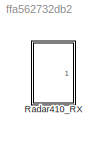
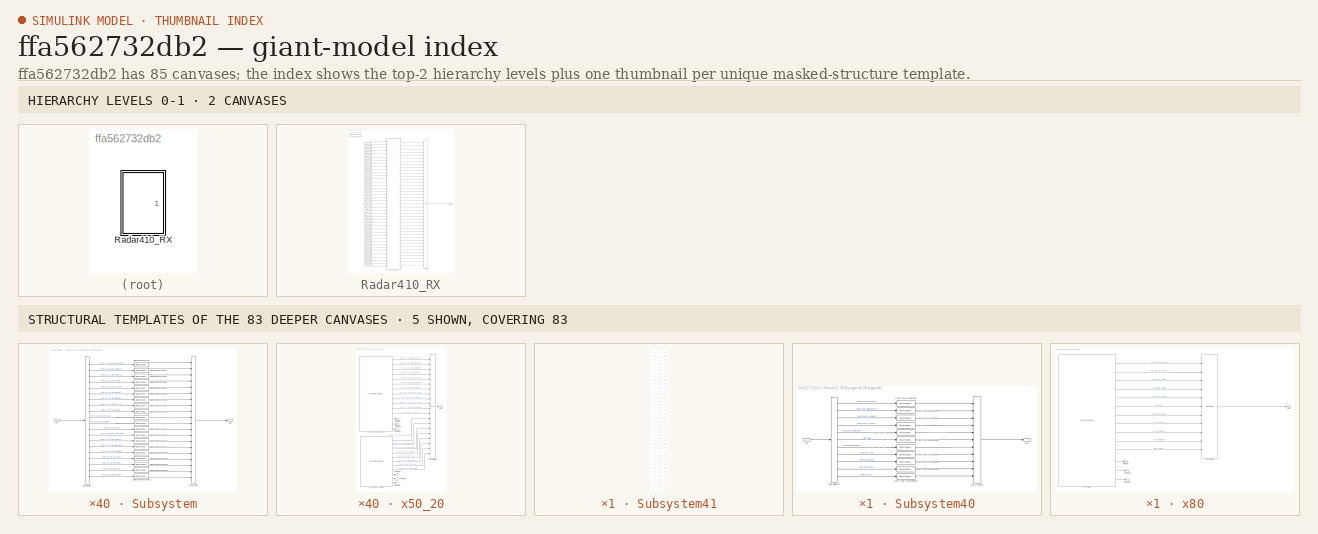
[diagram: thumbnail index - top-2 hierarchy levels (2 canvases) + 5 structural-template representatives of the remaining 83 canvases]
MODEL slx_ffa562732db2
KIND model
CONFIG AbsTol = auto
CONFIG EnableMultiTasking = off
CONFIG FixedStep = auto
CONFIG MaxStep = auto
CONFIG MinStep = auto
CONFIG PostLoadFcn = if any(exist('dsrtsu_mdlpostloadfcn', 'file') ~= 0), dsrtsu_mdlpostloadfcn('Execute', bdroot); end
CONFIG RelTol = 1e-3
CONFIG SampleTimeConstraint = Unconstrained
CONFIG Solver = VariableStepAuto
CONFIG SolverName = VariableStepAuto
CONFIG StartTime = 0.0
CONFIG StopTime = 10.0
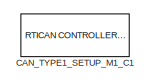
[diagram: Radar410_RX - part 1/3, top left region]
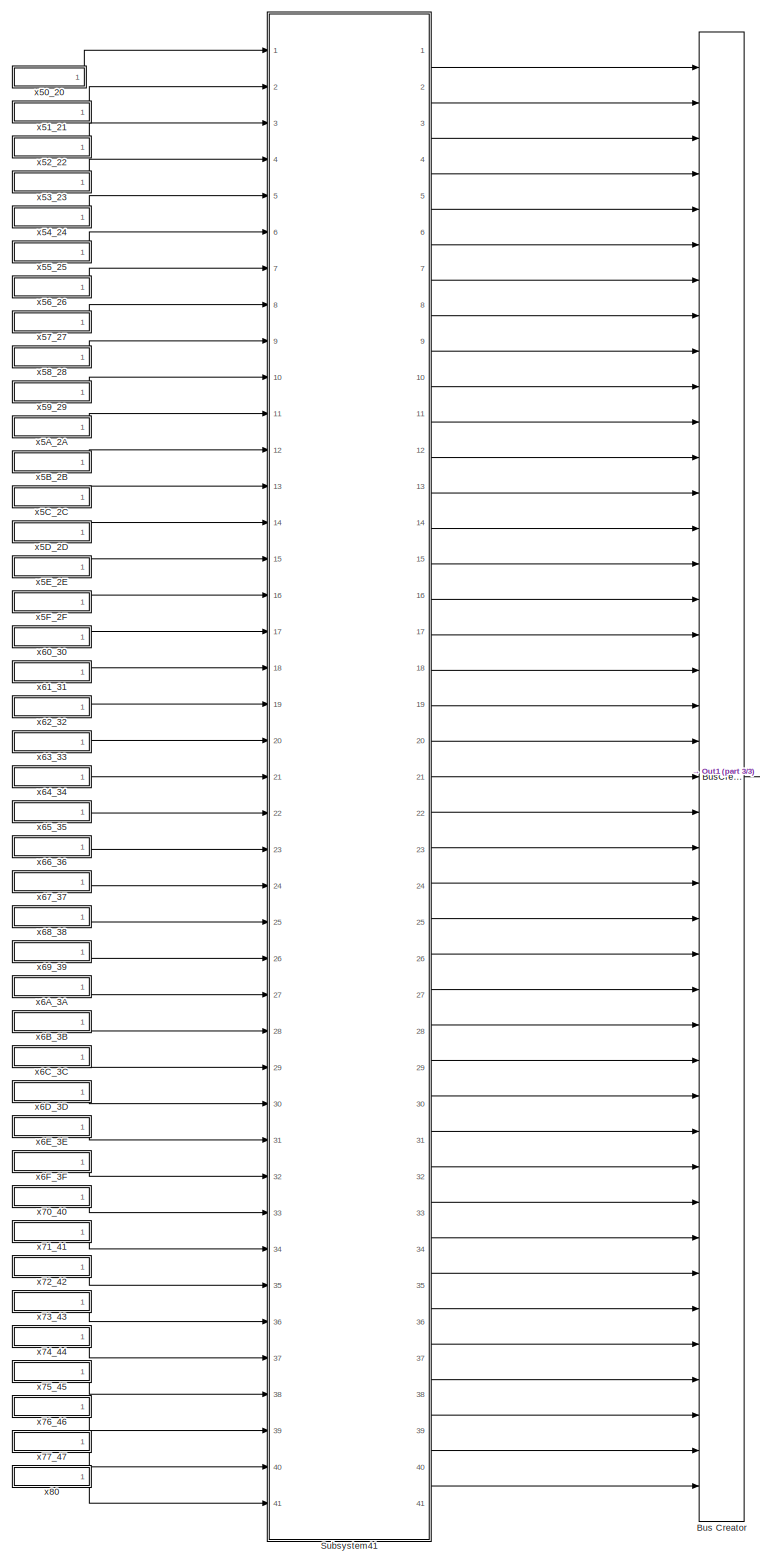
[diagram: Radar410_RX - part 2/3, center side, full height]
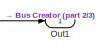
[diagram: Radar410_RX - part 3/3, middle right region]
BLOCK [SubSystem] Radar410_RX
  Ports = [0, 1]
  RequestExecContextInheritance = off
BLOCK [BusCreator] Radar410_RX/Bus Creator
  DisplayOption = bar
  InheritFromInputs = off
  Inputs = 41
  NonVirtualBus = on
  OutDataTypeStr = Bus: Radar410_Info_ST
  Ports = [41, 1]
BLOCK [Reference] Radar410_RX/CAN_TYPE1_SETUP_M1_C1  REF=rtican/RTICAN
CONTROLLER SETUP 
  AttributesFormatString = Group Id: RTICAN1\n
  Ports = []
  SourceBlock = rtican/RTICAN\nCONTROLLER SETUP
  SourceProductName = dSPACE RTI CAN Blockset
  SourceType = RTI
BLOCK [Outport] Radar410_RX/Out1
  IconDisplay = Port number
  OutDataTypeStr = Bus: Radar410_Info_ST
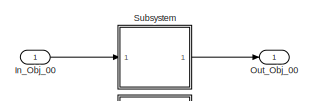
[diagram: Radar410_RX/Subsystem41 - part 1/7, full width, top band]
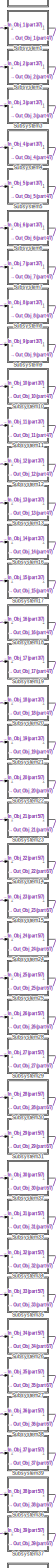
[diagram: Radar410_RX/Subsystem41 - part 2/7, center side, full height]
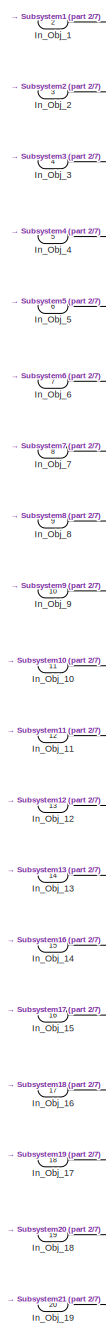
[diagram: Radar410_RX/Subsystem41 - part 3/7, top left region]
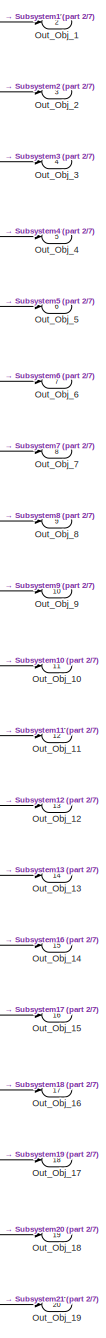
[diagram: Radar410_RX/Subsystem41 - part 4/7, top right region]
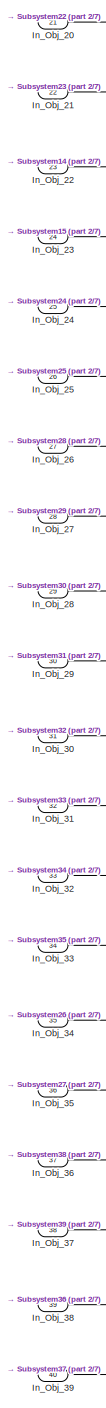
[diagram: Radar410_RX/Subsystem41 - part 5/7, bottom left region]
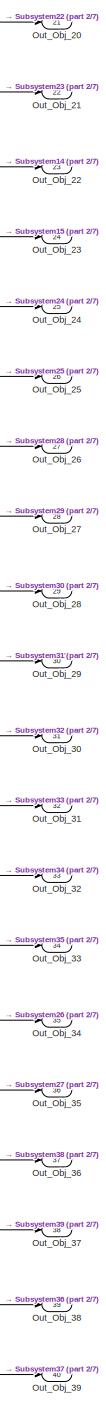
[diagram: Radar410_RX/Subsystem41 - part 6/7, bottom right region]
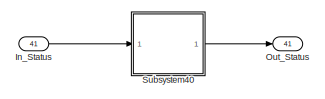
[diagram: Radar410_RX/Subsystem41 - part 7/7, full width, bottom band]
BLOCK [SubSystem] Radar410_RX/Subsystem41
  Ports = [41, 41]
  RequestExecContextInheritance = off
BLOCK [Inport] Radar410_RX/Subsystem41/In_Obj_00
  IconDisplay = Port number
BLOCK [Inport] Radar410_RX/Subsystem41/In_Obj_1
  IconDisplay = Port number
  Port = 2
BLOCK [Inport] Radar410_RX/Subsystem41/In_Obj_10
  IconDisplay = Port number
  Port = 11
BLOCK [Inport] Radar410_RX/Subsystem41/In_Obj_11
  IconDisplay = Port number
  Port = 12
BLOCK [Inport] Radar410_RX/Subsystem41/In_Obj_12
  IconDisplay = Port number
  Port = 13
BLOCK [Inport] Radar410_RX/Subsystem41/In_Obj_13
  IconDisplay = Port number
  Port = 14
BLOCK [Inport] Radar410_RX/Subsystem41/In_Obj_14
  IconDisplay = Port number
  Port = 15
BLOCK [Inport] Radar410_RX/Subsystem41/In_Obj_15
  IconDisplay = Port number
  Port = 16
BLOCK [Inport] Radar410_RX/Subsystem41/In_Obj_16
  IconDisplay = Port number
  Port = 17
BLOCK [Inport] Radar410_RX/Subsystem41/In_Obj_17
  IconDisplay = Port number
  Port = 18
BLOCK [Inport] Radar410_RX/Subsystem41/In_Obj_18
  IconDisplay = Port number
  Port = 19
BLOCK [Inport] Radar410_RX/Subsystem41/In_Obj_19
  IconDisplay = Port number
  Port = 20
BLOCK [Inport] Radar410_RX/Subsystem41/In_Obj_2
  IconDisplay = Port number
  Port = 3
BLOCK [Inport] Radar410_RX/Subsystem41/In_Obj_20
  IconDisplay = Port number
  Port = 21
BLOCK [Inport] Radar410_RX/Subsystem41/In_Obj_21
  IconDisplay = Port number
  Port = 22
BLOCK [Inport] Radar410_RX/Subsystem41/In_Obj_22
  IconDisplay = Port number
  Port = 23
BLOCK [Inport] Radar410_RX/Subsystem41/In_Obj_23
  IconDisplay = Port number
  Port = 24
BLOCK [Inport] Radar410_RX/Subsystem41/In_Obj_24
  IconDisplay = Port number
  Port = 25
BLOCK [Inport] Radar410_RX/Subsystem41/In_Obj_25
  IconDisplay = Port number
  Port = 26
BLOCK [Inport] Radar410_RX/Subsystem41/In_Obj_26
  IconDisplay = Port number
  Port = 27
BLOCK [Inport] Radar410_RX/Subsystem41/In_Obj_27
  IconDisplay = Port number
  Port = 28
BLOCK [Inport] Radar410_RX/Subsystem41/In_Obj_28
  IconDisplay = Port number
  Port = 29
BLOCK [Inport] Radar410_RX/Subsystem41/In_Obj_29
  IconDisplay = Port number
  Port = 30
BLOCK [Inport] Radar410_RX/Subsystem41/In_Obj_3
  IconDisplay = Port number
  Port = 4
BLOCK [Inport] Radar410_RX/Subsystem41/In_Obj_30
  IconDisplay = Port number
  Port = 31
BLOCK [Inport] Radar410_RX/Subsystem41/In_Obj_31
  IconDisplay = Port number
  Port = 32
BLOCK [Inport] Radar410_RX/Subsystem41/In_Obj_32
  IconDisplay = Port number
  Port = 33
BLOCK [Inport] Radar410_RX/Subsystem41/In_Obj_33
  IconDisplay = Port number
  Port = 34
BLOCK [Inport] Radar410_RX/Subsystem41/In_Obj_34
  IconDisplay = Port number
  Port = 35
BLOCK [Inport] Radar410_RX/Subsystem41/In_Obj_35
  IconDisplay = Port number
  Port = 36
BLOCK [Inport] Radar410_RX/Subsystem41/In_Obj_36
  IconDisplay = Port number
  Port = 37
BLOCK [Inport] Radar410_RX/Subsystem41/In_Obj_37
  IconDisplay = Port number
  Port = 38
BLOCK [Inport] Radar410_RX/Subsystem41/In_Obj_38
  IconDisplay = Port number
  Port = 39
BLOCK [Inport] Radar410_RX/Subsystem41/In_Obj_39
  IconDisplay = Port number
  Port = 40
BLOCK [Inport] Radar410_RX/Subsystem41/In_Obj_4
  IconDisplay = Port number
  Port = 5
BLOCK [Inport] Radar410_RX/Subsystem41/In_Obj_5
  IconDisplay = Port number
  Port = 6
BLOCK [Inport] Radar410_RX/Subsystem41/In_Obj_6
  IconDisplay = Port number
  Port = 7
BLOCK [Inport] Radar410_RX/Subsystem41/In_Obj_7
  IconDisplay = Port number
  Port = 8
BLOCK [Inport] Radar410_RX/Subsystem41/In_Obj_8
  IconDisplay = Port number
  Port = 9
BLOCK [Inport] Radar410_RX/Subsystem41/In_Obj_9
  IconDisplay = Port number
  Port = 10
BLOCK [Inport] Radar410_RX/Subsystem41/In_Status
  IconDisplay = Port number
  Port = 41
BLOCK [Outport] Radar410_RX/Subsystem41/Out_Obj_00
  IconDisplay = Port number
  OutDataTypeStr = Bus: Obj_Data
BLOCK [Outport] Radar410_RX/Subsystem41/Out_Obj_1
  IconDisplay = Port number
  OutDataTypeStr = Bus: Obj_Data
  Port = 2
BLOCK [Outport] Radar410_RX/Subsystem41/Out_Obj_10
  IconDisplay = Port number
  OutDataTypeStr = Bus: Obj_Data
  Port = 11
BLOCK [Outport] Radar410_RX/Subsystem41/Out_Obj_11
  IconDisplay = Port number
  OutDataTypeStr = Bus: Obj_Data
  Port = 12
BLOCK [Outport] Radar410_RX/Subsystem41/Out_Obj_12
  IconDisplay = Port number
  OutDataTypeStr = Bus: Obj_Data
  Port = 13
BLOCK [Outport] Radar410_RX/Subsystem41/Out_Obj_13
  IconDisplay = Port number
  OutDataTypeStr = Bus: Obj_Data
  Port = 14
BLOCK [Outport] Radar410_RX/Subsystem41/Out_Obj_14
  IconDisplay = Port number
  OutDataTypeStr = Bus: Obj_Data
  Port = 15
BLOCK [Outport] Radar410_RX/Subsystem41/Out_Obj_15
  IconDisplay = Port number
  OutDataTypeStr = Bus: Obj_Data
  Port = 16
BLOCK [Outport] Radar410_RX/Subsystem41/Out_Obj_16
  IconDisplay = Port number
  OutDataTypeStr = Bus: Obj_Data
  Port = 17
BLOCK [Outport] Radar410_RX/Subsystem41/Out_Obj_17
  IconDisplay = Port number
  OutDataTypeStr = Bus: Obj_Data
  Port = 18
BLOCK [Outport] Radar410_RX/Subsystem41/Out_Obj_18
  IconDisplay = Port number
  OutDataTypeStr = Bus: Obj_Data
  Port = 19
BLOCK [Outport] Radar410_RX/Subsystem41/Out_Obj_19
  IconDisplay = Port number
  OutDataTypeStr = Bus: Obj_Data
  Port = 20
BLOCK [Outport] Radar410_RX/Subsystem41/Out_Obj_2
  IconDisplay = Port number
  OutDataTypeStr = Bus: Obj_Data
  Port = 3
BLOCK [Outport] Radar410_RX/Subsystem41/Out_Obj_20
  IconDisplay = Port number
  OutDataTypeStr = Bus: Obj_Data
  Port = 21
BLOCK [Outport] Radar410_RX/Subsystem41/Out_Obj_21
  IconDisplay = Port number
  OutDataTypeStr = Bus: Obj_Data
  Port = 22
BLOCK [Outport] Radar410_RX/Subsystem41/Out_Obj_22
  IconDisplay = Port number
  OutDataTypeStr = Bus: Obj_Data
  Port = 23
BLOCK [Outport] Radar410_RX/Subsystem41/Out_Obj_23
  IconDisplay = Port number
  OutDataTypeStr = Bus: Obj_Data
  Port = 24
BLOCK [Outport] Radar410_RX/Subsystem41/Out_Obj_24
  IconDisplay = Port number
  OutDataTypeStr = Bus: Obj_Data
  Port = 25
BLOCK [Outport] Radar410_RX/Subsystem41/Out_Obj_25
  IconDisplay = Port number
  OutDataTypeStr = Bus: Obj_Data
  Port = 26
BLOCK [Outport] Radar410_RX/Subsystem41/Out_Obj_26
  IconDisplay = Port number
  OutDataTypeStr = Bus: Obj_Data
  Port = 27
BLOCK [Outport] Radar410_RX/Subsystem41/Out_Obj_27
  IconDisplay = Port number
  OutDataTypeStr = Bus: Obj_Data
  Port = 28
BLOCK [Outport] Radar410_RX/Subsystem41/Out_Obj_28
  IconDisplay = Port number
  OutDataTypeStr = Bus: Obj_Data
  Port = 29
BLOCK [Outport] Radar410_RX/Subsystem41/Out_Obj_29
  IconDisplay = Port number
  OutDataTypeStr = Bus: Obj_Data
  Port = 30
BLOCK [Outport] Radar410_RX/Subsystem41/Out_Obj_3
  IconDisplay = Port number
  OutDataTypeStr = Bus: Obj_Data
  Port = 4
BLOCK [Outport] Radar410_RX/Subsystem41/Out_Obj_30
  IconDisplay = Port number
  OutDataTypeStr = Bus: Obj_Data
  Port = 31
BLOCK [Outport] Radar410_RX/Subsystem41/Out_Obj_31
  IconDisplay = Port number
  OutDataTypeStr = Bus: Obj_Data
  Port = 32
BLOCK [Outport] Radar410_RX/Subsystem41/Out_Obj_32
  IconDisplay = Port number
  OutDataTypeStr = Bus: Obj_Data
  Port = 33
BLOCK [Outport] Radar410_RX/Subsystem41/Out_Obj_33
  IconDisplay = Port number
  OutDataTypeStr = Bus: Obj_Data
  Port = 34
BLOCK [Outport] Radar410_RX/Subsystem41/Out_Obj_34
  IconDisplay = Port number
  OutDataTypeStr = Bus: Obj_Data
  Port = 35
BLOCK [Outport] Radar410_RX/Subsystem41/Out_Obj_35
  IconDisplay = Port number
  OutDataTypeStr = Bus: Obj_Data
  Port = 36
BLOCK [Outport] Radar410_RX/Subsystem41/Out_Obj_36
  IconDisplay = Port number
  OutDataTypeStr = Bus: Obj_Data
  Port = 37
BLOCK [Outport] Radar410_RX/Subsystem41/Out_Obj_37
  IconDisplay = Port number
  OutDataTypeStr = Bus: Obj_Data
  Port = 38
BLOCK [Outport] Radar410_RX/Subsystem41/Out_Obj_38
  IconDisplay = Port number
  OutDataTypeStr = Bus: Obj_Data
  Port = 39
BLOCK [Outport] Radar410_RX/Subsystem41/Out_Obj_39
  IconDisplay = Port number
  OutDataTypeStr = Bus: Obj_Data
  Port = 40
BLOCK [Outport] Radar410_RX/Subsystem41/Out_Obj_4
  IconDisplay = Port number
  OutDataTypeStr = Bus: Obj_Data
  Port = 5
BLOCK [Outport] Radar410_RX/Subsystem41/Out_Obj_5
  IconDisplay = Port number
  OutDataTypeStr = Bus: Obj_Data
  Port = 6
BLOCK [Outport] Radar410_RX/Subsystem41/Out_Obj_6
  IconDisplay = Port number
  OutDataTypeStr = Bus: Obj_Data
  Port = 7
BLOCK [Outport] Radar410_RX/Subsystem41/Out_Obj_7
  IconDisplay = Port number
  OutDataTypeStr = Bus: Obj_Data
  Port = 8
BLOCK [Outport] Radar410_RX/Subsystem41/Out_Obj_8
  IconDisplay = Port number
  OutDataTypeStr = Bus: Obj_Data
  Port = 9
BLOCK [Outport] Radar410_RX/Subsystem41/Out_Obj_9
  IconDisplay = Port number
  OutDataTypeStr = Bus: Obj_Data
  Port = 10
BLOCK [Outport] Radar410_RX/Subsystem41/Out_Status
  IconDisplay = Port number
  OutDataTypeStr = Bus: Radar_Status
  Port = 41
BLOCK [SubSystem] Radar410_RX/Subsystem41/Subsystem
  Ports = [1, 1]
  RequestExecContextInheritance = off
BLOCK [BusCreator] Radar410_RX/Subsystem41/Subsystem/Bus Creator
  DisplayOption = bar
  InheritFromInputs = off
  Inputs = 20
  NonVirtualBus = on
  OutDataTypeStr = Bus: Obj_Data
  Ports = [20, 1]
BLOCK [BusSelector] Radar410_RX/Subsystem41/Subsystem/Bus Selector
  OutputAsBus = off
  OutputSignals = FRS_P1_00_Msg_CheckSum,FRS_P1_00_Msg_AliveCounter,FRS_P1_00_Obj_ExstProb,FRS_P1_00_Obj_XVelRel_Stdev,FRS_P1_00_Obj_XAccRel,FRS_P1_00_Obj_ObstacleProb,FRS_P1_00_Obj_MotionPattern,FRS_P1_00_Obj_YPos_Stdev,FRS_P1_00_Obj_ValidFlag,FRS_P1_00_Obj_XPos_Stdev,FRS_P1_00_Obj_UpdateFlag,FRS_P1_00_Obj_ID,FRS_P2_00_Msg_CheckSum,FRS_P2_00_Msg_AliveCounter,FRS_P2_00_Obj_MeasFlag,FRS_P2_00_Obj_YVelRel,FRS_P2_00_O...<+67ch>
  Ports = [1, 20]
BLOCK [DataTypeConversion] Radar410_RX/Subsystem41/Subsystem/Data Type Conversion
  OutDataTypeStr = single
  RndMeth = Floor
  SaturateOnIntegerOverflow = off
BLOCK [DataTypeConversion] Radar410_RX/Subsystem41/Subsystem/Data Type Conversion1
  OutDataTypeStr = single
  RndMeth = Floor
  SaturateOnIntegerOverflow = off
BLOCK [DataTypeConversion] Radar410_RX/Subsystem41/Subsystem/Data Type Conversion10
  OutDataTypeStr = single
  RndMeth = Floor
  SaturateOnIntegerOverflow = off
BLOCK [DataTypeConversion] Radar410_RX/Subsystem41/Subsystem/Data Type Conversion11
  OutDataTypeStr = single
  RndMeth = Floor
  SaturateOnIntegerOverflow = off
BLOCK [DataTypeConversion] Radar410_RX/Subsystem41/Subsystem/Data Type Conversion12
  OutDataTypeStr = single
  RndMeth = Floor
  SaturateOnIntegerOverflow = off
BLOCK [DataTypeConversion] Radar410_RX/Subsystem41/Subsystem/Data Type Conversion13
  OutDataTypeStr = single
  RndMeth = Floor
  SaturateOnIntegerOverflow = off
BLOCK [DataTypeConversion] Radar410_RX/Subsystem41/Subsystem/Data Type Conversion14
  OutDataTypeStr = single
  RndMeth = Floor
  SaturateOnIntegerOverflow = off
BLOCK [DataTypeConversion] Radar410_RX/Subsystem41/Subsystem/Data Type Conversion15
  OutDataTypeStr = single
  RndMeth = Floor
  SaturateOnIntegerOverflow = off
BLOCK [DataTypeConversion] Radar410_RX/Subsystem41/Subsystem/Data Type Conversion16
  OutDataTypeStr = single
  RndMeth = Floor
  SaturateOnIntegerOverflow = off
BLOCK [DataTypeConversion] Radar410_RX/Subsystem41/Subsystem/Data Type Conversion17
  OutDataTypeStr = single
  RndMeth = Floor
  SaturateOnIntegerOverflow = off
BLOCK [DataTypeConversion] Radar410_RX/Subsystem41/Subsystem/Data Type Conversion18
  OutDataTypeStr = single
  RndMeth = Floor
  SaturateOnIntegerOverflow = off
BLOCK [DataTypeConversion] Radar410_RX/Subsystem41/Subsystem/Data Type Conversion19
  OutDataTypeStr = single
  RndMeth = Floor
  SaturateOnIntegerOverflow = off
BLOCK [DataTypeConversion] Radar410_RX/Subsystem41/Subsystem/Data Type Conversion2
  OutDataTypeStr = single
  RndMeth = Floor
  SaturateOnIntegerOverflow = off
BLOCK [DataTypeConversion] Radar410_RX/Subsystem41/Subsystem/Data Type Conversion3
  OutDataTypeStr = single
  RndMeth = Floor
  SaturateOnIntegerOverflow = off
BLOCK [DataTypeConversion] Radar410_RX/Subsystem41/Subsystem/Data Type Conversion4
  OutDataTypeStr = single
  RndMeth = Floor
  SaturateOnIntegerOverflow = off
BLOCK [DataTypeConversion] Radar410_RX/Subsystem41/Subsystem/Data Type Conversion5
  OutDataTypeStr = single
  RndMeth = Floor
  SaturateOnIntegerOverflow = off
BLOCK [DataTypeConversion] Radar410_RX/Subsystem41/Subsystem/Data Type Conversion6
  OutDataTypeStr = single
  RndMeth = Floor
  SaturateOnIntegerOverflow = off
BLOCK [DataTypeConversion] Radar410_RX/Subsystem41/Subsystem/Data Type Conversion7
  OutDataTypeStr = single
  RndMeth = Floor
  SaturateOnIntegerOverflow = off
BLOCK [DataTypeConversion] Radar410_RX/Subsystem41/Subsystem/Data Type Conversion8
  OutDataTypeStr = single
  RndMeth = Floor
  SaturateOnIntegerOverflow = off
BLOCK [DataTypeConversion] Radar410_RX/Subsystem41/Subsystem/Data Type Conversion9
  OutDataTypeStr = single
  RndMeth = Floor
  SaturateOnIntegerOverflow = off
BLOCK [Inport] Radar410_RX/Subsystem41/Subsystem/In1
  IconDisplay = Port number
BLOCK [Outport] Radar410_RX/Subsystem41/Subsystem/Out1
  IconDisplay = Port number
  OutDataTypeStr = Bus: Obj_Data
BLOCK [SubSystem] Radar410_RX/Subsystem41/Subsystem1
  Ports = [1, 1]
  RequestExecContextInheritance = off
BLOCK [BusCreator] Radar410_RX/Subsystem41/Subsystem1/Bus Creator
  DisplayOption = bar
  InheritFromInputs = off
  Inputs = 20
  NonVirtualBus = on
  OutDataTypeStr = Bus: Obj_Data
  Ports = [20, 1]
BLOCK [BusSelector] Radar410_RX/Subsystem41/Subsystem1/Bus Selector
  OutputAsBus = off
  OutputSignals = FRS_P1_01_Msg_CheckSum,FRS_P1_01_Msg_AliveCounter,FRS_P1_01_Obj_ExstProb,FRS_P1_01_Obj_XVelRel_Stdev,FRS_P1_01_Obj_XAccRel,FRS_P1_01_Obj_ObstacleProb,FRS_P1_01_Obj_MotionPattern,FRS_P1_01_Obj_YPos_Stdev,FRS_P1_01_Obj_ValidFlag,FRS_P1_01_Obj_XPos_Stdev,FRS_P1_01_Obj_UpdateFlag,FRS_P1_01_Obj_ID,FRS_P2_01_Msg_CheckSum,FRS_P2_01_Msg_AliveCounter,FRS_P2_01_Obj_MeasFlag,FRS_P2_01_Obj_YVelRel,FRS_P2_01_O...<+67ch>
  Ports = [1, 20]
BLOCK [DataTypeConversion] Radar410_RX/Subsystem41/Subsystem1/Data Type Conversion
  OutDataTypeStr = single
  RndMeth = Floor
  SaturateOnIntegerOverflow = off
BLOCK [DataTypeConversion] Radar410_RX/Subsystem41/Subsystem1/Data Type Conversion1
  OutDataTypeStr = single
  RndMeth = Floor
  SaturateOnIntegerOverflow = off
BLOCK [DataTypeConversion] Radar410_RX/Subsystem41/Subsystem1/Data Type Conversion10
  OutDataTypeStr = single
  RndMeth = Floor
  SaturateOnIntegerOverflow = off
BLOCK [DataTypeConversion] Radar410_RX/Subsystem41/Subsystem1/Data Type Conversion11
  OutDataTypeStr = single
  RndMeth = Floor
  SaturateOnIntegerOverflow = off
BLOCK [DataTypeConversion] Radar410_RX/Subsystem41/Subsystem1/Data Type Conversion12
  OutDataTypeStr = single
  RndMeth = Floor
  SaturateOnIntegerOverflow = off
BLOCK [DataTypeConversion] Radar410_RX/Subsystem41/Subsystem1/Data Type Conversion13
  OutDataTypeStr = single
  RndMeth = Floor
  SaturateOnIntegerOverflow = off
BLOCK [DataTypeConversion] Radar410_RX/Subsystem41/Subsystem1/Data Type Conversion14
  OutDataTypeStr = single
  RndMeth = Floor
  SaturateOnIntegerOverflow = off
BLOCK [DataTypeConversion] Radar410_RX/Subsystem41/Subsystem1/Data Type Conversion15
  OutDataTypeStr = single
  RndMeth = Floor
  SaturateOnIntegerOverflow = off
BLOCK [DataTypeConversion] Radar410_RX/Subsystem41/Subsystem1/Data Type Conversion16
  OutDataTypeStr = single
  RndMeth = Floor
  SaturateOnIntegerOverflow = off
BLOCK [DataTypeConversion] Radar410_RX/Subsystem41/Subsystem1/Data Type Conversion17
  OutDataTypeStr = single
  RndMeth = Floor
  SaturateOnIntegerOverflow = off
BLOCK [DataTypeConversion] Radar410_RX/Subsystem41/Subsystem1/Data Type Conversion18
  OutDataTypeStr = single
  RndMeth = Floor
  SaturateOnIntegerOverflow = off
BLOCK [DataTypeConversion] Radar410_RX/Subsystem41/Subsystem1/Data Type Conversion19
  OutDataTypeStr = single
  RndMeth = Floor
  SaturateOnIntegerOverflow = off
BLOCK [DataTypeConversion] Radar410_RX/Subsystem41/Subsystem1/Data Type Conversion2
  OutDataTypeStr = single
  RndMeth = Floor
  SaturateOnIntegerOverflow = off
BLOCK [DataTypeConversion] Radar410_RX/Subsystem41/Subsystem1/Data Type Conversion3
  OutDataTypeStr = single
  RndMeth = Floor
  SaturateOnIntegerOverflow = off
BLOCK [DataTypeConversion] Radar410_RX/Subsystem41/Subsystem1/Data Type Conversion4
  OutDataTypeStr = single
  RndMeth = Floor
  SaturateOnIntegerOverflow = off
BLOCK [DataTypeConversion] Radar410_RX/Subsystem41/Subsystem1/Data Type Conversion5
  OutDataTypeStr = single
  RndMeth = Floor
  SaturateOnIntegerOverflow = off
BLOCK [DataTypeConversion] Radar410_RX/Subsystem41/Subsystem1/Data Type Conversion6
  OutDataTypeStr = single
  RndMeth = Floor
  SaturateOnIntegerOverflow = off
BLOCK [DataTypeConversion] Radar410_RX/Subsystem41/Subsystem1/Data Type Conversion7
  OutDataTypeStr = single
  RndMeth = Floor
  SaturateOnIntegerOverflow = off
BLOCK [DataTypeConversion] Radar410_RX/Subsystem41/Subsystem1/Data Type Conversion8
  OutDataTypeStr = single
  RndMeth = Floor
  SaturateOnIntegerOverflow = off
BLOCK [DataTypeConversion] Radar410_RX/Subsystem41/Subsystem1/Data Type Conversion9
  OutDataTypeStr = single
  RndMeth = Floor
  SaturateOnIntegerOverflow = off
BLOCK [Inport] Radar410_RX/Subsystem41/Subsystem1/In1
  IconDisplay = Port number
BLOCK [Outport] Radar410_RX/Subsystem41/Subsystem1/Out1
  IconDisplay = Port number
  OutDataTypeStr = Bus: Obj_Data
BLOCK [SubSystem] Radar410_RX/Subsystem41/Subsystem10
  Ports = [1, 1]
  RequestExecContextInheritance = off
BLOCK [BusCreator] Radar410_RX/Subsystem41/Subsystem10/Bus Creator
  DisplayOption = bar
  InheritFromInputs = off
  Inputs = 20
  NonVirtualBus = on
  OutDataTypeStr = Bus: Obj_Data
  Ports = [20, 1]
BLOCK [BusSelector] Radar410_RX/Subsystem41/Subsystem10/Bus Selector
  OutputAsBus = off
  OutputSignals = FRS_P1_10_Msg_CheckSum,FRS_P1_10_Msg_AliveCounter,FRS_P1_10_Obj_ExstProb,FRS_P1_10_Obj_XVelRel_Stdev,FRS_P1_10_Obj_XAccRel,FRS_P1_10_Obj_ObstacleProb,FRS_P1_10_Obj_MotionPattern,FRS_P1_10_Obj_YPos_Stdev,FRS_P1_10_Obj_ValidFlag,FRS_P1_10_Obj_XPos_Stdev,FRS_P1_10_Obj_UpdateFlag,FRS_P1_10_Obj_ID,FRS_P2_10_Msg_CheckSum,FRS_P2_10_Msg_AliveCounter,FRS_P2_10_Obj_MeasFlag,FRS_P2_10_Obj_YVelRel,FRS_P2_10_O...<+67ch>
  Ports = [1, 20]
BLOCK [DataTypeConversion] Radar410_RX/Subsystem41/Subsystem10/Data Type Conversion
  OutDataTypeStr = single
  RndMeth = Floor
  SaturateOnIntegerOverflow = off
BLOCK [DataTypeConversion] Radar410_RX/Subsystem41/Subsystem10/Data Type Conversion1
  OutDataTypeStr = single
  RndMeth = Floor
  SaturateOnIntegerOverflow = off
BLOCK [DataTypeConversion] Radar410_RX/Subsystem41/Subsystem10/Data Type Conversion10
  OutDataTypeStr = single
  RndMeth = Floor
  SaturateOnIntegerOverflow = off
BLOCK [DataTypeConversion] Radar410_RX/Subsystem41/Subsystem10/Data Type Conversion11
  OutDataTypeStr = single
  RndMeth = Floor
  SaturateOnIntegerOverflow = off
BLOCK [DataTypeConversion] Radar410_RX/Subsystem41/Subsystem10/Data Type Conversion12
  OutDataTypeStr = single
  RndMeth = Floor
  SaturateOnIntegerOverflow = off
BLOCK [DataTypeConversion] Radar410_RX/Subsystem41/Subsystem10/Data Type Conversion13
  OutDataTypeStr = single
  RndMeth = Floor
  SaturateOnIntegerOverflow = off
BLOCK [DataTypeConversion] Radar410_RX/Subsystem41/Subsystem10/Data Type Conversion14
  OutDataTypeStr = single
  RndMeth = Floor
  SaturateOnIntegerOverflow = off
BLOCK [DataTypeConversion] Radar410_RX/Subsystem41/Subsystem10/Data Type Conversion15
  OutDataTypeStr = single
  RndMeth = Floor
  SaturateOnIntegerOverflow = off
BLOCK [DataTypeConversion] Radar410_RX/Subsystem41/Subsystem10/Data Type Conversion16
  OutDataTypeStr = single
  RndMeth = Floor
  SaturateOnIntegerOverflow = off
BLOCK [DataTypeConversion] Radar410_RX/Subsystem41/Subsystem10/Data Type Conversion17
  OutDataTypeStr = single
  RndMeth = Floor
  SaturateOnIntegerOverflow = off
BLOCK [DataTypeConversion] Radar410_RX/Subsystem41/Subsystem10/Data Type Conversion18
  OutDataTypeStr = single
  RndMeth = Floor
  SaturateOnIntegerOverflow = off
BLOCK [DataTypeConversion] Radar410_RX/Subsystem41/Subsystem10/Data Type Conversion19
  OutDataTypeStr = single
  RndMeth = Floor
  SaturateOnIntegerOverflow = off
BLOCK [DataTypeConversion] Radar410_RX/Subsystem41/Subsystem10/Data Type Conversion2
  OutDataTypeStr = single
  RndMeth = Floor
  SaturateOnIntegerOverflow = off
BLOCK [DataTypeConversion] Radar410_RX/Subsystem41/Subsystem10/Data Type Conversion3
  OutDataTypeStr = single
  RndMeth = Floor
  SaturateOnIntegerOverflow = off
BLOCK [DataTypeConversion] Radar410_RX/Subsystem41/Subsystem10/Data Type Conversion4
  OutDataTypeStr = single
  RndMeth = Floor
  SaturateOnIntegerOverflow = off
BLOCK [DataTypeConversion] Radar410_RX/Subsystem41/Subsystem10/Data Type Conversion5
  OutDataTypeStr = single
  RndMeth = Floor
  SaturateOnIntegerOverflow = off
BLOCK [DataTypeConversion] Radar410_RX/Subsystem41/Subsystem10/Data Type Conversion6
  OutDataTypeStr = single
  RndMeth = Floor
  SaturateOnIntegerOverflow = off
BLOCK [DataTypeConversion] Radar410_RX/Subsystem41/Subsystem10/Data Type Conversion7
  OutDataTypeStr = single
  RndMeth = Floor
  SaturateOnIntegerOverflow = off
BLOCK [DataTypeConversion] Radar410_RX/Subsystem41/Subsystem10/Data Type Conversion8
  OutDataTypeStr = single
  RndMeth = Floor
  SaturateOnIntegerOverflow = off
BLOCK [DataTypeConversion] Radar410_RX/Subsystem41/Subsystem10/Data Type Conversion9
  OutDataTypeStr = single
  RndMeth = Floor
  SaturateOnIntegerOverflow = off
BLOCK [Inport] Radar410_RX/Subsystem41/Subsystem10/In1
  IconDisplay = Port number
BLOCK [Outport] Radar410_RX/Subsystem41/Subsystem10/Out1
  IconDisplay = Port number
  OutDataTypeStr = Bus: Obj_Data
BLOCK [SubSystem] Radar410_RX/Subsystem41/Subsystem11
  Ports = [1, 1]
  RequestExecContextInheritance = off
BLOCK [BusCreator] Radar410_RX/Subsystem41/Subsystem11/Bus Creator
  DisplayOption = bar
  InheritFromInputs = off
  Inputs = 20
  NonVirtualBus = on
  OutDataTypeStr = Bus: Obj_Data
  Ports = [20, 1]
BLOCK [BusSelector] Radar410_RX/Subsystem41/Subsystem11/Bus Selector
  OutputAsBus = off
  OutputSignals = FRS_P1_11_Msg_CheckSum,FRS_P1_11_Msg_AliveCounter,FRS_P1_11_Obj_ExstProb,FRS_P1_11_Obj_XVelRel_Stdev,FRS_P1_11_Obj_XAccRel,FRS_P1_11_Obj_ObstacleProb,FRS_P1_11_Obj_MotionPattern,FRS_P1_11_Obj_YPos_Stdev,FRS_P1_11_Obj_ValidFlag,FRS_P1_11_Obj_XPos_Stdev,FRS_P1_11_Obj_UpdateFlag,FRS_P1_11_Obj_ID,FRS_P2_11_Msg_CheckSum,FRS_P2_11_Msg_AliveCounter,FRS_P2_11_Obj_MeasFlag,FRS_P2_11_Obj_YVelRel,FRS_P2_11_O...<+67ch>
  Ports = [1, 20]
BLOCK [DataTypeConversion] Radar410_RX/Subsystem41/Subsystem11/Data Type Conversion
  OutDataTypeStr = single
  RndMeth = Floor
  SaturateOnIntegerOverflow = off
BLOCK [DataTypeConversion] Radar410_RX/Subsystem41/Subsystem11/Data Type Conversion1
  OutDataTypeStr = single
  RndMeth = Floor
  SaturateOnIntegerOverflow = off
BLOCK [DataTypeConversion] Radar410_RX/Subsystem41/Subsystem11/Data Type Conversion10
  OutDataTypeStr = single
  RndMeth = Floor
  SaturateOnIntegerOverflow = off
BLOCK [DataTypeConversion] Radar410_RX/Subsystem41/Subsystem11/Data Type Conversion11
  OutDataTypeStr = single
  RndMeth = Floor
  SaturateOnIntegerOverflow = off
BLOCK [DataTypeConversion] Radar410_RX/Subsystem41/Subsystem11/Data Type Conversion12
  OutDataTypeStr = single
  RndMeth = Floor
  SaturateOnIntegerOverflow = off
BLOCK [DataTypeConversion] Radar410_RX/Subsystem41/Subsystem11/Data Type Conversion13
  OutDataTypeStr = single
  RndMeth = Floor
  SaturateOnIntegerOverflow = off
BLOCK [DataTypeConversion] Radar410_RX/Subsystem41/Subsystem11/Data Type Conversion14
  OutDataTypeStr = single
  RndMeth = Floor
  SaturateOnIntegerOverflow = off
BLOCK [DataTypeConversion] Radar410_RX/Subsystem41/Subsystem11/Data Type Conversion15
  OutDataTypeStr = single
  RndMeth = Floor
  SaturateOnIntegerOverflow = off
BLOCK [DataTypeConversion] Radar410_RX/Subsystem41/Subsystem11/Data Type Conversion16
  OutDataTypeStr = single
  RndMeth = Floor
  SaturateOnIntegerOverflow = off
BLOCK [DataTypeConversion] Radar410_RX/Subsystem41/Subsystem11/Data Type Conversion17
  OutDataTypeStr = single
  RndMeth = Floor
  SaturateOnIntegerOverflow = off
BLOCK [DataTypeConversion] Radar410_RX/Subsystem41/Subsystem11/Data Type Conversion18
  OutDataTypeStr = single
  RndMeth = Floor
  SaturateOnIntegerOverflow = off
BLOCK [DataTypeConversion] Radar410_RX/Subsystem41/Subsystem11/Data Type Conversion19
  OutDataTypeStr = single
  RndMeth = Floor
  SaturateOnIntegerOverflow = off
BLOCK [DataTypeConversion] Radar410_RX/Subsystem41/Subsystem11/Data Type Conversion2
  OutDataTypeStr = single
  RndMeth = Floor
  SaturateOnIntegerOverflow = off
BLOCK [DataTypeConversion] Radar410_RX/Subsystem41/Subsystem11/Data Type Conversion3
  OutDataTypeStr = single
  RndMeth = Floor
  SaturateOnIntegerOverflow = off
BLOCK [DataTypeConversion] Radar410_RX/Subsystem41/Subsystem11/Data Type Conversion4
  OutDataTypeStr = single
  RndMeth = Floor
  SaturateOnIntegerOverflow = off
BLOCK [DataTypeConversion] Radar410_RX/Subsystem41/Subsystem11/Data Type Conversion5
  OutDataTypeStr = single
  RndMeth = Floor
  SaturateOnIntegerOverflow = off
BLOCK [DataTypeConversion] Radar410_RX/Subsystem41/Subsystem11/Data Type Conversion6
  OutDataTypeStr = single
  RndMeth = Floor
  SaturateOnIntegerOverflow = off
BLOCK [DataTypeConversion] Radar410_RX/Subsystem41/Subsystem11/Data Type Conversion7
  OutDataTypeStr = single
  RndMeth = Floor
  SaturateOnIntegerOverflow = off
BLOCK [DataTypeConversion] Radar410_RX/Subsystem41/Subsystem11/Data Type Conversion8
  OutDataTypeStr = single
  RndMeth = Floor
  SaturateOnIntegerOverflow = off
BLOCK [DataTypeConversion] Radar410_RX/Subsystem41/Subsystem11/Data Type Conversion9
  OutDataTypeStr = single
  RndMeth = Floor
  SaturateOnIntegerOverflow = off
BLOCK [Inport] Radar410_RX/Subsystem41/Subsystem11/In1
  IconDisplay = Port number
BLOCK [Outport] Radar410_RX/Subsystem41/Subsystem11/Out1
  IconDisplay = Port number
  OutDataTypeStr = Bus: Obj_Data
BLOCK [SubSystem] Radar410_RX/Subsystem41/Subsystem12
  Ports = [1, 1]
  RequestExecContextInheritance = off
BLOCK [BusCreator] Radar410_RX/Subsystem41/Subsystem12/Bus Creator
  DisplayOption = bar
  InheritFromInputs = off
  Inputs = 20
  NonVirtualBus = on
  OutDataTypeStr = Bus: Obj_Data
  Ports = [20, 1]
BLOCK [BusSelector] Radar410_RX/Subsystem41/Subsystem12/Bus Selector
  OutputAsBus = off
  OutputSignals = FRS_P1_12_Msg_CheckSum,FRS_P1_12_Msg_AliveCounter,FRS_P1_12_Obj_ExstProb,FRS_P1_12_Obj_XVelRel_Stdev,FRS_P1_12_Obj_XAccRel,FRS_P1_12_Obj_ObstacleProb,FRS_P1_12_Obj_MotionPattern,FRS_P1_12_Obj_YPos_Stdev,FRS_P1_12_Obj_ValidFlag,FRS_P1_12_Obj_XPos_Stdev,FRS_P1_12_Obj_UpdateFlag,FRS_P1_12_Obj_ID,FRS_P2_12_Msg_CheckSum,FRS_P2_12_Msg_AliveCounter,FRS_P2_12_Obj_MeasFlag,FRS_P2_12_Obj_YVelRel,FRS_P2_12_O...<+67ch>
  Ports = [1, 20]
BLOCK [DataTypeConversion] Radar410_RX/Subsystem41/Subsystem12/Data Type Conversion
  OutDataTypeStr = single
  RndMeth = Floor
  SaturateOnIntegerOverflow = off
BLOCK [DataTypeConversion] Radar410_RX/Subsystem41/Subsystem12/Data Type Conversion1
  OutDataTypeStr = single
  RndMeth = Floor
  SaturateOnIntegerOverflow = off
BLOCK [DataTypeConversion] Radar410_RX/Subsystem41/Subsystem12/Data Type Conversion10
  OutDataTypeStr = single
  RndMeth = Floor
  SaturateOnIntegerOverflow = off
BLOCK [DataTypeConversion] Radar410_RX/Subsystem41/Subsystem12/Data Type Conversion11
  OutDataTypeStr = single
  RndMeth = Floor
  SaturateOnIntegerOverflow = off
BLOCK [DataTypeConversion] Radar410_RX/Subsystem41/Subsystem12/Data Type Conversion12
  OutDataTypeStr = single
  RndMeth = Floor
  SaturateOnIntegerOverflow = off
BLOCK [DataTypeConversion] Radar410_RX/Subsystem41/Subsystem12/Data Type Conversion13
  OutDataTypeStr = single
  RndMeth = Floor
  SaturateOnIntegerOverflow = off
BLOCK [DataTypeConversion] Radar410_RX/Subsystem41/Subsystem12/Data Type Conversion14
  OutDataTypeStr = single
  RndMeth = Floor
  SaturateOnIntegerOverflow = off
BLOCK [DataTypeConversion] Radar410_RX/Subsystem41/Subsystem12/Data Type Conversion15
  OutDataTypeStr = single
  RndMeth = Floor
  SaturateOnIntegerOverflow = off
BLOCK [DataTypeConversion] Radar410_RX/Subsystem41/Subsystem12/Data Type Conversion16
  OutDataTypeStr = single
  RndMeth = Floor
  SaturateOnIntegerOverflow = off
BLOCK [DataTypeConversion] Radar410_RX/Subsystem41/Subsystem12/Data Type Conversion17
  OutDataTypeStr = single
  RndMeth = Floor
  SaturateOnIntegerOverflow = off
BLOCK [DataTypeConversion] Radar410_RX/Subsystem41/Subsystem12/Data Type Conversion18
  OutDataTypeStr = single
  RndMeth = Floor
  SaturateOnIntegerOverflow = off
BLOCK [DataTypeConversion] Radar410_RX/Subsystem41/Subsystem12/Data Type Conversion19
  OutDataTypeStr = single
  RndMeth = Floor
  SaturateOnIntegerOverflow = off
BLOCK [DataTypeConversion] Radar410_RX/Subsystem41/Subsystem12/Data Type Conversion2
  OutDataTypeStr = single
  RndMeth = Floor
  SaturateOnIntegerOverflow = off
BLOCK [DataTypeConversion] Radar410_RX/Subsystem41/Subsystem12/Data Type Conversion3
  OutDataTypeStr = single
  RndMeth = Floor
  SaturateOnIntegerOverflow = off
BLOCK [DataTypeConversion] Radar410_RX/Subsystem41/Subsystem12/Data Type Conversion4
  OutDataTypeStr = single
  RndMeth = Floor
  SaturateOnIntegerOverflow = off
BLOCK [DataTypeConversion] Radar410_RX/Subsystem41/Subsystem12/Data Type Conversion5
  OutDataTypeStr = single
  RndMeth = Floor
  SaturateOnIntegerOverflow = off
BLOCK [DataTypeConversion] Radar410_RX/Subsystem41/Subsystem12/Data Type Conversion6
  OutDataTypeStr = single
  RndMeth = Floor
  SaturateOnIntegerOverflow = off
BLOCK [DataTypeConversion] Radar410_RX/Subsystem41/Subsystem12/Data Type Conversion7
  OutDataTypeStr = single
  RndMeth = Floor
  SaturateOnIntegerOverflow = off
BLOCK [DataTypeConversion] Radar410_RX/Subsystem41/Subsystem12/Data Type Conversion8
  OutDataTypeStr = single
  RndMeth = Floor
  SaturateOnIntegerOverflow = off
BLOCK [DataTypeConversion] Radar410_RX/Subsystem41/Subsystem12/Data Type Conversion9
  OutDataTypeStr = single
  RndMeth = Floor
  SaturateOnIntegerOverflow = off
BLOCK [Inport] Radar410_RX/Subsystem41/Subsystem12/In1
  IconDisplay = Port number
BLOCK [Outport] Radar410_RX/Subsystem41/Subsystem12/Out1
  IconDisplay = Port number
  OutDataTypeStr = Bus: Obj_Data
BLOCK [SubSystem] Radar410_RX/Subsystem41/Subsystem13
  Ports = [1, 1]
  RequestExecContextInheritance = off
BLOCK [BusCreator] Radar410_RX/Subsystem41/Subsystem13/Bus Creator
  DisplayOption = bar
  InheritFromInputs = off
  Inputs = 20
  NonVirtualBus = on
  OutDataTypeStr = Bus: Obj_Data
  Ports = [20, 1]
BLOCK [BusSelector] Radar410_RX/Subsystem41/Subsystem13/Bus Selector
  OutputAsBus = off
  OutputSignals = FRS_P1_13_Msg_CheckSum,FRS_P1_13_Msg_AliveCounter,FRS_P1_13_Obj_ExstProb,FRS_P1_13_Obj_XVelRel_Stdev,FRS_P1_13_Obj_XAccRel,FRS_P1_13_Obj_ObstacleProb,FRS_P1_13_Obj_MotionPattern,FRS_P1_13_Obj_YPos_Stdev,FRS_P1_13_Obj_ValidFlag,FRS_P1_13_Obj_XPos_Stdev,FRS_P1_13_Obj_UpdateFlag,FRS_P1_13_Obj_ID,FRS_P2_13_Msg_CheckSum,FRS_P2_13_Msg_AliveCounter,FRS_P2_13_Obj_MeasFlag,FRS_P2_13_Obj_YVelRel,FRS_P2_13_O...<+67ch>
  Ports = [1, 20]
BLOCK [DataTypeConversion] Radar410_RX/Subsystem41/Subsystem13/Data Type Conversion
  OutDataTypeStr = single
  RndMeth = Floor
  SaturateOnIntegerOverflow = off
BLOCK [DataTypeConversion] Radar410_RX/Subsystem41/Subsystem13/Data Type Conversion1
  OutDataTypeStr = single
  RndMeth = Floor
  SaturateOnIntegerOverflow = off
BLOCK [DataTypeConversion] Radar410_RX/Subsystem41/Subsystem13/Data Type Conversion10
  OutDataTypeStr = single
  RndMeth = Floor
  SaturateOnIntegerOverflow = off
BLOCK [DataTypeConversion] Radar410_RX/Subsystem41/Subsystem13/Data Type Conversion11
  OutDataTypeStr = single
  RndMeth = Floor
  SaturateOnIntegerOverflow = off
BLOCK [DataTypeConversion] Radar410_RX/Subsystem41/Subsystem13/Data Type Conversion12
  OutDataTypeStr = single
  RndMeth = Floor
  SaturateOnIntegerOverflow = off
BLOCK [DataTypeConversion] Radar410_RX/Subsystem41/Subsystem13/Data Type Conversion13
  OutDataTypeStr = single
  RndMeth = Floor
  SaturateOnIntegerOverflow = off
BLOCK [DataTypeConversion] Radar410_RX/Subsystem41/Subsystem13/Data Type Conversion14
  OutDataTypeStr = single
  RndMeth = Floor
  SaturateOnIntegerOverflow = off
BLOCK [DataTypeConversion] Radar410_RX/Subsystem41/Subsystem13/Data Type Conversion15
  OutDataTypeStr = single
  RndMeth = Floor
  SaturateOnIntegerOverflow = off
BLOCK [DataTypeConversion] Radar410_RX/Subsystem41/Subsystem13/Data Type Conversion16
  OutDataTypeStr = single
  RndMeth = Floor
  SaturateOnIntegerOverflow = off
BLOCK [DataTypeConversion] Radar410_RX/Subsystem41/Subsystem13/Data Type Conversion17
  OutDataTypeStr = single
  RndMeth = Floor
  SaturateOnIntegerOverflow = off
BLOCK [DataTypeConversion] Radar410_RX/Subsystem41/Subsystem13/Data Type Conversion18
  OutDataTypeStr = single
  RndMeth = Floor
  SaturateOnIntegerOverflow = off
BLOCK [DataTypeConversion] Radar410_RX/Subsystem41/Subsystem13/Data Type Conversion19
  OutDataTypeStr = single
  RndMeth = Floor
  SaturateOnIntegerOverflow = off
BLOCK [DataTypeConversion] Radar410_RX/Subsystem41/Subsystem13/Data Type Conversion2
  OutDataTypeStr = single
  RndMeth = Floor
  SaturateOnIntegerOverflow = off
BLOCK [DataTypeConversion] Radar410_RX/Subsystem41/Subsystem13/Data Type Conversion3
  OutDataTypeStr = single
  RndMeth = Floor
  SaturateOnIntegerOverflow = off
BLOCK [DataTypeConversion] Radar410_RX/Subsystem41/Subsystem13/Data Type Conversion4
  OutDataTypeStr = single
  RndMeth = Floor
  SaturateOnIntegerOverflow = off
BLOCK [DataTypeConversion] Radar410_RX/Subsystem41/Subsystem13/Data Type Conversion5
  OutDataTypeStr = single
  RndMeth = Floor
  SaturateOnIntegerOverflow = off
BLOCK [DataTypeConversion] Radar410_RX/Subsystem41/Subsystem13/Data Type Conversion6
  OutDataTypeStr = single
  RndMeth = Floor
  SaturateOnIntegerOverflow = off
BLOCK [DataTypeConversion] Radar410_RX/Subsystem41/Subsystem13/Data Type Conversion7
  OutDataTypeStr = single
  RndMeth = Floor
  SaturateOnIntegerOverflow = off
BLOCK [DataTypeConversion] Radar410_RX/Subsystem41/Subsystem13/Data Type Conversion8
  OutDataTypeStr = single
  RndMeth = Floor
  SaturateOnIntegerOverflow = off
BLOCK [DataTypeConversion] Radar410_RX/Subsystem41/Subsystem13/Data Type Conversion9
  OutDataTypeStr = single
  RndMeth = Floor
  SaturateOnIntegerOverflow = off
BLOCK [Inport] Radar410_RX/Subsystem41/Subsystem13/In1
  IconDisplay = Port number
BLOCK [Outport] Radar410_RX/Subsystem41/Subsystem13/Out1
  IconDisplay = Port number
  OutDataTypeStr = Bus: Obj_Data
BLOCK [SubSystem] Radar410_RX/Subsystem41/Subsystem14
  Ports = [1, 1]
  RequestExecContextInheritance = off
BLOCK [BusCreator] Radar410_RX/Subsystem41/Subsystem14/Bus Creator
  DisplayOption = bar
  InheritFromInputs = off
  Inputs = 20
  NonVirtualBus = on
  OutDataTypeStr = Bus: Obj_Data
  Ports = [20, 1]
BLOCK [BusSelector] Radar410_RX/Subsystem41/Subsystem14/Bus Selector
  OutputAsBus = off
  OutputSignals = FRS_P1_22_Msg_CheckSum,FRS_P1_22_Msg_AliveCounter,FRS_P1_22_Obj_ExstProb,FRS_P1_22_Obj_XVelRel_Stdev,FRS_P1_22_Obj_XAccRel,FRS_P1_22_Obj_ObstacleProb,FRS_P1_22_Obj_MotionPattern,FRS_P1_22_Obj_YPos_Stdev,FRS_P1_22_Obj_ValidFlag,FRS_P1_22_Obj_XPos_Stdev,FRS_P1_22_Obj_UpdateFlag,FRS_P1_22_Obj_ID,FRS_P2_22_Msg_CheckSum,FRS_P2_22_Msg_AliveCounter,FRS_P2_22_Obj_MeasFlag,FRS_P2_22_Obj_YVelRel,FRS_P2_22_O...<+67ch>
  Ports = [1, 20]
BLOCK [DataTypeConversion] Radar410_RX/Subsystem41/Subsystem14/Data Type Conversion
  OutDataTypeStr = single
  RndMeth = Floor
  SaturateOnIntegerOverflow = off
BLOCK [DataTypeConversion] Radar410_RX/Subsystem41/Subsystem14/Data Type Conversion1
  OutDataTypeStr = single
  RndMeth = Floor
  SaturateOnIntegerOverflow = off
BLOCK [DataTypeConversion] Radar410_RX/Subsystem41/Subsystem14/Data Type Conversion10
  OutDataTypeStr = single
  RndMeth = Floor
  SaturateOnIntegerOverflow = off
BLOCK [DataTypeConversion] Radar410_RX/Subsystem41/Subsystem14/Data Type Conversion11
  OutDataTypeStr = single
  RndMeth = Floor
  SaturateOnIntegerOverflow = off
BLOCK [DataTypeConversion] Radar410_RX/Subsystem41/Subsystem14/Data Type Conversion12
  OutDataTypeStr = single
  RndMeth = Floor
  SaturateOnIntegerOverflow = off
BLOCK [DataTypeConversion] Radar410_RX/Subsystem41/Subsystem14/Data Type Conversion13
  OutDataTypeStr = single
  RndMeth = Floor
  SaturateOnIntegerOverflow = off
BLOCK [DataTypeConversion] Radar410_RX/Subsystem41/Subsystem14/Data Type Conversion14
  OutDataTypeStr = single
  RndMeth = Floor
  SaturateOnIntegerOverflow = off
BLOCK [DataTypeConversion] Radar410_RX/Subsystem41/Subsystem14/Data Type Conversion15
  OutDataTypeStr = single
  RndMeth = Floor
  SaturateOnIntegerOverflow = off
BLOCK [DataTypeConversion] Radar410_RX/Subsystem41/Subsystem14/Data Type Conversion16
  OutDataTypeStr = single
  RndMeth = Floor
  SaturateOnIntegerOverflow = off
BLOCK [DataTypeConversion] Radar410_RX/Subsystem41/Subsystem14/Data Type Conversion17
  OutDataTypeStr = single
  RndMeth = Floor
  SaturateOnIntegerOverflow = off
BLOCK [DataTypeConversion] Radar410_RX/Subsystem41/Subsystem14/Data Type Conversion18
  OutDataTypeStr = single
  RndMeth = Floor
  SaturateOnIntegerOverflow = off
BLOCK [DataTypeConversion] Radar410_RX/Subsystem41/Subsystem14/Data Type Conversion19
  OutDataTypeStr = single
  RndMeth = Floor
  SaturateOnIntegerOverflow = off
BLOCK [DataTypeConversion] Radar410_RX/Subsystem41/Subsystem14/Data Type Conversion2
  OutDataTypeStr = single
  RndMeth = Floor
  SaturateOnIntegerOverflow = off
BLOCK [DataTypeConversion] Radar410_RX/Subsystem41/Subsystem14/Data Type Conversion3
  OutDataTypeStr = single
  RndMeth = Floor
  SaturateOnIntegerOverflow = off
BLOCK [DataTypeConversion] Radar410_RX/Subsystem41/Subsystem14/Data Type Conversion4
  OutDataTypeStr = single
  RndMeth = Floor
  SaturateOnIntegerOverflow = off
BLOCK [DataTypeConversion] Radar410_RX/Subsystem41/Subsystem14/Data Type Conversion5
  OutDataTypeStr = single
  RndMeth = Floor
  SaturateOnIntegerOverflow = off
BLOCK [DataTypeConversion] Radar410_RX/Subsystem41/Subsystem14/Data Type Conversion6
  OutDataTypeStr = single
  RndMeth = Floor
  SaturateOnIntegerOverflow = off
BLOCK [DataTypeConversion] Radar410_RX/Subsystem41/Subsystem14/Data Type Conversion7
  OutDataTypeStr = single
  RndMeth = Floor
  SaturateOnIntegerOverflow = off
BLOCK [DataTypeConversion] Radar410_RX/Subsystem41/Subsystem14/Data Type Conversion8
  OutDataTypeStr = single
  RndMeth = Floor
  SaturateOnIntegerOverflow = off
BLOCK [DataTypeConversion] Radar410_RX/Subsystem41/Subsystem14/Data Type Conversion9
  OutDataTypeStr = single
  RndMeth = Floor
  SaturateOnIntegerOverflow = off
BLOCK [Inport] Radar410_RX/Subsystem41/Subsystem14/In1
  IconDisplay = Port number
BLOCK [Outport] Radar410_RX/Subsystem41/Subsystem14/Out1
  IconDisplay = Port number
  OutDataTypeStr = Bus: Obj_Data
BLOCK [SubSystem] Radar410_RX/Subsystem41/Subsystem15
  Ports = [1, 1]
  RequestExecContextInheritance = off
BLOCK [BusCreator] Radar410_RX/Subsystem41/Subsystem15/Bus Creator
  DisplayOption = bar
  InheritFromInputs = off
  Inputs = 20
  NonVirtualBus = on
  OutDataTypeStr = Bus: Obj_Data
  Ports = [20, 1]
BLOCK [BusSelector] Radar410_RX/Subsystem41/Subsystem15/Bus Selector
  OutputAsBus = off
  OutputSignals = FRS_P1_23_Msg_CheckSum,FRS_P1_23_Msg_AliveCounter,FRS_P1_23_Obj_ExstProb,FRS_P1_23_Obj_XVelRel_Stdev,FRS_P1_23_Obj_XAccRel,FRS_P1_23_Obj_ObstacleProb,FRS_P1_23_Obj_MotionPattern,FRS_P1_23_Obj_YPos_Stdev,FRS_P1_23_Obj_ValidFlag,FRS_P1_23_Obj_XPos_Stdev,FRS_P1_23_Obj_UpdateFlag,FRS_P1_23_Obj_ID,FRS_P2_23_Msg_CheckSum,FRS_P2_23_Msg_AliveCounter,FRS_P2_23_Obj_MeasFlag,FRS_P2_23_Obj_YVelRel,FRS_P2_23_O...<+67ch>
  Ports = [1, 20]
BLOCK [DataTypeConversion] Radar410_RX/Subsystem41/Subsystem15/Data Type Conversion
  OutDataTypeStr = single
  RndMeth = Floor
  SaturateOnIntegerOverflow = off
BLOCK [DataTypeConversion] Radar410_RX/Subsystem41/Subsystem15/Data Type Conversion1
  OutDataTypeStr = single
  RndMeth = Floor
  SaturateOnIntegerOverflow = off
BLOCK [DataTypeConversion] Radar410_RX/Subsystem41/Subsystem15/Data Type Conversion10
  OutDataTypeStr = single
  RndMeth = Floor
  SaturateOnIntegerOverflow = off
BLOCK [DataTypeConversion] Radar410_RX/Subsystem41/Subsystem15/Data Type Conversion11
  OutDataTypeStr = single
  RndMeth = Floor
  SaturateOnIntegerOverflow = off
BLOCK [DataTypeConversion] Radar410_RX/Subsystem41/Subsystem15/Data Type Conversion12
  OutDataTypeStr = single
  RndMeth = Floor
  SaturateOnIntegerOverflow = off
BLOCK [DataTypeConversion] Radar410_RX/Subsystem41/Subsystem15/Data Type Conversion13
  OutDataTypeStr = single
  RndMeth = Floor
  SaturateOnIntegerOverflow = off
BLOCK [DataTypeConversion] Radar410_RX/Subsystem41/Subsystem15/Data Type Conversion14
  OutDataTypeStr = single
  RndMeth = Floor
  SaturateOnIntegerOverflow = off
BLOCK [DataTypeConversion] Radar410_RX/Subsystem41/Subsystem15/Data Type Conversion15
  OutDataTypeStr = single
  RndMeth = Floor
  SaturateOnIntegerOverflow = off
BLOCK [DataTypeConversion] Radar410_RX/Subsystem41/Subsystem15/Data Type Conversion16
  OutDataTypeStr = single
  RndMeth = Floor
  SaturateOnIntegerOverflow = off
BLOCK [DataTypeConversion] Radar410_RX/Subsystem41/Subsystem15/Data Type Conversion17
  OutDataTypeStr = single
  RndMeth = Floor
  SaturateOnIntegerOverflow = off
BLOCK [DataTypeConversion] Radar410_RX/Subsystem41/Subsystem15/Data Type Conversion18
  OutDataTypeStr = single
  RndMeth = Floor
  SaturateOnIntegerOverflow = off
BLOCK [DataTypeConversion] Radar410_RX/Subsystem41/Subsystem15/Data Type Conversion19
  OutDataTypeStr = single
  RndMeth = Floor
  SaturateOnIntegerOverflow = off
BLOCK [DataTypeConversion] Radar410_RX/Subsystem41/Subsystem15/Data Type Conversion2
  OutDataTypeStr = single
  RndMeth = Floor
  SaturateOnIntegerOverflow = off
BLOCK [DataTypeConversion] Radar410_RX/Subsystem41/Subsystem15/Data Type Conversion3
  OutDataTypeStr = single
  RndMeth = Floor
  SaturateOnIntegerOverflow = off
BLOCK [DataTypeConversion] Radar410_RX/Subsystem41/Subsystem15/Data Type Conversion4
  OutDataTypeStr = single
  RndMeth = Floor
  SaturateOnIntegerOverflow = off
BLOCK [DataTypeConversion] Radar410_RX/Subsystem41/Subsystem15/Data Type Conversion5
  OutDataTypeStr = single
  RndMeth = Floor
  SaturateOnIntegerOverflow = off
BLOCK [DataTypeConversion] Radar410_RX/Subsystem41/Subsystem15/Data Type Conversion6
  OutDataTypeStr = single
  RndMeth = Floor
  SaturateOnIntegerOverflow = off
BLOCK [DataTypeConversion] Radar410_RX/Subsystem41/Subsystem15/Data Type Conversion7
  OutDataTypeStr = single
  RndMeth = Floor
  SaturateOnIntegerOverflow = off
BLOCK [DataTypeConversion] Radar410_RX/Subsystem41/Subsystem15/Data Type Conversion8
  OutDataTypeStr = single
  RndMeth = Floor
  SaturateOnIntegerOverflow = off
BLOCK [DataTypeConversion] Radar410_RX/Subsystem41/Subsystem15/Data Type Conversion9
  OutDataTypeStr = single
  RndMeth = Floor
  SaturateOnIntegerOverflow = off
BLOCK [Inport] Radar410_RX/Subsystem41/Subsystem15/In1
  IconDisplay = Port number
BLOCK [Outport] Radar410_RX/Subsystem41/Subsystem15/Out1
  IconDisplay = Port number
  OutDataTypeStr = Bus: Obj_Data
BLOCK [SubSystem] Radar410_RX/Subsystem41/Subsystem16
  Ports = [1, 1]
  RequestExecContextInheritance = off
BLOCK [BusCreator] Radar410_RX/Subsystem41/Subsystem16/Bus Creator
  DisplayOption = bar
  InheritFromInputs = off
  Inputs = 20
  NonVirtualBus = on
  OutDataTypeStr = Bus: Obj_Data
  Ports = [20, 1]
BLOCK [BusSelector] Radar410_RX/Subsystem41/Subsystem16/Bus Selector
  OutputAsBus = off
  OutputSignals = FRS_P1_14_Msg_CheckSum,FRS_P1_14_Msg_AliveCounter,FRS_P1_14_Obj_ExstProb,FRS_P1_14_Obj_XVelRel_Stdev,FRS_P1_14_Obj_XAccRel,FRS_P1_14_Obj_ObstacleProb,FRS_P1_14_Obj_MotionPattern,FRS_P1_14_Obj_YPos_Stdev,FRS_P1_14_Obj_ValidFlag,FRS_P1_14_Obj_XPos_Stdev,FRS_P1_14_Obj_UpdateFlag,FRS_P1_14_Obj_ID,FRS_P2_14_Msg_CheckSum,FRS_P2_14_Msg_AliveCounter,FRS_P2_14_Obj_MeasFlag,FRS_P2_14_Obj_YVelRel,FRS_P2_14_O...<+67ch>
  Ports = [1, 20]
BLOCK [DataTypeConversion] Radar410_RX/Subsystem41/Subsystem16/Data Type Conversion
  OutDataTypeStr = single
  RndMeth = Floor
  SaturateOnIntegerOverflow = off
BLOCK [DataTypeConversion] Radar410_RX/Subsystem41/Subsystem16/Data Type Conversion1
  OutDataTypeStr = single
  RndMeth = Floor
  SaturateOnIntegerOverflow = off
BLOCK [DataTypeConversion] Radar410_RX/Subsystem41/Subsystem16/Data Type Conversion10
  OutDataTypeStr = single
  RndMeth = Floor
  SaturateOnIntegerOverflow = off
BLOCK [DataTypeConversion] Radar410_RX/Subsystem41/Subsystem16/Data Type Conversion11
  OutDataTypeStr = single
  RndMeth = Floor
  SaturateOnIntegerOverflow = off
BLOCK [DataTypeConversion] Radar410_RX/Subsystem41/Subsystem16/Data Type Conversion12
  OutDataTypeStr = single
  RndMeth = Floor
  SaturateOnIntegerOverflow = off
BLOCK [DataTypeConversion] Radar410_RX/Subsystem41/Subsystem16/Data Type Conversion13
  OutDataTypeStr = single
  RndMeth = Floor
  SaturateOnIntegerOverflow = off
BLOCK [DataTypeConversion] Radar410_RX/Subsystem41/Subsystem16/Data Type Conversion14
  OutDataTypeStr = single
  RndMeth = Floor
  SaturateOnIntegerOverflow = off
BLOCK [DataTypeConversion] Radar410_RX/Subsystem41/Subsystem16/Data Type Conversion15
  OutDataTypeStr = single
  RndMeth = Floor
  SaturateOnIntegerOverflow = off
BLOCK [DataTypeConversion] Radar410_RX/Subsystem41/Subsystem16/Data Type Conversion16
  OutDataTypeStr = single
  RndMeth = Floor
  SaturateOnIntegerOverflow = off
BLOCK [DataTypeConversion] Radar410_RX/Subsystem41/Subsystem16/Data Type Conversion17
  OutDataTypeStr = single
  RndMeth = Floor
  SaturateOnIntegerOverflow = off
BLOCK [DataTypeConversion] Radar410_RX/Subsystem41/Subsystem16/Data Type Conversion18
  OutDataTypeStr = single
  RndMeth = Floor
  SaturateOnIntegerOverflow = off
BLOCK [DataTypeConversion] Radar410_RX/Subsystem41/Subsystem16/Data Type Conversion19
  OutDataTypeStr = single
  RndMeth = Floor
  SaturateOnIntegerOverflow = off
BLOCK [DataTypeConversion] Radar410_RX/Subsystem41/Subsystem16/Data Type Conversion2
  OutDataTypeStr = single
  RndMeth = Floor
  SaturateOnIntegerOverflow = off
BLOCK [DataTypeConversion] Radar410_RX/Subsystem41/Subsystem16/Data Type Conversion3
  OutDataTypeStr = single
  RndMeth = Floor
  SaturateOnIntegerOverflow = off
BLOCK [DataTypeConversion] Radar410_RX/Subsystem41/Subsystem16/Data Type Conversion4
  OutDataTypeStr = single
  RndMeth = Floor
  SaturateOnIntegerOverflow = off
BLOCK [DataTypeConversion] Radar410_RX/Subsystem41/Subsystem16/Data Type Conversion5
  OutDataTypeStr = single
  RndMeth = Floor
  SaturateOnIntegerOverflow = off
BLOCK [DataTypeConversion] Radar410_RX/Subsystem41/Subsystem16/Data Type Conversion6
  OutDataTypeStr = single
  RndMeth = Floor
  SaturateOnIntegerOverflow = off
BLOCK [DataTypeConversion] Radar410_RX/Subsystem41/Subsystem16/Data Type Conversion7
  OutDataTypeStr = single
  RndMeth = Floor
  SaturateOnIntegerOverflow = off
BLOCK [DataTypeConversion] Radar410_RX/Subsystem41/Subsystem16/Data Type Conversion8
  OutDataTypeStr = single
  RndMeth = Floor
  SaturateOnIntegerOverflow = off
BLOCK [DataTypeConversion] Radar410_RX/Subsystem41/Subsystem16/Data Type Conversion9
  OutDataTypeStr = single
  RndMeth = Floor
  SaturateOnIntegerOverflow = off
BLOCK [Inport] Radar410_RX/Subsystem41/Subsystem16/In1
  IconDisplay = Port number
BLOCK [Outport] Radar410_RX/Subsystem41/Subsystem16/Out1
  IconDisplay = Port number
  OutDataTypeStr = Bus: Obj_Data
BLOCK [SubSystem] Radar410_RX/Subsystem41/Subsystem17
  Ports = [1, 1]
  RequestExecContextInheritance = off
BLOCK [BusCreator] Radar410_RX/Subsystem41/Subsystem17/Bus Creator
  DisplayOption = bar
  InheritFromInputs = off
  Inputs = 20
  NonVirtualBus = on
  OutDataTypeStr = Bus: Obj_Data
  Ports = [20, 1]
BLOCK [BusSelector] Radar410_RX/Subsystem41/Subsystem17/Bus Selector
  OutputAsBus = off
  OutputSignals = FRS_P1_15_Msg_CheckSum,FRS_P1_15_Msg_AliveCounter,FRS_P1_15_Obj_ExstProb,FRS_P1_15_Obj_XVelRel_Stdev,FRS_P1_15_Obj_XAccRel,FRS_P1_15_Obj_ObstacleProb,FRS_P1_15_Obj_MotionPattern,FRS_P1_15_Obj_YPos_Stdev,FRS_P1_15_Obj_ValidFlag,FRS_P1_15_Obj_XPos_Stdev,FRS_P1_15_Obj_UpdateFlag,FRS_P1_15_Obj_ID,FRS_P2_15_Msg_CheckSum,FRS_P2_15_Msg_AliveCounter,FRS_P2_15_Obj_MeasFlag,FRS_P2_15_Obj_YVelRel,FRS_P2_15_O...<+67ch>
  Ports = [1, 20]
BLOCK [DataTypeConversion] Radar410_RX/Subsystem41/Subsystem17/Data Type Conversion
  OutDataTypeStr = single
  RndMeth = Floor
  SaturateOnIntegerOverflow = off
BLOCK [DataTypeConversion] Radar410_RX/Subsystem41/Subsystem17/Data Type Conversion1
  OutDataTypeStr = single
  RndMeth = Floor
  SaturateOnIntegerOverflow = off
BLOCK [DataTypeConversion] Radar410_RX/Subsystem41/Subsystem17/Data Type Conversion10
  OutDataTypeStr = single
  RndMeth = Floor
  SaturateOnIntegerOverflow = off
BLOCK [DataTypeConversion] Radar410_RX/Subsystem41/Subsystem17/Data Type Conversion11
  OutDataTypeStr = single
  RndMeth = Floor
  SaturateOnIntegerOverflow = off
BLOCK [DataTypeConversion] Radar410_RX/Subsystem41/Subsystem17/Data Type Conversion12
  OutDataTypeStr = single
  RndMeth = Floor
  SaturateOnIntegerOverflow = off
BLOCK [DataTypeConversion] Radar410_RX/Subsystem41/Subsystem17/Data Type Conversion13
  OutDataTypeStr = single
  RndMeth = Floor
  SaturateOnIntegerOverflow = off
BLOCK [DataTypeConversion] Radar410_RX/Subsystem41/Subsystem17/Data Type Conversion14
  OutDataTypeStr = single
  RndMeth = Floor
  SaturateOnIntegerOverflow = off
BLOCK [DataTypeConversion] Radar410_RX/Subsystem41/Subsystem17/Data Type Conversion15
  OutDataTypeStr = single
  RndMeth = Floor
  SaturateOnIntegerOverflow = off
BLOCK [DataTypeConversion] Radar410_RX/Subsystem41/Subsystem17/Data Type Conversion16
  OutDataTypeStr = single
  RndMeth = Floor
  SaturateOnIntegerOverflow = off
BLOCK [DataTypeConversion] Radar410_RX/Subsystem41/Subsystem17/Data Type Conversion17
  OutDataTypeStr = single
  RndMeth = Floor
  SaturateOnIntegerOverflow = off
BLOCK [DataTypeConversion] Radar410_RX/Subsystem41/Subsystem17/Data Type Conversion18
  OutDataTypeStr = single
  RndMeth = Floor
  SaturateOnIntegerOverflow = off
BLOCK [DataTypeConversion] Radar410_RX/Subsystem41/Subsystem17/Data Type Conversion19
  OutDataTypeStr = single
  RndMeth = Floor
  SaturateOnIntegerOverflow = off
BLOCK [DataTypeConversion] Radar410_RX/Subsystem41/Subsystem17/Data Type Conversion2
  OutDataTypeStr = single
  RndMeth = Floor
  SaturateOnIntegerOverflow = off
BLOCK [DataTypeConversion] Radar410_RX/Subsystem41/Subsystem17/Data Type Conversion3
  OutDataTypeStr = single
  RndMeth = Floor
  SaturateOnIntegerOverflow = off
BLOCK [DataTypeConversion] Radar410_RX/Subsystem41/Subsystem17/Data Type Conversion4
  OutDataTypeStr = single
  RndMeth = Floor
  SaturateOnIntegerOverflow = off
BLOCK [DataTypeConversion] Radar410_RX/Subsystem41/Subsystem17/Data Type Conversion5
  OutDataTypeStr = single
  RndMeth = Floor
  SaturateOnIntegerOverflow = off
BLOCK [DataTypeConversion] Radar410_RX/Subsystem41/Subsystem17/Data Type Conversion6
  OutDataTypeStr = single
  RndMeth = Floor
  SaturateOnIntegerOverflow = off
BLOCK [DataTypeConversion] Radar410_RX/Subsystem41/Subsystem17/Data Type Conversion7
  OutDataTypeStr = single
  RndMeth = Floor
  SaturateOnIntegerOverflow = off
BLOCK [DataTypeConversion] Radar410_RX/Subsystem41/Subsystem17/Data Type Conversion8
  OutDataTypeStr = single
  RndMeth = Floor
  SaturateOnIntegerOverflow = off
BLOCK [DataTypeConversion] Radar410_RX/Subsystem41/Subsystem17/Data Type Conversion9
  OutDataTypeStr = single
  RndMeth = Floor
  SaturateOnIntegerOverflow = off
BLOCK [Inport] Radar410_RX/Subsystem41/Subsystem17/In1
  IconDisplay = Port number
BLOCK [Outport] Radar410_RX/Subsystem41/Subsystem17/Out1
  IconDisplay = Port number
  OutDataTypeStr = Bus: Obj_Data
BLOCK [SubSystem] Radar410_RX/Subsystem41/Subsystem18
  Ports = [1, 1]
  RequestExecContextInheritance = off
BLOCK [BusCreator] Radar410_RX/Subsystem41/Subsystem18/Bus Creator
  DisplayOption = bar
  InheritFromInputs = off
  Inputs = 20
  NonVirtualBus = on
  OutDataTypeStr = Bus: Obj_Data
  Ports = [20, 1]
BLOCK [BusSelector] Radar410_RX/Subsystem41/Subsystem18/Bus Selector
  OutputAsBus = off
  OutputSignals = FRS_P1_16_Msg_CheckSum,FRS_P1_16_Msg_AliveCounter,FRS_P1_16_Obj_ExstProb,FRS_P1_16_Obj_XVelRel_Stdev,FRS_P1_16_Obj_XAccRel,FRS_P1_16_Obj_ObstacleProb,FRS_P1_16_Obj_MotionPattern,FRS_P1_16_Obj_YPos_Stdev,FRS_P1_16_Obj_ValidFlag,FRS_P1_16_Obj_XPos_Stdev,FRS_P1_16_Obj_UpdateFlag,FRS_P1_16_Obj_ID,FRS_P2_16_Msg_CheckSum,FRS_P2_16_Msg_AliveCounter,FRS_P2_16_Obj_MeasFlag,FRS_P2_16_Obj_YVelRel,FRS_P2_16_O...<+67ch>
  Ports = [1, 20]
BLOCK [DataTypeConversion] Radar410_RX/Subsystem41/Subsystem18/Data Type Conversion
  OutDataTypeStr = single
  RndMeth = Floor
  SaturateOnIntegerOverflow = off
BLOCK [DataTypeConversion] Radar410_RX/Subsystem41/Subsystem18/Data Type Conversion1
  OutDataTypeStr = single
  RndMeth = Floor
  SaturateOnIntegerOverflow = off
BLOCK [DataTypeConversion] Radar410_RX/Subsystem41/Subsystem18/Data Type Conversion10
  OutDataTypeStr = single
  RndMeth = Floor
  SaturateOnIntegerOverflow = off
BLOCK [DataTypeConversion] Radar410_RX/Subsystem41/Subsystem18/Data Type Conversion11
  OutDataTypeStr = single
  RndMeth = Floor
  SaturateOnIntegerOverflow = off
BLOCK [DataTypeConversion] Radar410_RX/Subsystem41/Subsystem18/Data Type Conversion12
  OutDataTypeStr = single
  RndMeth = Floor
  SaturateOnIntegerOverflow = off
BLOCK [DataTypeConversion] Radar410_RX/Subsystem41/Subsystem18/Data Type Conversion13
  OutDataTypeStr = single
  RndMeth = Floor
  SaturateOnIntegerOverflow = off
BLOCK [DataTypeConversion] Radar410_RX/Subsystem41/Subsystem18/Data Type Conversion14
  OutDataTypeStr = single
  RndMeth = Floor
  SaturateOnIntegerOverflow = off
BLOCK [DataTypeConversion] Radar410_RX/Subsystem41/Subsystem18/Data Type Conversion15
  OutDataTypeStr = single
  RndMeth = Floor
  SaturateOnIntegerOverflow = off
BLOCK [DataTypeConversion] Radar410_RX/Subsystem41/Subsystem18/Data Type Conversion16
  OutDataTypeStr = single
  RndMeth = Floor
  SaturateOnIntegerOverflow = off
BLOCK [DataTypeConversion] Radar410_RX/Subsystem41/Subsystem18/Data Type Conversion17
  OutDataTypeStr = single
  RndMeth = Floor
  SaturateOnIntegerOverflow = off
BLOCK [DataTypeConversion] Radar410_RX/Subsystem41/Subsystem18/Data Type Conversion18
  OutDataTypeStr = single
  RndMeth = Floor
  SaturateOnIntegerOverflow = off
BLOCK [DataTypeConversion] Radar410_RX/Subsystem41/Subsystem18/Data Type Conversion19
  OutDataTypeStr = single
  RndMeth = Floor
  SaturateOnIntegerOverflow = off
BLOCK [DataTypeConversion] Radar410_RX/Subsystem41/Subsystem18/Data Type Conversion2
  OutDataTypeStr = single
  RndMeth = Floor
  SaturateOnIntegerOverflow = off
BLOCK [DataTypeConversion] Radar410_RX/Subsystem41/Subsystem18/Data Type Conversion3
  OutDataTypeStr = single
  RndMeth = Floor
  SaturateOnIntegerOverflow = off
BLOCK [DataTypeConversion] Radar410_RX/Subsystem41/Subsystem18/Data Type Conversion4
  OutDataTypeStr = single
  RndMeth = Floor
  SaturateOnIntegerOverflow = off
BLOCK [DataTypeConversion] Radar410_RX/Subsystem41/Subsystem18/Data Type Conversion5
  OutDataTypeStr = single
  RndMeth = Floor
  SaturateOnIntegerOverflow = off
BLOCK [DataTypeConversion] Radar410_RX/Subsystem41/Subsystem18/Data Type Conversion6
  OutDataTypeStr = single
  RndMeth = Floor
  SaturateOnIntegerOverflow = off
BLOCK [DataTypeConversion] Radar410_RX/Subsystem41/Subsystem18/Data Type Conversion7
  OutDataTypeStr = single
  RndMeth = Floor
  SaturateOnIntegerOverflow = off
BLOCK [DataTypeConversion] Radar410_RX/Subsystem41/Subsystem18/Data Type Conversion8
  OutDataTypeStr = single
  RndMeth = Floor
  SaturateOnIntegerOverflow = off
BLOCK [DataTypeConversion] Radar410_RX/Subsystem41/Subsystem18/Data Type Conversion9
  OutDataTypeStr = single
  RndMeth = Floor
  SaturateOnIntegerOverflow = off
BLOCK [Inport] Radar410_RX/Subsystem41/Subsystem18/In1
  IconDisplay = Port number
BLOCK [Outport] Radar410_RX/Subsystem41/Subsystem18/Out1
  IconDisplay = Port number
  OutDataTypeStr = Bus: Obj_Data
BLOCK [SubSystem] Radar410_RX/Subsystem41/Subsystem19
  Ports = [1, 1]
  RequestExecContextInheritance = off
BLOCK [BusCreator] Radar410_RX/Subsystem41/Subsystem19/Bus Creator
  DisplayOption = bar
  InheritFromInputs = off
  Inputs = 20
  NonVirtualBus = on
  OutDataTypeStr = Bus: Obj_Data
  Ports = [20, 1]
BLOCK [BusSelector] Radar410_RX/Subsystem41/Subsystem19/Bus Selector
  OutputAsBus = off
  OutputSignals = FRS_P1_17_Msg_CheckSum,FRS_P1_17_Msg_AliveCounter,FRS_P1_17_Obj_ExstProb,FRS_P1_17_Obj_XVelRel_Stdev,FRS_P1_17_Obj_XAccRel,FRS_P1_17_Obj_ObstacleProb,FRS_P1_17_Obj_MotionPattern,FRS_P1_17_Obj_YPos_Stdev,FRS_P1_17_Obj_ValidFlag,FRS_P1_17_Obj_XPos_Stdev,FRS_P1_17_Obj_UpdateFlag,FRS_P1_17_Obj_ID,FRS_P2_17_Msg_CheckSum,FRS_P2_17_Msg_AliveCounter,FRS_P2_17_Obj_MeasFlag,FRS_P2_17_Obj_YVelRel,FRS_P2_17_O...<+67ch>
  Ports = [1, 20]
BLOCK [DataTypeConversion] Radar410_RX/Subsystem41/Subsystem19/Data Type Conversion
  OutDataTypeStr = single
  RndMeth = Floor
  SaturateOnIntegerOverflow = off
BLOCK [DataTypeConversion] Radar410_RX/Subsystem41/Subsystem19/Data Type Conversion1
  OutDataTypeStr = single
  RndMeth = Floor
  SaturateOnIntegerOverflow = off
BLOCK [DataTypeConversion] Radar410_RX/Subsystem41/Subsystem19/Data Type Conversion10
  OutDataTypeStr = single
  RndMeth = Floor
  SaturateOnIntegerOverflow = off
BLOCK [DataTypeConversion] Radar410_RX/Subsystem41/Subsystem19/Data Type Conversion11
  OutDataTypeStr = single
  RndMeth = Floor
  SaturateOnIntegerOverflow = off
BLOCK [DataTypeConversion] Radar410_RX/Subsystem41/Subsystem19/Data Type Conversion12
  OutDataTypeStr = single
  RndMeth = Floor
  SaturateOnIntegerOverflow = off
BLOCK [DataTypeConversion] Radar410_RX/Subsystem41/Subsystem19/Data Type Conversion13
  OutDataTypeStr = single
  RndMeth = Floor
  SaturateOnIntegerOverflow = off
BLOCK [DataTypeConversion] Radar410_RX/Subsystem41/Subsystem19/Data Type Conversion14
  OutDataTypeStr = single
  RndMeth = Floor
  SaturateOnIntegerOverflow = off
BLOCK [DataTypeConversion] Radar410_RX/Subsystem41/Subsystem19/Data Type Conversion15
  OutDataTypeStr = single
  RndMeth = Floor
  SaturateOnIntegerOverflow = off
BLOCK [DataTypeConversion] Radar410_RX/Subsystem41/Subsystem19/Data Type Conversion16
  OutDataTypeStr = single
  RndMeth = Floor
  SaturateOnIntegerOverflow = off
BLOCK [DataTypeConversion] Radar410_RX/Subsystem41/Subsystem19/Data Type Conversion17
  OutDataTypeStr = single
  RndMeth = Floor
  SaturateOnIntegerOverflow = off
BLOCK [DataTypeConversion] Radar410_RX/Subsystem41/Subsystem19/Data Type Conversion18
  OutDataTypeStr = single
  RndMeth = Floor
  SaturateOnIntegerOverflow = off
BLOCK [DataTypeConversion] Radar410_RX/Subsystem41/Subsystem19/Data Type Conversion19
  OutDataTypeStr = single
  RndMeth = Floor
  SaturateOnIntegerOverflow = off
BLOCK [DataTypeConversion] Radar410_RX/Subsystem41/Subsystem19/Data Type Conversion2
  OutDataTypeStr = single
  RndMeth = Floor
  SaturateOnIntegerOverflow = off
BLOCK [DataTypeConversion] Radar410_RX/Subsystem41/Subsystem19/Data Type Conversion3
  OutDataTypeStr = single
  RndMeth = Floor
  SaturateOnIntegerOverflow = off
BLOCK [DataTypeConversion] Radar410_RX/Subsystem41/Subsystem19/Data Type Conversion4
  OutDataTypeStr = single
  RndMeth = Floor
  SaturateOnIntegerOverflow = off
BLOCK [DataTypeConversion] Radar410_RX/Subsystem41/Subsystem19/Data Type Conversion5
  OutDataTypeStr = single
  RndMeth = Floor
  SaturateOnIntegerOverflow = off
BLOCK [DataTypeConversion] Radar410_RX/Subsystem41/Subsystem19/Data Type Conversion6
  OutDataTypeStr = single
  RndMeth = Floor
  SaturateOnIntegerOverflow = off
BLOCK [DataTypeConversion] Radar410_RX/Subsystem41/Subsystem19/Data Type Conversion7
  OutDataTypeStr = single
  RndMeth = Floor
  SaturateOnIntegerOverflow = off
BLOCK [DataTypeConversion] Radar410_RX/Subsystem41/Subsystem19/Data Type Conversion8
  OutDataTypeStr = single
  RndMeth = Floor
  SaturateOnIntegerOverflow = off
BLOCK [DataTypeConversion] Radar410_RX/Subsystem41/Subsystem19/Data Type Conversion9
  OutDataTypeStr = single
  RndMeth = Floor
  SaturateOnIntegerOverflow = off
BLOCK [Inport] Radar410_RX/Subsystem41/Subsystem19/In1
  IconDisplay = Port number
BLOCK [Outport] Radar410_RX/Subsystem41/Subsystem19/Out1
  IconDisplay = Port number
  OutDataTypeStr = Bus: Obj_Data
BLOCK [SubSystem] Radar410_RX/Subsystem41/Subsystem2
  Ports = [1, 1]
  RequestExecContextInheritance = off
BLOCK [BusCreator] Radar410_RX/Subsystem41/Subsystem2/Bus Creator
  DisplayOption = bar
  InheritFromInputs = off
  Inputs = 20
  NonVirtualBus = on
  OutDataTypeStr = Bus: Obj_Data
  Ports = [20, 1]
BLOCK [BusSelector] Radar410_RX/Subsystem41/Subsystem2/Bus Selector
  OutputAsBus = off
  OutputSignals = FRS_P1_02_Msg_CheckSum,FRS_P1_02_Msg_AliveCounter,FRS_P1_02_Obj_ExstProb,FRS_P1_02_Obj_XVelRel_Stdev,FRS_P1_02_Obj_XAccRel,FRS_P1_02_Obj_ObstacleProb,FRS_P1_02_Obj_MotionPattern,FRS_P1_02_Obj_YPos_Stdev,FRS_P1_02_Obj_ValidFlag,FRS_P1_02_Obj_XPos_Stdev,FRS_P1_02_Obj_UpdateFlag,FRS_P1_02_Obj_ID,FRS_P2_02_Msg_CheckSum,FRS_P2_02_Msg_AliveCounter,FRS_P2_02_Obj_MeasFlag,FRS_P2_02_Obj_YVelRel,FRS_P2_02_O...<+67ch>
  Ports = [1, 20]
BLOCK [DataTypeConversion] Radar410_RX/Subsystem41/Subsystem2/Data Type Conversion
  OutDataTypeStr = single
  RndMeth = Floor
  SaturateOnIntegerOverflow = off
BLOCK [DataTypeConversion] Radar410_RX/Subsystem41/Subsystem2/Data Type Conversion1
  OutDataTypeStr = single
  RndMeth = Floor
  SaturateOnIntegerOverflow = off
BLOCK [DataTypeConversion] Radar410_RX/Subsystem41/Subsystem2/Data Type Conversion10
  OutDataTypeStr = single
  RndMeth = Floor
  SaturateOnIntegerOverflow = off
BLOCK [DataTypeConversion] Radar410_RX/Subsystem41/Subsystem2/Data Type Conversion11
  OutDataTypeStr = single
  RndMeth = Floor
  SaturateOnIntegerOverflow = off
BLOCK [DataTypeConversion] Radar410_RX/Subsystem41/Subsystem2/Data Type Conversion12
  OutDataTypeStr = single
  RndMeth = Floor
  SaturateOnIntegerOverflow = off
BLOCK [DataTypeConversion] Radar410_RX/Subsystem41/Subsystem2/Data Type Conversion13
  OutDataTypeStr = single
  RndMeth = Floor
  SaturateOnIntegerOverflow = off
BLOCK [DataTypeConversion] Radar410_RX/Subsystem41/Subsystem2/Data Type Conversion14
  OutDataTypeStr = single
  RndMeth = Floor
  SaturateOnIntegerOverflow = off
BLOCK [DataTypeConversion] Radar410_RX/Subsystem41/Subsystem2/Data Type Conversion15
  OutDataTypeStr = single
  RndMeth = Floor
  SaturateOnIntegerOverflow = off
BLOCK [DataTypeConversion] Radar410_RX/Subsystem41/Subsystem2/Data Type Conversion16
  OutDataTypeStr = single
  RndMeth = Floor
  SaturateOnIntegerOverflow = off
BLOCK [DataTypeConversion] Radar410_RX/Subsystem41/Subsystem2/Data Type Conversion17
  OutDataTypeStr = single
  RndMeth = Floor
  SaturateOnIntegerOverflow = off
BLOCK [DataTypeConversion] Radar410_RX/Subsystem41/Subsystem2/Data Type Conversion18
  OutDataTypeStr = single
  RndMeth = Floor
  SaturateOnIntegerOverflow = off
BLOCK [DataTypeConversion] Radar410_RX/Subsystem41/Subsystem2/Data Type Conversion19
  OutDataTypeStr = single
  RndMeth = Floor
  SaturateOnIntegerOverflow = off
BLOCK [DataTypeConversion] Radar410_RX/Subsystem41/Subsystem2/Data Type Conversion2
  OutDataTypeStr = single
  RndMeth = Floor
  SaturateOnIntegerOverflow = off
BLOCK [DataTypeConversion] Radar410_RX/Subsystem41/Subsystem2/Data Type Conversion3
  OutDataTypeStr = single
  RndMeth = Floor
  SaturateOnIntegerOverflow = off
BLOCK [DataTypeConversion] Radar410_RX/Subsystem41/Subsystem2/Data Type Conversion4
  OutDataTypeStr = single
  RndMeth = Floor
  SaturateOnIntegerOverflow = off
BLOCK [DataTypeConversion] Radar410_RX/Subsystem41/Subsystem2/Data Type Conversion5
  OutDataTypeStr = single
  RndMeth = Floor
  SaturateOnIntegerOverflow = off
BLOCK [DataTypeConversion] Radar410_RX/Subsystem41/Subsystem2/Data Type Conversion6
  OutDataTypeStr = single
  RndMeth = Floor
  SaturateOnIntegerOverflow = off
BLOCK [DataTypeConversion] Radar410_RX/Subsystem41/Subsystem2/Data Type Conversion7
  OutDataTypeStr = single
  RndMeth = Floor
  SaturateOnIntegerOverflow = off
BLOCK [DataTypeConversion] Radar410_RX/Subsystem41/Subsystem2/Data Type Conversion8
  OutDataTypeStr = single
  RndMeth = Floor
  SaturateOnIntegerOverflow = off
BLOCK [DataTypeConversion] Radar410_RX/Subsystem41/Subsystem2/Data Type Conversion9
  OutDataTypeStr = single
  RndMeth = Floor
  SaturateOnIntegerOverflow = off
BLOCK [Inport] Radar410_RX/Subsystem41/Subsystem2/In1
  IconDisplay = Port number
BLOCK [Outport] Radar410_RX/Subsystem41/Subsystem2/Out1
  IconDisplay = Port number
  OutDataTypeStr = Bus: Obj_Data
BLOCK [SubSystem] Radar410_RX/Subsystem41/Subsystem20
  Ports = [1, 1]
  RequestExecContextInheritance = off
BLOCK [BusCreator] Radar410_RX/Subsystem41/Subsystem20/Bus Creator
  DisplayOption = bar
  InheritFromInputs = off
  Inputs = 20
  NonVirtualBus = on
  OutDataTypeStr = Bus: Obj_Data
  Ports = [20, 1]
BLOCK [BusSelector] Radar410_RX/Subsystem41/Subsystem20/Bus Selector
  OutputAsBus = off
  OutputSignals = FRS_P1_18_Msg_CheckSum,FRS_P1_18_Msg_AliveCounter,FRS_P1_18_Obj_ExstProb,FRS_P1_18_Obj_XVelRel_Stdev,FRS_P1_18_Obj_XAccRel,FRS_P1_18_Obj_ObstacleProb,FRS_P1_18_Obj_MotionPattern,FRS_P1_18_Obj_YPos_Stdev,FRS_P1_18_Obj_ValidFlag,FRS_P1_18_Obj_XPos_Stdev,FRS_P1_18_Obj_UpdateFlag,FRS_P1_18_Obj_ID,FRS_P2_18_Msg_CheckSum,FRS_P2_18_Msg_AliveCounter,FRS_P2_18_Obj_MeasFlag,FRS_P2_18_Obj_YVelRel,FRS_P2_18_O...<+67ch>
  Ports = [1, 20]
BLOCK [DataTypeConversion] Radar410_RX/Subsystem41/Subsystem20/Data Type Conversion
  OutDataTypeStr = single
  RndMeth = Floor
  SaturateOnIntegerOverflow = off
BLOCK [DataTypeConversion] Radar410_RX/Subsystem41/Subsystem20/Data Type Conversion1
  OutDataTypeStr = single
  RndMeth = Floor
  SaturateOnIntegerOverflow = off
BLOCK [DataTypeConversion] Radar410_RX/Subsystem41/Subsystem20/Data Type Conversion10
  OutDataTypeStr = single
  RndMeth = Floor
  SaturateOnIntegerOverflow = off
BLOCK [DataTypeConversion] Radar410_RX/Subsystem41/Subsystem20/Data Type Conversion11
  OutDataTypeStr = single
  RndMeth = Floor
  SaturateOnIntegerOverflow = off
BLOCK [DataTypeConversion] Radar410_RX/Subsystem41/Subsystem20/Data Type Conversion12
  OutDataTypeStr = single
  RndMeth = Floor
  SaturateOnIntegerOverflow = off
BLOCK [DataTypeConversion] Radar410_RX/Subsystem41/Subsystem20/Data Type Conversion13
  OutDataTypeStr = single
  RndMeth = Floor
  SaturateOnIntegerOverflow = off
BLOCK [DataTypeConversion] Radar410_RX/Subsystem41/Subsystem20/Data Type Conversion14
  OutDataTypeStr = single
  RndMeth = Floor
  SaturateOnIntegerOverflow = off
BLOCK [DataTypeConversion] Radar410_RX/Subsystem41/Subsystem20/Data Type Conversion15
  OutDataTypeStr = single
  RndMeth = Floor
  SaturateOnIntegerOverflow = off
BLOCK [DataTypeConversion] Radar410_RX/Subsystem41/Subsystem20/Data Type Conversion16
  OutDataTypeStr = single
  RndMeth = Floor
  SaturateOnIntegerOverflow = off
BLOCK [DataTypeConversion] Radar410_RX/Subsystem41/Subsystem20/Data Type Conversion17
  OutDataTypeStr = single
  RndMeth = Floor
  SaturateOnIntegerOverflow = off
BLOCK [DataTypeConversion] Radar410_RX/Subsystem41/Subsystem20/Data Type Conversion18
  OutDataTypeStr = single
  RndMeth = Floor
  SaturateOnIntegerOverflow = off
BLOCK [DataTypeConversion] Radar410_RX/Subsystem41/Subsystem20/Data Type Conversion19
  OutDataTypeStr = single
  RndMeth = Floor
  SaturateOnIntegerOverflow = off
BLOCK [DataTypeConversion] Radar410_RX/Subsystem41/Subsystem20/Data Type Conversion2
  OutDataTypeStr = single
  RndMeth = Floor
  SaturateOnIntegerOverflow = off
BLOCK [DataTypeConversion] Radar410_RX/Subsystem41/Subsystem20/Data Type Conversion3
  OutDataTypeStr = single
  RndMeth = Floor
  SaturateOnIntegerOverflow = off
BLOCK [DataTypeConversion] Radar410_RX/Subsystem41/Subsystem20/Data Type Conversion4
  OutDataTypeStr = single
  RndMeth = Floor
  SaturateOnIntegerOverflow = off
BLOCK [DataTypeConversion] Radar410_RX/Subsystem41/Subsystem20/Data Type Conversion5
  OutDataTypeStr = single
  RndMeth = Floor
  SaturateOnIntegerOverflow = off
BLOCK [DataTypeConversion] Radar410_RX/Subsystem41/Subsystem20/Data Type Conversion6
  OutDataTypeStr = single
  RndMeth = Floor
  SaturateOnIntegerOverflow = off
BLOCK [DataTypeConversion] Radar410_RX/Subsystem41/Subsystem20/Data Type Conversion7
  OutDataTypeStr = single
  RndMeth = Floor
  SaturateOnIntegerOverflow = off
BLOCK [DataTypeConversion] Radar410_RX/Subsystem41/Subsystem20/Data Type Conversion8
  OutDataTypeStr = single
  RndMeth = Floor
  SaturateOnIntegerOverflow = off
BLOCK [DataTypeConversion] Radar410_RX/Subsystem41/Subsystem20/Data Type Conversion9
  OutDataTypeStr = single
  RndMeth = Floor
  SaturateOnIntegerOverflow = off
BLOCK [Inport] Radar410_RX/Subsystem41/Subsystem20/In1
  IconDisplay = Port number
BLOCK [Outport] Radar410_RX/Subsystem41/Subsystem20/Out1
  IconDisplay = Port number
  OutDataTypeStr = Bus: Obj_Data
BLOCK [SubSystem] Radar410_RX/Subsystem41/Subsystem21
  Ports = [1, 1]
  RequestExecContextInheritance = off
BLOCK [BusCreator] Radar410_RX/Subsystem41/Subsystem21/Bus Creator
  DisplayOption = bar
  InheritFromInputs = off
  Inputs = 20
  NonVirtualBus = on
  OutDataTypeStr = Bus: Obj_Data
  Ports = [20, 1]
BLOCK [BusSelector] Radar410_RX/Subsystem41/Subsystem21/Bus Selector
  OutputAsBus = off
  OutputSignals = FRS_P1_19_Msg_CheckSum,FRS_P1_19_Msg_AliveCounter,FRS_P1_19_Obj_ExstProb,FRS_P1_19_Obj_XVelRel_Stdev,FRS_P1_19_Obj_XAccRel,FRS_P1_19_Obj_ObstacleProb,FRS_P1_19_Obj_MotionPattern,FRS_P1_19_Obj_YPos_Stdev,FRS_P1_19_Obj_ValidFlag,FRS_P1_19_Obj_XPos_Stdev,FRS_P1_19_Obj_UpdateFlag,FRS_P1_19_Obj_ID,FRS_P2_19_Msg_CheckSum,FRS_P2_19_Msg_AliveCounter,FRS_P2_19_Obj_MeasFlag,FRS_P2_19_Obj_YVelRel,FRS_P2_19_O...<+67ch>
  Ports = [1, 20]
BLOCK [DataTypeConversion] Radar410_RX/Subsystem41/Subsystem21/Data Type Conversion
  OutDataTypeStr = single
  RndMeth = Floor
  SaturateOnIntegerOverflow = off
BLOCK [DataTypeConversion] Radar410_RX/Subsystem41/Subsystem21/Data Type Conversion1
  OutDataTypeStr = single
  RndMeth = Floor
  SaturateOnIntegerOverflow = off
BLOCK [DataTypeConversion] Radar410_RX/Subsystem41/Subsystem21/Data Type Conversion10
  OutDataTypeStr = single
  RndMeth = Floor
  SaturateOnIntegerOverflow = off
BLOCK [DataTypeConversion] Radar410_RX/Subsystem41/Subsystem21/Data Type Conversion11
  OutDataTypeStr = single
  RndMeth = Floor
  SaturateOnIntegerOverflow = off
BLOCK [DataTypeConversion] Radar410_RX/Subsystem41/Subsystem21/Data Type Conversion12
  OutDataTypeStr = single
  RndMeth = Floor
  SaturateOnIntegerOverflow = off
BLOCK [DataTypeConversion] Radar410_RX/Subsystem41/Subsystem21/Data Type Conversion13
  OutDataTypeStr = single
  RndMeth = Floor
  SaturateOnIntegerOverflow = off
BLOCK [DataTypeConversion] Radar410_RX/Subsystem41/Subsystem21/Data Type Conversion14
  OutDataTypeStr = single
  RndMeth = Floor
  SaturateOnIntegerOverflow = off
BLOCK [DataTypeConversion] Radar410_RX/Subsystem41/Subsystem21/Data Type Conversion15
  OutDataTypeStr = single
  RndMeth = Floor
  SaturateOnIntegerOverflow = off
BLOCK [DataTypeConversion] Radar410_RX/Subsystem41/Subsystem21/Data Type Conversion16
  OutDataTypeStr = single
  RndMeth = Floor
  SaturateOnIntegerOverflow = off
BLOCK [DataTypeConversion] Radar410_RX/Subsystem41/Subsystem21/Data Type Conversion17
  OutDataTypeStr = single
  RndMeth = Floor
  SaturateOnIntegerOverflow = off
BLOCK [DataTypeConversion] Radar410_RX/Subsystem41/Subsystem21/Data Type Conversion18
  OutDataTypeStr = single
  RndMeth = Floor
  SaturateOnIntegerOverflow = off
BLOCK [DataTypeConversion] Radar410_RX/Subsystem41/Subsystem21/Data Type Conversion19
  OutDataTypeStr = single
  RndMeth = Floor
  SaturateOnIntegerOverflow = off
BLOCK [DataTypeConversion] Radar410_RX/Subsystem41/Subsystem21/Data Type Conversion2
  OutDataTypeStr = single
  RndMeth = Floor
  SaturateOnIntegerOverflow = off
BLOCK [DataTypeConversion] Radar410_RX/Subsystem41/Subsystem21/Data Type Conversion3
  OutDataTypeStr = single
  RndMeth = Floor
  SaturateOnIntegerOverflow = off
BLOCK [DataTypeConversion] Radar410_RX/Subsystem41/Subsystem21/Data Type Conversion4
  OutDataTypeStr = single
  RndMeth = Floor
  SaturateOnIntegerOverflow = off
BLOCK [DataTypeConversion] Radar410_RX/Subsystem41/Subsystem21/Data Type Conversion5
  OutDataTypeStr = single
  RndMeth = Floor
  SaturateOnIntegerOverflow = off
BLOCK [DataTypeConversion] Radar410_RX/Subsystem41/Subsystem21/Data Type Conversion6
  OutDataTypeStr = single
  RndMeth = Floor
  SaturateOnIntegerOverflow = off
BLOCK [DataTypeConversion] Radar410_RX/Subsystem41/Subsystem21/Data Type Conversion7
  OutDataTypeStr = single
  RndMeth = Floor
  SaturateOnIntegerOverflow = off
BLOCK [DataTypeConversion] Radar410_RX/Subsystem41/Subsystem21/Data Type Conversion8
  OutDataTypeStr = single
  RndMeth = Floor
  SaturateOnIntegerOverflow = off
BLOCK [DataTypeConversion] Radar410_RX/Subsystem41/Subsystem21/Data Type Conversion9
  OutDataTypeStr = single
  RndMeth = Floor
  SaturateOnIntegerOverflow = off
BLOCK [Inport] Radar410_RX/Subsystem41/Subsystem21/In1
  IconDisplay = Port number
BLOCK [Outport] Radar410_RX/Subsystem41/Subsystem21/Out1
  IconDisplay = Port number
  OutDataTypeStr = Bus: Obj_Data
BLOCK [SubSystem] Radar410_RX/Subsystem41/Subsystem22
  Ports = [1, 1]
  RequestExecContextInheritance = off
BLOCK [BusCreator] Radar410_RX/Subsystem41/Subsystem22/Bus Creator
  DisplayOption = bar
  InheritFromInputs = off
  Inputs = 20
  NonVirtualBus = on
  OutDataTypeStr = Bus: Obj_Data
  Ports = [20, 1]
BLOCK [BusSelector] Radar410_RX/Subsystem41/Subsystem22/Bus Selector
  OutputAsBus = off
  OutputSignals = FRS_P1_20_Msg_CheckSum,FRS_P1_20_Msg_AliveCounter,FRS_P1_20_Obj_ExstProb,FRS_P1_20_Obj_XVelRel_Stdev,FRS_P1_20_Obj_XAccRel,FRS_P1_20_Obj_ObstacleProb,FRS_P1_20_Obj_MotionPattern,FRS_P1_20_Obj_YPos_Stdev,FRS_P1_20_Obj_ValidFlag,FRS_P1_20_Obj_XPos_Stdev,FRS_P1_20_Obj_UpdateFlag,FRS_P1_20_Obj_ID,FRS_P2_20_Msg_CheckSum,FRS_P2_20_Msg_AliveCounter,FRS_P2_20_Obj_MeasFlag,FRS_P2_20_Obj_YVelRel,FRS_P2_20_O...<+67ch>
  Ports = [1, 20]
BLOCK [DataTypeConversion] Radar410_RX/Subsystem41/Subsystem22/Data Type Conversion
  OutDataTypeStr = single
  RndMeth = Floor
  SaturateOnIntegerOverflow = off
BLOCK [DataTypeConversion] Radar410_RX/Subsystem41/Subsystem22/Data Type Conversion1
  OutDataTypeStr = single
  RndMeth = Floor
  SaturateOnIntegerOverflow = off
BLOCK [DataTypeConversion] Radar410_RX/Subsystem41/Subsystem22/Data Type Conversion10
  OutDataTypeStr = single
  RndMeth = Floor
  SaturateOnIntegerOverflow = off
BLOCK [DataTypeConversion] Radar410_RX/Subsystem41/Subsystem22/Data Type Conversion11
  OutDataTypeStr = single
  RndMeth = Floor
  SaturateOnIntegerOverflow = off
BLOCK [DataTypeConversion] Radar410_RX/Subsystem41/Subsystem22/Data Type Conversion12
  OutDataTypeStr = single
  RndMeth = Floor
  SaturateOnIntegerOverflow = off
BLOCK [DataTypeConversion] Radar410_RX/Subsystem41/Subsystem22/Data Type Conversion13
  OutDataTypeStr = single
  RndMeth = Floor
  SaturateOnIntegerOverflow = off
BLOCK [DataTypeConversion] Radar410_RX/Subsystem41/Subsystem22/Data Type Conversion14
  OutDataTypeStr = single
  RndMeth = Floor
  SaturateOnIntegerOverflow = off
BLOCK [DataTypeConversion] Radar410_RX/Subsystem41/Subsystem22/Data Type Conversion15
  OutDataTypeStr = single
  RndMeth = Floor
  SaturateOnIntegerOverflow = off
BLOCK [DataTypeConversion] Radar410_RX/Subsystem41/Subsystem22/Data Type Conversion16
  OutDataTypeStr = single
  RndMeth = Floor
  SaturateOnIntegerOverflow = off
BLOCK [DataTypeConversion] Radar410_RX/Subsystem41/Subsystem22/Data Type Conversion17
  OutDataTypeStr = single
  RndMeth = Floor
  SaturateOnIntegerOverflow = off
BLOCK [DataTypeConversion] Radar410_RX/Subsystem41/Subsystem22/Data Type Conversion18
  OutDataTypeStr = single
  RndMeth = Floor
  SaturateOnIntegerOverflow = off
BLOCK [DataTypeConversion] Radar410_RX/Subsystem41/Subsystem22/Data Type Conversion19
  OutDataTypeStr = single
  RndMeth = Floor
  SaturateOnIntegerOverflow = off
BLOCK [DataTypeConversion] Radar410_RX/Subsystem41/Subsystem22/Data Type Conversion2
  OutDataTypeStr = single
  RndMeth = Floor
  SaturateOnIntegerOverflow = off
BLOCK [DataTypeConversion] Radar410_RX/Subsystem41/Subsystem22/Data Type Conversion3
  OutDataTypeStr = single
  RndMeth = Floor
  SaturateOnIntegerOverflow = off
BLOCK [DataTypeConversion] Radar410_RX/Subsystem41/Subsystem22/Data Type Conversion4
  OutDataTypeStr = single
  RndMeth = Floor
  SaturateOnIntegerOverflow = off
BLOCK [DataTypeConversion] Radar410_RX/Subsystem41/Subsystem22/Data Type Conversion5
  OutDataTypeStr = single
  RndMeth = Floor
  SaturateOnIntegerOverflow = off
BLOCK [DataTypeConversion] Radar410_RX/Subsystem41/Subsystem22/Data Type Conversion6
  OutDataTypeStr = single
  RndMeth = Floor
  SaturateOnIntegerOverflow = off
BLOCK [DataTypeConversion] Radar410_RX/Subsystem41/Subsystem22/Data Type Conversion7
  OutDataTypeStr = single
  RndMeth = Floor
  SaturateOnIntegerOverflow = off
BLOCK [DataTypeConversion] Radar410_RX/Subsystem41/Subsystem22/Data Type Conversion8
  OutDataTypeStr = single
  RndMeth = Floor
  SaturateOnIntegerOverflow = off
BLOCK [DataTypeConversion] Radar410_RX/Subsystem41/Subsystem22/Data Type Conversion9
  OutDataTypeStr = single
  RndMeth = Floor
  SaturateOnIntegerOverflow = off
BLOCK [Inport] Radar410_RX/Subsystem41/Subsystem22/In1
  IconDisplay = Port number
BLOCK [Outport] Radar410_RX/Subsystem41/Subsystem22/Out1
  IconDisplay = Port number
  OutDataTypeStr = Bus: Obj_Data
BLOCK [SubSystem] Radar410_RX/Subsystem41/Subsystem23
  Ports = [1, 1]
  RequestExecContextInheritance = off
BLOCK [BusCreator] Radar410_RX/Subsystem41/Subsystem23/Bus Creator
  DisplayOption = bar
  InheritFromInputs = off
  Inputs = 20
  NonVirtualBus = on
  OutDataTypeStr = Bus: Obj_Data
  Ports = [20, 1]
BLOCK [BusSelector] Radar410_RX/Subsystem41/Subsystem23/Bus Selector
  OutputAsBus = off
  OutputSignals = FRS_P1_21_Msg_CheckSum,FRS_P1_21_Msg_AliveCounter,FRS_P1_21_Obj_ExstProb,FRS_P1_21_Obj_XVelRel_Stdev,FRS_P1_21_Obj_XAccRel,FRS_P1_21_Obj_ObstacleProb,FRS_P1_21_Obj_MotionPattern,FRS_P1_21_Obj_YPos_Stdev,FRS_P1_21_Obj_ValidFlag,FRS_P1_21_Obj_XPos_Stdev,FRS_P1_21_Obj_UpdateFlag,FRS_P1_21_Obj_ID,FRS_P2_21_Msg_CheckSum,FRS_P2_21_Msg_AliveCounter,FRS_P2_21_Obj_MeasFlag,FRS_P2_21_Obj_YVelRel,FRS_P2_21_O...<+67ch>
  Ports = [1, 20]
BLOCK [DataTypeConversion] Radar410_RX/Subsystem41/Subsystem23/Data Type Conversion
  OutDataTypeStr = single
  RndMeth = Floor
  SaturateOnIntegerOverflow = off
BLOCK [DataTypeConversion] Radar410_RX/Subsystem41/Subsystem23/Data Type Conversion1
  OutDataTypeStr = single
  RndMeth = Floor
  SaturateOnIntegerOverflow = off
BLOCK [DataTypeConversion] Radar410_RX/Subsystem41/Subsystem23/Data Type Conversion10
  OutDataTypeStr = single
  RndMeth = Floor
  SaturateOnIntegerOverflow = off
BLOCK [DataTypeConversion] Radar410_RX/Subsystem41/Subsystem23/Data Type Conversion11
  OutDataTypeStr = single
  RndMeth = Floor
  SaturateOnIntegerOverflow = off
BLOCK [DataTypeConversion] Radar410_RX/Subsystem41/Subsystem23/Data Type Conversion12
  OutDataTypeStr = single
  RndMeth = Floor
  SaturateOnIntegerOverflow = off
BLOCK [DataTypeConversion] Radar410_RX/Subsystem41/Subsystem23/Data Type Conversion13
  OutDataTypeStr = single
  RndMeth = Floor
  SaturateOnIntegerOverflow = off
BLOCK [DataTypeConversion] Radar410_RX/Subsystem41/Subsystem23/Data Type Conversion14
  OutDataTypeStr = single
  RndMeth = Floor
  SaturateOnIntegerOverflow = off
BLOCK [DataTypeConversion] Radar410_RX/Subsystem41/Subsystem23/Data Type Conversion15
  OutDataTypeStr = single
  RndMeth = Floor
  SaturateOnIntegerOverflow = off
BLOCK [DataTypeConversion] Radar410_RX/Subsystem41/Subsystem23/Data Type Conversion16
  OutDataTypeStr = single
  RndMeth = Floor
  SaturateOnIntegerOverflow = off
BLOCK [DataTypeConversion] Radar410_RX/Subsystem41/Subsystem23/Data Type Conversion17
  OutDataTypeStr = single
  RndMeth = Floor
  SaturateOnIntegerOverflow = off
BLOCK [DataTypeConversion] Radar410_RX/Subsystem41/Subsystem23/Data Type Conversion18
  OutDataTypeStr = single
  RndMeth = Floor
  SaturateOnIntegerOverflow = off
BLOCK [DataTypeConversion] Radar410_RX/Subsystem41/Subsystem23/Data Type Conversion19
  OutDataTypeStr = single
  RndMeth = Floor
  SaturateOnIntegerOverflow = off
BLOCK [DataTypeConversion] Radar410_RX/Subsystem41/Subsystem23/Data Type Conversion2
  OutDataTypeStr = single
  RndMeth = Floor
  SaturateOnIntegerOverflow = off
BLOCK [DataTypeConversion] Radar410_RX/Subsystem41/Subsystem23/Data Type Conversion3
  OutDataTypeStr = single
  RndMeth = Floor
  SaturateOnIntegerOverflow = off
BLOCK [DataTypeConversion] Radar410_RX/Subsystem41/Subsystem23/Data Type Conversion4
  OutDataTypeStr = single
  RndMeth = Floor
  SaturateOnIntegerOverflow = off
BLOCK [DataTypeConversion] Radar410_RX/Subsystem41/Subsystem23/Data Type Conversion5
  OutDataTypeStr = single
  RndMeth = Floor
  SaturateOnIntegerOverflow = off
BLOCK [DataTypeConversion] Radar410_RX/Subsystem41/Subsystem23/Data Type Conversion6
  OutDataTypeStr = single
  RndMeth = Floor
  SaturateOnIntegerOverflow = off
BLOCK [DataTypeConversion] Radar410_RX/Subsystem41/Subsystem23/Data Type Conversion7
  OutDataTypeStr = single
  RndMeth = Floor
  SaturateOnIntegerOverflow = off
BLOCK [DataTypeConversion] Radar410_RX/Subsystem41/Subsystem23/Data Type Conversion8
  OutDataTypeStr = single
  RndMeth = Floor
  SaturateOnIntegerOverflow = off
BLOCK [DataTypeConversion] Radar410_RX/Subsystem41/Subsystem23/Data Type Conversion9
  OutDataTypeStr = single
  RndMeth = Floor
  SaturateOnIntegerOverflow = off
BLOCK [Inport] Radar410_RX/Subsystem41/Subsystem23/In1
  IconDisplay = Port number
BLOCK [Outport] Radar410_RX/Subsystem41/Subsystem23/Out1
  IconDisplay = Port number
  OutDataTypeStr = Bus: Obj_Data
BLOCK [SubSystem] Radar410_RX/Subsystem41/Subsystem24
  Ports = [1, 1]
  RequestExecContextInheritance = off
BLOCK [BusCreator] Radar410_RX/Subsystem41/Subsystem24/Bus Creator
  DisplayOption = bar
  InheritFromInputs = off
  Inputs = 20
  NonVirtualBus = on
  OutDataTypeStr = Bus: Obj_Data
  Ports = [20, 1]
BLOCK [BusSelector] Radar410_RX/Subsystem41/Subsystem24/Bus Selector
  OutputAsBus = off
  OutputSignals = FRS_P1_24_Msg_CheckSum,FRS_P1_24_Msg_AliveCounter,FRS_P1_24_Obj_ExstProb,FRS_P1_24_Obj_XVelRel_Stdev,FRS_P1_24_Obj_XAccRel,FRS_P1_24_Obj_ObstacleProb,FRS_P1_24_Obj_MotionPattern,FRS_P1_24_Obj_YPos_Stdev,FRS_P1_24_Obj_ValidFlag,FRS_P1_24_Obj_XPos_Stdev,FRS_P1_24_Obj_UpdateFlag,FRS_P1_24_Obj_ID,FRS_P2_24_Msg_CheckSum,FRS_P2_24_Msg_AliveCounter,FRS_P2_24_Obj_MeasFlag,FRS_P2_24_Obj_YVelRel,FRS_P2_24_O...<+67ch>
  Ports = [1, 20]
BLOCK [DataTypeConversion] Radar410_RX/Subsystem41/Subsystem24/Data Type Conversion
  OutDataTypeStr = single
  RndMeth = Floor
  SaturateOnIntegerOverflow = off
BLOCK [DataTypeConversion] Radar410_RX/Subsystem41/Subsystem24/Data Type Conversion1
  OutDataTypeStr = single
  RndMeth = Floor
  SaturateOnIntegerOverflow = off
BLOCK [DataTypeConversion] Radar410_RX/Subsystem41/Subsystem24/Data Type Conversion10
  OutDataTypeStr = single
  RndMeth = Floor
  SaturateOnIntegerOverflow = off
BLOCK [DataTypeConversion] Radar410_RX/Subsystem41/Subsystem24/Data Type Conversion11
  OutDataTypeStr = single
  RndMeth = Floor
  SaturateOnIntegerOverflow = off
BLOCK [DataTypeConversion] Radar410_RX/Subsystem41/Subsystem24/Data Type Conversion12
  OutDataTypeStr = single
  RndMeth = Floor
  SaturateOnIntegerOverflow = off
BLOCK [DataTypeConversion] Radar410_RX/Subsystem41/Subsystem24/Data Type Conversion13
  OutDataTypeStr = single
  RndMeth = Floor
  SaturateOnIntegerOverflow = off
BLOCK [DataTypeConversion] Radar410_RX/Subsystem41/Subsystem24/Data Type Conversion14
  OutDataTypeStr = single
  RndMeth = Floor
  SaturateOnIntegerOverflow = off
BLOCK [DataTypeConversion] Radar410_RX/Subsystem41/Subsystem24/Data Type Conversion15
  OutDataTypeStr = single
  RndMeth = Floor
  SaturateOnIntegerOverflow = off
BLOCK [DataTypeConversion] Radar410_RX/Subsystem41/Subsystem24/Data Type Conversion16
  OutDataTypeStr = single
  RndMeth = Floor
  SaturateOnIntegerOverflow = off
BLOCK [DataTypeConversion] Radar410_RX/Subsystem41/Subsystem24/Data Type Conversion17
  OutDataTypeStr = single
  RndMeth = Floor
  SaturateOnIntegerOverflow = off
BLOCK [DataTypeConversion] Radar410_RX/Subsystem41/Subsystem24/Data Type Conversion18
  OutDataTypeStr = single
  RndMeth = Floor
  SaturateOnIntegerOverflow = off
BLOCK [DataTypeConversion] Radar410_RX/Subsystem41/Subsystem24/Data Type Conversion19
  OutDataTypeStr = single
  RndMeth = Floor
  SaturateOnIntegerOverflow = off
BLOCK [DataTypeConversion] Radar410_RX/Subsystem41/Subsystem24/Data Type Conversion2
  OutDataTypeStr = single
  RndMeth = Floor
  SaturateOnIntegerOverflow = off
BLOCK [DataTypeConversion] Radar410_RX/Subsystem41/Subsystem24/Data Type Conversion3
  OutDataTypeStr = single
  RndMeth = Floor
  SaturateOnIntegerOverflow = off
BLOCK [DataTypeConversion] Radar410_RX/Subsystem41/Subsystem24/Data Type Conversion4
  OutDataTypeStr = single
  RndMeth = Floor
  SaturateOnIntegerOverflow = off
BLOCK [DataTypeConversion] Radar410_RX/Subsystem41/Subsystem24/Data Type Conversion5
  OutDataTypeStr = single
  RndMeth = Floor
  SaturateOnIntegerOverflow = off
BLOCK [DataTypeConversion] Radar410_RX/Subsystem41/Subsystem24/Data Type Conversion6
  OutDataTypeStr = single
  RndMeth = Floor
  SaturateOnIntegerOverflow = off
BLOCK [DataTypeConversion] Radar410_RX/Subsystem41/Subsystem24/Data Type Conversion7
  OutDataTypeStr = single
  RndMeth = Floor
  SaturateOnIntegerOverflow = off
BLOCK [DataTypeConversion] Radar410_RX/Subsystem41/Subsystem24/Data Type Conversion8
  OutDataTypeStr = single
  RndMeth = Floor
  SaturateOnIntegerOverflow = off
BLOCK [DataTypeConversion] Radar410_RX/Subsystem41/Subsystem24/Data Type Conversion9
  OutDataTypeStr = single
  RndMeth = Floor
  SaturateOnIntegerOverflow = off
BLOCK [Inport] Radar410_RX/Subsystem41/Subsystem24/In1
  IconDisplay = Port number
BLOCK [Outport] Radar410_RX/Subsystem41/Subsystem24/Out1
  IconDisplay = Port number
  OutDataTypeStr = Bus: Obj_Data
BLOCK [SubSystem] Radar410_RX/Subsystem41/Subsystem25
  Ports = [1, 1]
  RequestExecContextInheritance = off
BLOCK [BusCreator] Radar410_RX/Subsystem41/Subsystem25/Bus Creator
  DisplayOption = bar
  InheritFromInputs = off
  Inputs = 20
  NonVirtualBus = on
  OutDataTypeStr = Bus: Obj_Data
  Ports = [20, 1]
BLOCK [BusSelector] Radar410_RX/Subsystem41/Subsystem25/Bus Selector
  OutputAsBus = off
  OutputSignals = FRS_P1_25_Msg_CheckSum,FRS_P1_25_Msg_AliveCounter,FRS_P1_25_Obj_ExstProb,FRS_P1_25_Obj_XVelRel_Stdev,FRS_P1_25_Obj_XAccRel,FRS_P1_25_Obj_ObstacleProb,FRS_P1_25_Obj_MotionPattern,FRS_P1_25_Obj_YPos_Stdev,FRS_P1_25_Obj_ValidFlag,FRS_P1_25_Obj_XPos_Stdev,FRS_P1_25_Obj_UpdateFlag,FRS_P1_25_Obj_ID,FRS_P2_25_Msg_CheckSum,FRS_P2_25_Msg_AliveCounter,FRS_P2_25_Obj_MeasFlag,FRS_P2_25_Obj_YVelRel,FRS_P2_25_O...<+67ch>
  Ports = [1, 20]
BLOCK [DataTypeConversion] Radar410_RX/Subsystem41/Subsystem25/Data Type Conversion
  OutDataTypeStr = single
  RndMeth = Floor
  SaturateOnIntegerOverflow = off
BLOCK [DataTypeConversion] Radar410_RX/Subsystem41/Subsystem25/Data Type Conversion1
  OutDataTypeStr = single
  RndMeth = Floor
  SaturateOnIntegerOverflow = off
BLOCK [DataTypeConversion] Radar410_RX/Subsystem41/Subsystem25/Data Type Conversion10
  OutDataTypeStr = single
  RndMeth = Floor
  SaturateOnIntegerOverflow = off
BLOCK [DataTypeConversion] Radar410_RX/Subsystem41/Subsystem25/Data Type Conversion11
  OutDataTypeStr = single
  RndMeth = Floor
  SaturateOnIntegerOverflow = off
BLOCK [DataTypeConversion] Radar410_RX/Subsystem41/Subsystem25/Data Type Conversion12
  OutDataTypeStr = single
  RndMeth = Floor
  SaturateOnIntegerOverflow = off
BLOCK [DataTypeConversion] Radar410_RX/Subsystem41/Subsystem25/Data Type Conversion13
  OutDataTypeStr = single
  RndMeth = Floor
  SaturateOnIntegerOverflow = off
BLOCK [DataTypeConversion] Radar410_RX/Subsystem41/Subsystem25/Data Type Conversion14
  OutDataTypeStr = single
  RndMeth = Floor
  SaturateOnIntegerOverflow = off
BLOCK [DataTypeConversion] Radar410_RX/Subsystem41/Subsystem25/Data Type Conversion15
  OutDataTypeStr = single
  RndMeth = Floor
  SaturateOnIntegerOverflow = off
BLOCK [DataTypeConversion] Radar410_RX/Subsystem41/Subsystem25/Data Type Conversion16
  OutDataTypeStr = single
  RndMeth = Floor
  SaturateOnIntegerOverflow = off
BLOCK [DataTypeConversion] Radar410_RX/Subsystem41/Subsystem25/Data Type Conversion17
  OutDataTypeStr = single
  RndMeth = Floor
  SaturateOnIntegerOverflow = off
BLOCK [DataTypeConversion] Radar410_RX/Subsystem41/Subsystem25/Data Type Conversion18
  OutDataTypeStr = single
  RndMeth = Floor
  SaturateOnIntegerOverflow = off
BLOCK [DataTypeConversion] Radar410_RX/Subsystem41/Subsystem25/Data Type Conversion19
  OutDataTypeStr = single
  RndMeth = Floor
  SaturateOnIntegerOverflow = off
BLOCK [DataTypeConversion] Radar410_RX/Subsystem41/Subsystem25/Data Type Conversion2
  OutDataTypeStr = single
  RndMeth = Floor
  SaturateOnIntegerOverflow = off
BLOCK [DataTypeConversion] Radar410_RX/Subsystem41/Subsystem25/Data Type Conversion3
  OutDataTypeStr = single
  RndMeth = Floor
  SaturateOnIntegerOverflow = off
BLOCK [DataTypeConversion] Radar410_RX/Subsystem41/Subsystem25/Data Type Conversion4
  OutDataTypeStr = single
  RndMeth = Floor
  SaturateOnIntegerOverflow = off
BLOCK [DataTypeConversion] Radar410_RX/Subsystem41/Subsystem25/Data Type Conversion5
  OutDataTypeStr = single
  RndMeth = Floor
  SaturateOnIntegerOverflow = off
BLOCK [DataTypeConversion] Radar410_RX/Subsystem41/Subsystem25/Data Type Conversion6
  OutDataTypeStr = single
  RndMeth = Floor
  SaturateOnIntegerOverflow = off
BLOCK [DataTypeConversion] Radar410_RX/Subsystem41/Subsystem25/Data Type Conversion7
  OutDataTypeStr = single
  RndMeth = Floor
  SaturateOnIntegerOverflow = off
BLOCK [DataTypeConversion] Radar410_RX/Subsystem41/Subsystem25/Data Type Conversion8
  OutDataTypeStr = single
  RndMeth = Floor
  SaturateOnIntegerOverflow = off
BLOCK [DataTypeConversion] Radar410_RX/Subsystem41/Subsystem25/Data Type Conversion9
  OutDataTypeStr = single
  RndMeth = Floor
  SaturateOnIntegerOverflow = off
BLOCK [Inport] Radar410_RX/Subsystem41/Subsystem25/In1
  IconDisplay = Port number
BLOCK [Outport] Radar410_RX/Subsystem41/Subsystem25/Out1
  IconDisplay = Port number
  OutDataTypeStr = Bus: Obj_Data
BLOCK [SubSystem] Radar410_RX/Subsystem41/Subsystem26
  Ports = [1, 1]
  RequestExecContextInheritance = off
BLOCK [BusCreator] Radar410_RX/Subsystem41/Subsystem26/Bus Creator
  DisplayOption = bar
  InheritFromInputs = off
  Inputs = 20
  NonVirtualBus = on
  OutDataTypeStr = Bus: Obj_Data
  Ports = [20, 1]
BLOCK [BusSelector] Radar410_RX/Subsystem41/Subsystem26/Bus Selector
  OutputAsBus = off
  OutputSignals = FRS_P1_34_Msg_CheckSum,FRS_P1_34_Msg_AliveCounter,FRS_P1_34_Obj_ExstProb,FRS_P1_34_Obj_XVelRel_Stdev,FRS_P1_34_Obj_XAccRel,FRS_P1_34_Obj_ObstacleProb,FRS_P1_34_Obj_MotionPattern,FRS_P1_34_Obj_YPos_Stdev,FRS_P1_34_Obj_ValidFlag,FRS_P1_34_Obj_XPos_Stdev,FRS_P1_34_Obj_UpdateFlag,FRS_P1_34_Obj_ID,FRS_P2_34_Msg_CheckSum,FRS_P2_34_Msg_AliveCounter,FRS_P2_34_Obj_MeasFlag,FRS_P2_34_Obj_YVelRel,FRS_P2_34_O...<+67ch>
  Ports = [1, 20]
BLOCK [DataTypeConversion] Radar410_RX/Subsystem41/Subsystem26/Data Type Conversion
  OutDataTypeStr = single
  RndMeth = Floor
  SaturateOnIntegerOverflow = off
BLOCK [DataTypeConversion] Radar410_RX/Subsystem41/Subsystem26/Data Type Conversion1
  OutDataTypeStr = single
  RndMeth = Floor
  SaturateOnIntegerOverflow = off
BLOCK [DataTypeConversion] Radar410_RX/Subsystem41/Subsystem26/Data Type Conversion10
  OutDataTypeStr = single
  RndMeth = Floor
  SaturateOnIntegerOverflow = off
BLOCK [DataTypeConversion] Radar410_RX/Subsystem41/Subsystem26/Data Type Conversion11
  OutDataTypeStr = single
  RndMeth = Floor
  SaturateOnIntegerOverflow = off
BLOCK [DataTypeConversion] Radar410_RX/Subsystem41/Subsystem26/Data Type Conversion12
  OutDataTypeStr = single
  RndMeth = Floor
  SaturateOnIntegerOverflow = off
BLOCK [DataTypeConversion] Radar410_RX/Subsystem41/Subsystem26/Data Type Conversion13
  OutDataTypeStr = single
  RndMeth = Floor
  SaturateOnIntegerOverflow = off
BLOCK [DataTypeConversion] Radar410_RX/Subsystem41/Subsystem26/Data Type Conversion14
  OutDataTypeStr = single
  RndMeth = Floor
  SaturateOnIntegerOverflow = off
BLOCK [DataTypeConversion] Radar410_RX/Subsystem41/Subsystem26/Data Type Conversion15
  OutDataTypeStr = single
  RndMeth = Floor
  SaturateOnIntegerOverflow = off
BLOCK [DataTypeConversion] Radar410_RX/Subsystem41/Subsystem26/Data Type Conversion16
  OutDataTypeStr = single
  RndMeth = Floor
  SaturateOnIntegerOverflow = off
BLOCK [DataTypeConversion] Radar410_RX/Subsystem41/Subsystem26/Data Type Conversion17
  OutDataTypeStr = single
  RndMeth = Floor
  SaturateOnIntegerOverflow = off
BLOCK [DataTypeConversion] Radar410_RX/Subsystem41/Subsystem26/Data Type Conversion18
  OutDataTypeStr = single
  RndMeth = Floor
  SaturateOnIntegerOverflow = off
BLOCK [DataTypeConversion] Radar410_RX/Subsystem41/Subsystem26/Data Type Conversion19
  OutDataTypeStr = single
  RndMeth = Floor
  SaturateOnIntegerOverflow = off
BLOCK [DataTypeConversion] Radar410_RX/Subsystem41/Subsystem26/Data Type Conversion2
  OutDataTypeStr = single
  RndMeth = Floor
  SaturateOnIntegerOverflow = off
BLOCK [DataTypeConversion] Radar410_RX/Subsystem41/Subsystem26/Data Type Conversion3
  OutDataTypeStr = single
  RndMeth = Floor
  SaturateOnIntegerOverflow = off
BLOCK [DataTypeConversion] Radar410_RX/Subsystem41/Subsystem26/Data Type Conversion4
  OutDataTypeStr = single
  RndMeth = Floor
  SaturateOnIntegerOverflow = off
BLOCK [DataTypeConversion] Radar410_RX/Subsystem41/Subsystem26/Data Type Conversion5
  OutDataTypeStr = single
  RndMeth = Floor
  SaturateOnIntegerOverflow = off
BLOCK [DataTypeConversion] Radar410_RX/Subsystem41/Subsystem26/Data Type Conversion6
  OutDataTypeStr = single
  RndMeth = Floor
  SaturateOnIntegerOverflow = off
BLOCK [DataTypeConversion] Radar410_RX/Subsystem41/Subsystem26/Data Type Conversion7
  OutDataTypeStr = single
  RndMeth = Floor
  SaturateOnIntegerOverflow = off
BLOCK [DataTypeConversion] Radar410_RX/Subsystem41/Subsystem26/Data Type Conversion8
  OutDataTypeStr = single
  RndMeth = Floor
  SaturateOnIntegerOverflow = off
BLOCK [DataTypeConversion] Radar410_RX/Subsystem41/Subsystem26/Data Type Conversion9
  OutDataTypeStr = single
  RndMeth = Floor
  SaturateOnIntegerOverflow = off
BLOCK [Inport] Radar410_RX/Subsystem41/Subsystem26/In1
  IconDisplay = Port number
BLOCK [Outport] Radar410_RX/Subsystem41/Subsystem26/Out1
  IconDisplay = Port number
  OutDataTypeStr = Bus: Obj_Data
BLOCK [SubSystem] Radar410_RX/Subsystem41/Subsystem27
  Ports = [1, 1]
  RequestExecContextInheritance = off
BLOCK [BusCreator] Radar410_RX/Subsystem41/Subsystem27/Bus Creator
  DisplayOption = bar
  InheritFromInputs = off
  Inputs = 20
  NonVirtualBus = on
  OutDataTypeStr = Bus: Obj_Data
  Ports = [20, 1]
BLOCK [BusSelector] Radar410_RX/Subsystem41/Subsystem27/Bus Selector
  OutputAsBus = off
  OutputSignals = FRS_P1_35_Msg_CheckSum,FRS_P1_35_Msg_AliveCounter,FRS_P1_35_Obj_ExstProb,FRS_P1_35_Obj_XVelRel_Stdev,FRS_P1_35_Obj_XAccRel,FRS_P1_35_Obj_ObstacleProb,FRS_P1_35_Obj_MotionPattern,FRS_P1_35_Obj_YPos_Stdev,FRS_P1_35_Obj_ValidFlag,FRS_P1_35_Obj_XPos_Stdev,FRS_P1_35_Obj_UpdateFlag,FRS_P1_35_Obj_ID,FRS_P2_35_Msg_CheckSum,FRS_P2_35_Msg_AliveCounter,FRS_P2_35_Obj_MeasFlag,FRS_P2_35_Obj_YVelRel,FRS_P2_35_O...<+67ch>
  Ports = [1, 20]
BLOCK [DataTypeConversion] Radar410_RX/Subsystem41/Subsystem27/Data Type Conversion
  OutDataTypeStr = single
  RndMeth = Floor
  SaturateOnIntegerOverflow = off
BLOCK [DataTypeConversion] Radar410_RX/Subsystem41/Subsystem27/Data Type Conversion1
  OutDataTypeStr = single
  RndMeth = Floor
  SaturateOnIntegerOverflow = off
BLOCK [DataTypeConversion] Radar410_RX/Subsystem41/Subsystem27/Data Type Conversion10
  OutDataTypeStr = single
  RndMeth = Floor
  SaturateOnIntegerOverflow = off
BLOCK [DataTypeConversion] Radar410_RX/Subsystem41/Subsystem27/Data Type Conversion11
  OutDataTypeStr = single
  RndMeth = Floor
  SaturateOnIntegerOverflow = off
BLOCK [DataTypeConversion] Radar410_RX/Subsystem41/Subsystem27/Data Type Conversion12
  OutDataTypeStr = single
  RndMeth = Floor
  SaturateOnIntegerOverflow = off
BLOCK [DataTypeConversion] Radar410_RX/Subsystem41/Subsystem27/Data Type Conversion13
  OutDataTypeStr = single
  RndMeth = Floor
  SaturateOnIntegerOverflow = off
BLOCK [DataTypeConversion] Radar410_RX/Subsystem41/Subsystem27/Data Type Conversion14
  OutDataTypeStr = single
  RndMeth = Floor
  SaturateOnIntegerOverflow = off
BLOCK [DataTypeConversion] Radar410_RX/Subsystem41/Subsystem27/Data Type Conversion15
  OutDataTypeStr = single
  RndMeth = Floor
  SaturateOnIntegerOverflow = off
BLOCK [DataTypeConversion] Radar410_RX/Subsystem41/Subsystem27/Data Type Conversion16
  OutDataTypeStr = single
  RndMeth = Floor
  SaturateOnIntegerOverflow = off
BLOCK [DataTypeConversion] Radar410_RX/Subsystem41/Subsystem27/Data Type Conversion17
  OutDataTypeStr = single
  RndMeth = Floor
  SaturateOnIntegerOverflow = off
BLOCK [DataTypeConversion] Radar410_RX/Subsystem41/Subsystem27/Data Type Conversion18
  OutDataTypeStr = single
  RndMeth = Floor
  SaturateOnIntegerOverflow = off
BLOCK [DataTypeConversion] Radar410_RX/Subsystem41/Subsystem27/Data Type Conversion19
  OutDataTypeStr = single
  RndMeth = Floor
  SaturateOnIntegerOverflow = off
BLOCK [DataTypeConversion] Radar410_RX/Subsystem41/Subsystem27/Data Type Conversion2
  OutDataTypeStr = single
  RndMeth = Floor
  SaturateOnIntegerOverflow = off
BLOCK [DataTypeConversion] Radar410_RX/Subsystem41/Subsystem27/Data Type Conversion3
  OutDataTypeStr = single
  RndMeth = Floor
  SaturateOnIntegerOverflow = off
BLOCK [DataTypeConversion] Radar410_RX/Subsystem41/Subsystem27/Data Type Conversion4
  OutDataTypeStr = single
  RndMeth = Floor
  SaturateOnIntegerOverflow = off
BLOCK [DataTypeConversion] Radar410_RX/Subsystem41/Subsystem27/Data Type Conversion5
  OutDataTypeStr = single
  RndMeth = Floor
  SaturateOnIntegerOverflow = off
BLOCK [DataTypeConversion] Radar410_RX/Subsystem41/Subsystem27/Data Type Conversion6
  OutDataTypeStr = single
  RndMeth = Floor
  SaturateOnIntegerOverflow = off
BLOCK [DataTypeConversion] Radar410_RX/Subsystem41/Subsystem27/Data Type Conversion7
  OutDataTypeStr = single
  RndMeth = Floor
  SaturateOnIntegerOverflow = off
BLOCK [DataTypeConversion] Radar410_RX/Subsystem41/Subsystem27/Data Type Conversion8
  OutDataTypeStr = single
  RndMeth = Floor
  SaturateOnIntegerOverflow = off
BLOCK [DataTypeConversion] Radar410_RX/Subsystem41/Subsystem27/Data Type Conversion9
  OutDataTypeStr = single
  RndMeth = Floor
  SaturateOnIntegerOverflow = off
BLOCK [Inport] Radar410_RX/Subsystem41/Subsystem27/In1
  IconDisplay = Port number
BLOCK [Outport] Radar410_RX/Subsystem41/Subsystem27/Out1
  IconDisplay = Port number
  OutDataTypeStr = Bus: Obj_Data
BLOCK [SubSystem] Radar410_RX/Subsystem41/Subsystem28
  Ports = [1, 1]
  RequestExecContextInheritance = off
BLOCK [BusCreator] Radar410_RX/Subsystem41/Subsystem28/Bus Creator
  DisplayOption = bar
  InheritFromInputs = off
  Inputs = 20
  NonVirtualBus = on
  OutDataTypeStr = Bus: Obj_Data
  Ports = [20, 1]
BLOCK [BusSelector] Radar410_RX/Subsystem41/Subsystem28/Bus Selector
  OutputAsBus = off
  OutputSignals = FRS_P1_26_Msg_CheckSum,FRS_P1_26_Msg_AliveCounter,FRS_P1_26_Obj_ExstProb,FRS_P1_26_Obj_XVelRel_Stdev,FRS_P1_26_Obj_XAccRel,FRS_P1_26_Obj_ObstacleProb,FRS_P1_26_Obj_MotionPattern,FRS_P1_26_Obj_YPos_Stdev,FRS_P1_26_Obj_ValidFlag,FRS_P1_26_Obj_XPos_Stdev,FRS_P1_26_Obj_UpdateFlag,FRS_P1_26_Obj_ID,FRS_P2_26_Msg_CheckSum,FRS_P2_26_Msg_AliveCounter,FRS_P2_26_Obj_MeasFlag,FRS_P2_26_Obj_YVelRel,FRS_P2_26_O...<+67ch>
  Ports = [1, 20]
BLOCK [DataTypeConversion] Radar410_RX/Subsystem41/Subsystem28/Data Type Conversion
  OutDataTypeStr = single
  RndMeth = Floor
  SaturateOnIntegerOverflow = off
BLOCK [DataTypeConversion] Radar410_RX/Subsystem41/Subsystem28/Data Type Conversion1
  OutDataTypeStr = single
  RndMeth = Floor
  SaturateOnIntegerOverflow = off
BLOCK [DataTypeConversion] Radar410_RX/Subsystem41/Subsystem28/Data Type Conversion10
  OutDataTypeStr = single
  RndMeth = Floor
  SaturateOnIntegerOverflow = off
BLOCK [DataTypeConversion] Radar410_RX/Subsystem41/Subsystem28/Data Type Conversion11
  OutDataTypeStr = single
  RndMeth = Floor
  SaturateOnIntegerOverflow = off
BLOCK [DataTypeConversion] Radar410_RX/Subsystem41/Subsystem28/Data Type Conversion12
  OutDataTypeStr = single
  RndMeth = Floor
  SaturateOnIntegerOverflow = off
BLOCK [DataTypeConversion] Radar410_RX/Subsystem41/Subsystem28/Data Type Conversion13
  OutDataTypeStr = single
  RndMeth = Floor
  SaturateOnIntegerOverflow = off
BLOCK [DataTypeConversion] Radar410_RX/Subsystem41/Subsystem28/Data Type Conversion14
  OutDataTypeStr = single
  RndMeth = Floor
  SaturateOnIntegerOverflow = off
BLOCK [DataTypeConversion] Radar410_RX/Subsystem41/Subsystem28/Data Type Conversion15
  OutDataTypeStr = single
  RndMeth = Floor
  SaturateOnIntegerOverflow = off
BLOCK [DataTypeConversion] Radar410_RX/Subsystem41/Subsystem28/Data Type Conversion16
  OutDataTypeStr = single
  RndMeth = Floor
  SaturateOnIntegerOverflow = off
BLOCK [DataTypeConversion] Radar410_RX/Subsystem41/Subsystem28/Data Type Conversion17
  OutDataTypeStr = single
  RndMeth = Floor
  SaturateOnIntegerOverflow = off
BLOCK [DataTypeConversion] Radar410_RX/Subsystem41/Subsystem28/Data Type Conversion18
  OutDataTypeStr = single
  RndMeth = Floor
  SaturateOnIntegerOverflow = off
BLOCK [DataTypeConversion] Radar410_RX/Subsystem41/Subsystem28/Data Type Conversion19
  OutDataTypeStr = single
  RndMeth = Floor
  SaturateOnIntegerOverflow = off
BLOCK [DataTypeConversion] Radar410_RX/Subsystem41/Subsystem28/Data Type Conversion2
  OutDataTypeStr = single
  RndMeth = Floor
  SaturateOnIntegerOverflow = off
BLOCK [DataTypeConversion] Radar410_RX/Subsystem41/Subsystem28/Data Type Conversion3
  OutDataTypeStr = single
  RndMeth = Floor
  SaturateOnIntegerOverflow = off
BLOCK [DataTypeConversion] Radar410_RX/Subsystem41/Subsystem28/Data Type Conversion4
  OutDataTypeStr = single
  RndMeth = Floor
  SaturateOnIntegerOverflow = off
BLOCK [DataTypeConversion] Radar410_RX/Subsystem41/Subsystem28/Data Type Conversion5
  OutDataTypeStr = single
  RndMeth = Floor
  SaturateOnIntegerOverflow = off
BLOCK [DataTypeConversion] Radar410_RX/Subsystem41/Subsystem28/Data Type Conversion6
  OutDataTypeStr = single
  RndMeth = Floor
  SaturateOnIntegerOverflow = off
BLOCK [DataTypeConversion] Radar410_RX/Subsystem41/Subsystem28/Data Type Conversion7
  OutDataTypeStr = single
  RndMeth = Floor
  SaturateOnIntegerOverflow = off
BLOCK [DataTypeConversion] Radar410_RX/Subsystem41/Subsystem28/Data Type Conversion8
  OutDataTypeStr = single
  RndMeth = Floor
  SaturateOnIntegerOverflow = off
BLOCK [DataTypeConversion] Radar410_RX/Subsystem41/Subsystem28/Data Type Conversion9
  OutDataTypeStr = single
  RndMeth = Floor
  SaturateOnIntegerOverflow = off
BLOCK [Inport] Radar410_RX/Subsystem41/Subsystem28/In1
  IconDisplay = Port number
BLOCK [Outport] Radar410_RX/Subsystem41/Subsystem28/Out1
  IconDisplay = Port number
  OutDataTypeStr = Bus: Obj_Data
BLOCK [SubSystem] Radar410_RX/Subsystem41/Subsystem29
  Ports = [1, 1]
  RequestExecContextInheritance = off
BLOCK [BusCreator] Radar410_RX/Subsystem41/Subsystem29/Bus Creator
  DisplayOption = bar
  InheritFromInputs = off
  Inputs = 20
  NonVirtualBus = on
  OutDataTypeStr = Bus: Obj_Data
  Ports = [20, 1]
BLOCK [BusSelector] Radar410_RX/Subsystem41/Subsystem29/Bus Selector
  OutputAsBus = off
  OutputSignals = FRS_P1_27_Msg_CheckSum,FRS_P1_27_Msg_AliveCounter,FRS_P1_27_Obj_ExstProb,FRS_P1_27_Obj_XVelRel_Stdev,FRS_P1_27_Obj_XAccRel,FRS_P1_27_Obj_ObstacleProb,FRS_P1_27_Obj_MotionPattern,FRS_P1_27_Obj_YPos_Stdev,FRS_P1_27_Obj_ValidFlag,FRS_P1_27_Obj_XPos_Stdev,FRS_P1_27_Obj_UpdateFlag,FRS_P1_27_Obj_ID,FRS_P2_27_Msg_CheckSum,FRS_P2_27_Msg_AliveCounter,FRS_P2_27_Obj_MeasFlag,FRS_P2_27_Obj_YVelRel,FRS_P2_27_O...<+67ch>
  Ports = [1, 20]
BLOCK [DataTypeConversion] Radar410_RX/Subsystem41/Subsystem29/Data Type Conversion
  OutDataTypeStr = single
  RndMeth = Floor
  SaturateOnIntegerOverflow = off
BLOCK [DataTypeConversion] Radar410_RX/Subsystem41/Subsystem29/Data Type Conversion1
  OutDataTypeStr = single
  RndMeth = Floor
  SaturateOnIntegerOverflow = off
BLOCK [DataTypeConversion] Radar410_RX/Subsystem41/Subsystem29/Data Type Conversion10
  OutDataTypeStr = single
  RndMeth = Floor
  SaturateOnIntegerOverflow = off
BLOCK [DataTypeConversion] Radar410_RX/Subsystem41/Subsystem29/Data Type Conversion11
  OutDataTypeStr = single
  RndMeth = Floor
  SaturateOnIntegerOverflow = off
BLOCK [DataTypeConversion] Radar410_RX/Subsystem41/Subsystem29/Data Type Conversion12
  OutDataTypeStr = single
  RndMeth = Floor
  SaturateOnIntegerOverflow = off
BLOCK [DataTypeConversion] Radar410_RX/Subsystem41/Subsystem29/Data Type Conversion13
  OutDataTypeStr = single
  RndMeth = Floor
  SaturateOnIntegerOverflow = off
BLOCK [DataTypeConversion] Radar410_RX/Subsystem41/Subsystem29/Data Type Conversion14
  OutDataTypeStr = single
  RndMeth = Floor
  SaturateOnIntegerOverflow = off
BLOCK [DataTypeConversion] Radar410_RX/Subsystem41/Subsystem29/Data Type Conversion15
  OutDataTypeStr = single
  RndMeth = Floor
  SaturateOnIntegerOverflow = off
BLOCK [DataTypeConversion] Radar410_RX/Subsystem41/Subsystem29/Data Type Conversion16
  OutDataTypeStr = single
  RndMeth = Floor
  SaturateOnIntegerOverflow = off
BLOCK [DataTypeConversion] Radar410_RX/Subsystem41/Subsystem29/Data Type Conversion17
  OutDataTypeStr = single
  RndMeth = Floor
  SaturateOnIntegerOverflow = off
BLOCK [DataTypeConversion] Radar410_RX/Subsystem41/Subsystem29/Data Type Conversion18
  OutDataTypeStr = single
  RndMeth = Floor
  SaturateOnIntegerOverflow = off
BLOCK [DataTypeConversion] Radar410_RX/Subsystem41/Subsystem29/Data Type Conversion19
  OutDataTypeStr = single
  RndMeth = Floor
  SaturateOnIntegerOverflow = off
BLOCK [DataTypeConversion] Radar410_RX/Subsystem41/Subsystem29/Data Type Conversion2
  OutDataTypeStr = single
  RndMeth = Floor
  SaturateOnIntegerOverflow = off
BLOCK [DataTypeConversion] Radar410_RX/Subsystem41/Subsystem29/Data Type Conversion3
  OutDataTypeStr = single
  RndMeth = Floor
  SaturateOnIntegerOverflow = off
BLOCK [DataTypeConversion] Radar410_RX/Subsystem41/Subsystem29/Data Type Conversion4
  OutDataTypeStr = single
  RndMeth = Floor
  SaturateOnIntegerOverflow = off
BLOCK [DataTypeConversion] Radar410_RX/Subsystem41/Subsystem29/Data Type Conversion5
  OutDataTypeStr = single
  RndMeth = Floor
  SaturateOnIntegerOverflow = off
BLOCK [DataTypeConversion] Radar410_RX/Subsystem41/Subsystem29/Data Type Conversion6
  OutDataTypeStr = single
  RndMeth = Floor
  SaturateOnIntegerOverflow = off
BLOCK [DataTypeConversion] Radar410_RX/Subsystem41/Subsystem29/Data Type Conversion7
  OutDataTypeStr = single
  RndMeth = Floor
  SaturateOnIntegerOverflow = off
BLOCK [DataTypeConversion] Radar410_RX/Subsystem41/Subsystem29/Data Type Conversion8
  OutDataTypeStr = single
  RndMeth = Floor
  SaturateOnIntegerOverflow = off
BLOCK [DataTypeConversion] Radar410_RX/Subsystem41/Subsystem29/Data Type Conversion9
  OutDataTypeStr = single
  RndMeth = Floor
  SaturateOnIntegerOverflow = off
BLOCK [Inport] Radar410_RX/Subsystem41/Subsystem29/In1
  IconDisplay = Port number
BLOCK [Outport] Radar410_RX/Subsystem41/Subsystem29/Out1
  IconDisplay = Port number
  OutDataTypeStr = Bus: Obj_Data
BLOCK [SubSystem] Radar410_RX/Subsystem41/Subsystem3
  Ports = [1, 1]
  RequestExecContextInheritance = off
BLOCK [BusCreator] Radar410_RX/Subsystem41/Subsystem3/Bus Creator
  DisplayOption = bar
  InheritFromInputs = off
  Inputs = 20
  NonVirtualBus = on
  OutDataTypeStr = Bus: Obj_Data
  Ports = [20, 1]
BLOCK [BusSelector] Radar410_RX/Subsystem41/Subsystem3/Bus Selector
  OutputAsBus = off
  OutputSignals = FRS_P1_03_Msg_CheckSum,FRS_P1_03_Msg_AliveCounter,FRS_P1_03_Obj_ExstProb,FRS_P1_03_Obj_XVelRel_Stdev,FRS_P1_03_Obj_XAccRel,FRS_P1_03_Obj_ObstacleProb,FRS_P1_03_Obj_MotionPattern,FRS_P1_03_Obj_YPos_Stdev,FRS_P1_03_Obj_ValidFlag,FRS_P1_03_Obj_XPos_Stdev,FRS_P1_03_Obj_UpdateFlag,FRS_P1_03_Obj_ID,FRS_P2_03_Msg_CheckSum,FRS_P2_03_Msg_AliveCounter,FRS_P2_03_Obj_MeasFlag,FRS_P2_03_Obj_YVelRel,FRS_P2_03_O...<+67ch>
  Ports = [1, 20]
BLOCK [DataTypeConversion] Radar410_RX/Subsystem41/Subsystem3/Data Type Conversion
  OutDataTypeStr = single
  RndMeth = Floor
  SaturateOnIntegerOverflow = off
BLOCK [DataTypeConversion] Radar410_RX/Subsystem41/Subsystem3/Data Type Conversion1
  OutDataTypeStr = single
  RndMeth = Floor
  SaturateOnIntegerOverflow = off
BLOCK [DataTypeConversion] Radar410_RX/Subsystem41/Subsystem3/Data Type Conversion10
  OutDataTypeStr = single
  RndMeth = Floor
  SaturateOnIntegerOverflow = off
BLOCK [DataTypeConversion] Radar410_RX/Subsystem41/Subsystem3/Data Type Conversion11
  OutDataTypeStr = single
  RndMeth = Floor
  SaturateOnIntegerOverflow = off
BLOCK [DataTypeConversion] Radar410_RX/Subsystem41/Subsystem3/Data Type Conversion12
  OutDataTypeStr = single
  RndMeth = Floor
  SaturateOnIntegerOverflow = off
BLOCK [DataTypeConversion] Radar410_RX/Subsystem41/Subsystem3/Data Type Conversion13
  OutDataTypeStr = single
  RndMeth = Floor
  SaturateOnIntegerOverflow = off
BLOCK [DataTypeConversion] Radar410_RX/Subsystem41/Subsystem3/Data Type Conversion14
  OutDataTypeStr = single
  RndMeth = Floor
  SaturateOnIntegerOverflow = off
BLOCK [DataTypeConversion] Radar410_RX/Subsystem41/Subsystem3/Data Type Conversion15
  OutDataTypeStr = single
  RndMeth = Floor
  SaturateOnIntegerOverflow = off
BLOCK [DataTypeConversion] Radar410_RX/Subsystem41/Subsystem3/Data Type Conversion16
  OutDataTypeStr = single
  RndMeth = Floor
  SaturateOnIntegerOverflow = off
BLOCK [DataTypeConversion] Radar410_RX/Subsystem41/Subsystem3/Data Type Conversion17
  OutDataTypeStr = single
  RndMeth = Floor
  SaturateOnIntegerOverflow = off
BLOCK [DataTypeConversion] Radar410_RX/Subsystem41/Subsystem3/Data Type Conversion18
  OutDataTypeStr = single
  RndMeth = Floor
  SaturateOnIntegerOverflow = off
BLOCK [DataTypeConversion] Radar410_RX/Subsystem41/Subsystem3/Data Type Conversion19
  OutDataTypeStr = single
  RndMeth = Floor
  SaturateOnIntegerOverflow = off
BLOCK [DataTypeConversion] Radar410_RX/Subsystem41/Subsystem3/Data Type Conversion2
  OutDataTypeStr = single
  RndMeth = Floor
  SaturateOnIntegerOverflow = off
BLOCK [DataTypeConversion] Radar410_RX/Subsystem41/Subsystem3/Data Type Conversion3
  OutDataTypeStr = single
  RndMeth = Floor
  SaturateOnIntegerOverflow = off
BLOCK [DataTypeConversion] Radar410_RX/Subsystem41/Subsystem3/Data Type Conversion4
  OutDataTypeStr = single
  RndMeth = Floor
  SaturateOnIntegerOverflow = off
BLOCK [DataTypeConversion] Radar410_RX/Subsystem41/Subsystem3/Data Type Conversion5
  OutDataTypeStr = single
  RndMeth = Floor
  SaturateOnIntegerOverflow = off
BLOCK [DataTypeConversion] Radar410_RX/Subsystem41/Subsystem3/Data Type Conversion6
  OutDataTypeStr = single
  RndMeth = Floor
  SaturateOnIntegerOverflow = off
BLOCK [DataTypeConversion] Radar410_RX/Subsystem41/Subsystem3/Data Type Conversion7
  OutDataTypeStr = single
  RndMeth = Floor
  SaturateOnIntegerOverflow = off
BLOCK [DataTypeConversion] Radar410_RX/Subsystem41/Subsystem3/Data Type Conversion8
  OutDataTypeStr = single
  RndMeth = Floor
  SaturateOnIntegerOverflow = off
BLOCK [DataTypeConversion] Radar410_RX/Subsystem41/Subsystem3/Data Type Conversion9
  OutDataTypeStr = single
  RndMeth = Floor
  SaturateOnIntegerOverflow = off
BLOCK [Inport] Radar410_RX/Subsystem41/Subsystem3/In1
  IconDisplay = Port number
BLOCK [Outport] Radar410_RX/Subsystem41/Subsystem3/Out1
  IconDisplay = Port number
  OutDataTypeStr = Bus: Obj_Data
BLOCK [SubSystem] Radar410_RX/Subsystem41/Subsystem30
  Ports = [1, 1]
  RequestExecContextInheritance = off
BLOCK [BusCreator] Radar410_RX/Subsystem41/Subsystem30/Bus Creator
  DisplayOption = bar
  InheritFromInputs = off
  Inputs = 20
  NonVirtualBus = on
  OutDataTypeStr = Bus: Obj_Data
  Ports = [20, 1]
BLOCK [BusSelector] Radar410_RX/Subsystem41/Subsystem30/Bus Selector
  OutputAsBus = off
  OutputSignals = FRS_P1_28_Msg_CheckSum,FRS_P1_28_Msg_AliveCounter,FRS_P1_28_Obj_ExstProb,FRS_P1_28_Obj_XVelRel_Stdev,FRS_P1_28_Obj_XAccRel,FRS_P1_28_Obj_ObstacleProb,FRS_P1_28_Obj_MotionPattern,FRS_P1_28_Obj_YPos_Stdev,FRS_P1_28_Obj_ValidFlag,FRS_P1_28_Obj_XPos_Stdev,FRS_P1_28_Obj_UpdateFlag,FRS_P1_28_Obj_ID,FRS_P2_28_Msg_CheckSum,FRS_P2_28_Msg_AliveCounter,FRS_P2_28_Obj_MeasFlag,FRS_P2_28_Obj_YVelRel,FRS_P2_28_O...<+67ch>
  Ports = [1, 20]
BLOCK [DataTypeConversion] Radar410_RX/Subsystem41/Subsystem30/Data Type Conversion
  OutDataTypeStr = single
  RndMeth = Floor
  SaturateOnIntegerOverflow = off
BLOCK [DataTypeConversion] Radar410_RX/Subsystem41/Subsystem30/Data Type Conversion1
  OutDataTypeStr = single
  RndMeth = Floor
  SaturateOnIntegerOverflow = off
BLOCK [DataTypeConversion] Radar410_RX/Subsystem41/Subsystem30/Data Type Conversion10
  OutDataTypeStr = single
  RndMeth = Floor
  SaturateOnIntegerOverflow = off
BLOCK [DataTypeConversion] Radar410_RX/Subsystem41/Subsystem30/Data Type Conversion11
  OutDataTypeStr = single
  RndMeth = Floor
  SaturateOnIntegerOverflow = off
BLOCK [DataTypeConversion] Radar410_RX/Subsystem41/Subsystem30/Data Type Conversion12
  OutDataTypeStr = single
  RndMeth = Floor
  SaturateOnIntegerOverflow = off
BLOCK [DataTypeConversion] Radar410_RX/Subsystem41/Subsystem30/Data Type Conversion13
  OutDataTypeStr = single
  RndMeth = Floor
  SaturateOnIntegerOverflow = off
BLOCK [DataTypeConversion] Radar410_RX/Subsystem41/Subsystem30/Data Type Conversion14
  OutDataTypeStr = single
  RndMeth = Floor
  SaturateOnIntegerOverflow = off
BLOCK [DataTypeConversion] Radar410_RX/Subsystem41/Subsystem30/Data Type Conversion15
  OutDataTypeStr = single
  RndMeth = Floor
  SaturateOnIntegerOverflow = off
BLOCK [DataTypeConversion] Radar410_RX/Subsystem41/Subsystem30/Data Type Conversion16
  OutDataTypeStr = single
  RndMeth = Floor
  SaturateOnIntegerOverflow = off
BLOCK [DataTypeConversion] Radar410_RX/Subsystem41/Subsystem30/Data Type Conversion17
  OutDataTypeStr = single
  RndMeth = Floor
  SaturateOnIntegerOverflow = off
BLOCK [DataTypeConversion] Radar410_RX/Subsystem41/Subsystem30/Data Type Conversion18
  OutDataTypeStr = single
  RndMeth = Floor
  SaturateOnIntegerOverflow = off
BLOCK [DataTypeConversion] Radar410_RX/Subsystem41/Subsystem30/Data Type Conversion19
  OutDataTypeStr = single
  RndMeth = Floor
  SaturateOnIntegerOverflow = off
BLOCK [DataTypeConversion] Radar410_RX/Subsystem41/Subsystem30/Data Type Conversion2
  OutDataTypeStr = single
  RndMeth = Floor
  SaturateOnIntegerOverflow = off
BLOCK [DataTypeConversion] Radar410_RX/Subsystem41/Subsystem30/Data Type Conversion3
  OutDataTypeStr = single
  RndMeth = Floor
  SaturateOnIntegerOverflow = off
BLOCK [DataTypeConversion] Radar410_RX/Subsystem41/Subsystem30/Data Type Conversion4
  OutDataTypeStr = single
  RndMeth = Floor
  SaturateOnIntegerOverflow = off
BLOCK [DataTypeConversion] Radar410_RX/Subsystem41/Subsystem30/Data Type Conversion5
  OutDataTypeStr = single
  RndMeth = Floor
  SaturateOnIntegerOverflow = off
BLOCK [DataTypeConversion] Radar410_RX/Subsystem41/Subsystem30/Data Type Conversion6
  OutDataTypeStr = single
  RndMeth = Floor
  SaturateOnIntegerOverflow = off
BLOCK [DataTypeConversion] Radar410_RX/Subsystem41/Subsystem30/Data Type Conversion7
  OutDataTypeStr = single
  RndMeth = Floor
  SaturateOnIntegerOverflow = off
BLOCK [DataTypeConversion] Radar410_RX/Subsystem41/Subsystem30/Data Type Conversion8
  OutDataTypeStr = single
  RndMeth = Floor
  SaturateOnIntegerOverflow = off
BLOCK [DataTypeConversion] Radar410_RX/Subsystem41/Subsystem30/Data Type Conversion9
  OutDataTypeStr = single
  RndMeth = Floor
  SaturateOnIntegerOverflow = off
BLOCK [Inport] Radar410_RX/Subsystem41/Subsystem30/In1
  IconDisplay = Port number
BLOCK [Outport] Radar410_RX/Subsystem41/Subsystem30/Out1
  IconDisplay = Port number
  OutDataTypeStr = Bus: Obj_Data
BLOCK [SubSystem] Radar410_RX/Subsystem41/Subsystem31
  Ports = [1, 1]
  RequestExecContextInheritance = off
BLOCK [BusCreator] Radar410_RX/Subsystem41/Subsystem31/Bus Creator
  DisplayOption = bar
  InheritFromInputs = off
  Inputs = 20
  NonVirtualBus = on
  OutDataTypeStr = Bus: Obj_Data
  Ports = [20, 1]
BLOCK [BusSelector] Radar410_RX/Subsystem41/Subsystem31/Bus Selector
  OutputAsBus = off
  OutputSignals = FRS_P1_29_Msg_CheckSum,FRS_P1_29_Msg_AliveCounter,FRS_P1_29_Obj_ExstProb,FRS_P1_29_Obj_XVelRel_Stdev,FRS_P1_29_Obj_XAccRel,FRS_P1_29_Obj_ObstacleProb,FRS_P1_29_Obj_MotionPattern,FRS_P1_29_Obj_YPos_Stdev,FRS_P1_29_Obj_ValidFlag,FRS_P1_29_Obj_XPos_Stdev,FRS_P1_29_Obj_UpdateFlag,FRS_P1_29_Obj_ID,FRS_P2_29_Msg_CheckSum,FRS_P2_29_Msg_AliveCounter,FRS_P2_29_Obj_MeasFlag,FRS_P2_29_Obj_YVelRel,FRS_P2_29_O...<+67ch>
  Ports = [1, 20]
BLOCK [DataTypeConversion] Radar410_RX/Subsystem41/Subsystem31/Data Type Conversion
  OutDataTypeStr = single
  RndMeth = Floor
  SaturateOnIntegerOverflow = off
BLOCK [DataTypeConversion] Radar410_RX/Subsystem41/Subsystem31/Data Type Conversion1
  OutDataTypeStr = single
  RndMeth = Floor
  SaturateOnIntegerOverflow = off
BLOCK [DataTypeConversion] Radar410_RX/Subsystem41/Subsystem31/Data Type Conversion10
  OutDataTypeStr = single
  RndMeth = Floor
  SaturateOnIntegerOverflow = off
BLOCK [DataTypeConversion] Radar410_RX/Subsystem41/Subsystem31/Data Type Conversion11
  OutDataTypeStr = single
  RndMeth = Floor
  SaturateOnIntegerOverflow = off
BLOCK [DataTypeConversion] Radar410_RX/Subsystem41/Subsystem31/Data Type Conversion12
  OutDataTypeStr = single
  RndMeth = Floor
  SaturateOnIntegerOverflow = off
BLOCK [DataTypeConversion] Radar410_RX/Subsystem41/Subsystem31/Data Type Conversion13
  OutDataTypeStr = single
  RndMeth = Floor
  SaturateOnIntegerOverflow = off
BLOCK [DataTypeConversion] Radar410_RX/Subsystem41/Subsystem31/Data Type Conversion14
  OutDataTypeStr = single
  RndMeth = Floor
  SaturateOnIntegerOverflow = off
BLOCK [DataTypeConversion] Radar410_RX/Subsystem41/Subsystem31/Data Type Conversion15
  OutDataTypeStr = single
  RndMeth = Floor
  SaturateOnIntegerOverflow = off
BLOCK [DataTypeConversion] Radar410_RX/Subsystem41/Subsystem31/Data Type Conversion16
  OutDataTypeStr = single
  RndMeth = Floor
  SaturateOnIntegerOverflow = off
BLOCK [DataTypeConversion] Radar410_RX/Subsystem41/Subsystem31/Data Type Conversion17
  OutDataTypeStr = single
  RndMeth = Floor
  SaturateOnIntegerOverflow = off
BLOCK [DataTypeConversion] Radar410_RX/Subsystem41/Subsystem31/Data Type Conversion18
  OutDataTypeStr = single
  RndMeth = Floor
  SaturateOnIntegerOverflow = off
BLOCK [DataTypeConversion] Radar410_RX/Subsystem41/Subsystem31/Data Type Conversion19
  OutDataTypeStr = single
  RndMeth = Floor
  SaturateOnIntegerOverflow = off
BLOCK [DataTypeConversion] Radar410_RX/Subsystem41/Subsystem31/Data Type Conversion2
  OutDataTypeStr = single
  RndMeth = Floor
  SaturateOnIntegerOverflow = off
BLOCK [DataTypeConversion] Radar410_RX/Subsystem41/Subsystem31/Data Type Conversion3
  OutDataTypeStr = single
  RndMeth = Floor
  SaturateOnIntegerOverflow = off
BLOCK [DataTypeConversion] Radar410_RX/Subsystem41/Subsystem31/Data Type Conversion4
  OutDataTypeStr = single
  RndMeth = Floor
  SaturateOnIntegerOverflow = off
BLOCK [DataTypeConversion] Radar410_RX/Subsystem41/Subsystem31/Data Type Conversion5
  OutDataTypeStr = single
  RndMeth = Floor
  SaturateOnIntegerOverflow = off
BLOCK [DataTypeConversion] Radar410_RX/Subsystem41/Subsystem31/Data Type Conversion6
  OutDataTypeStr = single
  RndMeth = Floor
  SaturateOnIntegerOverflow = off
BLOCK [DataTypeConversion] Radar410_RX/Subsystem41/Subsystem31/Data Type Conversion7
  OutDataTypeStr = single
  RndMeth = Floor
  SaturateOnIntegerOverflow = off
BLOCK [DataTypeConversion] Radar410_RX/Subsystem41/Subsystem31/Data Type Conversion8
  OutDataTypeStr = single
  RndMeth = Floor
  SaturateOnIntegerOverflow = off
BLOCK [DataTypeConversion] Radar410_RX/Subsystem41/Subsystem31/Data Type Conversion9
  OutDataTypeStr = single
  RndMeth = Floor
  SaturateOnIntegerOverflow = off
BLOCK [Inport] Radar410_RX/Subsystem41/Subsystem31/In1
  IconDisplay = Port number
BLOCK [Outport] Radar410_RX/Subsystem41/Subsystem31/Out1
  IconDisplay = Port number
  OutDataTypeStr = Bus: Obj_Data
BLOCK [SubSystem] Radar410_RX/Subsystem41/Subsystem32
  Ports = [1, 1]
  RequestExecContextInheritance = off
BLOCK [BusCreator] Radar410_RX/Subsystem41/Subsystem32/Bus Creator
  DisplayOption = bar
  InheritFromInputs = off
  Inputs = 20
  NonVirtualBus = on
  OutDataTypeStr = Bus: Obj_Data
  Ports = [20, 1]
BLOCK [BusSelector] Radar410_RX/Subsystem41/Subsystem32/Bus Selector
  OutputAsBus = off
  OutputSignals = FRS_P1_30_Msg_CheckSum,FRS_P1_30_Msg_AliveCounter,FRS_P1_30_Obj_ExstProb,FRS_P1_30_Obj_XVelRel_Stdev,FRS_P1_30_Obj_XAccRel,FRS_P1_30_Obj_ObstacleProb,FRS_P1_30_Obj_MotionPattern,FRS_P1_30_Obj_YPos_Stdev,FRS_P1_30_Obj_ValidFlag,FRS_P1_30_Obj_XPos_Stdev,FRS_P1_30_Obj_UpdateFlag,FRS_P1_30_Obj_ID,FRS_P2_30_Msg_CheckSum,FRS_P2_30_Msg_AliveCounter,FRS_P2_30_Obj_MeasFlag,FRS_P2_30_Obj_YVelRel,FRS_P2_30_O...<+67ch>
  Ports = [1, 20]
BLOCK [DataTypeConversion] Radar410_RX/Subsystem41/Subsystem32/Data Type Conversion
  OutDataTypeStr = single
  RndMeth = Floor
  SaturateOnIntegerOverflow = off
BLOCK [DataTypeConversion] Radar410_RX/Subsystem41/Subsystem32/Data Type Conversion1
  OutDataTypeStr = single
  RndMeth = Floor
  SaturateOnIntegerOverflow = off
BLOCK [DataTypeConversion] Radar410_RX/Subsystem41/Subsystem32/Data Type Conversion10
  OutDataTypeStr = single
  RndMeth = Floor
  SaturateOnIntegerOverflow = off
BLOCK [DataTypeConversion] Radar410_RX/Subsystem41/Subsystem32/Data Type Conversion11
  OutDataTypeStr = single
  RndMeth = Floor
  SaturateOnIntegerOverflow = off
BLOCK [DataTypeConversion] Radar410_RX/Subsystem41/Subsystem32/Data Type Conversion12
  OutDataTypeStr = single
  RndMeth = Floor
  SaturateOnIntegerOverflow = off
BLOCK [DataTypeConversion] Radar410_RX/Subsystem41/Subsystem32/Data Type Conversion13
  OutDataTypeStr = single
  RndMeth = Floor
  SaturateOnIntegerOverflow = off
BLOCK [DataTypeConversion] Radar410_RX/Subsystem41/Subsystem32/Data Type Conversion14
  OutDataTypeStr = single
  RndMeth = Floor
  SaturateOnIntegerOverflow = off
BLOCK [DataTypeConversion] Radar410_RX/Subsystem41/Subsystem32/Data Type Conversion15
  OutDataTypeStr = single
  RndMeth = Floor
  SaturateOnIntegerOverflow = off
BLOCK [DataTypeConversion] Radar410_RX/Subsystem41/Subsystem32/Data Type Conversion16
  OutDataTypeStr = single
  RndMeth = Floor
  SaturateOnIntegerOverflow = off
BLOCK [DataTypeConversion] Radar410_RX/Subsystem41/Subsystem32/Data Type Conversion17
  OutDataTypeStr = single
  RndMeth = Floor
  SaturateOnIntegerOverflow = off
BLOCK [DataTypeConversion] Radar410_RX/Subsystem41/Subsystem32/Data Type Conversion18
  OutDataTypeStr = single
  RndMeth = Floor
  SaturateOnIntegerOverflow = off
BLOCK [DataTypeConversion] Radar410_RX/Subsystem41/Subsystem32/Data Type Conversion19
  OutDataTypeStr = single
  RndMeth = Floor
  SaturateOnIntegerOverflow = off
BLOCK [DataTypeConversion] Radar410_RX/Subsystem41/Subsystem32/Data Type Conversion2
  OutDataTypeStr = single
  RndMeth = Floor
  SaturateOnIntegerOverflow = off
BLOCK [DataTypeConversion] Radar410_RX/Subsystem41/Subsystem32/Data Type Conversion3
  OutDataTypeStr = single
  RndMeth = Floor
  SaturateOnIntegerOverflow = off
BLOCK [DataTypeConversion] Radar410_RX/Subsystem41/Subsystem32/Data Type Conversion4
  OutDataTypeStr = single
  RndMeth = Floor
  SaturateOnIntegerOverflow = off
BLOCK [DataTypeConversion] Radar410_RX/Subsystem41/Subsystem32/Data Type Conversion5
  OutDataTypeStr = single
  RndMeth = Floor
  SaturateOnIntegerOverflow = off
BLOCK [DataTypeConversion] Radar410_RX/Subsystem41/Subsystem32/Data Type Conversion6
  OutDataTypeStr = single
  RndMeth = Floor
  SaturateOnIntegerOverflow = off
BLOCK [DataTypeConversion] Radar410_RX/Subsystem41/Subsystem32/Data Type Conversion7
  OutDataTypeStr = single
  RndMeth = Floor
  SaturateOnIntegerOverflow = off
BLOCK [DataTypeConversion] Radar410_RX/Subsystem41/Subsystem32/Data Type Conversion8
  OutDataTypeStr = single
  RndMeth = Floor
  SaturateOnIntegerOverflow = off
BLOCK [DataTypeConversion] Radar410_RX/Subsystem41/Subsystem32/Data Type Conversion9
  OutDataTypeStr = single
  RndMeth = Floor
  SaturateOnIntegerOverflow = off
BLOCK [Inport] Radar410_RX/Subsystem41/Subsystem32/In1
  IconDisplay = Port number
BLOCK [Outport] Radar410_RX/Subsystem41/Subsystem32/Out1
  IconDisplay = Port number
  OutDataTypeStr = Bus: Obj_Data
BLOCK [SubSystem] Radar410_RX/Subsystem41/Subsystem33
  Ports = [1, 1]
  RequestExecContextInheritance = off
BLOCK [BusCreator] Radar410_RX/Subsystem41/Subsystem33/Bus Creator
  DisplayOption = bar
  InheritFromInputs = off
  Inputs = 20
  NonVirtualBus = on
  OutDataTypeStr = Bus: Obj_Data
  Ports = [20, 1]
BLOCK [BusSelector] Radar410_RX/Subsystem41/Subsystem33/Bus Selector
  OutputAsBus = off
  OutputSignals = FRS_P1_31_Msg_CheckSum,FRS_P1_31_Msg_AliveCounter,FRS_P1_31_Obj_ExstProb,FRS_P1_31_Obj_XVelRel_Stdev,FRS_P1_31_Obj_XAccRel,FRS_P1_31_Obj_ObstacleProb,FRS_P1_31_Obj_MotionPattern,FRS_P1_31_Obj_YPos_Stdev,FRS_P1_31_Obj_ValidFlag,FRS_P1_31_Obj_XPos_Stdev,FRS_P1_31_Obj_UpdateFlag,FRS_P1_31_Obj_ID,FRS_P2_31_Msg_CheckSum,FRS_P2_31_Msg_AliveCounter,FRS_P2_31_Obj_MeasFlag,FRS_P2_31_Obj_YVelRel,FRS_P2_31_O...<+67ch>
  Ports = [1, 20]
BLOCK [DataTypeConversion] Radar410_RX/Subsystem41/Subsystem33/Data Type Conversion
  OutDataTypeStr = single
  RndMeth = Floor
  SaturateOnIntegerOverflow = off
BLOCK [DataTypeConversion] Radar410_RX/Subsystem41/Subsystem33/Data Type Conversion1
  OutDataTypeStr = single
  RndMeth = Floor
  SaturateOnIntegerOverflow = off
BLOCK [DataTypeConversion] Radar410_RX/Subsystem41/Subsystem33/Data Type Conversion10
  OutDataTypeStr = single
  RndMeth = Floor
  SaturateOnIntegerOverflow = off
BLOCK [DataTypeConversion] Radar410_RX/Subsystem41/Subsystem33/Data Type Conversion11
  OutDataTypeStr = single
  RndMeth = Floor
  SaturateOnIntegerOverflow = off
BLOCK [DataTypeConversion] Radar410_RX/Subsystem41/Subsystem33/Data Type Conversion12
  OutDataTypeStr = single
  RndMeth = Floor
  SaturateOnIntegerOverflow = off
BLOCK [DataTypeConversion] Radar410_RX/Subsystem41/Subsystem33/Data Type Conversion13
  OutDataTypeStr = single
  RndMeth = Floor
  SaturateOnIntegerOverflow = off
BLOCK [DataTypeConversion] Radar410_RX/Subsystem41/Subsystem33/Data Type Conversion14
  OutDataTypeStr = single
  RndMeth = Floor
  SaturateOnIntegerOverflow = off
BLOCK [DataTypeConversion] Radar410_RX/Subsystem41/Subsystem33/Data Type Conversion15
  OutDataTypeStr = single
  RndMeth = Floor
  SaturateOnIntegerOverflow = off
BLOCK [DataTypeConversion] Radar410_RX/Subsystem41/Subsystem33/Data Type Conversion16
  OutDataTypeStr = single
  RndMeth = Floor
  SaturateOnIntegerOverflow = off
BLOCK [DataTypeConversion] Radar410_RX/Subsystem41/Subsystem33/Data Type Conversion17
  OutDataTypeStr = single
  RndMeth = Floor
  SaturateOnIntegerOverflow = off
BLOCK [DataTypeConversion] Radar410_RX/Subsystem41/Subsystem33/Data Type Conversion18
  OutDataTypeStr = single
  RndMeth = Floor
  SaturateOnIntegerOverflow = off
BLOCK [DataTypeConversion] Radar410_RX/Subsystem41/Subsystem33/Data Type Conversion19
  OutDataTypeStr = single
  RndMeth = Floor
  SaturateOnIntegerOverflow = off
BLOCK [DataTypeConversion] Radar410_RX/Subsystem41/Subsystem33/Data Type Conversion2
  OutDataTypeStr = single
  RndMeth = Floor
  SaturateOnIntegerOverflow = off
BLOCK [DataTypeConversion] Radar410_RX/Subsystem41/Subsystem33/Data Type Conversion3
  OutDataTypeStr = single
  RndMeth = Floor
  SaturateOnIntegerOverflow = off
BLOCK [DataTypeConversion] Radar410_RX/Subsystem41/Subsystem33/Data Type Conversion4
  OutDataTypeStr = single
  RndMeth = Floor
  SaturateOnIntegerOverflow = off
BLOCK [DataTypeConversion] Radar410_RX/Subsystem41/Subsystem33/Data Type Conversion5
  OutDataTypeStr = single
  RndMeth = Floor
  SaturateOnIntegerOverflow = off
BLOCK [DataTypeConversion] Radar410_RX/Subsystem41/Subsystem33/Data Type Conversion6
  OutDataTypeStr = single
  RndMeth = Floor
  SaturateOnIntegerOverflow = off
BLOCK [DataTypeConversion] Radar410_RX/Subsystem41/Subsystem33/Data Type Conversion7
  OutDataTypeStr = single
  RndMeth = Floor
  SaturateOnIntegerOverflow = off
BLOCK [DataTypeConversion] Radar410_RX/Subsystem41/Subsystem33/Data Type Conversion8
  OutDataTypeStr = single
  RndMeth = Floor
  SaturateOnIntegerOverflow = off
BLOCK [DataTypeConversion] Radar410_RX/Subsystem41/Subsystem33/Data Type Conversion9
  OutDataTypeStr = single
  RndMeth = Floor
  SaturateOnIntegerOverflow = off
BLOCK [Inport] Radar410_RX/Subsystem41/Subsystem33/In1
  IconDisplay = Port number
BLOCK [Outport] Radar410_RX/Subsystem41/Subsystem33/Out1
  IconDisplay = Port number
  OutDataTypeStr = Bus: Obj_Data
BLOCK [SubSystem] Radar410_RX/Subsystem41/Subsystem34
  Ports = [1, 1]
  RequestExecContextInheritance = off
BLOCK [BusCreator] Radar410_RX/Subsystem41/Subsystem34/Bus Creator
  DisplayOption = bar
  InheritFromInputs = off
  Inputs = 20
  NonVirtualBus = on
  OutDataTypeStr = Bus: Obj_Data
  Ports = [20, 1]
BLOCK [BusSelector] Radar410_RX/Subsystem41/Subsystem34/Bus Selector
  OutputAsBus = off
  OutputSignals = FRS_P1_32_Msg_CheckSum,FRS_P1_32_Msg_AliveCounter,FRS_P1_32_Obj_ExstProb,FRS_P1_32_Obj_XVelRel_Stdev,FRS_P1_32_Obj_XAccRel,FRS_P1_32_Obj_ObstacleProb,FRS_P1_32_Obj_MotionPattern,FRS_P1_32_Obj_YPos_Stdev,FRS_P1_32_Obj_ValidFlag,FRS_P1_32_Obj_XPos_Stdev,FRS_P1_32_Obj_UpdateFlag,FRS_P1_32_Obj_ID,FRS_P2_32_Msg_CheckSum,FRS_P2_32_Msg_AliveCounter,FRS_P2_32_Obj_MeasFlag,FRS_P2_32_Obj_YVelRel,FRS_P2_32_O...<+67ch>
  Ports = [1, 20]
BLOCK [DataTypeConversion] Radar410_RX/Subsystem41/Subsystem34/Data Type Conversion
  OutDataTypeStr = single
  RndMeth = Floor
  SaturateOnIntegerOverflow = off
BLOCK [DataTypeConversion] Radar410_RX/Subsystem41/Subsystem34/Data Type Conversion1
  OutDataTypeStr = single
  RndMeth = Floor
  SaturateOnIntegerOverflow = off
BLOCK [DataTypeConversion] Radar410_RX/Subsystem41/Subsystem34/Data Type Conversion10
  OutDataTypeStr = single
  RndMeth = Floor
  SaturateOnIntegerOverflow = off
BLOCK [DataTypeConversion] Radar410_RX/Subsystem41/Subsystem34/Data Type Conversion11
  OutDataTypeStr = single
  RndMeth = Floor
  SaturateOnIntegerOverflow = off
BLOCK [DataTypeConversion] Radar410_RX/Subsystem41/Subsystem34/Data Type Conversion12
  OutDataTypeStr = single
  RndMeth = Floor
  SaturateOnIntegerOverflow = off
BLOCK [DataTypeConversion] Radar410_RX/Subsystem41/Subsystem34/Data Type Conversion13
  OutDataTypeStr = single
  RndMeth = Floor
  SaturateOnIntegerOverflow = off
BLOCK [DataTypeConversion] Radar410_RX/Subsystem41/Subsystem34/Data Type Conversion14
  OutDataTypeStr = single
  RndMeth = Floor
  SaturateOnIntegerOverflow = off
BLOCK [DataTypeConversion] Radar410_RX/Subsystem41/Subsystem34/Data Type Conversion15
  OutDataTypeStr = single
  RndMeth = Floor
  SaturateOnIntegerOverflow = off
BLOCK [DataTypeConversion] Radar410_RX/Subsystem41/Subsystem34/Data Type Conversion16
  OutDataTypeStr = single
  RndMeth = Floor
  SaturateOnIntegerOverflow = off
BLOCK [DataTypeConversion] Radar410_RX/Subsystem41/Subsystem34/Data Type Conversion17
  OutDataTypeStr = single
  RndMeth = Floor
  SaturateOnIntegerOverflow = off
BLOCK [DataTypeConversion] Radar410_RX/Subsystem41/Subsystem34/Data Type Conversion18
  OutDataTypeStr = single
  RndMeth = Floor
  SaturateOnIntegerOverflow = off
BLOCK [DataTypeConversion] Radar410_RX/Subsystem41/Subsystem34/Data Type Conversion19
  OutDataTypeStr = single
  RndMeth = Floor
  SaturateOnIntegerOverflow = off
BLOCK [DataTypeConversion] Radar410_RX/Subsystem41/Subsystem34/Data Type Conversion2
  OutDataTypeStr = single
  RndMeth = Floor
  SaturateOnIntegerOverflow = off
BLOCK [DataTypeConversion] Radar410_RX/Subsystem41/Subsystem34/Data Type Conversion3
  OutDataTypeStr = single
  RndMeth = Floor
  SaturateOnIntegerOverflow = off
BLOCK [DataTypeConversion] Radar410_RX/Subsystem41/Subsystem34/Data Type Conversion4
  OutDataTypeStr = single
  RndMeth = Floor
  SaturateOnIntegerOverflow = off
BLOCK [DataTypeConversion] Radar410_RX/Subsystem41/Subsystem34/Data Type Conversion5
  OutDataTypeStr = single
  RndMeth = Floor
  SaturateOnIntegerOverflow = off
BLOCK [DataTypeConversion] Radar410_RX/Subsystem41/Subsystem34/Data Type Conversion6
  OutDataTypeStr = single
  RndMeth = Floor
  SaturateOnIntegerOverflow = off
BLOCK [DataTypeConversion] Radar410_RX/Subsystem41/Subsystem34/Data Type Conversion7
  OutDataTypeStr = single
  RndMeth = Floor
  SaturateOnIntegerOverflow = off
BLOCK [DataTypeConversion] Radar410_RX/Subsystem41/Subsystem34/Data Type Conversion8
  OutDataTypeStr = single
  RndMeth = Floor
  SaturateOnIntegerOverflow = off
BLOCK [DataTypeConversion] Radar410_RX/Subsystem41/Subsystem34/Data Type Conversion9
  OutDataTypeStr = single
  RndMeth = Floor
  SaturateOnIntegerOverflow = off
BLOCK [Inport] Radar410_RX/Subsystem41/Subsystem34/In1
  IconDisplay = Port number
BLOCK [Outport] Radar410_RX/Subsystem41/Subsystem34/Out1
  IconDisplay = Port number
  OutDataTypeStr = Bus: Obj_Data
BLOCK [SubSystem] Radar410_RX/Subsystem41/Subsystem35
  Ports = [1, 1]
  RequestExecContextInheritance = off
BLOCK [BusCreator] Radar410_RX/Subsystem41/Subsystem35/Bus Creator
  DisplayOption = bar
  InheritFromInputs = off
  Inputs = 20
  NonVirtualBus = on
  OutDataTypeStr = Bus: Obj_Data
  Ports = [20, 1]
BLOCK [BusSelector] Radar410_RX/Subsystem41/Subsystem35/Bus Selector
  OutputAsBus = off
  OutputSignals = FRS_P1_33_Msg_CheckSum,FRS_P1_33_Msg_AliveCounter,FRS_P1_33_Obj_ExstProb,FRS_P1_33_Obj_XVelRel_Stdev,FRS_P1_33_Obj_XAccRel,FRS_P1_33_Obj_ObstacleProb,FRS_P1_33_Obj_MotionPattern,FRS_P1_33_Obj_YPos_Stdev,FRS_P1_33_Obj_ValidFlag,FRS_P1_33_Obj_XPos_Stdev,FRS_P1_33_Obj_UpdateFlag,FRS_P1_33_Obj_ID,FRS_P2_33_Msg_CheckSum,FRS_P2_33_Msg_AliveCounter,FRS_P2_33_Obj_MeasFlag,FRS_P2_33_Obj_YVelRel,FRS_P2_33_O...<+67ch>
  Ports = [1, 20]
BLOCK [DataTypeConversion] Radar410_RX/Subsystem41/Subsystem35/Data Type Conversion
  OutDataTypeStr = single
  RndMeth = Floor
  SaturateOnIntegerOverflow = off
BLOCK [DataTypeConversion] Radar410_RX/Subsystem41/Subsystem35/Data Type Conversion1
  OutDataTypeStr = single
  RndMeth = Floor
  SaturateOnIntegerOverflow = off
BLOCK [DataTypeConversion] Radar410_RX/Subsystem41/Subsystem35/Data Type Conversion10
  OutDataTypeStr = single
  RndMeth = Floor
  SaturateOnIntegerOverflow = off
BLOCK [DataTypeConversion] Radar410_RX/Subsystem41/Subsystem35/Data Type Conversion11
  OutDataTypeStr = single
  RndMeth = Floor
  SaturateOnIntegerOverflow = off
BLOCK [DataTypeConversion] Radar410_RX/Subsystem41/Subsystem35/Data Type Conversion12
  OutDataTypeStr = single
  RndMeth = Floor
  SaturateOnIntegerOverflow = off
BLOCK [DataTypeConversion] Radar410_RX/Subsystem41/Subsystem35/Data Type Conversion13
  OutDataTypeStr = single
  RndMeth = Floor
  SaturateOnIntegerOverflow = off
BLOCK [DataTypeConversion] Radar410_RX/Subsystem41/Subsystem35/Data Type Conversion14
  OutDataTypeStr = single
  RndMeth = Floor
  SaturateOnIntegerOverflow = off
BLOCK [DataTypeConversion] Radar410_RX/Subsystem41/Subsystem35/Data Type Conversion15
  OutDataTypeStr = single
  RndMeth = Floor
  SaturateOnIntegerOverflow = off
BLOCK [DataTypeConversion] Radar410_RX/Subsystem41/Subsystem35/Data Type Conversion16
  OutDataTypeStr = single
  RndMeth = Floor
  SaturateOnIntegerOverflow = off
BLOCK [DataTypeConversion] Radar410_RX/Subsystem41/Subsystem35/Data Type Conversion17
  OutDataTypeStr = single
  RndMeth = Floor
  SaturateOnIntegerOverflow = off
BLOCK [DataTypeConversion] Radar410_RX/Subsystem41/Subsystem35/Data Type Conversion18
  OutDataTypeStr = single
  RndMeth = Floor
  SaturateOnIntegerOverflow = off
BLOCK [DataTypeConversion] Radar410_RX/Subsystem41/Subsystem35/Data Type Conversion19
  OutDataTypeStr = single
  RndMeth = Floor
  SaturateOnIntegerOverflow = off
BLOCK [DataTypeConversion] Radar410_RX/Subsystem41/Subsystem35/Data Type Conversion2
  OutDataTypeStr = single
  RndMeth = Floor
  SaturateOnIntegerOverflow = off
BLOCK [DataTypeConversion] Radar410_RX/Subsystem41/Subsystem35/Data Type Conversion3
  OutDataTypeStr = single
  RndMeth = Floor
  SaturateOnIntegerOverflow = off
BLOCK [DataTypeConversion] Radar410_RX/Subsystem41/Subsystem35/Data Type Conversion4
  OutDataTypeStr = single
  RndMeth = Floor
  SaturateOnIntegerOverflow = off
BLOCK [DataTypeConversion] Radar410_RX/Subsystem41/Subsystem35/Data Type Conversion5
  OutDataTypeStr = single
  RndMeth = Floor
  SaturateOnIntegerOverflow = off
BLOCK [DataTypeConversion] Radar410_RX/Subsystem41/Subsystem35/Data Type Conversion6
  OutDataTypeStr = single
  RndMeth = Floor
  SaturateOnIntegerOverflow = off
BLOCK [DataTypeConversion] Radar410_RX/Subsystem41/Subsystem35/Data Type Conversion7
  OutDataTypeStr = single
  RndMeth = Floor
  SaturateOnIntegerOverflow = off
BLOCK [DataTypeConversion] Radar410_RX/Subsystem41/Subsystem35/Data Type Conversion8
  OutDataTypeStr = single
  RndMeth = Floor
  SaturateOnIntegerOverflow = off
BLOCK [DataTypeConversion] Radar410_RX/Subsystem41/Subsystem35/Data Type Conversion9
  OutDataTypeStr = single
  RndMeth = Floor
  SaturateOnIntegerOverflow = off
BLOCK [Inport] Radar410_RX/Subsystem41/Subsystem35/In1
  IconDisplay = Port number
BLOCK [Outport] Radar410_RX/Subsystem41/Subsystem35/Out1
  IconDisplay = Port number
  OutDataTypeStr = Bus: Obj_Data
BLOCK [SubSystem] Radar410_RX/Subsystem41/Subsystem36
  Ports = [1, 1]
  RequestExecContextInheritance = off
BLOCK [BusCreator] Radar410_RX/Subsystem41/Subsystem36/Bus Creator
  DisplayOption = bar
  InheritFromInputs = off
  Inputs = 20
  NonVirtualBus = on
  OutDataTypeStr = Bus: Obj_Data
  Ports = [20, 1]
BLOCK [BusSelector] Radar410_RX/Subsystem41/Subsystem36/Bus Selector
  OutputAsBus = off
  OutputSignals = FRS_P1_38_Msg_CheckSum,FRS_P1_38_Msg_AliveCounter,FRS_P1_38_Obj_ExstProb,FRS_P1_38_Obj_XVelRel_Stdev,FRS_P1_38_Obj_XAccRel,FRS_P1_38_Obj_ObstacleProb,FRS_P1_38_Obj_MotionPattern,FRS_P1_38_Obj_YPos_Stdev,FRS_P1_38_Obj_ValidFlag,FRS_P1_38_Obj_XPos_Stdev,FRS_P1_38_Obj_UpdateFlag,FRS_P1_38_Obj_ID,FRS_P2_38_Msg_CheckSum,FRS_P2_38_Msg_AliveCounter,FRS_P2_38_Obj_MeasFlag,FRS_P2_38_Obj_YVelRel,FRS_P2_38_O...<+67ch>
  Ports = [1, 20]
BLOCK [DataTypeConversion] Radar410_RX/Subsystem41/Subsystem36/Data Type Conversion
  OutDataTypeStr = single
  RndMeth = Floor
  SaturateOnIntegerOverflow = off
BLOCK [DataTypeConversion] Radar410_RX/Subsystem41/Subsystem36/Data Type Conversion1
  OutDataTypeStr = single
  RndMeth = Floor
  SaturateOnIntegerOverflow = off
BLOCK [DataTypeConversion] Radar410_RX/Subsystem41/Subsystem36/Data Type Conversion10
  OutDataTypeStr = single
  RndMeth = Floor
  SaturateOnIntegerOverflow = off
BLOCK [DataTypeConversion] Radar410_RX/Subsystem41/Subsystem36/Data Type Conversion11
  OutDataTypeStr = single
  RndMeth = Floor
  SaturateOnIntegerOverflow = off
BLOCK [DataTypeConversion] Radar410_RX/Subsystem41/Subsystem36/Data Type Conversion12
  OutDataTypeStr = single
  RndMeth = Floor
  SaturateOnIntegerOverflow = off
BLOCK [DataTypeConversion] Radar410_RX/Subsystem41/Subsystem36/Data Type Conversion13
  OutDataTypeStr = single
  RndMeth = Floor
  SaturateOnIntegerOverflow = off
BLOCK [DataTypeConversion] Radar410_RX/Subsystem41/Subsystem36/Data Type Conversion14
  OutDataTypeStr = single
  RndMeth = Floor
  SaturateOnIntegerOverflow = off
BLOCK [DataTypeConversion] Radar410_RX/Subsystem41/Subsystem36/Data Type Conversion15
  OutDataTypeStr = single
  RndMeth = Floor
  SaturateOnIntegerOverflow = off
BLOCK [DataTypeConversion] Radar410_RX/Subsystem41/Subsystem36/Data Type Conversion16
  OutDataTypeStr = single
  RndMeth = Floor
  SaturateOnIntegerOverflow = off
BLOCK [DataTypeConversion] Radar410_RX/Subsystem41/Subsystem36/Data Type Conversion17
  OutDataTypeStr = single
  RndMeth = Floor
  SaturateOnIntegerOverflow = off
BLOCK [DataTypeConversion] Radar410_RX/Subsystem41/Subsystem36/Data Type Conversion18
  OutDataTypeStr = single
  RndMeth = Floor
  SaturateOnIntegerOverflow = off
BLOCK [DataTypeConversion] Radar410_RX/Subsystem41/Subsystem36/Data Type Conversion19
  OutDataTypeStr = single
  RndMeth = Floor
  SaturateOnIntegerOverflow = off
BLOCK [DataTypeConversion] Radar410_RX/Subsystem41/Subsystem36/Data Type Conversion2
  OutDataTypeStr = single
  RndMeth = Floor
  SaturateOnIntegerOverflow = off
BLOCK [DataTypeConversion] Radar410_RX/Subsystem41/Subsystem36/Data Type Conversion3
  OutDataTypeStr = single
  RndMeth = Floor
  SaturateOnIntegerOverflow = off
BLOCK [DataTypeConversion] Radar410_RX/Subsystem41/Subsystem36/Data Type Conversion4
  OutDataTypeStr = single
  RndMeth = Floor
  SaturateOnIntegerOverflow = off
BLOCK [DataTypeConversion] Radar410_RX/Subsystem41/Subsystem36/Data Type Conversion5
  OutDataTypeStr = single
  RndMeth = Floor
  SaturateOnIntegerOverflow = off
BLOCK [DataTypeConversion] Radar410_RX/Subsystem41/Subsystem36/Data Type Conversion6
  OutDataTypeStr = single
  RndMeth = Floor
  SaturateOnIntegerOverflow = off
BLOCK [DataTypeConversion] Radar410_RX/Subsystem41/Subsystem36/Data Type Conversion7
  OutDataTypeStr = single
  RndMeth = Floor
  SaturateOnIntegerOverflow = off
BLOCK [DataTypeConversion] Radar410_RX/Subsystem41/Subsystem36/Data Type Conversion8
  OutDataTypeStr = single
  RndMeth = Floor
  SaturateOnIntegerOverflow = off
BLOCK [DataTypeConversion] Radar410_RX/Subsystem41/Subsystem36/Data Type Conversion9
  OutDataTypeStr = single
  RndMeth = Floor
  SaturateOnIntegerOverflow = off
BLOCK [Inport] Radar410_RX/Subsystem41/Subsystem36/In1
  IconDisplay = Port number
BLOCK [Outport] Radar410_RX/Subsystem41/Subsystem36/Out1
  IconDisplay = Port number
  OutDataTypeStr = Bus: Obj_Data
BLOCK [SubSystem] Radar410_RX/Subsystem41/Subsystem37
  Ports = [1, 1]
  RequestExecContextInheritance = off
BLOCK [BusCreator] Radar410_RX/Subsystem41/Subsystem37/Bus Creator
  DisplayOption = bar
  InheritFromInputs = off
  Inputs = 20
  NonVirtualBus = on
  OutDataTypeStr = Bus: Obj_Data
  Ports = [20, 1]
BLOCK [BusSelector] Radar410_RX/Subsystem41/Subsystem37/Bus Selector
  OutputAsBus = off
  OutputSignals = FRS_P1_39_Msg_CheckSum,FRS_P1_39_Msg_AliveCounter,FRS_P1_39_Obj_ExstProb,FRS_P1_39_Obj_XVelRel_Stdev,FRS_P1_39_Obj_XAccRel,FRS_P1_39_Obj_ObstacleProb,FRS_P1_39_Obj_MotionPattern,FRS_P1_39_Obj_YPos_Stdev,FRS_P1_39_Obj_ValidFlag,FRS_P1_39_Obj_XPos_Stdev,FRS_P1_39_Obj_UpdateFlag,FRS_P1_39_Obj_ID,FRS_P2_39_Msg_CheckSum,FRS_P2_39_Msg_AliveCounter,FRS_P2_39_Obj_MeasFlag,FRS_P2_39_Obj_YVelRel,FRS_P2_39_O...<+67ch>
  Ports = [1, 20]
BLOCK [DataTypeConversion] Radar410_RX/Subsystem41/Subsystem37/Data Type Conversion
  OutDataTypeStr = single
  RndMeth = Floor
  SaturateOnIntegerOverflow = off
BLOCK [DataTypeConversion] Radar410_RX/Subsystem41/Subsystem37/Data Type Conversion1
  OutDataTypeStr = single
  RndMeth = Floor
  SaturateOnIntegerOverflow = off
BLOCK [DataTypeConversion] Radar410_RX/Subsystem41/Subsystem37/Data Type Conversion10
  OutDataTypeStr = single
  RndMeth = Floor
  SaturateOnIntegerOverflow = off
BLOCK [DataTypeConversion] Radar410_RX/Subsystem41/Subsystem37/Data Type Conversion11
  OutDataTypeStr = single
  RndMeth = Floor
  SaturateOnIntegerOverflow = off
BLOCK [DataTypeConversion] Radar410_RX/Subsystem41/Subsystem37/Data Type Conversion12
  OutDataTypeStr = single
  RndMeth = Floor
  SaturateOnIntegerOverflow = off
BLOCK [DataTypeConversion] Radar410_RX/Subsystem41/Subsystem37/Data Type Conversion13
  OutDataTypeStr = single
  RndMeth = Floor
  SaturateOnIntegerOverflow = off
BLOCK [DataTypeConversion] Radar410_RX/Subsystem41/Subsystem37/Data Type Conversion14
  OutDataTypeStr = single
  RndMeth = Floor
  SaturateOnIntegerOverflow = off
BLOCK [DataTypeConversion] Radar410_RX/Subsystem41/Subsystem37/Data Type Conversion15
  OutDataTypeStr = single
  RndMeth = Floor
  SaturateOnIntegerOverflow = off
BLOCK [DataTypeConversion] Radar410_RX/Subsystem41/Subsystem37/Data Type Conversion16
  OutDataTypeStr = single
  RndMeth = Floor
  SaturateOnIntegerOverflow = off
BLOCK [DataTypeConversion] Radar410_RX/Subsystem41/Subsystem37/Data Type Conversion17
  OutDataTypeStr = single
  RndMeth = Floor
  SaturateOnIntegerOverflow = off
BLOCK [DataTypeConversion] Radar410_RX/Subsystem41/Subsystem37/Data Type Conversion18
  OutDataTypeStr = single
  RndMeth = Floor
  SaturateOnIntegerOverflow = off
BLOCK [DataTypeConversion] Radar410_RX/Subsystem41/Subsystem37/Data Type Conversion19
  OutDataTypeStr = single
  RndMeth = Floor
  SaturateOnIntegerOverflow = off
BLOCK [DataTypeConversion] Radar410_RX/Subsystem41/Subsystem37/Data Type Conversion2
  OutDataTypeStr = single
  RndMeth = Floor
  SaturateOnIntegerOverflow = off
BLOCK [DataTypeConversion] Radar410_RX/Subsystem41/Subsystem37/Data Type Conversion3
  OutDataTypeStr = single
  RndMeth = Floor
  SaturateOnIntegerOverflow = off
BLOCK [DataTypeConversion] Radar410_RX/Subsystem41/Subsystem37/Data Type Conversion4
  OutDataTypeStr = single
  RndMeth = Floor
  SaturateOnIntegerOverflow = off
BLOCK [DataTypeConversion] Radar410_RX/Subsystem41/Subsystem37/Data Type Conversion5
  OutDataTypeStr = single
  RndMeth = Floor
  SaturateOnIntegerOverflow = off
BLOCK [DataTypeConversion] Radar410_RX/Subsystem41/Subsystem37/Data Type Conversion6
  OutDataTypeStr = single
  RndMeth = Floor
  SaturateOnIntegerOverflow = off
BLOCK [DataTypeConversion] Radar410_RX/Subsystem41/Subsystem37/Data Type Conversion7
  OutDataTypeStr = single
  RndMeth = Floor
  SaturateOnIntegerOverflow = off
BLOCK [DataTypeConversion] Radar410_RX/Subsystem41/Subsystem37/Data Type Conversion8
  OutDataTypeStr = single
  RndMeth = Floor
  SaturateOnIntegerOverflow = off
BLOCK [DataTypeConversion] Radar410_RX/Subsystem41/Subsystem37/Data Type Conversion9
  OutDataTypeStr = single
  RndMeth = Floor
  SaturateOnIntegerOverflow = off
BLOCK [Inport] Radar410_RX/Subsystem41/Subsystem37/In1
  IconDisplay = Port number
BLOCK [Outport] Radar410_RX/Subsystem41/Subsystem37/Out1
  IconDisplay = Port number
  OutDataTypeStr = Bus: Obj_Data
BLOCK [SubSystem] Radar410_RX/Subsystem41/Subsystem38
  Ports = [1, 1]
  RequestExecContextInheritance = off
BLOCK [BusCreator] Radar410_RX/Subsystem41/Subsystem38/Bus Creator
  DisplayOption = bar
  InheritFromInputs = off
  Inputs = 20
  NonVirtualBus = on
  OutDataTypeStr = Bus: Obj_Data
  Ports = [20, 1]
BLOCK [BusSelector] Radar410_RX/Subsystem41/Subsystem38/Bus Selector
  OutputAsBus = off
  OutputSignals = FRS_P1_36_Msg_CheckSum,FRS_P1_36_Msg_AliveCounter,FRS_P1_36_Obj_ExstProb,FRS_P1_36_Obj_XVelRel_Stdev,FRS_P1_36_Obj_XAccRel,FRS_P1_36_Obj_ObstacleProb,FRS_P1_36_Obj_MotionPattern,FRS_P1_36_Obj_YPos_Stdev,FRS_P1_36_Obj_ValidFlag,FRS_P1_36_Obj_XPos_Stdev,FRS_P1_36_Obj_UpdateFlag,FRS_P1_36_Obj_ID,FRS_P2_36_Msg_CheckSum,FRS_P2_36_Msg_AliveCounter,FRS_P2_36_Obj_MeasFlag,FRS_P2_36_Obj_YVelRel,FRS_P2_36_O...<+67ch>
  Ports = [1, 20]
BLOCK [DataTypeConversion] Radar410_RX/Subsystem41/Subsystem38/Data Type Conversion
  OutDataTypeStr = single
  RndMeth = Floor
  SaturateOnIntegerOverflow = off
BLOCK [DataTypeConversion] Radar410_RX/Subsystem41/Subsystem38/Data Type Conversion1
  OutDataTypeStr = single
  RndMeth = Floor
  SaturateOnIntegerOverflow = off
BLOCK [DataTypeConversion] Radar410_RX/Subsystem41/Subsystem38/Data Type Conversion10
  OutDataTypeStr = single
  RndMeth = Floor
  SaturateOnIntegerOverflow = off
BLOCK [DataTypeConversion] Radar410_RX/Subsystem41/Subsystem38/Data Type Conversion11
  OutDataTypeStr = single
  RndMeth = Floor
  SaturateOnIntegerOverflow = off
BLOCK [DataTypeConversion] Radar410_RX/Subsystem41/Subsystem38/Data Type Conversion12
  OutDataTypeStr = single
  RndMeth = Floor
  SaturateOnIntegerOverflow = off
BLOCK [DataTypeConversion] Radar410_RX/Subsystem41/Subsystem38/Data Type Conversion13
  OutDataTypeStr = single
  RndMeth = Floor
  SaturateOnIntegerOverflow = off
BLOCK [DataTypeConversion] Radar410_RX/Subsystem41/Subsystem38/Data Type Conversion14
  OutDataTypeStr = single
  RndMeth = Floor
  SaturateOnIntegerOverflow = off
BLOCK [DataTypeConversion] Radar410_RX/Subsystem41/Subsystem38/Data Type Conversion15
  OutDataTypeStr = single
  RndMeth = Floor
  SaturateOnIntegerOverflow = off
BLOCK [DataTypeConversion] Radar410_RX/Subsystem41/Subsystem38/Data Type Conversion16
  OutDataTypeStr = single
  RndMeth = Floor
  SaturateOnIntegerOverflow = off
BLOCK [DataTypeConversion] Radar410_RX/Subsystem41/Subsystem38/Data Type Conversion17
  OutDataTypeStr = single
  RndMeth = Floor
  SaturateOnIntegerOverflow = off
BLOCK [DataTypeConversion] Radar410_RX/Subsystem41/Subsystem38/Data Type Conversion18
  OutDataTypeStr = single
  RndMeth = Floor
  SaturateOnIntegerOverflow = off
BLOCK [DataTypeConversion] Radar410_RX/Subsystem41/Subsystem38/Data Type Conversion19
  OutDataTypeStr = single
  RndMeth = Floor
  SaturateOnIntegerOverflow = off
BLOCK [DataTypeConversion] Radar410_RX/Subsystem41/Subsystem38/Data Type Conversion2
  OutDataTypeStr = single
  RndMeth = Floor
  SaturateOnIntegerOverflow = off
BLOCK [DataTypeConversion] Radar410_RX/Subsystem41/Subsystem38/Data Type Conversion3
  OutDataTypeStr = single
  RndMeth = Floor
  SaturateOnIntegerOverflow = off
BLOCK [DataTypeConversion] Radar410_RX/Subsystem41/Subsystem38/Data Type Conversion4
  OutDataTypeStr = single
  RndMeth = Floor
  SaturateOnIntegerOverflow = off
BLOCK [DataTypeConversion] Radar410_RX/Subsystem41/Subsystem38/Data Type Conversion5
  OutDataTypeStr = single
  RndMeth = Floor
  SaturateOnIntegerOverflow = off
BLOCK [DataTypeConversion] Radar410_RX/Subsystem41/Subsystem38/Data Type Conversion6
  OutDataTypeStr = single
  RndMeth = Floor
  SaturateOnIntegerOverflow = off
BLOCK [DataTypeConversion] Radar410_RX/Subsystem41/Subsystem38/Data Type Conversion7
  OutDataTypeStr = single
  RndMeth = Floor
  SaturateOnIntegerOverflow = off
BLOCK [DataTypeConversion] Radar410_RX/Subsystem41/Subsystem38/Data Type Conversion8
  OutDataTypeStr = single
  RndMeth = Floor
  SaturateOnIntegerOverflow = off
BLOCK [DataTypeConversion] Radar410_RX/Subsystem41/Subsystem38/Data Type Conversion9
  OutDataTypeStr = single
  RndMeth = Floor
  SaturateOnIntegerOverflow = off
BLOCK [Inport] Radar410_RX/Subsystem41/Subsystem38/In1
  IconDisplay = Port number
BLOCK [Outport] Radar410_RX/Subsystem41/Subsystem38/Out1
  IconDisplay = Port number
  OutDataTypeStr = Bus: Obj_Data
BLOCK [SubSystem] Radar410_RX/Subsystem41/Subsystem39
  Ports = [1, 1]
  RequestExecContextInheritance = off
BLOCK [BusCreator] Radar410_RX/Subsystem41/Subsystem39/Bus Creator
  DisplayOption = bar
  InheritFromInputs = off
  Inputs = 20
  NonVirtualBus = on
  OutDataTypeStr = Bus: Obj_Data
  Ports = [20, 1]
BLOCK [BusSelector] Radar410_RX/Subsystem41/Subsystem39/Bus Selector
  OutputAsBus = off
  OutputSignals = FRS_P1_37_Msg_CheckSum,FRS_P1_37_Msg_AliveCounter,FRS_P1_37_Obj_ExstProb,FRS_P1_37_Obj_XVelRel_Stdev,FRS_P1_37_Obj_XAccRel,FRS_P1_37_Obj_ObstacleProb,FRS_P1_37_Obj_MotionPattern,FRS_P1_37_Obj_YPos_Stdev,FRS_P1_37_Obj_ValidFlag,FRS_P1_37_Obj_XPos_Stdev,FRS_P1_37_Obj_UpdateFlag,FRS_P1_37_Obj_ID,FRS_P2_37_Msg_CheckSum,FRS_P2_37_Msg_AliveCounter,FRS_P2_37_Obj_MeasFlag,FRS_P2_37_Obj_YVelRel,FRS_P2_37_O...<+67ch>
  Ports = [1, 20]
BLOCK [DataTypeConversion] Radar410_RX/Subsystem41/Subsystem39/Data Type Conversion
  OutDataTypeStr = single
  RndMeth = Floor
  SaturateOnIntegerOverflow = off
BLOCK [DataTypeConversion] Radar410_RX/Subsystem41/Subsystem39/Data Type Conversion1
  OutDataTypeStr = single
  RndMeth = Floor
  SaturateOnIntegerOverflow = off
BLOCK [DataTypeConversion] Radar410_RX/Subsystem41/Subsystem39/Data Type Conversion10
  OutDataTypeStr = single
  RndMeth = Floor
  SaturateOnIntegerOverflow = off
BLOCK [DataTypeConversion] Radar410_RX/Subsystem41/Subsystem39/Data Type Conversion11
  OutDataTypeStr = single
  RndMeth = Floor
  SaturateOnIntegerOverflow = off
BLOCK [DataTypeConversion] Radar410_RX/Subsystem41/Subsystem39/Data Type Conversion12
  OutDataTypeStr = single
  RndMeth = Floor
  SaturateOnIntegerOverflow = off
BLOCK [DataTypeConversion] Radar410_RX/Subsystem41/Subsystem39/Data Type Conversion13
  OutDataTypeStr = single
  RndMeth = Floor
  SaturateOnIntegerOverflow = off
BLOCK [DataTypeConversion] Radar410_RX/Subsystem41/Subsystem39/Data Type Conversion14
  OutDataTypeStr = single
  RndMeth = Floor
  SaturateOnIntegerOverflow = off
BLOCK [DataTypeConversion] Radar410_RX/Subsystem41/Subsystem39/Data Type Conversion15
  OutDataTypeStr = single
  RndMeth = Floor
  SaturateOnIntegerOverflow = off
BLOCK [DataTypeConversion] Radar410_RX/Subsystem41/Subsystem39/Data Type Conversion16
  OutDataTypeStr = single
  RndMeth = Floor
  SaturateOnIntegerOverflow = off
BLOCK [DataTypeConversion] Radar410_RX/Subsystem41/Subsystem39/Data Type Conversion17
  OutDataTypeStr = single
  RndMeth = Floor
  SaturateOnIntegerOverflow = off
BLOCK [DataTypeConversion] Radar410_RX/Subsystem41/Subsystem39/Data Type Conversion18
  OutDataTypeStr = single
  RndMeth = Floor
  SaturateOnIntegerOverflow = off
BLOCK [DataTypeConversion] Radar410_RX/Subsystem41/Subsystem39/Data Type Conversion19
  OutDataTypeStr = single
  RndMeth = Floor
  SaturateOnIntegerOverflow = off
BLOCK [DataTypeConversion] Radar410_RX/Subsystem41/Subsystem39/Data Type Conversion2
  OutDataTypeStr = single
  RndMeth = Floor
  SaturateOnIntegerOverflow = off
BLOCK [DataTypeConversion] Radar410_RX/Subsystem41/Subsystem39/Data Type Conversion3
  OutDataTypeStr = single
  RndMeth = Floor
  SaturateOnIntegerOverflow = off
BLOCK [DataTypeConversion] Radar410_RX/Subsystem41/Subsystem39/Data Type Conversion4
  OutDataTypeStr = single
  RndMeth = Floor
  SaturateOnIntegerOverflow = off
BLOCK [DataTypeConversion] Radar410_RX/Subsystem41/Subsystem39/Data Type Conversion5
  OutDataTypeStr = single
  RndMeth = Floor
  SaturateOnIntegerOverflow = off
BLOCK [DataTypeConversion] Radar410_RX/Subsystem41/Subsystem39/Data Type Conversion6
  OutDataTypeStr = single
  RndMeth = Floor
  SaturateOnIntegerOverflow = off
BLOCK [DataTypeConversion] Radar410_RX/Subsystem41/Subsystem39/Data Type Conversion7
  OutDataTypeStr = single
  RndMeth = Floor
  SaturateOnIntegerOverflow = off
BLOCK [DataTypeConversion] Radar410_RX/Subsystem41/Subsystem39/Data Type Conversion8
  OutDataTypeStr = single
  RndMeth = Floor
  SaturateOnIntegerOverflow = off
BLOCK [DataTypeConversion] Radar410_RX/Subsystem41/Subsystem39/Data Type Conversion9
  OutDataTypeStr = single
  RndMeth = Floor
  SaturateOnIntegerOverflow = off
BLOCK [Inport] Radar410_RX/Subsystem41/Subsystem39/In1
  IconDisplay = Port number
BLOCK [Outport] Radar410_RX/Subsystem41/Subsystem39/Out1
  IconDisplay = Port number
  OutDataTypeStr = Bus: Obj_Data
BLOCK [SubSystem] Radar410_RX/Subsystem41/Subsystem4
  Ports = [1, 1]
  RequestExecContextInheritance = off
BLOCK [BusCreator] Radar410_RX/Subsystem41/Subsystem4/Bus Creator
  DisplayOption = bar
  InheritFromInputs = off
  Inputs = 20
  NonVirtualBus = on
  OutDataTypeStr = Bus: Obj_Data
  Ports = [20, 1]
BLOCK [BusSelector] Radar410_RX/Subsystem41/Subsystem4/Bus Selector
  OutputAsBus = off
  OutputSignals = FRS_P1_04_Msg_CheckSum,FRS_P1_04_Msg_AliveCounter,FRS_P1_04_Obj_ExstProb,FRS_P1_04_Obj_XVelRel_Stdev,FRS_P1_04_Obj_XAccRel,FRS_P1_04_Obj_ObstacleProb,FRS_P1_04_Obj_MotionPattern,FRS_P1_04_Obj_YPos_Stdev,FRS_P1_04_Obj_ValidFlag,FRS_P1_04_Obj_XPos_Stdev,FRS_P1_04_Obj_UpdateFlag,FRS_P1_04_Obj_ID,FRS_P2_04_Msg_CheckSum,FRS_P2_04_Msg_AliveCounter,FRS_P2_04_Obj_MeasFlag,FRS_P2_04_Obj_YVelRel,FRS_P2_04_O...<+67ch>
  Ports = [1, 20]
BLOCK [DataTypeConversion] Radar410_RX/Subsystem41/Subsystem4/Data Type Conversion
  OutDataTypeStr = single
  RndMeth = Floor
  SaturateOnIntegerOverflow = off
BLOCK [DataTypeConversion] Radar410_RX/Subsystem41/Subsystem4/Data Type Conversion1
  OutDataTypeStr = single
  RndMeth = Floor
  SaturateOnIntegerOverflow = off
BLOCK [DataTypeConversion] Radar410_RX/Subsystem41/Subsystem4/Data Type Conversion10
  OutDataTypeStr = single
  RndMeth = Floor
  SaturateOnIntegerOverflow = off
BLOCK [DataTypeConversion] Radar410_RX/Subsystem41/Subsystem4/Data Type Conversion11
  OutDataTypeStr = single
  RndMeth = Floor
  SaturateOnIntegerOverflow = off
BLOCK [DataTypeConversion] Radar410_RX/Subsystem41/Subsystem4/Data Type Conversion12
  OutDataTypeStr = single
  RndMeth = Floor
  SaturateOnIntegerOverflow = off
BLOCK [DataTypeConversion] Radar410_RX/Subsystem41/Subsystem4/Data Type Conversion13
  OutDataTypeStr = single
  RndMeth = Floor
  SaturateOnIntegerOverflow = off
BLOCK [DataTypeConversion] Radar410_RX/Subsystem41/Subsystem4/Data Type Conversion14
  OutDataTypeStr = single
  RndMeth = Floor
  SaturateOnIntegerOverflow = off
BLOCK [DataTypeConversion] Radar410_RX/Subsystem41/Subsystem4/Data Type Conversion15
  OutDataTypeStr = single
  RndMeth = Floor
  SaturateOnIntegerOverflow = off
BLOCK [DataTypeConversion] Radar410_RX/Subsystem41/Subsystem4/Data Type Conversion16
  OutDataTypeStr = single
  RndMeth = Floor
  SaturateOnIntegerOverflow = off
BLOCK [DataTypeConversion] Radar410_RX/Subsystem41/Subsystem4/Data Type Conversion17
  OutDataTypeStr = single
  RndMeth = Floor
  SaturateOnIntegerOverflow = off
BLOCK [DataTypeConversion] Radar410_RX/Subsystem41/Subsystem4/Data Type Conversion18
  OutDataTypeStr = single
  RndMeth = Floor
  SaturateOnIntegerOverflow = off
BLOCK [DataTypeConversion] Radar410_RX/Subsystem41/Subsystem4/Data Type Conversion19
  OutDataTypeStr = single
  RndMeth = Floor
  SaturateOnIntegerOverflow = off
BLOCK [DataTypeConversion] Radar410_RX/Subsystem41/Subsystem4/Data Type Conversion2
  OutDataTypeStr = single
  RndMeth = Floor
  SaturateOnIntegerOverflow = off
BLOCK [DataTypeConversion] Radar410_RX/Subsystem41/Subsystem4/Data Type Conversion3
  OutDataTypeStr = single
  RndMeth = Floor
  SaturateOnIntegerOverflow = off
BLOCK [DataTypeConversion] Radar410_RX/Subsystem41/Subsystem4/Data Type Conversion4
  OutDataTypeStr = single
  RndMeth = Floor
  SaturateOnIntegerOverflow = off
BLOCK [DataTypeConversion] Radar410_RX/Subsystem41/Subsystem4/Data Type Conversion5
  OutDataTypeStr = single
  RndMeth = Floor
  SaturateOnIntegerOverflow = off
BLOCK [DataTypeConversion] Radar410_RX/Subsystem41/Subsystem4/Data Type Conversion6
  OutDataTypeStr = single
  RndMeth = Floor
  SaturateOnIntegerOverflow = off
BLOCK [DataTypeConversion] Radar410_RX/Subsystem41/Subsystem4/Data Type Conversion7
  OutDataTypeStr = single
  RndMeth = Floor
  SaturateOnIntegerOverflow = off
BLOCK [DataTypeConversion] Radar410_RX/Subsystem41/Subsystem4/Data Type Conversion8
  OutDataTypeStr = single
  RndMeth = Floor
  SaturateOnIntegerOverflow = off
BLOCK [DataTypeConversion] Radar410_RX/Subsystem41/Subsystem4/Data Type Conversion9
  OutDataTypeStr = single
  RndMeth = Floor
  SaturateOnIntegerOverflow = off
BLOCK [Inport] Radar410_RX/Subsystem41/Subsystem4/In1
  IconDisplay = Port number
BLOCK [Outport] Radar410_RX/Subsystem41/Subsystem4/Out1
  IconDisplay = Port number
  OutDataTypeStr = Bus: Obj_Data
BLOCK [SubSystem] Radar410_RX/Subsystem41/Subsystem40
  Ports = [1, 1]
  RequestExecContextInheritance = off
BLOCK [BusCreator] Radar410_RX/Subsystem41/Subsystem40/Bus Creator
  DisplayOption = bar
  InheritFromInputs = off
  Inputs = 11
  NonVirtualBus = on
  OutDataTypeStr = Bus: Radar_Status
  Ports = [11, 1]
BLOCK [BusSelector] Radar410_RX/Subsystem41/Subsystem40/Bus Selector
  OutputAsBus = off
  OutputSignals = FRS_Msg_CheckSum,FRS_Msg_AliveCounter,FRS_Status_MisAlign,FRS_Status_HWErr,FRS_Status_BlkProg,FRS_Fail,FRS_MeasEnabled,FRS_Host_Yaw,FRS_HostSpeed,FRS_TimeStamp,FRS_Latency
  Ports = [1, 11]
BLOCK [DataTypeConversion] Radar410_RX/Subsystem41/Subsystem40/Data Type Conversion
  OutDataTypeStr = single
  RndMeth = Floor
  SaturateOnIntegerOverflow = off
BLOCK [DataTypeConversion] Radar410_RX/Subsystem41/Subsystem40/Data Type Conversion1
  OutDataTypeStr = single
  RndMeth = Floor
  SaturateOnIntegerOverflow = off
BLOCK [DataTypeConversion] Radar410_RX/Subsystem41/Subsystem40/Data Type Conversion10
  OutDataTypeStr = single
  RndMeth = Floor
  SaturateOnIntegerOverflow = off
BLOCK [DataTypeConversion] Radar410_RX/Subsystem41/Subsystem40/Data Type Conversion2
  OutDataTypeStr = single
  RndMeth = Floor
  SaturateOnIntegerOverflow = off
BLOCK [DataTypeConversion] Radar410_RX/Subsystem41/Subsystem40/Data Type Conversion3
  OutDataTypeStr = single
  RndMeth = Floor
  SaturateOnIntegerOverflow = off
BLOCK [DataTypeConversion] Radar410_RX/Subsystem41/Subsystem40/Data Type Conversion4
  OutDataTypeStr = single
  RndMeth = Floor
  SaturateOnIntegerOverflow = off
BLOCK [DataTypeConversion] Radar410_RX/Subsystem41/Subsystem40/Data Type Conversion5
  OutDataTypeStr = single
  RndMeth = Floor
  SaturateOnIntegerOverflow = off
BLOCK [DataTypeConversion] Radar410_RX/Subsystem41/Subsystem40/Data Type Conversion6
  OutDataTypeStr = single
  RndMeth = Floor
  SaturateOnIntegerOverflow = off
BLOCK [DataTypeConversion] Radar410_RX/Subsystem41/Subsystem40/Data Type Conversion7
  OutDataTypeStr = single
  RndMeth = Floor
  SaturateOnIntegerOverflow = off
BLOCK [DataTypeConversion] Radar410_RX/Subsystem41/Subsystem40/Data Type Conversion8
  OutDataTypeStr = single
  RndMeth = Floor
  SaturateOnIntegerOverflow = off
BLOCK [DataTypeConversion] Radar410_RX/Subsystem41/Subsystem40/Data Type Conversion9
  OutDataTypeStr = single
  RndMeth = Floor
  SaturateOnIntegerOverflow = off
BLOCK [Inport] Radar410_RX/Subsystem41/Subsystem40/In1
  IconDisplay = Port number
BLOCK [Outport] Radar410_RX/Subsystem41/Subsystem40/Out1
  IconDisplay = Port number
  OutDataTypeStr = Bus: Radar_Status
BLOCK [SubSystem] Radar410_RX/Subsystem41/Subsystem5
  Ports = [1, 1]
  RequestExecContextInheritance = off
BLOCK [BusCreator] Radar410_RX/Subsystem41/Subsystem5/Bus Creator
  DisplayOption = bar
  InheritFromInputs = off
  Inputs = 20
  NonVirtualBus = on
  OutDataTypeStr = Bus: Obj_Data
  Ports = [20, 1]
BLOCK [BusSelector] Radar410_RX/Subsystem41/Subsystem5/Bus Selector
  OutputAsBus = off
  OutputSignals = FRS_P1_05_Msg_CheckSum,FRS_P1_05_Msg_AliveCounter,FRS_P1_05_Obj_ExstProb,FRS_P1_05_Obj_XVelRel_Stdev,FRS_P1_05_Obj_XAccRel,FRS_P1_05_Obj_ObstacleProb,FRS_P1_05_Obj_MotionPattern,FRS_P1_05_Obj_YPos_Stdev,FRS_P1_05_Obj_ValidFlag,FRS_P1_05_Obj_XPos_Stdev,FRS_P1_05_Obj_UpdateFlag,FRS_P1_05_Obj_ID,FRS_P2_05_Msg_CheckSum,FRS_P2_05_Msg_AliveCounter,FRS_P2_05_Obj_MeasFlag,FRS_P2_05_Obj_YVelRel,FRS_P2_05_O...<+67ch>
  Ports = [1, 20]
BLOCK [DataTypeConversion] Radar410_RX/Subsystem41/Subsystem5/Data Type Conversion
  OutDataTypeStr = single
  RndMeth = Floor
  SaturateOnIntegerOverflow = off
BLOCK [DataTypeConversion] Radar410_RX/Subsystem41/Subsystem5/Data Type Conversion1
  OutDataTypeStr = single
  RndMeth = Floor
  SaturateOnIntegerOverflow = off
BLOCK [DataTypeConversion] Radar410_RX/Subsystem41/Subsystem5/Data Type Conversion10
  OutDataTypeStr = single
  RndMeth = Floor
  SaturateOnIntegerOverflow = off
BLOCK [DataTypeConversion] Radar410_RX/Subsystem41/Subsystem5/Data Type Conversion11
  OutDataTypeStr = single
  RndMeth = Floor
  SaturateOnIntegerOverflow = off
BLOCK [DataTypeConversion] Radar410_RX/Subsystem41/Subsystem5/Data Type Conversion12
  OutDataTypeStr = single
  RndMeth = Floor
  SaturateOnIntegerOverflow = off
BLOCK [DataTypeConversion] Radar410_RX/Subsystem41/Subsystem5/Data Type Conversion13
  OutDataTypeStr = single
  RndMeth = Floor
  SaturateOnIntegerOverflow = off
BLOCK [DataTypeConversion] Radar410_RX/Subsystem41/Subsystem5/Data Type Conversion14
  OutDataTypeStr = single
  RndMeth = Floor
  SaturateOnIntegerOverflow = off
BLOCK [DataTypeConversion] Radar410_RX/Subsystem41/Subsystem5/Data Type Conversion15
  OutDataTypeStr = single
  RndMeth = Floor
  SaturateOnIntegerOverflow = off
BLOCK [DataTypeConversion] Radar410_RX/Subsystem41/Subsystem5/Data Type Conversion16
  OutDataTypeStr = single
  RndMeth = Floor
  SaturateOnIntegerOverflow = off
BLOCK [DataTypeConversion] Radar410_RX/Subsystem41/Subsystem5/Data Type Conversion17
  OutDataTypeStr = single
  RndMeth = Floor
  SaturateOnIntegerOverflow = off
BLOCK [DataTypeConversion] Radar410_RX/Subsystem41/Subsystem5/Data Type Conversion18
  OutDataTypeStr = single
  RndMeth = Floor
  SaturateOnIntegerOverflow = off
BLOCK [DataTypeConversion] Radar410_RX/Subsystem41/Subsystem5/Data Type Conversion19
  OutDataTypeStr = single
  RndMeth = Floor
  SaturateOnIntegerOverflow = off
BLOCK [DataTypeConversion] Radar410_RX/Subsystem41/Subsystem5/Data Type Conversion2
  OutDataTypeStr = single
  RndMeth = Floor
  SaturateOnIntegerOverflow = off
BLOCK [DataTypeConversion] Radar410_RX/Subsystem41/Subsystem5/Data Type Conversion3
  OutDataTypeStr = single
  RndMeth = Floor
  SaturateOnIntegerOverflow = off
BLOCK [DataTypeConversion] Radar410_RX/Subsystem41/Subsystem5/Data Type Conversion4
  OutDataTypeStr = single
  RndMeth = Floor
  SaturateOnIntegerOverflow = off
BLOCK [DataTypeConversion] Radar410_RX/Subsystem41/Subsystem5/Data Type Conversion5
  OutDataTypeStr = single
  RndMeth = Floor
  SaturateOnIntegerOverflow = off
BLOCK [DataTypeConversion] Radar410_RX/Subsystem41/Subsystem5/Data Type Conversion6
  OutDataTypeStr = single
  RndMeth = Floor
  SaturateOnIntegerOverflow = off
BLOCK [DataTypeConversion] Radar410_RX/Subsystem41/Subsystem5/Data Type Conversion7
  OutDataTypeStr = single
  RndMeth = Floor
  SaturateOnIntegerOverflow = off
BLOCK [DataTypeConversion] Radar410_RX/Subsystem41/Subsystem5/Data Type Conversion8
  OutDataTypeStr = single
  RndMeth = Floor
  SaturateOnIntegerOverflow = off
BLOCK [DataTypeConversion] Radar410_RX/Subsystem41/Subsystem5/Data Type Conversion9
  OutDataTypeStr = single
  RndMeth = Floor
  SaturateOnIntegerOverflow = off
BLOCK [Inport] Radar410_RX/Subsystem41/Subsystem5/In1
  IconDisplay = Port number
BLOCK [Outport] Radar410_RX/Subsystem41/Subsystem5/Out1
  IconDisplay = Port number
  OutDataTypeStr = Bus: Obj_Data
BLOCK [SubSystem] Radar410_RX/Subsystem41/Subsystem6
  Ports = [1, 1]
  RequestExecContextInheritance = off
BLOCK [BusCreator] Radar410_RX/Subsystem41/Subsystem6/Bus Creator
  DisplayOption = bar
  InheritFromInputs = off
  Inputs = 20
  NonVirtualBus = on
  OutDataTypeStr = Bus: Obj_Data
  Ports = [20, 1]
BLOCK [BusSelector] Radar410_RX/Subsystem41/Subsystem6/Bus Selector
  OutputAsBus = off
  OutputSignals = FRS_P1_06_Msg_CheckSum,FRS_P1_06_Msg_AliveCounter,FRS_P1_06_Obj_ExstProb,FRS_P1_06_Obj_XVelRel_Stdev,FRS_P1_06_Obj_XAccRel,FRS_P1_06_Obj_ObstacleProb,FRS_P1_06_Obj_MotionPattern,FRS_P1_06_Obj_YPos_Stdev,FRS_P1_06_Obj_ValidFlag,FRS_P1_06_Obj_XPos_Stdev,FRS_P1_06_Obj_UpdateFlag,FRS_P1_06_Obj_ID,FRS_P2_06_Msg_CheckSum,FRS_P2_06_Msg_AliveCounter,FRS_P2_06_Obj_MeasFlag,FRS_P2_06_Obj_YVelRel,FRS_P2_06_O...<+67ch>
  Ports = [1, 20]
BLOCK [DataTypeConversion] Radar410_RX/Subsystem41/Subsystem6/Data Type Conversion
  OutDataTypeStr = single
  RndMeth = Floor
  SaturateOnIntegerOverflow = off
BLOCK [DataTypeConversion] Radar410_RX/Subsystem41/Subsystem6/Data Type Conversion1
  OutDataTypeStr = single
  RndMeth = Floor
  SaturateOnIntegerOverflow = off
BLOCK [DataTypeConversion] Radar410_RX/Subsystem41/Subsystem6/Data Type Conversion10
  OutDataTypeStr = single
  RndMeth = Floor
  SaturateOnIntegerOverflow = off
BLOCK [DataTypeConversion] Radar410_RX/Subsystem41/Subsystem6/Data Type Conversion11
  OutDataTypeStr = single
  RndMeth = Floor
  SaturateOnIntegerOverflow = off
BLOCK [DataTypeConversion] Radar410_RX/Subsystem41/Subsystem6/Data Type Conversion12
  OutDataTypeStr = single
  RndMeth = Floor
  SaturateOnIntegerOverflow = off
BLOCK [DataTypeConversion] Radar410_RX/Subsystem41/Subsystem6/Data Type Conversion13
  OutDataTypeStr = single
  RndMeth = Floor
  SaturateOnIntegerOverflow = off
BLOCK [DataTypeConversion] Radar410_RX/Subsystem41/Subsystem6/Data Type Conversion14
  OutDataTypeStr = single
  RndMeth = Floor
  SaturateOnIntegerOverflow = off
BLOCK [DataTypeConversion] Radar410_RX/Subsystem41/Subsystem6/Data Type Conversion15
  OutDataTypeStr = single
  RndMeth = Floor
  SaturateOnIntegerOverflow = off
BLOCK [DataTypeConversion] Radar410_RX/Subsystem41/Subsystem6/Data Type Conversion16
  OutDataTypeStr = single
  RndMeth = Floor
  SaturateOnIntegerOverflow = off
BLOCK [DataTypeConversion] Radar410_RX/Subsystem41/Subsystem6/Data Type Conversion17
  OutDataTypeStr = single
  RndMeth = Floor
  SaturateOnIntegerOverflow = off
BLOCK [DataTypeConversion] Radar410_RX/Subsystem41/Subsystem6/Data Type Conversion18
  OutDataTypeStr = single
  RndMeth = Floor
  SaturateOnIntegerOverflow = off
BLOCK [DataTypeConversion] Radar410_RX/Subsystem41/Subsystem6/Data Type Conversion19
  OutDataTypeStr = single
  RndMeth = Floor
  SaturateOnIntegerOverflow = off
BLOCK [DataTypeConversion] Radar410_RX/Subsystem41/Subsystem6/Data Type Conversion2
  OutDataTypeStr = single
  RndMeth = Floor
  SaturateOnIntegerOverflow = off
BLOCK [DataTypeConversion] Radar410_RX/Subsystem41/Subsystem6/Data Type Conversion3
  OutDataTypeStr = single
  RndMeth = Floor
  SaturateOnIntegerOverflow = off
BLOCK [DataTypeConversion] Radar410_RX/Subsystem41/Subsystem6/Data Type Conversion4
  OutDataTypeStr = single
  RndMeth = Floor
  SaturateOnIntegerOverflow = off
BLOCK [DataTypeConversion] Radar410_RX/Subsystem41/Subsystem6/Data Type Conversion5
  OutDataTypeStr = single
  RndMeth = Floor
  SaturateOnIntegerOverflow = off
BLOCK [DataTypeConversion] Radar410_RX/Subsystem41/Subsystem6/Data Type Conversion6
  OutDataTypeStr = single
  RndMeth = Floor
  SaturateOnIntegerOverflow = off
BLOCK [DataTypeConversion] Radar410_RX/Subsystem41/Subsystem6/Data Type Conversion7
  OutDataTypeStr = single
  RndMeth = Floor
  SaturateOnIntegerOverflow = off
BLOCK [DataTypeConversion] Radar410_RX/Subsystem41/Subsystem6/Data Type Conversion8
  OutDataTypeStr = single
  RndMeth = Floor
  SaturateOnIntegerOverflow = off
BLOCK [DataTypeConversion] Radar410_RX/Subsystem41/Subsystem6/Data Type Conversion9
  OutDataTypeStr = single
  RndMeth = Floor
  SaturateOnIntegerOverflow = off
BLOCK [Inport] Radar410_RX/Subsystem41/Subsystem6/In1
  IconDisplay = Port number
BLOCK [Outport] Radar410_RX/Subsystem41/Subsystem6/Out1
  IconDisplay = Port number
  OutDataTypeStr = Bus: Obj_Data
BLOCK [SubSystem] Radar410_RX/Subsystem41/Subsystem7
  Ports = [1, 1]
  RequestExecContextInheritance = off
BLOCK [BusCreator] Radar410_RX/Subsystem41/Subsystem7/Bus Creator
  DisplayOption = bar
  InheritFromInputs = off
  Inputs = 20
  NonVirtualBus = on
  OutDataTypeStr = Bus: Obj_Data
  Ports = [20, 1]
BLOCK [BusSelector] Radar410_RX/Subsystem41/Subsystem7/Bus Selector
  OutputAsBus = off
  OutputSignals = FRS_P1_07_Msg_CheckSum,FRS_P1_07_Msg_AliveCounter,FRS_P1_07_Obj_ExstProb,FRS_P1_07_Obj_XVelRel_Stdev,FRS_P1_07_Obj_XAccRel,FRS_P1_07_Obj_ObstacleProb,FRS_P1_07_Obj_MotionPattern,FRS_P1_07_Obj_YPos_Stdev,FRS_P1_07_Obj_ValidFlag,FRS_P1_07_Obj_XPos_Stdev,FRS_P1_07_Obj_UpdateFlag,FRS_P1_07_Obj_ID,FRS_P2_07_Msg_CheckSum,FRS_P2_07_Msg_AliveCounter,FRS_P2_07_Obj_MeasFlag,FRS_P2_07_Obj_YVelRel,FRS_P2_07_O...<+67ch>
  Ports = [1, 20]
BLOCK [DataTypeConversion] Radar410_RX/Subsystem41/Subsystem7/Data Type Conversion
  OutDataTypeStr = single
  RndMeth = Floor
  SaturateOnIntegerOverflow = off
BLOCK [DataTypeConversion] Radar410_RX/Subsystem41/Subsystem7/Data Type Conversion1
  OutDataTypeStr = single
  RndMeth = Floor
  SaturateOnIntegerOverflow = off
BLOCK [DataTypeConversion] Radar410_RX/Subsystem41/Subsystem7/Data Type Conversion10
  OutDataTypeStr = single
  RndMeth = Floor
  SaturateOnIntegerOverflow = off
BLOCK [DataTypeConversion] Radar410_RX/Subsystem41/Subsystem7/Data Type Conversion11
  OutDataTypeStr = single
  RndMeth = Floor
  SaturateOnIntegerOverflow = off
BLOCK [DataTypeConversion] Radar410_RX/Subsystem41/Subsystem7/Data Type Conversion12
  OutDataTypeStr = single
  RndMeth = Floor
  SaturateOnIntegerOverflow = off
BLOCK [DataTypeConversion] Radar410_RX/Subsystem41/Subsystem7/Data Type Conversion13
  OutDataTypeStr = single
  RndMeth = Floor
  SaturateOnIntegerOverflow = off
BLOCK [DataTypeConversion] Radar410_RX/Subsystem41/Subsystem7/Data Type Conversion14
  OutDataTypeStr = single
  RndMeth = Floor
  SaturateOnIntegerOverflow = off
BLOCK [DataTypeConversion] Radar410_RX/Subsystem41/Subsystem7/Data Type Conversion15
  OutDataTypeStr = single
  RndMeth = Floor
  SaturateOnIntegerOverflow = off
BLOCK [DataTypeConversion] Radar410_RX/Subsystem41/Subsystem7/Data Type Conversion16
  OutDataTypeStr = single
  RndMeth = Floor
  SaturateOnIntegerOverflow = off
BLOCK [DataTypeConversion] Radar410_RX/Subsystem41/Subsystem7/Data Type Conversion17
  OutDataTypeStr = single
  RndMeth = Floor
  SaturateOnIntegerOverflow = off
BLOCK [DataTypeConversion] Radar410_RX/Subsystem41/Subsystem7/Data Type Conversion18
  OutDataTypeStr = single
  RndMeth = Floor
  SaturateOnIntegerOverflow = off
BLOCK [DataTypeConversion] Radar410_RX/Subsystem41/Subsystem7/Data Type Conversion19
  OutDataTypeStr = single
  RndMeth = Floor
  SaturateOnIntegerOverflow = off
BLOCK [DataTypeConversion] Radar410_RX/Subsystem41/Subsystem7/Data Type Conversion2
  OutDataTypeStr = single
  RndMeth = Floor
  SaturateOnIntegerOverflow = off
BLOCK [DataTypeConversion] Radar410_RX/Subsystem41/Subsystem7/Data Type Conversion3
  OutDataTypeStr = single
  RndMeth = Floor
  SaturateOnIntegerOverflow = off
BLOCK [DataTypeConversion] Radar410_RX/Subsystem41/Subsystem7/Data Type Conversion4
  OutDataTypeStr = single
  RndMeth = Floor
  SaturateOnIntegerOverflow = off
BLOCK [DataTypeConversion] Radar410_RX/Subsystem41/Subsystem7/Data Type Conversion5
  OutDataTypeStr = single
  RndMeth = Floor
  SaturateOnIntegerOverflow = off
BLOCK [DataTypeConversion] Radar410_RX/Subsystem41/Subsystem7/Data Type Conversion6
  OutDataTypeStr = single
  RndMeth = Floor
  SaturateOnIntegerOverflow = off
BLOCK [DataTypeConversion] Radar410_RX/Subsystem41/Subsystem7/Data Type Conversion7
  OutDataTypeStr = single
  RndMeth = Floor
  SaturateOnIntegerOverflow = off
BLOCK [DataTypeConversion] Radar410_RX/Subsystem41/Subsystem7/Data Type Conversion8
  OutDataTypeStr = single
  RndMeth = Floor
  SaturateOnIntegerOverflow = off
BLOCK [DataTypeConversion] Radar410_RX/Subsystem41/Subsystem7/Data Type Conversion9
  OutDataTypeStr = single
  RndMeth = Floor
  SaturateOnIntegerOverflow = off
BLOCK [Inport] Radar410_RX/Subsystem41/Subsystem7/In1
  IconDisplay = Port number
BLOCK [Outport] Radar410_RX/Subsystem41/Subsystem7/Out1
  IconDisplay = Port number
  OutDataTypeStr = Bus: Obj_Data
BLOCK [SubSystem] Radar410_RX/Subsystem41/Subsystem8
  Ports = [1, 1]
  RequestExecContextInheritance = off
BLOCK [BusCreator] Radar410_RX/Subsystem41/Subsystem8/Bus Creator
  DisplayOption = bar
  InheritFromInputs = off
  Inputs = 20
  NonVirtualBus = on
  OutDataTypeStr = Bus: Obj_Data
  Ports = [20, 1]
BLOCK [BusSelector] Radar410_RX/Subsystem41/Subsystem8/Bus Selector
  OutputAsBus = off
  OutputSignals = FRS_P1_08_Msg_CheckSum,FRS_P1_08_Msg_AliveCounter,FRS_P1_08_Obj_ExstProb,FRS_P1_08_Obj_XVelRel_Stdev,FRS_P1_08_Obj_XAccRel,FRS_P1_08_Obj_ObstacleProb,FRS_P1_08_Obj_MotionPattern,FRS_P1_08_Obj_YPos_Stdev,FRS_P1_08_Obj_ValidFlag,FRS_P1_08_Obj_XPos_Stdev,FRS_P1_08_Obj_UpdateFlag,FRS_P1_08_Obj_ID,FRS_P2_08_Msg_CheckSum,FRS_P2_08_Msg_AliveCounter,FRS_P2_08_Obj_MeasFlag,FRS_P2_08_Obj_YVelRel,FRS_P2_08_O...<+67ch>
  Ports = [1, 20]
BLOCK [DataTypeConversion] Radar410_RX/Subsystem41/Subsystem8/Data Type Conversion
  OutDataTypeStr = single
  RndMeth = Floor
  SaturateOnIntegerOverflow = off
BLOCK [DataTypeConversion] Radar410_RX/Subsystem41/Subsystem8/Data Type Conversion1
  OutDataTypeStr = single
  RndMeth = Floor
  SaturateOnIntegerOverflow = off
BLOCK [DataTypeConversion] Radar410_RX/Subsystem41/Subsystem8/Data Type Conversion10
  OutDataTypeStr = single
  RndMeth = Floor
  SaturateOnIntegerOverflow = off
BLOCK [DataTypeConversion] Radar410_RX/Subsystem41/Subsystem8/Data Type Conversion11
  OutDataTypeStr = single
  RndMeth = Floor
  SaturateOnIntegerOverflow = off
BLOCK [DataTypeConversion] Radar410_RX/Subsystem41/Subsystem8/Data Type Conversion12
  OutDataTypeStr = single
  RndMeth = Floor
  SaturateOnIntegerOverflow = off
BLOCK [DataTypeConversion] Radar410_RX/Subsystem41/Subsystem8/Data Type Conversion13
  OutDataTypeStr = single
  RndMeth = Floor
  SaturateOnIntegerOverflow = off
BLOCK [DataTypeConversion] Radar410_RX/Subsystem41/Subsystem8/Data Type Conversion14
  OutDataTypeStr = single
  RndMeth = Floor
  SaturateOnIntegerOverflow = off
BLOCK [DataTypeConversion] Radar410_RX/Subsystem41/Subsystem8/Data Type Conversion15
  OutDataTypeStr = single
  RndMeth = Floor
  SaturateOnIntegerOverflow = off
BLOCK [DataTypeConversion] Radar410_RX/Subsystem41/Subsystem8/Data Type Conversion16
  OutDataTypeStr = single
  RndMeth = Floor
  SaturateOnIntegerOverflow = off
BLOCK [DataTypeConversion] Radar410_RX/Subsystem41/Subsystem8/Data Type Conversion17
  OutDataTypeStr = single
  RndMeth = Floor
  SaturateOnIntegerOverflow = off
BLOCK [DataTypeConversion] Radar410_RX/Subsystem41/Subsystem8/Data Type Conversion18
  OutDataTypeStr = single
  RndMeth = Floor
  SaturateOnIntegerOverflow = off
BLOCK [DataTypeConversion] Radar410_RX/Subsystem41/Subsystem8/Data Type Conversion19
  OutDataTypeStr = single
  RndMeth = Floor
  SaturateOnIntegerOverflow = off
BLOCK [DataTypeConversion] Radar410_RX/Subsystem41/Subsystem8/Data Type Conversion2
  OutDataTypeStr = single
  RndMeth = Floor
  SaturateOnIntegerOverflow = off
BLOCK [DataTypeConversion] Radar410_RX/Subsystem41/Subsystem8/Data Type Conversion3
  OutDataTypeStr = single
  RndMeth = Floor
  SaturateOnIntegerOverflow = off
BLOCK [DataTypeConversion] Radar410_RX/Subsystem41/Subsystem8/Data Type Conversion4
  OutDataTypeStr = single
  RndMeth = Floor
  SaturateOnIntegerOverflow = off
BLOCK [DataTypeConversion] Radar410_RX/Subsystem41/Subsystem8/Data Type Conversion5
  OutDataTypeStr = single
  RndMeth = Floor
  SaturateOnIntegerOverflow = off
BLOCK [DataTypeConversion] Radar410_RX/Subsystem41/Subsystem8/Data Type Conversion6
  OutDataTypeStr = single
  RndMeth = Floor
  SaturateOnIntegerOverflow = off
BLOCK [DataTypeConversion] Radar410_RX/Subsystem41/Subsystem8/Data Type Conversion7
  OutDataTypeStr = single
  RndMeth = Floor
  SaturateOnIntegerOverflow = off
BLOCK [DataTypeConversion] Radar410_RX/Subsystem41/Subsystem8/Data Type Conversion8
  OutDataTypeStr = single
  RndMeth = Floor
  SaturateOnIntegerOverflow = off
BLOCK [DataTypeConversion] Radar410_RX/Subsystem41/Subsystem8/Data Type Conversion9
  OutDataTypeStr = single
  RndMeth = Floor
  SaturateOnIntegerOverflow = off
BLOCK [Inport] Radar410_RX/Subsystem41/Subsystem8/In1
  IconDisplay = Port number
BLOCK [Outport] Radar410_RX/Subsystem41/Subsystem8/Out1
  IconDisplay = Port number
  OutDataTypeStr = Bus: Obj_Data
BLOCK [SubSystem] Radar410_RX/Subsystem41/Subsystem9
  Ports = [1, 1]
  RequestExecContextInheritance = off
BLOCK [BusCreator] Radar410_RX/Subsystem41/Subsystem9/Bus Creator
  DisplayOption = bar
  InheritFromInputs = off
  Inputs = 20
  NonVirtualBus = on
  OutDataTypeStr = Bus: Obj_Data
  Ports = [20, 1]
BLOCK [BusSelector] Radar410_RX/Subsystem41/Subsystem9/Bus Selector
  OutputAsBus = off
  OutputSignals = FRS_P1_09_Msg_CheckSum,FRS_P1_09_Msg_AliveCounter,FRS_P1_09_Obj_ExstProb,FRS_P1_09_Obj_XVelRel_Stdev,FRS_P1_09_Obj_XAccRel,FRS_P1_09_Obj_ObstacleProb,FRS_P1_09_Obj_MotionPattern,FRS_P1_09_Obj_YPos_Stdev,FRS_P1_09_Obj_ValidFlag,FRS_P1_09_Obj_XPos_Stdev,FRS_P1_09_Obj_UpdateFlag,FRS_P1_09_Obj_ID,FRS_P2_09_Msg_CheckSum,FRS_P2_09_Msg_AliveCounter,FRS_P2_09_Obj_MeasFlag,FRS_P2_09_Obj_YVelRel,FRS_P2_09_O...<+67ch>
  Ports = [1, 20]
BLOCK [DataTypeConversion] Radar410_RX/Subsystem41/Subsystem9/Data Type Conversion
  OutDataTypeStr = single
  RndMeth = Floor
  SaturateOnIntegerOverflow = off
BLOCK [DataTypeConversion] Radar410_RX/Subsystem41/Subsystem9/Data Type Conversion1
  OutDataTypeStr = single
  RndMeth = Floor
  SaturateOnIntegerOverflow = off
BLOCK [DataTypeConversion] Radar410_RX/Subsystem41/Subsystem9/Data Type Conversion10
  OutDataTypeStr = single
  RndMeth = Floor
  SaturateOnIntegerOverflow = off
BLOCK [DataTypeConversion] Radar410_RX/Subsystem41/Subsystem9/Data Type Conversion11
  OutDataTypeStr = single
  RndMeth = Floor
  SaturateOnIntegerOverflow = off
BLOCK [DataTypeConversion] Radar410_RX/Subsystem41/Subsystem9/Data Type Conversion12
  OutDataTypeStr = single
  RndMeth = Floor
  SaturateOnIntegerOverflow = off
BLOCK [DataTypeConversion] Radar410_RX/Subsystem41/Subsystem9/Data Type Conversion13
  OutDataTypeStr = single
  RndMeth = Floor
  SaturateOnIntegerOverflow = off
BLOCK [DataTypeConversion] Radar410_RX/Subsystem41/Subsystem9/Data Type Conversion14
  OutDataTypeStr = single
  RndMeth = Floor
  SaturateOnIntegerOverflow = off
BLOCK [DataTypeConversion] Radar410_RX/Subsystem41/Subsystem9/Data Type Conversion15
  OutDataTypeStr = single
  RndMeth = Floor
  SaturateOnIntegerOverflow = off
BLOCK [DataTypeConversion] Radar410_RX/Subsystem41/Subsystem9/Data Type Conversion16
  OutDataTypeStr = single
  RndMeth = Floor
  SaturateOnIntegerOverflow = off
BLOCK [DataTypeConversion] Radar410_RX/Subsystem41/Subsystem9/Data Type Conversion17
  OutDataTypeStr = single
  RndMeth = Floor
  SaturateOnIntegerOverflow = off
BLOCK [DataTypeConversion] Radar410_RX/Subsystem41/Subsystem9/Data Type Conversion18
  OutDataTypeStr = single
  RndMeth = Floor
  SaturateOnIntegerOverflow = off
BLOCK [DataTypeConversion] Radar410_RX/Subsystem41/Subsystem9/Data Type Conversion19
  OutDataTypeStr = single
  RndMeth = Floor
  SaturateOnIntegerOverflow = off
BLOCK [DataTypeConversion] Radar410_RX/Subsystem41/Subsystem9/Data Type Conversion2
  OutDataTypeStr = single
  RndMeth = Floor
  SaturateOnIntegerOverflow = off
BLOCK [DataTypeConversion] Radar410_RX/Subsystem41/Subsystem9/Data Type Conversion3
  OutDataTypeStr = single
  RndMeth = Floor
  SaturateOnIntegerOverflow = off
BLOCK [DataTypeConversion] Radar410_RX/Subsystem41/Subsystem9/Data Type Conversion4
  OutDataTypeStr = single
  RndMeth = Floor
  SaturateOnIntegerOverflow = off
BLOCK [DataTypeConversion] Radar410_RX/Subsystem41/Subsystem9/Data Type Conversion5
  OutDataTypeStr = single
  RndMeth = Floor
  SaturateOnIntegerOverflow = off
BLOCK [DataTypeConversion] Radar410_RX/Subsystem41/Subsystem9/Data Type Conversion6
  OutDataTypeStr = single
  RndMeth = Floor
  SaturateOnIntegerOverflow = off
BLOCK [DataTypeConversion] Radar410_RX/Subsystem41/Subsystem9/Data Type Conversion7
  OutDataTypeStr = single
  RndMeth = Floor
  SaturateOnIntegerOverflow = off
BLOCK [DataTypeConversion] Radar410_RX/Subsystem41/Subsystem9/Data Type Conversion8
  OutDataTypeStr = single
  RndMeth = Floor
  SaturateOnIntegerOverflow = off
BLOCK [DataTypeConversion] Radar410_RX/Subsystem41/Subsystem9/Data Type Conversion9
  OutDataTypeStr = single
  RndMeth = Floor
  SaturateOnIntegerOverflow = off
BLOCK [Inport] Radar410_RX/Subsystem41/Subsystem9/In1
  IconDisplay = Port number
BLOCK [Outport] Radar410_RX/Subsystem41/Subsystem9/Out1
  IconDisplay = Port number
  OutDataTypeStr = Bus: Obj_Data
BLOCK [SubSystem] Radar410_RX/x50_20
  Ports = [0, 1]
  RequestExecContextInheritance = off
BLOCK [BusCreator] Radar410_RX/x50_20/Bus Creator1
  DisplayOption = bar
  InheritFromInputs = on
  Inputs = 20
  Ports = [20, 1]
BLOCK [Reference] Radar410_RX/x50_20/FRS_Obj_00_Part1of2  REF=rtican/RTICAN
Receive (RX) 
  AttributesFormatString = Group Id: RTICAN1\n
  Ports = [0, 15]
  SourceBlock = rtican/RTICAN\nReceive (RX)
  SourceProductName = dSPACE RTI CAN Blockset
  SourceType = RTI
BLOCK [Reference] Radar410_RX/x50_20/FRS_Obj_00_Part2of2  REF=rtican/RTICAN
Receive (RX) 
  AttributesFormatString = Group Id: RTICAN1\n
  Ports = [0, 11]
  SourceBlock = rtican/RTICAN\nReceive (RX)
  SourceProductName = dSPACE RTI CAN Blockset
  SourceType = RTI
BLOCK [Outport] Radar410_RX/x50_20/Out1
  IconDisplay = Port number
BLOCK [Terminator] Radar410_RX/x50_20/Terminator
BLOCK [Terminator] Radar410_RX/x50_20/Terminator1
BLOCK [Terminator] Radar410_RX/x50_20/Terminator2
BLOCK [Terminator] Radar410_RX/x50_20/Terminator3
BLOCK [Terminator] Radar410_RX/x50_20/Terminator4
BLOCK [Terminator] Radar410_RX/x50_20/Terminator5
BLOCK [SubSystem] Radar410_RX/x51_21
  Ports = [0, 1]
  RequestExecContextInheritance = off
BLOCK [BusCreator] Radar410_RX/x51_21/Bus Creator1
  DisplayOption = bar
  InheritFromInputs = on
  Inputs = 20
  Ports = [20, 1]
BLOCK [Reference] Radar410_RX/x51_21/FRS_Obj_01_Part1of2  REF=rtican/RTICAN
Receive (RX) 
  AttributesFormatString = Group Id: RTICAN1\n
  Ports = [0, 15]
  SourceBlock = rtican/RTICAN\nReceive (RX)
  SourceProductName = dSPACE RTI CAN Blockset
  SourceType = RTI
BLOCK [Reference] Radar410_RX/x51_21/FRS_Obj_01_Part2of2  REF=rtican/RTICAN
Receive (RX) 
  AttributesFormatString = Group Id: RTICAN1\n
  Ports = [0, 11]
  SourceBlock = rtican/RTICAN\nReceive (RX)
  SourceProductName = dSPACE RTI CAN Blockset
  SourceType = RTI
BLOCK [Outport] Radar410_RX/x51_21/Out1
  IconDisplay = Port number
BLOCK [Terminator] Radar410_RX/x51_21/Terminator
BLOCK [Terminator] Radar410_RX/x51_21/Terminator1
BLOCK [Terminator] Radar410_RX/x51_21/Terminator2
BLOCK [Terminator] Radar410_RX/x51_21/Terminator3
BLOCK [Terminator] Radar410_RX/x51_21/Terminator4
BLOCK [Terminator] Radar410_RX/x51_21/Terminator5
BLOCK [SubSystem] Radar410_RX/x52_22
  Ports = [0, 1]
  RequestExecContextInheritance = off
BLOCK [BusCreator] Radar410_RX/x52_22/Bus Creator1
  DisplayOption = bar
  InheritFromInputs = on
  Inputs = 20
  Ports = [20, 1]
BLOCK [Reference] Radar410_RX/x52_22/FRS_Obj_02_Part1of2  REF=rtican/RTICAN
Receive (RX) 
  AttributesFormatString = Group Id: RTICAN1\n
  Ports = [0, 15]
  SourceBlock = rtican/RTICAN\nReceive (RX)
  SourceProductName = dSPACE RTI CAN Blockset
  SourceType = RTI
BLOCK [Reference] Radar410_RX/x52_22/FRS_Obj_02_Part2of2  REF=rtican/RTICAN
Receive (RX) 
  AttributesFormatString = Group Id: RTICAN1\n
  Ports = [0, 11]
  SourceBlock = rtican/RTICAN\nReceive (RX)
  SourceProductName = dSPACE RTI CAN Blockset
  SourceType = RTI
BLOCK [Outport] Radar410_RX/x52_22/Out1
  IconDisplay = Port number
BLOCK [Terminator] Radar410_RX/x52_22/Terminator
BLOCK [Terminator] Radar410_RX/x52_22/Terminator1
BLOCK [Terminator] Radar410_RX/x52_22/Terminator2
BLOCK [Terminator] Radar410_RX/x52_22/Terminator3
BLOCK [Terminator] Radar410_RX/x52_22/Terminator4
BLOCK [Terminator] Radar410_RX/x52_22/Terminator5
BLOCK [SubSystem] Radar410_RX/x53_23
  Ports = [0, 1]
  RequestExecContextInheritance = off
BLOCK [BusCreator] Radar410_RX/x53_23/Bus Creator1
  DisplayOption = bar
  InheritFromInputs = on
  Inputs = 20
  Ports = [20, 1]
BLOCK [Reference] Radar410_RX/x53_23/FRS_Obj_03_Part1of2  REF=rtican/RTICAN
Receive (RX) 
  AttributesFormatString = Group Id: RTICAN1\n
  Ports = [0, 15]
  SourceBlock = rtican/RTICAN\nReceive (RX)
  SourceProductName = dSPACE RTI CAN Blockset
  SourceType = RTI
BLOCK [Reference] Radar410_RX/x53_23/FRS_Obj_03_Part2of2  REF=rtican/RTICAN
Receive (RX) 
  AttributesFormatString = Group Id: RTICAN1\n
  Ports = [0, 11]
  SourceBlock = rtican/RTICAN\nReceive (RX)
  SourceProductName = dSPACE RTI CAN Blockset
  SourceType = RTI
BLOCK [Outport] Radar410_RX/x53_23/Out1
  IconDisplay = Port number
BLOCK [Terminator] Radar410_RX/x53_23/Terminator
BLOCK [Terminator] Radar410_RX/x53_23/Terminator1
BLOCK [Terminator] Radar410_RX/x53_23/Terminator2
BLOCK [Terminator] Radar410_RX/x53_23/Terminator3
BLOCK [Terminator] Radar410_RX/x53_23/Terminator4
BLOCK [Terminator] Radar410_RX/x53_23/Terminator5
BLOCK [SubSystem] Radar410_RX/x54_24
  Ports = [0, 1]
  RequestExecContextInheritance = off
BLOCK [BusCreator] Radar410_RX/x54_24/Bus Creator1
  DisplayOption = bar
  InheritFromInputs = on
  Inputs = 20
  Ports = [20, 1]
BLOCK [Reference] Radar410_RX/x54_24/FRS_Obj_04_Part1of2  REF=rtican/RTICAN
Receive (RX) 
  AttributesFormatString = Group Id: RTICAN1\n
  Ports = [0, 15]
  SourceBlock = rtican/RTICAN\nReceive (RX)
  SourceProductName = dSPACE RTI CAN Blockset
  SourceType = RTI
BLOCK [Reference] Radar410_RX/x54_24/FRS_Obj_04_Part2of2  REF=rtican/RTICAN
Receive (RX) 
  AttributesFormatString = Group Id: RTICAN1\n
  Ports = [0, 11]
  SourceBlock = rtican/RTICAN\nReceive (RX)
  SourceProductName = dSPACE RTI CAN Blockset
  SourceType = RTI
BLOCK [Outport] Radar410_RX/x54_24/Out1
  IconDisplay = Port number
BLOCK [Terminator] Radar410_RX/x54_24/Terminator
BLOCK [Terminator] Radar410_RX/x54_24/Terminator1
BLOCK [Terminator] Radar410_RX/x54_24/Terminator2
BLOCK [Terminator] Radar410_RX/x54_24/Terminator3
BLOCK [Terminator] Radar410_RX/x54_24/Terminator4
BLOCK [Terminator] Radar410_RX/x54_24/Terminator5
BLOCK [SubSystem] Radar410_RX/x55_25
  Ports = [0, 1]
  RequestExecContextInheritance = off
BLOCK [BusCreator] Radar410_RX/x55_25/Bus Creator1
  DisplayOption = bar
  InheritFromInputs = on
  Inputs = 20
  Ports = [20, 1]
BLOCK [Reference] Radar410_RX/x55_25/FRS_Obj_05_Part1of2  REF=rtican/RTICAN
Receive (RX) 
  AttributesFormatString = Group Id: RTICAN1\n
  Ports = [0, 15]
  SourceBlock = rtican/RTICAN\nReceive (RX)
  SourceProductName = dSPACE RTI CAN Blockset
  SourceType = RTI
BLOCK [Reference] Radar410_RX/x55_25/FRS_Obj_05_Part2of2  REF=rtican/RTICAN
Receive (RX) 
  AttributesFormatString = Group Id: RTICAN1\n
  Ports = [0, 11]
  SourceBlock = rtican/RTICAN\nReceive (RX)
  SourceProductName = dSPACE RTI CAN Blockset
  SourceType = RTI
BLOCK [Outport] Radar410_RX/x55_25/Out1
  IconDisplay = Port number
BLOCK [Terminator] Radar410_RX/x55_25/Terminator
BLOCK [Terminator] Radar410_RX/x55_25/Terminator1
BLOCK [Terminator] Radar410_RX/x55_25/Terminator2
BLOCK [Terminator] Radar410_RX/x55_25/Terminator3
BLOCK [Terminator] Radar410_RX/x55_25/Terminator4
BLOCK [Terminator] Radar410_RX/x55_25/Terminator5
BLOCK [SubSystem] Radar410_RX/x56_26
  Ports = [0, 1]
  RequestExecContextInheritance = off
BLOCK [BusCreator] Radar410_RX/x56_26/Bus Creator1
  DisplayOption = bar
  InheritFromInputs = on
  Inputs = 20
  Ports = [20, 1]
BLOCK [Reference] Radar410_RX/x56_26/FRS_Obj_06_Part1of2  REF=rtican/RTICAN
Receive (RX) 
  AttributesFormatString = Group Id: RTICAN1\n
  Ports = [0, 15]
  SourceBlock = rtican/RTICAN\nReceive (RX)
  SourceProductName = dSPACE RTI CAN Blockset
  SourceType = RTI
BLOCK [Reference] Radar410_RX/x56_26/FRS_Obj_06_Part2of2  REF=rtican/RTICAN
Receive (RX) 
  AttributesFormatString = Group Id: RTICAN1\n
  Ports = [0, 11]
  SourceBlock = rtican/RTICAN\nReceive (RX)
  SourceProductName = dSPACE RTI CAN Blockset
  SourceType = RTI
BLOCK [Outport] Radar410_RX/x56_26/Out1
  IconDisplay = Port number
BLOCK [Terminator] Radar410_RX/x56_26/Terminator
BLOCK [Terminator] Radar410_RX/x56_26/Terminator1
BLOCK [Terminator] Radar410_RX/x56_26/Terminator2
BLOCK [Terminator] Radar410_RX/x56_26/Terminator3
BLOCK [Terminator] Radar410_RX/x56_26/Terminator4
BLOCK [Terminator] Radar410_RX/x56_26/Terminator5
BLOCK [SubSystem] Radar410_RX/x57_27
  Ports = [0, 1]
  RequestExecContextInheritance = off
BLOCK [BusCreator] Radar410_RX/x57_27/Bus Creator1
  DisplayOption = bar
  InheritFromInputs = on
  Inputs = 20
  Ports = [20, 1]
BLOCK [Reference] Radar410_RX/x57_27/FRS_Obj_07_Part1of2  REF=rtican/RTICAN
Receive (RX) 
  AttributesFormatString = Group Id: RTICAN1\n
  Ports = [0, 15]
  SourceBlock = rtican/RTICAN\nReceive (RX)
  SourceProductName = dSPACE RTI CAN Blockset
  SourceType = RTI
BLOCK [Reference] Radar410_RX/x57_27/FRS_Obj_07_Part2of2  REF=rtican/RTICAN
Receive (RX) 
  AttributesFormatString = Group Id: RTICAN1\n
  Ports = [0, 11]
  SourceBlock = rtican/RTICAN\nReceive (RX)
  SourceProductName = dSPACE RTI CAN Blockset
  SourceType = RTI
BLOCK [Outport] Radar410_RX/x57_27/Out1
  IconDisplay = Port number
BLOCK [Terminator] Radar410_RX/x57_27/Terminator
BLOCK [Terminator] Radar410_RX/x57_27/Terminator1
BLOCK [Terminator] Radar410_RX/x57_27/Terminator2
BLOCK [Terminator] Radar410_RX/x57_27/Terminator3
BLOCK [Terminator] Radar410_RX/x57_27/Terminator4
BLOCK [Terminator] Radar410_RX/x57_27/Terminator5
BLOCK [SubSystem] Radar410_RX/x58_28
  Ports = [0, 1]
  RequestExecContextInheritance = off
BLOCK [BusCreator] Radar410_RX/x58_28/Bus Creator1
  DisplayOption = bar
  InheritFromInputs = on
  Inputs = 20
  Ports = [20, 1]
BLOCK [Reference] Radar410_RX/x58_28/FRS_Obj_08_Part1of2  REF=rtican/RTICAN
Receive (RX) 
  AttributesFormatString = Group Id: RTICAN1\n
  Ports = [0, 15]
  SourceBlock = rtican/RTICAN\nReceive (RX)
  SourceProductName = dSPACE RTI CAN Blockset
  SourceType = RTI
BLOCK [Reference] Radar410_RX/x58_28/FRS_Obj_08_Part2of2  REF=rtican/RTICAN
Receive (RX) 
  AttributesFormatString = Group Id: RTICAN1\n
  Ports = [0, 11]
  SourceBlock = rtican/RTICAN\nReceive (RX)
  SourceProductName = dSPACE RTI CAN Blockset
  SourceType = RTI
BLOCK [Outport] Radar410_RX/x58_28/Out1
  IconDisplay = Port number
BLOCK [Terminator] Radar410_RX/x58_28/Terminator
BLOCK [Terminator] Radar410_RX/x58_28/Terminator1
BLOCK [Terminator] Radar410_RX/x58_28/Terminator2
BLOCK [Terminator] Radar410_RX/x58_28/Terminator3
BLOCK [Terminator] Radar410_RX/x58_28/Terminator4
BLOCK [Terminator] Radar410_RX/x58_28/Terminator5
BLOCK [SubSystem] Radar410_RX/x59_29
  Ports = [0, 1]
  RequestExecContextInheritance = off
BLOCK [BusCreator] Radar410_RX/x59_29/Bus Creator1
  DisplayOption = bar
  InheritFromInputs = on
  Inputs = 20
  Ports = [20, 1]
BLOCK [Reference] Radar410_RX/x59_29/FRS_Obj_09_Part1of2  REF=rtican/RTICAN
Receive (RX) 
  AttributesFormatString = Group Id: RTICAN1\n
  Ports = [0, 15]
  SourceBlock = rtican/RTICAN\nReceive (RX)
  SourceProductName = dSPACE RTI CAN Blockset
  SourceType = RTI
BLOCK [Reference] Radar410_RX/x59_29/FRS_Obj_09_Part2of2  REF=rtican/RTICAN
Receive (RX) 
  AttributesFormatString = Group Id: RTICAN1\n
  Ports = [0, 11]
  SourceBlock = rtican/RTICAN\nReceive (RX)
  SourceProductName = dSPACE RTI CAN Blockset
  SourceType = RTI
BLOCK [Outport] Radar410_RX/x59_29/Out1
  IconDisplay = Port number
BLOCK [Terminator] Radar410_RX/x59_29/Terminator
BLOCK [Terminator] Radar410_RX/x59_29/Terminator1
BLOCK [Terminator] Radar410_RX/x59_29/Terminator2
BLOCK [Terminator] Radar410_RX/x59_29/Terminator3
BLOCK [Terminator] Radar410_RX/x59_29/Terminator4
BLOCK [Terminator] Radar410_RX/x59_29/Terminator5
BLOCK [SubSystem] Radar410_RX/x5A_2A
  Ports = [0, 1]
  RequestExecContextInheritance = off
BLOCK [BusCreator] Radar410_RX/x5A_2A/Bus Creator1
  DisplayOption = bar
  InheritFromInputs = on
  Inputs = 20
  Ports = [20, 1]
BLOCK [Reference] Radar410_RX/x5A_2A/FRS_Obj_10_Part1of2  REF=rtican/RTICAN
Receive (RX) 
  AttributesFormatString = Group Id: RTICAN1\n
  Ports = [0, 15]
  SourceBlock = rtican/RTICAN\nReceive (RX)
  SourceProductName = dSPACE RTI CAN Blockset
  SourceType = RTI
BLOCK [Reference] Radar410_RX/x5A_2A/FRS_Obj_10_Part2of2  REF=rtican/RTICAN
Receive (RX) 
  AttributesFormatString = Group Id: RTICAN1\n
  Ports = [0, 11]
  SourceBlock = rtican/RTICAN\nReceive (RX)
  SourceProductName = dSPACE RTI CAN Blockset
  SourceType = RTI
BLOCK [Outport] Radar410_RX/x5A_2A/Out1
  IconDisplay = Port number
BLOCK [Terminator] Radar410_RX/x5A_2A/Terminator
BLOCK [Terminator] Radar410_RX/x5A_2A/Terminator1
BLOCK [Terminator] Radar410_RX/x5A_2A/Terminator2
BLOCK [Terminator] Radar410_RX/x5A_2A/Terminator3
BLOCK [Terminator] Radar410_RX/x5A_2A/Terminator4
BLOCK [Terminator] Radar410_RX/x5A_2A/Terminator5
BLOCK [SubSystem] Radar410_RX/x5B_2B
  Ports = [0, 1]
  RequestExecContextInheritance = off
BLOCK [BusCreator] Radar410_RX/x5B_2B/Bus Creator1
  DisplayOption = bar
  InheritFromInputs = on
  Inputs = 20
  Ports = [20, 1]
BLOCK [Reference] Radar410_RX/x5B_2B/FRS_Obj_11_Part1of2  REF=rtican/RTICAN
Receive (RX) 
  AttributesFormatString = Group Id: RTICAN1\n
  Ports = [0, 15]
  SourceBlock = rtican/RTICAN\nReceive (RX)
  SourceProductName = dSPACE RTI CAN Blockset
  SourceType = RTI
BLOCK [Reference] Radar410_RX/x5B_2B/FRS_Obj_11_Part2of2  REF=rtican/RTICAN
Receive (RX) 
  AttributesFormatString = Group Id: RTICAN1\n
  Ports = [0, 11]
  SourceBlock = rtican/RTICAN\nReceive (RX)
  SourceProductName = dSPACE RTI CAN Blockset
  SourceType = RTI
BLOCK [Outport] Radar410_RX/x5B_2B/Out1
  IconDisplay = Port number
BLOCK [Terminator] Radar410_RX/x5B_2B/Terminator
BLOCK [Terminator] Radar410_RX/x5B_2B/Terminator1
BLOCK [Terminator] Radar410_RX/x5B_2B/Terminator2
BLOCK [Terminator] Radar410_RX/x5B_2B/Terminator3
BLOCK [Terminator] Radar410_RX/x5B_2B/Terminator4
BLOCK [Terminator] Radar410_RX/x5B_2B/Terminator5
BLOCK [SubSystem] Radar410_RX/x5C_2C
  Ports = [0, 1]
  RequestExecContextInheritance = off
BLOCK [BusCreator] Radar410_RX/x5C_2C/Bus Creator1
  DisplayOption = bar
  InheritFromInputs = on
  Inputs = 20
  Ports = [20, 1]
BLOCK [Reference] Radar410_RX/x5C_2C/FRS_Obj_12_Part1of2  REF=rtican/RTICAN
Receive (RX) 
  AttributesFormatString = Group Id: RTICAN1\n
  Ports = [0, 15]
  SourceBlock = rtican/RTICAN\nReceive (RX)
  SourceProductName = dSPACE RTI CAN Blockset
  SourceType = RTI
BLOCK [Reference] Radar410_RX/x5C_2C/FRS_Obj_12_Part2of2  REF=rtican/RTICAN
Receive (RX) 
  AttributesFormatString = Group Id: RTICAN1\n
  Ports = [0, 11]
  SourceBlock = rtican/RTICAN\nReceive (RX)
  SourceProductName = dSPACE RTI CAN Blockset
  SourceType = RTI
BLOCK [Outport] Radar410_RX/x5C_2C/Out1
  IconDisplay = Port number
BLOCK [Terminator] Radar410_RX/x5C_2C/Terminator
BLOCK [Terminator] Radar410_RX/x5C_2C/Terminator1
BLOCK [Terminator] Radar410_RX/x5C_2C/Terminator2
BLOCK [Terminator] Radar410_RX/x5C_2C/Terminator3
BLOCK [Terminator] Radar410_RX/x5C_2C/Terminator4
BLOCK [Terminator] Radar410_RX/x5C_2C/Terminator5
BLOCK [SubSystem] Radar410_RX/x5D_2D
  Ports = [0, 1]
  RequestExecContextInheritance = off
BLOCK [BusCreator] Radar410_RX/x5D_2D/Bus Creator1
  DisplayOption = bar
  InheritFromInputs = on
  Inputs = 20
  Ports = [20, 1]
BLOCK [Reference] Radar410_RX/x5D_2D/FRS_Obj_13_Part1of2  REF=rtican/RTICAN
Receive (RX) 
  AttributesFormatString = Group Id: RTICAN1\n
  Ports = [0, 15]
  SourceBlock = rtican/RTICAN\nReceive (RX)
  SourceProductName = dSPACE RTI CAN Blockset
  SourceType = RTI
BLOCK [Reference] Radar410_RX/x5D_2D/FRS_Obj_13_Part2of2  REF=rtican/RTICAN
Receive (RX) 
  AttributesFormatString = Group Id: RTICAN1\n
  Ports = [0, 11]
  SourceBlock = rtican/RTICAN\nReceive (RX)
  SourceProductName = dSPACE RTI CAN Blockset
  SourceType = RTI
BLOCK [Outport] Radar410_RX/x5D_2D/Out1
  IconDisplay = Port number
BLOCK [Terminator] Radar410_RX/x5D_2D/Terminator
BLOCK [Terminator] Radar410_RX/x5D_2D/Terminator1
BLOCK [Terminator] Radar410_RX/x5D_2D/Terminator2
BLOCK [Terminator] Radar410_RX/x5D_2D/Terminator3
BLOCK [Terminator] Radar410_RX/x5D_2D/Terminator4
BLOCK [Terminator] Radar410_RX/x5D_2D/Terminator5
BLOCK [SubSystem] Radar410_RX/x5E_2E
  Ports = [0, 1]
  RequestExecContextInheritance = off
BLOCK [BusCreator] Radar410_RX/x5E_2E/Bus Creator1
  DisplayOption = bar
  InheritFromInputs = on
  Inputs = 20
  Ports = [20, 1]
BLOCK [Reference] Radar410_RX/x5E_2E/FRS_Obj_14_Part1of2  REF=rtican/RTICAN
Receive (RX) 
  AttributesFormatString = Group Id: RTICAN1\n
  Ports = [0, 15]
  SourceBlock = rtican/RTICAN\nReceive (RX)
  SourceProductName = dSPACE RTI CAN Blockset
  SourceType = RTI
BLOCK [Reference] Radar410_RX/x5E_2E/FRS_Obj_14_Part2of2  REF=rtican/RTICAN
Receive (RX) 
  AttributesFormatString = Group Id: RTICAN1\n
  Ports = [0, 11]
  SourceBlock = rtican/RTICAN\nReceive (RX)
  SourceProductName = dSPACE RTI CAN Blockset
  SourceType = RTI
BLOCK [Outport] Radar410_RX/x5E_2E/Out1
  IconDisplay = Port number
BLOCK [Terminator] Radar410_RX/x5E_2E/Terminator
BLOCK [Terminator] Radar410_RX/x5E_2E/Terminator1
BLOCK [Terminator] Radar410_RX/x5E_2E/Terminator2
BLOCK [Terminator] Radar410_RX/x5E_2E/Terminator3
BLOCK [Terminator] Radar410_RX/x5E_2E/Terminator4
BLOCK [Terminator] Radar410_RX/x5E_2E/Terminator5
BLOCK [SubSystem] Radar410_RX/x5F_2F
  Ports = [0, 1]
  RequestExecContextInheritance = off
BLOCK [BusCreator] Radar410_RX/x5F_2F/Bus Creator1
  DisplayOption = bar
  InheritFromInputs = on
  Inputs = 20
  Ports = [20, 1]
BLOCK [Reference] Radar410_RX/x5F_2F/FRS_Obj_15_Part1of2  REF=rtican/RTICAN
Receive (RX) 
  AttributesFormatString = Group Id: RTICAN1\n
  Ports = [0, 15]
  SourceBlock = rtican/RTICAN\nReceive (RX)
  SourceProductName = dSPACE RTI CAN Blockset
  SourceType = RTI
BLOCK [Reference] Radar410_RX/x5F_2F/FRS_Obj_15_Part2of2  REF=rtican/RTICAN
Receive (RX) 
  AttributesFormatString = Group Id: RTICAN1\n
  Ports = [0, 11]
  SourceBlock = rtican/RTICAN\nReceive (RX)
  SourceProductName = dSPACE RTI CAN Blockset
  SourceType = RTI
BLOCK [Outport] Radar410_RX/x5F_2F/Out1
  IconDisplay = Port number
BLOCK [Terminator] Radar410_RX/x5F_2F/Terminator
BLOCK [Terminator] Radar410_RX/x5F_2F/Terminator1
BLOCK [Terminator] Radar410_RX/x5F_2F/Terminator2
BLOCK [Terminator] Radar410_RX/x5F_2F/Terminator3
BLOCK [Terminator] Radar410_RX/x5F_2F/Terminator4
BLOCK [Terminator] Radar410_RX/x5F_2F/Terminator5
BLOCK [SubSystem] Radar410_RX/x60_30
  Ports = [0, 1]
  RequestExecContextInheritance = off
BLOCK [BusCreator] Radar410_RX/x60_30/Bus Creator1
  DisplayOption = bar
  InheritFromInputs = on
  Inputs = 20
  Ports = [20, 1]
BLOCK [Reference] Radar410_RX/x60_30/FRS_Obj_16_Part1of2  REF=rtican/RTICAN
Receive (RX) 
  AttributesFormatString = Group Id: RTICAN1\n
  Ports = [0, 15]
  SourceBlock = rtican/RTICAN\nReceive (RX)
  SourceProductName = dSPACE RTI CAN Blockset
  SourceType = RTI
BLOCK [Reference] Radar410_RX/x60_30/FRS_Obj_16_Part2of2  REF=rtican/RTICAN
Receive (RX) 
  AttributesFormatString = Group Id: RTICAN1\n
  Ports = [0, 11]
  SourceBlock = rtican/RTICAN\nReceive (RX)
  SourceProductName = dSPACE RTI CAN Blockset
  SourceType = RTI
BLOCK [Outport] Radar410_RX/x60_30/Out1
  IconDisplay = Port number
BLOCK [Terminator] Radar410_RX/x60_30/Terminator
BLOCK [Terminator] Radar410_RX/x60_30/Terminator1
BLOCK [Terminator] Radar410_RX/x60_30/Terminator2
BLOCK [Terminator] Radar410_RX/x60_30/Terminator3
BLOCK [Terminator] Radar410_RX/x60_30/Terminator4
BLOCK [Terminator] Radar410_RX/x60_30/Terminator5
BLOCK [SubSystem] Radar410_RX/x61_31
  Ports = [0, 1]
  RequestExecContextInheritance = off
BLOCK [BusCreator] Radar410_RX/x61_31/Bus Creator1
  DisplayOption = bar
  InheritFromInputs = on
  Inputs = 20
  Ports = [20, 1]
BLOCK [Reference] Radar410_RX/x61_31/FRS_Obj_17_Part1of2  REF=rtican/RTICAN
Receive (RX) 
  AttributesFormatString = Group Id: RTICAN1\n
  Ports = [0, 15]
  SourceBlock = rtican/RTICAN\nReceive (RX)
  SourceProductName = dSPACE RTI CAN Blockset
  SourceType = RTI
BLOCK [Reference] Radar410_RX/x61_31/FRS_Obj_17_Part2of2  REF=rtican/RTICAN
Receive (RX) 
  AttributesFormatString = Group Id: RTICAN1\n
  Ports = [0, 11]
  SourceBlock = rtican/RTICAN\nReceive (RX)
  SourceProductName = dSPACE RTI CAN Blockset
  SourceType = RTI
BLOCK [Outport] Radar410_RX/x61_31/Out1
  IconDisplay = Port number
BLOCK [Terminator] Radar410_RX/x61_31/Terminator
BLOCK [Terminator] Radar410_RX/x61_31/Terminator1
BLOCK [Terminator] Radar410_RX/x61_31/Terminator2
BLOCK [Terminator] Radar410_RX/x61_31/Terminator3
BLOCK [Terminator] Radar410_RX/x61_31/Terminator4
BLOCK [Terminator] Radar410_RX/x61_31/Terminator5
BLOCK [SubSystem] Radar410_RX/x62_32
  Ports = [0, 1]
  RequestExecContextInheritance = off
BLOCK [BusCreator] Radar410_RX/x62_32/Bus Creator1
  DisplayOption = bar
  InheritFromInputs = on
  Inputs = 20
  Ports = [20, 1]
BLOCK [Reference] Radar410_RX/x62_32/FRS_Obj_18_Part1of2  REF=rtican/RTICAN
Receive (RX) 
  AttributesFormatString = Group Id: RTICAN1\n
  Ports = [0, 15]
  SourceBlock = rtican/RTICAN\nReceive (RX)
  SourceProductName = dSPACE RTI CAN Blockset
  SourceType = RTI
BLOCK [Reference] Radar410_RX/x62_32/FRS_Obj_18_Part2of2  REF=rtican/RTICAN
Receive (RX) 
  AttributesFormatString = Group Id: RTICAN1\n
  Ports = [0, 11]
  SourceBlock = rtican/RTICAN\nReceive (RX)
  SourceProductName = dSPACE RTI CAN Blockset
  SourceType = RTI
BLOCK [Outport] Radar410_RX/x62_32/Out1
  IconDisplay = Port number
BLOCK [Terminator] Radar410_RX/x62_32/Terminator
BLOCK [Terminator] Radar410_RX/x62_32/Terminator1
BLOCK [Terminator] Radar410_RX/x62_32/Terminator2
BLOCK [Terminator] Radar410_RX/x62_32/Terminator3
BLOCK [Terminator] Radar410_RX/x62_32/Terminator4
BLOCK [Terminator] Radar410_RX/x62_32/Terminator5
BLOCK [SubSystem] Radar410_RX/x63_33
  Ports = [0, 1]
  RequestExecContextInheritance = off
BLOCK [BusCreator] Radar410_RX/x63_33/Bus Creator1
  DisplayOption = bar
  InheritFromInputs = on
  Inputs = 20
  Ports = [20, 1]
BLOCK [Reference] Radar410_RX/x63_33/FRS_Obj_19_Part1of2  REF=rtican/RTICAN
Receive (RX) 
  AttributesFormatString = Group Id: RTICAN1\n
  Ports = [0, 15]
  SourceBlock = rtican/RTICAN\nReceive (RX)
  SourceProductName = dSPACE RTI CAN Blockset
  SourceType = RTI
BLOCK [Reference] Radar410_RX/x63_33/FRS_Obj_19_Part2of2  REF=rtican/RTICAN
Receive (RX) 
  AttributesFormatString = Group Id: RTICAN1\n
  Ports = [0, 11]
  SourceBlock = rtican/RTICAN\nReceive (RX)
  SourceProductName = dSPACE RTI CAN Blockset
  SourceType = RTI
BLOCK [Outport] Radar410_RX/x63_33/Out1
  IconDisplay = Port number
BLOCK [Terminator] Radar410_RX/x63_33/Terminator
BLOCK [Terminator] Radar410_RX/x63_33/Terminator1
BLOCK [Terminator] Radar410_RX/x63_33/Terminator2
BLOCK [Terminator] Radar410_RX/x63_33/Terminator3
BLOCK [Terminator] Radar410_RX/x63_33/Terminator4
BLOCK [Terminator] Radar410_RX/x63_33/Terminator5
BLOCK [SubSystem] Radar410_RX/x64_34
  Ports = [0, 1]
  RequestExecContextInheritance = off
BLOCK [BusCreator] Radar410_RX/x64_34/Bus Creator1
  DisplayOption = bar
  InheritFromInputs = on
  Inputs = 20
  Ports = [20, 1]
BLOCK [Reference] Radar410_RX/x64_34/FRS_Obj_20_Part1of2  REF=rtican/RTICAN
Receive (RX) 
  AttributesFormatString = Group Id: RTICAN1\n
  Ports = [0, 15]
  SourceBlock = rtican/RTICAN\nReceive (RX)
  SourceProductName = dSPACE RTI CAN Blockset
  SourceType = RTI
BLOCK [Reference] Radar410_RX/x64_34/FRS_Obj_20_Part2of2  REF=rtican/RTICAN
Receive (RX) 
  AttributesFormatString = Group Id: RTICAN1\n
  Ports = [0, 11]
  SourceBlock = rtican/RTICAN\nReceive (RX)
  SourceProductName = dSPACE RTI CAN Blockset
  SourceType = RTI
BLOCK [Outport] Radar410_RX/x64_34/Out1
  IconDisplay = Port number
BLOCK [Terminator] Radar410_RX/x64_34/Terminator
BLOCK [Terminator] Radar410_RX/x64_34/Terminator1
BLOCK [Terminator] Radar410_RX/x64_34/Terminator2
BLOCK [Terminator] Radar410_RX/x64_34/Terminator3
BLOCK [Terminator] Radar410_RX/x64_34/Terminator4
BLOCK [Terminator] Radar410_RX/x64_34/Terminator5
BLOCK [SubSystem] Radar410_RX/x65_35
  Ports = [0, 1]
  RequestExecContextInheritance = off
BLOCK [BusCreator] Radar410_RX/x65_35/Bus Creator1
  DisplayOption = bar
  InheritFromInputs = on
  Inputs = 20
  Ports = [20, 1]
BLOCK [Reference] Radar410_RX/x65_35/FRS_Obj_21_Part1of2  REF=rtican/RTICAN
Receive (RX) 
  AttributesFormatString = Group Id: RTICAN1\n
  Ports = [0, 15]
  SourceBlock = rtican/RTICAN\nReceive (RX)
  SourceProductName = dSPACE RTI CAN Blockset
  SourceType = RTI
BLOCK [Reference] Radar410_RX/x65_35/FRS_Obj_21_Part2of2  REF=rtican/RTICAN
Receive (RX) 
  AttributesFormatString = Group Id: RTICAN1\n
  Ports = [0, 11]
  SourceBlock = rtican/RTICAN\nReceive (RX)
  SourceProductName = dSPACE RTI CAN Blockset
  SourceType = RTI
BLOCK [Outport] Radar410_RX/x65_35/Out1
  IconDisplay = Port number
BLOCK [Terminator] Radar410_RX/x65_35/Terminator
BLOCK [Terminator] Radar410_RX/x65_35/Terminator1
BLOCK [Terminator] Radar410_RX/x65_35/Terminator2
BLOCK [Terminator] Radar410_RX/x65_35/Terminator3
BLOCK [Terminator] Radar410_RX/x65_35/Terminator4
BLOCK [Terminator] Radar410_RX/x65_35/Terminator5
BLOCK [SubSystem] Radar410_RX/x66_36
  Ports = [0, 1]
  RequestExecContextInheritance = off
BLOCK [BusCreator] Radar410_RX/x66_36/Bus Creator1
  DisplayOption = bar
  InheritFromInputs = on
  Inputs = 20
  Ports = [20, 1]
BLOCK [Reference] Radar410_RX/x66_36/FRS_Obj_22_Part1of2  REF=rtican/RTICAN
Receive (RX) 
  AttributesFormatString = Group Id: RTICAN1\n
  Ports = [0, 15]
  SourceBlock = rtican/RTICAN\nReceive (RX)
  SourceProductName = dSPACE RTI CAN Blockset
  SourceType = RTI
BLOCK [Reference] Radar410_RX/x66_36/FRS_Obj_22_Part2of2  REF=rtican/RTICAN
Receive (RX) 
  AttributesFormatString = Group Id: RTICAN1\n
  Ports = [0, 11]
  SourceBlock = rtican/RTICAN\nReceive (RX)
  SourceProductName = dSPACE RTI CAN Blockset
  SourceType = RTI
BLOCK [Outport] Radar410_RX/x66_36/Out1
  IconDisplay = Port number
BLOCK [Terminator] Radar410_RX/x66_36/Terminator
BLOCK [Terminator] Radar410_RX/x66_36/Terminator1
BLOCK [Terminator] Radar410_RX/x66_36/Terminator2
BLOCK [Terminator] Radar410_RX/x66_36/Terminator3
BLOCK [Terminator] Radar410_RX/x66_36/Terminator4
BLOCK [Terminator] Radar410_RX/x66_36/Terminator5
BLOCK [SubSystem] Radar410_RX/x67_37
  Ports = [0, 1]
  RequestExecContextInheritance = off
BLOCK [BusCreator] Radar410_RX/x67_37/Bus Creator1
  DisplayOption = bar
  InheritFromInputs = on
  Inputs = 20
  Ports = [20, 1]
BLOCK [Reference] Radar410_RX/x67_37/FRS_Obj_23_Part1of2  REF=rtican/RTICAN
Receive (RX) 
  AttributesFormatString = Group Id: RTICAN1\n
  Ports = [0, 15]
  SourceBlock = rtican/RTICAN\nReceive (RX)
  SourceProductName = dSPACE RTI CAN Blockset
  SourceType = RTI
BLOCK [Reference] Radar410_RX/x67_37/FRS_Obj_23_Part2of2  REF=rtican/RTICAN
Receive (RX) 
  AttributesFormatString = Group Id: RTICAN1\n
  Ports = [0, 11]
  SourceBlock = rtican/RTICAN\nReceive (RX)
  SourceProductName = dSPACE RTI CAN Blockset
  SourceType = RTI
BLOCK [Outport] Radar410_RX/x67_37/Out1
  IconDisplay = Port number
BLOCK [Terminator] Radar410_RX/x67_37/Terminator
BLOCK [Terminator] Radar410_RX/x67_37/Terminator1
BLOCK [Terminator] Radar410_RX/x67_37/Terminator2
BLOCK [Terminator] Radar410_RX/x67_37/Terminator3
BLOCK [Terminator] Radar410_RX/x67_37/Terminator4
BLOCK [Terminator] Radar410_RX/x67_37/Terminator5
BLOCK [SubSystem] Radar410_RX/x68_38
  Ports = [0, 1]
  RequestExecContextInheritance = off
BLOCK [BusCreator] Radar410_RX/x68_38/Bus Creator1
  DisplayOption = bar
  InheritFromInputs = on
  Inputs = 20
  Ports = [20, 1]
BLOCK [Reference] Radar410_RX/x68_38/FRS_Obj_24_Part1of2  REF=rtican/RTICAN
Receive (RX) 
  AttributesFormatString = Group Id: RTICAN1\n
  Ports = [0, 15]
  SourceBlock = rtican/RTICAN\nReceive (RX)
  SourceProductName = dSPACE RTI CAN Blockset
  SourceType = RTI
BLOCK [Reference] Radar410_RX/x68_38/FRS_Obj_24_Part2of2  REF=rtican/RTICAN
Receive (RX) 
  AttributesFormatString = Group Id: RTICAN1\n
  Ports = [0, 11]
  SourceBlock = rtican/RTICAN\nReceive (RX)
  SourceProductName = dSPACE RTI CAN Blockset
  SourceType = RTI
BLOCK [Outport] Radar410_RX/x68_38/Out1
  IconDisplay = Port number
BLOCK [Terminator] Radar410_RX/x68_38/Terminator
BLOCK [Terminator] Radar410_RX/x68_38/Terminator1
BLOCK [Terminator] Radar410_RX/x68_38/Terminator2
BLOCK [Terminator] Radar410_RX/x68_38/Terminator3
BLOCK [Terminator] Radar410_RX/x68_38/Terminator4
BLOCK [Terminator] Radar410_RX/x68_38/Terminator5
BLOCK [SubSystem] Radar410_RX/x69_39
  Ports = [0, 1]
  RequestExecContextInheritance = off
BLOCK [BusCreator] Radar410_RX/x69_39/Bus Creator1
  DisplayOption = bar
  InheritFromInputs = on
  Inputs = 20
  Ports = [20, 1]
BLOCK [Reference] Radar410_RX/x69_39/FRS_Obj_25_Part1of2  REF=rtican/RTICAN
Receive (RX) 
  AttributesFormatString = Group Id: RTICAN1\n
  Ports = [0, 15]
  SourceBlock = rtican/RTICAN\nReceive (RX)
  SourceProductName = dSPACE RTI CAN Blockset
  SourceType = RTI
BLOCK [Reference] Radar410_RX/x69_39/FRS_Obj_25_Part2of2  REF=rtican/RTICAN
Receive (RX) 
  AttributesFormatString = Group Id: RTICAN1\n
  Ports = [0, 11]
  SourceBlock = rtican/RTICAN\nReceive (RX)
  SourceProductName = dSPACE RTI CAN Blockset
  SourceType = RTI
BLOCK [Outport] Radar410_RX/x69_39/Out1
  IconDisplay = Port number
BLOCK [Terminator] Radar410_RX/x69_39/Terminator
BLOCK [Terminator] Radar410_RX/x69_39/Terminator1
BLOCK [Terminator] Radar410_RX/x69_39/Terminator2
BLOCK [Terminator] Radar410_RX/x69_39/Terminator3
BLOCK [Terminator] Radar410_RX/x69_39/Terminator4
BLOCK [Terminator] Radar410_RX/x69_39/Terminator5
BLOCK [SubSystem] Radar410_RX/x6A_3A
  Ports = [0, 1]
  RequestExecContextInheritance = off
BLOCK [BusCreator] Radar410_RX/x6A_3A/Bus Creator1
  DisplayOption = bar
  InheritFromInputs = on
  Inputs = 20
  Ports = [20, 1]
BLOCK [Reference] Radar410_RX/x6A_3A/FRS_Obj_26_Part1of2  REF=rtican/RTICAN
Receive (RX) 
  AttributesFormatString = Group Id: RTICAN1\n
  Ports = [0, 15]
  SourceBlock = rtican/RTICAN\nReceive (RX)
  SourceProductName = dSPACE RTI CAN Blockset
  SourceType = RTI
BLOCK [Reference] Radar410_RX/x6A_3A/FRS_Obj_26_Part2of2  REF=rtican/RTICAN
Receive (RX) 
  AttributesFormatString = Group Id: RTICAN1\n
  Ports = [0, 11]
  SourceBlock = rtican/RTICAN\nReceive (RX)
  SourceProductName = dSPACE RTI CAN Blockset
  SourceType = RTI
BLOCK [Outport] Radar410_RX/x6A_3A/Out1
  IconDisplay = Port number
BLOCK [Terminator] Radar410_RX/x6A_3A/Terminator
BLOCK [Terminator] Radar410_RX/x6A_3A/Terminator1
BLOCK [Terminator] Radar410_RX/x6A_3A/Terminator2
BLOCK [Terminator] Radar410_RX/x6A_3A/Terminator3
BLOCK [Terminator] Radar410_RX/x6A_3A/Terminator4
BLOCK [Terminator] Radar410_RX/x6A_3A/Terminator5
BLOCK [SubSystem] Radar410_RX/x6B_3B
  Ports = [0, 1]
  RequestExecContextInheritance = off
BLOCK [BusCreator] Radar410_RX/x6B_3B/Bus Creator1
  DisplayOption = bar
  InheritFromInputs = on
  Inputs = 20
  Ports = [20, 1]
BLOCK [Reference] Radar410_RX/x6B_3B/FRS_Obj_27_Part1of2  REF=rtican/RTICAN
Receive (RX) 
  AttributesFormatString = Group Id: RTICAN1\n
  Ports = [0, 15]
  SourceBlock = rtican/RTICAN\nReceive (RX)
  SourceProductName = dSPACE RTI CAN Blockset
  SourceType = RTI
BLOCK [Reference] Radar410_RX/x6B_3B/FRS_Obj_27_Part2of2  REF=rtican/RTICAN
Receive (RX) 
  AttributesFormatString = Group Id: RTICAN1\n
  Ports = [0, 11]
  SourceBlock = rtican/RTICAN\nReceive (RX)
  SourceProductName = dSPACE RTI CAN Blockset
  SourceType = RTI
BLOCK [Outport] Radar410_RX/x6B_3B/Out1
  IconDisplay = Port number
BLOCK [Terminator] Radar410_RX/x6B_3B/Terminator
BLOCK [Terminator] Radar410_RX/x6B_3B/Terminator1
BLOCK [Terminator] Radar410_RX/x6B_3B/Terminator2
BLOCK [Terminator] Radar410_RX/x6B_3B/Terminator3
BLOCK [Terminator] Radar410_RX/x6B_3B/Terminator4
BLOCK [Terminator] Radar410_RX/x6B_3B/Terminator5
BLOCK [SubSystem] Radar410_RX/x6C_3C
  Ports = [0, 1]
  RequestExecContextInheritance = off
BLOCK [BusCreator] Radar410_RX/x6C_3C/Bus Creator1
  DisplayOption = bar
  InheritFromInputs = on
  Inputs = 20
  Ports = [20, 1]
BLOCK [Reference] Radar410_RX/x6C_3C/FRS_Obj_28_Part1of2  REF=rtican/RTICAN
Receive (RX) 
  AttributesFormatString = Group Id: RTICAN1\n
  Ports = [0, 15]
  SourceBlock = rtican/RTICAN\nReceive (RX)
  SourceProductName = dSPACE RTI CAN Blockset
  SourceType = RTI
BLOCK [Reference] Radar410_RX/x6C_3C/FRS_Obj_28_Part2of2  REF=rtican/RTICAN
Receive (RX) 
  AttributesFormatString = Group Id: RTICAN1\n
  Ports = [0, 11]
  SourceBlock = rtican/RTICAN\nReceive (RX)
  SourceProductName = dSPACE RTI CAN Blockset
  SourceType = RTI
BLOCK [Outport] Radar410_RX/x6C_3C/Out1
  IconDisplay = Port number
BLOCK [Terminator] Radar410_RX/x6C_3C/Terminator
BLOCK [Terminator] Radar410_RX/x6C_3C/Terminator1
BLOCK [Terminator] Radar410_RX/x6C_3C/Terminator2
BLOCK [Terminator] Radar410_RX/x6C_3C/Terminator3
BLOCK [Terminator] Radar410_RX/x6C_3C/Terminator4
BLOCK [Terminator] Radar410_RX/x6C_3C/Terminator5
BLOCK [SubSystem] Radar410_RX/x6D_3D
  Ports = [0, 1]
  RequestExecContextInheritance = off
BLOCK [BusCreator] Radar410_RX/x6D_3D/Bus Creator1
  DisplayOption = bar
  InheritFromInputs = on
  Inputs = 20
  Ports = [20, 1]
BLOCK [Reference] Radar410_RX/x6D_3D/FRS_Obj_29_Part1of2  REF=rtican/RTICAN
Receive (RX) 
  AttributesFormatString = Group Id: RTICAN1\n
  Ports = [0, 15]
  SourceBlock = rtican/RTICAN\nReceive (RX)
  SourceProductName = dSPACE RTI CAN Blockset
  SourceType = RTI
BLOCK [Reference] Radar410_RX/x6D_3D/FRS_Obj_29_Part2of2  REF=rtican/RTICAN
Receive (RX) 
  AttributesFormatString = Group Id: RTICAN1\n
  Ports = [0, 11]
  SourceBlock = rtican/RTICAN\nReceive (RX)
  SourceProductName = dSPACE RTI CAN Blockset
  SourceType = RTI
BLOCK [Outport] Radar410_RX/x6D_3D/Out1
  IconDisplay = Port number
BLOCK [Terminator] Radar410_RX/x6D_3D/Terminator
BLOCK [Terminator] Radar410_RX/x6D_3D/Terminator1
BLOCK [Terminator] Radar410_RX/x6D_3D/Terminator2
BLOCK [Terminator] Radar410_RX/x6D_3D/Terminator3
BLOCK [Terminator] Radar410_RX/x6D_3D/Terminator4
BLOCK [Terminator] Radar410_RX/x6D_3D/Terminator5
BLOCK [SubSystem] Radar410_RX/x6E_3E
  Ports = [0, 1]
  RequestExecContextInheritance = off
BLOCK [BusCreator] Radar410_RX/x6E_3E/Bus Creator1
  DisplayOption = bar
  InheritFromInputs = on
  Inputs = 20
  Ports = [20, 1]
BLOCK [Reference] Radar410_RX/x6E_3E/FRS_Obj_30_Part1of2  REF=rtican/RTICAN
Receive (RX) 
  AttributesFormatString = Group Id: RTICAN1\n
  Ports = [0, 15]
  SourceBlock = rtican/RTICAN\nReceive (RX)
  SourceProductName = dSPACE RTI CAN Blockset
  SourceType = RTI
BLOCK [Reference] Radar410_RX/x6E_3E/FRS_Obj_30_Part2of2  REF=rtican/RTICAN
Receive (RX) 
  AttributesFormatString = Group Id: RTICAN1\n
  Ports = [0, 11]
  SourceBlock = rtican/RTICAN\nReceive (RX)
  SourceProductName = dSPACE RTI CAN Blockset
  SourceType = RTI
BLOCK [Outport] Radar410_RX/x6E_3E/Out1
  IconDisplay = Port number
BLOCK [Terminator] Radar410_RX/x6E_3E/Terminator
BLOCK [Terminator] Radar410_RX/x6E_3E/Terminator1
BLOCK [Terminator] Radar410_RX/x6E_3E/Terminator2
BLOCK [Terminator] Radar410_RX/x6E_3E/Terminator3
BLOCK [Terminator] Radar410_RX/x6E_3E/Terminator4
BLOCK [Terminator] Radar410_RX/x6E_3E/Terminator5
BLOCK [SubSystem] Radar410_RX/x6F_3F
  Ports = [0, 1]
  RequestExecContextInheritance = off
BLOCK [BusCreator] Radar410_RX/x6F_3F/Bus Creator1
  DisplayOption = bar
  InheritFromInputs = on
  Inputs = 20
  Ports = [20, 1]
BLOCK [Reference] Radar410_RX/x6F_3F/FRS_Obj_31_Part1of2  REF=rtican/RTICAN
Receive (RX) 
  AttributesFormatString = Group Id: RTICAN1\n
  Ports = [0, 15]
  SourceBlock = rtican/RTICAN\nReceive (RX)
  SourceProductName = dSPACE RTI CAN Blockset
  SourceType = RTI
BLOCK [Reference] Radar410_RX/x6F_3F/FRS_Obj_31_Part2of2  REF=rtican/RTICAN
Receive (RX) 
  AttributesFormatString = Group Id: RTICAN1\n
  Ports = [0, 11]
  SourceBlock = rtican/RTICAN\nReceive (RX)
  SourceProductName = dSPACE RTI CAN Blockset
  SourceType = RTI
BLOCK [Outport] Radar410_RX/x6F_3F/Out1
  IconDisplay = Port number
BLOCK [Terminator] Radar410_RX/x6F_3F/Terminator
BLOCK [Terminator] Radar410_RX/x6F_3F/Terminator1
BLOCK [Terminator] Radar410_RX/x6F_3F/Terminator2
BLOCK [Terminator] Radar410_RX/x6F_3F/Terminator3
BLOCK [Terminator] Radar410_RX/x6F_3F/Terminator4
BLOCK [Terminator] Radar410_RX/x6F_3F/Terminator5
BLOCK [SubSystem] Radar410_RX/x70_40
  Ports = [0, 1]
  RequestExecContextInheritance = off
BLOCK [BusCreator] Radar410_RX/x70_40/Bus Creator1
  DisplayOption = bar
  InheritFromInputs = on
  Inputs = 20
  Ports = [20, 1]
BLOCK [Reference] Radar410_RX/x70_40/FRS_Obj_32_Part1of2  REF=rtican/RTICAN
Receive (RX) 
  AttributesFormatString = Group Id: RTICAN1\n
  Ports = [0, 15]
  SourceBlock = rtican/RTICAN\nReceive (RX)
  SourceProductName = dSPACE RTI CAN Blockset
  SourceType = RTI
BLOCK [Reference] Radar410_RX/x70_40/FRS_Obj_32_Part2of2  REF=rtican/RTICAN
Receive (RX) 
  AttributesFormatString = Group Id: RTICAN1\n
  Ports = [0, 11]
  SourceBlock = rtican/RTICAN\nReceive (RX)
  SourceProductName = dSPACE RTI CAN Blockset
  SourceType = RTI
BLOCK [Outport] Radar410_RX/x70_40/Out1
  IconDisplay = Port number
BLOCK [Terminator] Radar410_RX/x70_40/Terminator
BLOCK [Terminator] Radar410_RX/x70_40/Terminator1
BLOCK [Terminator] Radar410_RX/x70_40/Terminator2
BLOCK [Terminator] Radar410_RX/x70_40/Terminator3
BLOCK [Terminator] Radar410_RX/x70_40/Terminator4
BLOCK [Terminator] Radar410_RX/x70_40/Terminator5
BLOCK [SubSystem] Radar410_RX/x71_41
  Ports = [0, 1]
  RequestExecContextInheritance = off
BLOCK [BusCreator] Radar410_RX/x71_41/Bus Creator1
  DisplayOption = bar
  InheritFromInputs = on
  Inputs = 20
  Ports = [20, 1]
BLOCK [Reference] Radar410_RX/x71_41/FRS_Obj_33_Part1of2  REF=rtican/RTICAN
Receive (RX) 
  AttributesFormatString = Group Id: RTICAN1\n
  Ports = [0, 15]
  SourceBlock = rtican/RTICAN\nReceive (RX)
  SourceProductName = dSPACE RTI CAN Blockset
  SourceType = RTI
BLOCK [Reference] Radar410_RX/x71_41/FRS_Obj_33_Part2of2  REF=rtican/RTICAN
Receive (RX) 
  AttributesFormatString = Group Id: RTICAN1\n
  Ports = [0, 11]
  SourceBlock = rtican/RTICAN\nReceive (RX)
  SourceProductName = dSPACE RTI CAN Blockset
  SourceType = RTI
BLOCK [Outport] Radar410_RX/x71_41/Out1
  IconDisplay = Port number
BLOCK [Terminator] Radar410_RX/x71_41/Terminator
BLOCK [Terminator] Radar410_RX/x71_41/Terminator1
BLOCK [Terminator] Radar410_RX/x71_41/Terminator2
BLOCK [Terminator] Radar410_RX/x71_41/Terminator3
BLOCK [Terminator] Radar410_RX/x71_41/Terminator4
BLOCK [Terminator] Radar410_RX/x71_41/Terminator5
BLOCK [SubSystem] Radar410_RX/x72_42
  Ports = [0, 1]
  RequestExecContextInheritance = off
BLOCK [BusCreator] Radar410_RX/x72_42/Bus Creator1
  DisplayOption = bar
  InheritFromInputs = on
  Inputs = 20
  Ports = [20, 1]
BLOCK [Reference] Radar410_RX/x72_42/FRS_Obj_34_Part1of2  REF=rtican/RTICAN
Receive (RX) 
  AttributesFormatString = Group Id: RTICAN1\n
  Ports = [0, 15]
  SourceBlock = rtican/RTICAN\nReceive (RX)
  SourceProductName = dSPACE RTI CAN Blockset
  SourceType = RTI
BLOCK [Reference] Radar410_RX/x72_42/FRS_Obj_34_Part2of2  REF=rtican/RTICAN
Receive (RX) 
  AttributesFormatString = Group Id: RTICAN1\n
  Ports = [0, 11]
  SourceBlock = rtican/RTICAN\nReceive (RX)
  SourceProductName = dSPACE RTI CAN Blockset
  SourceType = RTI
BLOCK [Outport] Radar410_RX/x72_42/Out1
  IconDisplay = Port number
BLOCK [Terminator] Radar410_RX/x72_42/Terminator
BLOCK [Terminator] Radar410_RX/x72_42/Terminator1
BLOCK [Terminator] Radar410_RX/x72_42/Terminator2
BLOCK [Terminator] Radar410_RX/x72_42/Terminator3
BLOCK [Terminator] Radar410_RX/x72_42/Terminator4
BLOCK [Terminator] Radar410_RX/x72_42/Terminator5
BLOCK [SubSystem] Radar410_RX/x73_43
  Ports = [0, 1]
  RequestExecContextInheritance = off
BLOCK [BusCreator] Radar410_RX/x73_43/Bus Creator1
  DisplayOption = bar
  InheritFromInputs = on
  Inputs = 20
  Ports = [20, 1]
BLOCK [Reference] Radar410_RX/x73_43/FRS_Obj_35_Part1of2  REF=rtican/RTICAN
Receive (RX) 
  AttributesFormatString = Group Id: RTICAN1\n
  Ports = [0, 15]
  SourceBlock = rtican/RTICAN\nReceive (RX)
  SourceProductName = dSPACE RTI CAN Blockset
  SourceType = RTI
BLOCK [Reference] Radar410_RX/x73_43/FRS_Obj_35_Part2of2  REF=rtican/RTICAN
Receive (RX) 
  AttributesFormatString = Group Id: RTICAN1\n
  Ports = [0, 11]
  SourceBlock = rtican/RTICAN\nReceive (RX)
  SourceProductName = dSPACE RTI CAN Blockset
  SourceType = RTI
BLOCK [Outport] Radar410_RX/x73_43/Out1
  IconDisplay = Port number
BLOCK [Terminator] Radar410_RX/x73_43/Terminator
BLOCK [Terminator] Radar410_RX/x73_43/Terminator1
BLOCK [Terminator] Radar410_RX/x73_43/Terminator2
BLOCK [Terminator] Radar410_RX/x73_43/Terminator3
BLOCK [Terminator] Radar410_RX/x73_43/Terminator4
BLOCK [Terminator] Radar410_RX/x73_43/Terminator5
BLOCK [SubSystem] Radar410_RX/x74_44
  Ports = [0, 1]
  RequestExecContextInheritance = off
BLOCK [BusCreator] Radar410_RX/x74_44/Bus Creator1
  DisplayOption = bar
  InheritFromInputs = on
  Inputs = 20
  Ports = [20, 1]
BLOCK [Reference] Radar410_RX/x74_44/FRS_Obj_36_Part1of2  REF=rtican/RTICAN
Receive (RX) 
  AttributesFormatString = Group Id: RTICAN1\n
  Ports = [0, 15]
  SourceBlock = rtican/RTICAN\nReceive (RX)
  SourceProductName = dSPACE RTI CAN Blockset
  SourceType = RTI
BLOCK [Reference] Radar410_RX/x74_44/FRS_Obj_36_Part2of2  REF=rtican/RTICAN
Receive (RX) 
  AttributesFormatString = Group Id: RTICAN1\n
  Ports = [0, 11]
  SourceBlock = rtican/RTICAN\nReceive (RX)
  SourceProductName = dSPACE RTI CAN Blockset
  SourceType = RTI
BLOCK [Outport] Radar410_RX/x74_44/Out1
  IconDisplay = Port number
BLOCK [Terminator] Radar410_RX/x74_44/Terminator
BLOCK [Terminator] Radar410_RX/x74_44/Terminator1
BLOCK [Terminator] Radar410_RX/x74_44/Terminator2
BLOCK [Terminator] Radar410_RX/x74_44/Terminator3
BLOCK [Terminator] Radar410_RX/x74_44/Terminator4
BLOCK [Terminator] Radar410_RX/x74_44/Terminator5
BLOCK [SubSystem] Radar410_RX/x75_45
  Ports = [0, 1]
  RequestExecContextInheritance = off
BLOCK [BusCreator] Radar410_RX/x75_45/Bus Creator1
  DisplayOption = bar
  InheritFromInputs = on
  Inputs = 20
  Ports = [20, 1]
BLOCK [Reference] Radar410_RX/x75_45/FRS_Obj_37_Part1of2  REF=rtican/RTICAN
Receive (RX) 
  AttributesFormatString = Group Id: RTICAN1\n
  Ports = [0, 15]
  SourceBlock = rtican/RTICAN\nReceive (RX)
  SourceProductName = dSPACE RTI CAN Blockset
  SourceType = RTI
BLOCK [Reference] Radar410_RX/x75_45/FRS_Obj_37_Part2of2  REF=rtican/RTICAN
Receive (RX) 
  AttributesFormatString = Group Id: RTICAN1\n
  Ports = [0, 11]
  SourceBlock = rtican/RTICAN\nReceive (RX)
  SourceProductName = dSPACE RTI CAN Blockset
  SourceType = RTI
BLOCK [Outport] Radar410_RX/x75_45/Out1
  IconDisplay = Port number
BLOCK [Terminator] Radar410_RX/x75_45/Terminator
BLOCK [Terminator] Radar410_RX/x75_45/Terminator1
BLOCK [Terminator] Radar410_RX/x75_45/Terminator2
BLOCK [Terminator] Radar410_RX/x75_45/Terminator3
BLOCK [Terminator] Radar410_RX/x75_45/Terminator4
BLOCK [Terminator] Radar410_RX/x75_45/Terminator5
BLOCK [SubSystem] Radar410_RX/x76_46
  Ports = [0, 1]
  RequestExecContextInheritance = off
BLOCK [BusCreator] Radar410_RX/x76_46/Bus Creator1
  DisplayOption = bar
  InheritFromInputs = on
  Inputs = 20
  Ports = [20, 1]
BLOCK [Reference] Radar410_RX/x76_46/FRS_Obj_38_Part1of2  REF=rtican/RTICAN
Receive (RX) 
  AttributesFormatString = Group Id: RTICAN1\n
  Ports = [0, 15]
  SourceBlock = rtican/RTICAN\nReceive (RX)
  SourceProductName = dSPACE RTI CAN Blockset
  SourceType = RTI
BLOCK [Reference] Radar410_RX/x76_46/FRS_Obj_38_Part2of2  REF=rtican/RTICAN
Receive (RX) 
  AttributesFormatString = Group Id: RTICAN1\n
  Ports = [0, 11]
  SourceBlock = rtican/RTICAN\nReceive (RX)
  SourceProductName = dSPACE RTI CAN Blockset
  SourceType = RTI
BLOCK [Outport] Radar410_RX/x76_46/Out1
  IconDisplay = Port number
BLOCK [Terminator] Radar410_RX/x76_46/Terminator
BLOCK [Terminator] Radar410_RX/x76_46/Terminator1
BLOCK [Terminator] Radar410_RX/x76_46/Terminator2
BLOCK [Terminator] Radar410_RX/x76_46/Terminator3
BLOCK [Terminator] Radar410_RX/x76_46/Terminator4
BLOCK [Terminator] Radar410_RX/x76_46/Terminator5
BLOCK [SubSystem] Radar410_RX/x77_47
  Ports = [0, 1]
  RequestExecContextInheritance = off
BLOCK [BusCreator] Radar410_RX/x77_47/Bus Creator1
  DisplayOption = bar
  InheritFromInputs = on
  Inputs = 20
  Ports = [20, 1]
BLOCK [Reference] Radar410_RX/x77_47/FRS_Obj_39_Part1of2  REF=rtican/RTICAN
Receive (RX) 
  AttributesFormatString = Group Id: RTICAN1\n
  Ports = [0, 15]
  SourceBlock = rtican/RTICAN\nReceive (RX)
  SourceProductName = dSPACE RTI CAN Blockset
  SourceType = RTI
BLOCK [Reference] Radar410_RX/x77_47/FRS_Obj_39_Part2of2  REF=rtican/RTICAN
Receive (RX) 
  AttributesFormatString = Group Id: RTICAN1\n
  Ports = [0, 11]
  SourceBlock = rtican/RTICAN\nReceive (RX)
  SourceProductName = dSPACE RTI CAN Blockset
  SourceType = RTI
BLOCK [Outport] Radar410_RX/x77_47/Out1
  IconDisplay = Port number
BLOCK [Terminator] Radar410_RX/x77_47/Terminator
BLOCK [Terminator] Radar410_RX/x77_47/Terminator1
BLOCK [Terminator] Radar410_RX/x77_47/Terminator2
BLOCK [Terminator] Radar410_RX/x77_47/Terminator3
BLOCK [Terminator] Radar410_RX/x77_47/Terminator4
BLOCK [Terminator] Radar410_RX/x77_47/Terminator5
BLOCK [SubSystem] Radar410_RX/x80
  Ports = [0, 1]
  RequestExecContextInheritance = off
BLOCK [BusCreator] Radar410_RX/x80/Bus Creator1
  DisplayOption = bar
  InheritFromInputs = on
  Inputs = 11
  Ports = [11, 1]
BLOCK [Reference] Radar410_RX/x80/FRS_Status  REF=rtican/RTICAN
Receive (RX) 
  AttributesFormatString = Group Id: RTICAN1\n
  Ports = [0, 14]
  SourceBlock = rtican/RTICAN\nReceive (RX)
  SourceProductName = dSPACE RTI CAN Blockset
  SourceType = RTI
BLOCK [Outport] Radar410_RX/x80/Out1
  IconDisplay = Port number
BLOCK [Terminator] Radar410_RX/x80/Terminator
BLOCK [Terminator] Radar410_RX/x80/Terminator1
BLOCK [Terminator] Radar410_RX/x80/Terminator2
LINE Radar410_RX/Bus Creator:1 -> Radar410_RX/Out1:1
LINE Radar410_RX/Subsystem41/In_Obj_00:1 -> Radar410_RX/Subsystem41/Subsystem:1
LINE Radar410_RX/Subsystem41/In_Obj_10:1 -> Radar410_RX/Subsystem41/Subsystem10:1
LINE Radar410_RX/Subsystem41/In_Obj_11:1 -> Radar410_RX/Subsystem41/Subsystem11:1
LINE Radar410_RX/Subsystem41/In_Obj_12:1 -> Radar410_RX/Subsystem41/Subsystem12:1
LINE Radar410_RX/Subsystem41/In_Obj_13:1 -> Radar410_RX/Subsystem41/Subsystem13:1
LINE Radar410_RX/Subsystem41/In_Obj_14:1 -> Radar410_RX/Subsystem41/Subsystem16:1
LINE Radar410_RX/Subsystem41/In_Obj_15:1 -> Radar410_RX/Subsystem41/Subsystem17:1
LINE Radar410_RX/Subsystem41/In_Obj_16:1 -> Radar410_RX/Subsystem41/Subsystem18:1
LINE Radar410_RX/Subsystem41/In_Obj_17:1 -> Radar410_RX/Subsystem41/Subsystem19:1
LINE Radar410_RX/Subsystem41/In_Obj_18:1 -> Radar410_RX/Subsystem41/Subsystem20:1
LINE Radar410_RX/Subsystem41/In_Obj_19:1 -> Radar410_RX/Subsystem41/Subsystem21:1
LINE Radar410_RX/Subsystem41/In_Obj_1:1 -> Radar410_RX/Subsystem41/Subsystem1:1
LINE Radar410_RX/Subsystem41/In_Obj_20:1 -> Radar410_RX/Subsystem41/Subsystem22:1
LINE Radar410_RX/Subsystem41/In_Obj_21:1 -> Radar410_RX/Subsystem41/Subsystem23:1
LINE Radar410_RX/Subsystem41/In_Obj_22:1 -> Radar410_RX/Subsystem41/Subsystem14:1
LINE Radar410_RX/Subsystem41/In_Obj_23:1 -> Radar410_RX/Subsystem41/Subsystem15:1
LINE Radar410_RX/Subsystem41/In_Obj_24:1 -> Radar410_RX/Subsystem41/Subsystem24:1
LINE Radar410_RX/Subsystem41/In_Obj_25:1 -> Radar410_RX/Subsystem41/Subsystem25:1
LINE Radar410_RX/Subsystem41/In_Obj_26:1 -> Radar410_RX/Subsystem41/Subsystem28:1
LINE Radar410_RX/Subsystem41/In_Obj_27:1 -> Radar410_RX/Subsystem41/Subsystem29:1
LINE Radar410_RX/Subsystem41/In_Obj_28:1 -> Radar410_RX/Subsystem41/Subsystem30:1
LINE Radar410_RX/Subsystem41/In_Obj_29:1 -> Radar410_RX/Subsystem41/Subsystem31:1
LINE Radar410_RX/Subsystem41/In_Obj_2:1 -> Radar410_RX/Subsystem41/Subsystem2:1
LINE Radar410_RX/Subsystem41/In_Obj_30:1 -> Radar410_RX/Subsystem41/Subsystem32:1
LINE Radar410_RX/Subsystem41/In_Obj_31:1 -> Radar410_RX/Subsystem41/Subsystem33:1
LINE Radar410_RX/Subsystem41/In_Obj_32:1 -> Radar410_RX/Subsystem41/Subsystem34:1
LINE Radar410_RX/Subsystem41/In_Obj_33:1 -> Radar410_RX/Subsystem41/Subsystem35:1
LINE Radar410_RX/Subsystem41/In_Obj_34:1 -> Radar410_RX/Subsystem41/Subsystem26:1
LINE Radar410_RX/Subsystem41/In_Obj_35:1 -> Radar410_RX/Subsystem41/Subsystem27:1
LINE Radar410_RX/Subsystem41/In_Obj_36:1 -> Radar410_RX/Subsystem41/Subsystem38:1
LINE Radar410_RX/Subsystem41/In_Obj_37:1 -> Radar410_RX/Subsystem41/Subsystem39:1
LINE Radar410_RX/Subsystem41/In_Obj_38:1 -> Radar410_RX/Subsystem41/Subsystem36:1
LINE Radar410_RX/Subsystem41/In_Obj_39:1 -> Radar410_RX/Subsystem41/Subsystem37:1
LINE Radar410_RX/Subsystem41/In_Obj_3:1 -> Radar410_RX/Subsystem41/Subsystem3:1
LINE Radar410_RX/Subsystem41/In_Obj_4:1 -> Radar410_RX/Subsystem41/Subsystem4:1
LINE Radar410_RX/Subsystem41/In_Obj_5:1 -> Radar410_RX/Subsystem41/Subsystem5:1
LINE Radar410_RX/Subsystem41/In_Obj_6:1 -> Radar410_RX/Subsystem41/Subsystem6:1
LINE Radar410_RX/Subsystem41/In_Obj_7:1 -> Radar410_RX/Subsystem41/Subsystem7:1
LINE Radar410_RX/Subsystem41/In_Obj_8:1 -> Radar410_RX/Subsystem41/Subsystem8:1
LINE Radar410_RX/Subsystem41/In_Obj_9:1 -> Radar410_RX/Subsystem41/Subsystem9:1
LINE Radar410_RX/Subsystem41/In_Status:1 -> Radar410_RX/Subsystem41/Subsystem40:1
LINE Radar410_RX/Subsystem41/Subsystem/Bus Creator:1 -> Radar410_RX/Subsystem41/Subsystem/Out1:1
LINE Radar410_RX/Subsystem41/Subsystem/Bus Selector:1 -> Radar410_RX/Subsystem41/Subsystem/Data Type Conversion:1
LINE Radar410_RX/Subsystem41/Subsystem/Bus Selector:10 -> Radar410_RX/Subsystem41/Subsystem/Data Type Conversion9:1
LINE Radar410_RX/Subsystem41/Subsystem/Bus Selector:11 -> Radar410_RX/Subsystem41/Subsystem/Data Type Conversion10:1
LINE Radar410_RX/Subsystem41/Subsystem/Bus Selector:12 -> Radar410_RX/Subsystem41/Subsystem/Data Type Conversion11:1
LINE Radar410_RX/Subsystem41/Subsystem/Bus Selector:13 -> Radar410_RX/Subsystem41/Subsystem/Data Type Conversion12:1
LINE Radar410_RX/Subsystem41/Subsystem/Bus Selector:14 -> Radar410_RX/Subsystem41/Subsystem/Data Type Conversion13:1
LINE Radar410_RX/Subsystem41/Subsystem/Bus Selector:15 -> Radar410_RX/Subsystem41/Subsystem/Data Type Conversion14:1
LINE Radar410_RX/Subsystem41/Subsystem/Bus Selector:16 -> Radar410_RX/Subsystem41/Subsystem/Data Type Conversion15:1
LINE Radar410_RX/Subsystem41/Subsystem/Bus Selector:17 -> Radar410_RX/Subsystem41/Subsystem/Data Type Conversion16:1
LINE Radar410_RX/Subsystem41/Subsystem/Bus Selector:18 -> Radar410_RX/Subsystem41/Subsystem/Data Type Conversion17:1
LINE Radar410_RX/Subsystem41/Subsystem/Bus Selector:19 -> Radar410_RX/Subsystem41/Subsystem/Data Type Conversion18:1
LINE Radar410_RX/Subsystem41/Subsystem/Bus Selector:2 -> Radar410_RX/Subsystem41/Subsystem/Data Type Conversion1:1
LINE Radar410_RX/Subsystem41/Subsystem/Bus Selector:20 -> Radar410_RX/Subsystem41/Subsystem/Data Type Conversion19:1
LINE Radar410_RX/Subsystem41/Subsystem/Bus Selector:3 -> Radar410_RX/Subsystem41/Subsystem/Data Type Conversion2:1
LINE Radar410_RX/Subsystem41/Subsystem/Bus Selector:4 -> Radar410_RX/Subsystem41/Subsystem/Data Type Conversion3:1
LINE Radar410_RX/Subsystem41/Subsystem/Bus Selector:5 -> Radar410_RX/Subsystem41/Subsystem/Data Type Conversion4:1
LINE Radar410_RX/Subsystem41/Subsystem/Bus Selector:6 -> Radar410_RX/Subsystem41/Subsystem/Data Type Conversion5:1
LINE Radar410_RX/Subsystem41/Subsystem/Bus Selector:7 -> Radar410_RX/Subsystem41/Subsystem/Data Type Conversion6:1
LINE Radar410_RX/Subsystem41/Subsystem/Bus Selector:8 -> Radar410_RX/Subsystem41/Subsystem/Data Type Conversion7:1
LINE Radar410_RX/Subsystem41/Subsystem/Bus Selector:9 -> Radar410_RX/Subsystem41/Subsystem/Data Type Conversion8:1
LINE Radar410_RX/Subsystem41/Subsystem/Data Type Conversion10:1 -> Radar410_RX/Subsystem41/Subsystem/Bus Creator:11
LINE Radar410_RX/Subsystem41/Subsystem/Data Type Conversion11:1 -> Radar410_RX/Subsystem41/Subsystem/Bus Creator:12
LINE Radar410_RX/Subsystem41/Subsystem/Data Type Conversion12:1 -> Radar410_RX/Subsystem41/Subsystem/Bus Creator:13
LINE Radar410_RX/Subsystem41/Subsystem/Data Type Conversion13:1 -> Radar410_RX/Subsystem41/Subsystem/Bus Creator:14
LINE Radar410_RX/Subsystem41/Subsystem/Data Type Conversion14:1 -> Radar410_RX/Subsystem41/Subsystem/Bus Creator:15
LINE Radar410_RX/Subsystem41/Subsystem/Data Type Conversion15:1 -> Radar410_RX/Subsystem41/Subsystem/Bus Creator:16
LINE Radar410_RX/Subsystem41/Subsystem/Data Type Conversion16:1 -> Radar410_RX/Subsystem41/Subsystem/Bus Creator:17
LINE Radar410_RX/Subsystem41/Subsystem/Data Type Conversion17:1 -> Radar410_RX/Subsystem41/Subsystem/Bus Creator:18
LINE Radar410_RX/Subsystem41/Subsystem/Data Type Conversion18:1 -> Radar410_RX/Subsystem41/Subsystem/Bus Creator:19
LINE Radar410_RX/Subsystem41/Subsystem/Data Type Conversion19:1 -> Radar410_RX/Subsystem41/Subsystem/Bus Creator:20
LINE Radar410_RX/Subsystem41/Subsystem/Data Type Conversion1:1 -> Radar410_RX/Subsystem41/Subsystem/Bus Creator:2
LINE Radar410_RX/Subsystem41/Subsystem/Data Type Conversion2:1 -> Radar410_RX/Subsystem41/Subsystem/Bus Creator:3
LINE Radar410_RX/Subsystem41/Subsystem/Data Type Conversion3:1 -> Radar410_RX/Subsystem41/Subsystem/Bus Creator:4
LINE Radar410_RX/Subsystem41/Subsystem/Data Type Conversion4:1 -> Radar410_RX/Subsystem41/Subsystem/Bus Creator:5
LINE Radar410_RX/Subsystem41/Subsystem/Data Type Conversion5:1 -> Radar410_RX/Subsystem41/Subsystem/Bus Creator:6
LINE Radar410_RX/Subsystem41/Subsystem/Data Type Conversion6:1 -> Radar410_RX/Subsystem41/Subsystem/Bus Creator:7
LINE Radar410_RX/Subsystem41/Subsystem/Data Type Conversion7:1 -> Radar410_RX/Subsystem41/Subsystem/Bus Creator:8
LINE Radar410_RX/Subsystem41/Subsystem/Data Type Conversion8:1 -> Radar410_RX/Subsystem41/Subsystem/Bus Creator:9
LINE Radar410_RX/Subsystem41/Subsystem/Data Type Conversion9:1 -> Radar410_RX/Subsystem41/Subsystem/Bus Creator:10
LINE Radar410_RX/Subsystem41/Subsystem/Data Type Conversion:1 -> Radar410_RX/Subsystem41/Subsystem/Bus Creator:1
LINE Radar410_RX/Subsystem41/Subsystem/In1:1 -> Radar410_RX/Subsystem41/Subsystem/Bus Selector:1
LINE Radar410_RX/Subsystem41/Subsystem1/Bus Creator:1 -> Radar410_RX/Subsystem41/Subsystem1/Out1:1
LINE Radar410_RX/Subsystem41/Subsystem1/Bus Selector:1 -> Radar410_RX/Subsystem41/Subsystem1/Data Type Conversion:1
LINE Radar410_RX/Subsystem41/Subsystem1/Bus Selector:10 -> Radar410_RX/Subsystem41/Subsystem1/Data Type Conversion9:1
LINE Radar410_RX/Subsystem41/Subsystem1/Bus Selector:11 -> Radar410_RX/Subsystem41/Subsystem1/Data Type Conversion10:1
LINE Radar410_RX/Subsystem41/Subsystem1/Bus Selector:12 -> Radar410_RX/Subsystem41/Subsystem1/Data Type Conversion11:1
LINE Radar410_RX/Subsystem41/Subsystem1/Bus Selector:13 -> Radar410_RX/Subsystem41/Subsystem1/Data Type Conversion12:1
LINE Radar410_RX/Subsystem41/Subsystem1/Bus Selector:14 -> Radar410_RX/Subsystem41/Subsystem1/Data Type Conversion13:1
LINE Radar410_RX/Subsystem41/Subsystem1/Bus Selector:15 -> Radar410_RX/Subsystem41/Subsystem1/Data Type Conversion14:1
LINE Radar410_RX/Subsystem41/Subsystem1/Bus Selector:16 -> Radar410_RX/Subsystem41/Subsystem1/Data Type Conversion15:1
LINE Radar410_RX/Subsystem41/Subsystem1/Bus Selector:17 -> Radar410_RX/Subsystem41/Subsystem1/Data Type Conversion16:1
LINE Radar410_RX/Subsystem41/Subsystem1/Bus Selector:18 -> Radar410_RX/Subsystem41/Subsystem1/Data Type Conversion17:1
LINE Radar410_RX/Subsystem41/Subsystem1/Bus Selector:19 -> Radar410_RX/Subsystem41/Subsystem1/Data Type Conversion18:1
LINE Radar410_RX/Subsystem41/Subsystem1/Bus Selector:2 -> Radar410_RX/Subsystem41/Subsystem1/Data Type Conversion1:1
LINE Radar410_RX/Subsystem41/Subsystem1/Bus Selector:20 -> Radar410_RX/Subsystem41/Subsystem1/Data Type Conversion19:1
LINE Radar410_RX/Subsystem41/Subsystem1/Bus Selector:3 -> Radar410_RX/Subsystem41/Subsystem1/Data Type Conversion2:1
LINE Radar410_RX/Subsystem41/Subsystem1/Bus Selector:4 -> Radar410_RX/Subsystem41/Subsystem1/Data Type Conversion3:1
LINE Radar410_RX/Subsystem41/Subsystem1/Bus Selector:5 -> Radar410_RX/Subsystem41/Subsystem1/Data Type Conversion4:1
LINE Radar410_RX/Subsystem41/Subsystem1/Bus Selector:6 -> Radar410_RX/Subsystem41/Subsystem1/Data Type Conversion5:1
LINE Radar410_RX/Subsystem41/Subsystem1/Bus Selector:7 -> Radar410_RX/Subsystem41/Subsystem1/Data Type Conversion6:1
LINE Radar410_RX/Subsystem41/Subsystem1/Bus Selector:8 -> Radar410_RX/Subsystem41/Subsystem1/Data Type Conversion7:1
LINE Radar410_RX/Subsystem41/Subsystem1/Bus Selector:9 -> Radar410_RX/Subsystem41/Subsystem1/Data Type Conversion8:1
LINE Radar410_RX/Subsystem41/Subsystem1/Data Type Conversion10:1 -> Radar410_RX/Subsystem41/Subsystem1/Bus Creator:11
LINE Radar410_RX/Subsystem41/Subsystem1/Data Type Conversion11:1 -> Radar410_RX/Subsystem41/Subsystem1/Bus Creator:12
LINE Radar410_RX/Subsystem41/Subsystem1/Data Type Conversion12:1 -> Radar410_RX/Subsystem41/Subsystem1/Bus Creator:13
LINE Radar410_RX/Subsystem41/Subsystem1/Data Type Conversion13:1 -> Radar410_RX/Subsystem41/Subsystem1/Bus Creator:14
LINE Radar410_RX/Subsystem41/Subsystem1/Data Type Conversion14:1 -> Radar410_RX/Subsystem41/Subsystem1/Bus Creator:15
LINE Radar410_RX/Subsystem41/Subsystem1/Data Type Conversion15:1 -> Radar410_RX/Subsystem41/Subsystem1/Bus Creator:16
LINE Radar410_RX/Subsystem41/Subsystem1/Data Type Conversion16:1 -> Radar410_RX/Subsystem41/Subsystem1/Bus Creator:17
LINE Radar410_RX/Subsystem41/Subsystem1/Data Type Conversion17:1 -> Radar410_RX/Subsystem41/Subsystem1/Bus Creator:18
LINE Radar410_RX/Subsystem41/Subsystem1/Data Type Conversion18:1 -> Radar410_RX/Subsystem41/Subsystem1/Bus Creator:19
LINE Radar410_RX/Subsystem41/Subsystem1/Data Type Conversion19:1 -> Radar410_RX/Subsystem41/Subsystem1/Bus Creator:20
LINE Radar410_RX/Subsystem41/Subsystem1/Data Type Conversion1:1 -> Radar410_RX/Subsystem41/Subsystem1/Bus Creator:2
LINE Radar410_RX/Subsystem41/Subsystem1/Data Type Conversion2:1 -> Radar410_RX/Subsystem41/Subsystem1/Bus Creator:3
LINE Radar410_RX/Subsystem41/Subsystem1/Data Type Conversion3:1 -> Radar410_RX/Subsystem41/Subsystem1/Bus Creator:4
LINE Radar410_RX/Subsystem41/Subsystem1/Data Type Conversion4:1 -> Radar410_RX/Subsystem41/Subsystem1/Bus Creator:5
LINE Radar410_RX/Subsystem41/Subsystem1/Data Type Conversion5:1 -> Radar410_RX/Subsystem41/Subsystem1/Bus Creator:6
LINE Radar410_RX/Subsystem41/Subsystem1/Data Type Conversion6:1 -> Radar410_RX/Subsystem41/Subsystem1/Bus Creator:7
LINE Radar410_RX/Subsystem41/Subsystem1/Data Type Conversion7:1 -> Radar410_RX/Subsystem41/Subsystem1/Bus Creator:8
LINE Radar410_RX/Subsystem41/Subsystem1/Data Type Conversion8:1 -> Radar410_RX/Subsystem41/Subsystem1/Bus Creator:9
LINE Radar410_RX/Subsystem41/Subsystem1/Data Type Conversion9:1 -> Radar410_RX/Subsystem41/Subsystem1/Bus Creator:10
LINE Radar410_RX/Subsystem41/Subsystem1/Data Type Conversion:1 -> Radar410_RX/Subsystem41/Subsystem1/Bus Creator:1
LINE Radar410_RX/Subsystem41/Subsystem1/In1:1 -> Radar410_RX/Subsystem41/Subsystem1/Bus Selector:1
LINE Radar410_RX/Subsystem41/Subsystem10/Bus Creator:1 -> Radar410_RX/Subsystem41/Subsystem10/Out1:1
LINE Radar410_RX/Subsystem41/Subsystem10/Bus Selector:1 -> Radar410_RX/Subsystem41/Subsystem10/Data Type Conversion:1
LINE Radar410_RX/Subsystem41/Subsystem10/Bus Selector:10 -> Radar410_RX/Subsystem41/Subsystem10/Data Type Conversion9:1
LINE Radar410_RX/Subsystem41/Subsystem10/Bus Selector:11 -> Radar410_RX/Subsystem41/Subsystem10/Data Type Conversion10:1
LINE Radar410_RX/Subsystem41/Subsystem10/Bus Selector:12 -> Radar410_RX/Subsystem41/Subsystem10/Data Type Conversion11:1
LINE Radar410_RX/Subsystem41/Subsystem10/Bus Selector:13 -> Radar410_RX/Subsystem41/Subsystem10/Data Type Conversion12:1
LINE Radar410_RX/Subsystem41/Subsystem10/Bus Selector:14 -> Radar410_RX/Subsystem41/Subsystem10/Data Type Conversion13:1
LINE Radar410_RX/Subsystem41/Subsystem10/Bus Selector:15 -> Radar410_RX/Subsystem41/Subsystem10/Data Type Conversion14:1
LINE Radar410_RX/Subsystem41/Subsystem10/Bus Selector:16 -> Radar410_RX/Subsystem41/Subsystem10/Data Type Conversion15:1
LINE Radar410_RX/Subsystem41/Subsystem10/Bus Selector:17 -> Radar410_RX/Subsystem41/Subsystem10/Data Type Conversion16:1
LINE Radar410_RX/Subsystem41/Subsystem10/Bus Selector:18 -> Radar410_RX/Subsystem41/Subsystem10/Data Type Conversion17:1
LINE Radar410_RX/Subsystem41/Subsystem10/Bus Selector:19 -> Radar410_RX/Subsystem41/Subsystem10/Data Type Conversion18:1
LINE Radar410_RX/Subsystem41/Subsystem10/Bus Selector:2 -> Radar410_RX/Subsystem41/Subsystem10/Data Type Conversion1:1
LINE Radar410_RX/Subsystem41/Subsystem10/Bus Selector:20 -> Radar410_RX/Subsystem41/Subsystem10/Data Type Conversion19:1
LINE Radar410_RX/Subsystem41/Subsystem10/Bus Selector:3 -> Radar410_RX/Subsystem41/Subsystem10/Data Type Conversion2:1
LINE Radar410_RX/Subsystem41/Subsystem10/Bus Selector:4 -> Radar410_RX/Subsystem41/Subsystem10/Data Type Conversion3:1
LINE Radar410_RX/Subsystem41/Subsystem10/Bus Selector:5 -> Radar410_RX/Subsystem41/Subsystem10/Data Type Conversion4:1
LINE Radar410_RX/Subsystem41/Subsystem10/Bus Selector:6 -> Radar410_RX/Subsystem41/Subsystem10/Data Type Conversion5:1
LINE Radar410_RX/Subsystem41/Subsystem10/Bus Selector:7 -> Radar410_RX/Subsystem41/Subsystem10/Data Type Conversion6:1
LINE Radar410_RX/Subsystem41/Subsystem10/Bus Selector:8 -> Radar410_RX/Subsystem41/Subsystem10/Data Type Conversion7:1
LINE Radar410_RX/Subsystem41/Subsystem10/Bus Selector:9 -> Radar410_RX/Subsystem41/Subsystem10/Data Type Conversion8:1
LINE Radar410_RX/Subsystem41/Subsystem10/Data Type Conversion10:1 -> Radar410_RX/Subsystem41/Subsystem10/Bus Creator:11
LINE Radar410_RX/Subsystem41/Subsystem10/Data Type Conversion11:1 -> Radar410_RX/Subsystem41/Subsystem10/Bus Creator:12
LINE Radar410_RX/Subsystem41/Subsystem10/Data Type Conversion12:1 -> Radar410_RX/Subsystem41/Subsystem10/Bus Creator:13
LINE Radar410_RX/Subsystem41/Subsystem10/Data Type Conversion13:1 -> Radar410_RX/Subsystem41/Subsystem10/Bus Creator:14
LINE Radar410_RX/Subsystem41/Subsystem10/Data Type Conversion14:1 -> Radar410_RX/Subsystem41/Subsystem10/Bus Creator:15
LINE Radar410_RX/Subsystem41/Subsystem10/Data Type Conversion15:1 -> Radar410_RX/Subsystem41/Subsystem10/Bus Creator:16
LINE Radar410_RX/Subsystem41/Subsystem10/Data Type Conversion16:1 -> Radar410_RX/Subsystem41/Subsystem10/Bus Creator:17
LINE Radar410_RX/Subsystem41/Subsystem10/Data Type Conversion17:1 -> Radar410_RX/Subsystem41/Subsystem10/Bus Creator:18
LINE Radar410_RX/Subsystem41/Subsystem10/Data Type Conversion18:1 -> Radar410_RX/Subsystem41/Subsystem10/Bus Creator:19
LINE Radar410_RX/Subsystem41/Subsystem10/Data Type Conversion19:1 -> Radar410_RX/Subsystem41/Subsystem10/Bus Creator:20
LINE Radar410_RX/Subsystem41/Subsystem10/Data Type Conversion1:1 -> Radar410_RX/Subsystem41/Subsystem10/Bus Creator:2
LINE Radar410_RX/Subsystem41/Subsystem10/Data Type Conversion2:1 -> Radar410_RX/Subsystem41/Subsystem10/Bus Creator:3
LINE Radar410_RX/Subsystem41/Subsystem10/Data Type Conversion3:1 -> Radar410_RX/Subsystem41/Subsystem10/Bus Creator:4
LINE Radar410_RX/Subsystem41/Subsystem10/Data Type Conversion4:1 -> Radar410_RX/Subsystem41/Subsystem10/Bus Creator:5
LINE Radar410_RX/Subsystem41/Subsystem10/Data Type Conversion5:1 -> Radar410_RX/Subsystem41/Subsystem10/Bus Creator:6
LINE Radar410_RX/Subsystem41/Subsystem10/Data Type Conversion6:1 -> Radar410_RX/Subsystem41/Subsystem10/Bus Creator:7
LINE Radar410_RX/Subsystem41/Subsystem10/Data Type Conversion7:1 -> Radar410_RX/Subsystem41/Subsystem10/Bus Creator:8
LINE Radar410_RX/Subsystem41/Subsystem10/Data Type Conversion8:1 -> Radar410_RX/Subsystem41/Subsystem10/Bus Creator:9
LINE Radar410_RX/Subsystem41/Subsystem10/Data Type Conversion9:1 -> Radar410_RX/Subsystem41/Subsystem10/Bus Creator:10
LINE Radar410_RX/Subsystem41/Subsystem10/Data Type Conversion:1 -> Radar410_RX/Subsystem41/Subsystem10/Bus Creator:1
LINE Radar410_RX/Subsystem41/Subsystem10/In1:1 -> Radar410_RX/Subsystem41/Subsystem10/Bus Selector:1
LINE Radar410_RX/Subsystem41/Subsystem10:1 -> Radar410_RX/Subsystem41/Out_Obj_10:1
LINE Radar410_RX/Subsystem41/Subsystem11/Bus Creator:1 -> Radar410_RX/Subsystem41/Subsystem11/Out1:1
LINE Radar410_RX/Subsystem41/Subsystem11/Bus Selector:1 -> Radar410_RX/Subsystem41/Subsystem11/Data Type Conversion:1
LINE Radar410_RX/Subsystem41/Subsystem11/Bus Selector:10 -> Radar410_RX/Subsystem41/Subsystem11/Data Type Conversion9:1
LINE Radar410_RX/Subsystem41/Subsystem11/Bus Selector:11 -> Radar410_RX/Subsystem41/Subsystem11/Data Type Conversion10:1
LINE Radar410_RX/Subsystem41/Subsystem11/Bus Selector:12 -> Radar410_RX/Subsystem41/Subsystem11/Data Type Conversion11:1
LINE Radar410_RX/Subsystem41/Subsystem11/Bus Selector:13 -> Radar410_RX/Subsystem41/Subsystem11/Data Type Conversion12:1
LINE Radar410_RX/Subsystem41/Subsystem11/Bus Selector:14 -> Radar410_RX/Subsystem41/Subsystem11/Data Type Conversion13:1
LINE Radar410_RX/Subsystem41/Subsystem11/Bus Selector:15 -> Radar410_RX/Subsystem41/Subsystem11/Data Type Conversion14:1
LINE Radar410_RX/Subsystem41/Subsystem11/Bus Selector:16 -> Radar410_RX/Subsystem41/Subsystem11/Data Type Conversion15:1
LINE Radar410_RX/Subsystem41/Subsystem11/Bus Selector:17 -> Radar410_RX/Subsystem41/Subsystem11/Data Type Conversion16:1
LINE Radar410_RX/Subsystem41/Subsystem11/Bus Selector:18 -> Radar410_RX/Subsystem41/Subsystem11/Data Type Conversion17:1
LINE Radar410_RX/Subsystem41/Subsystem11/Bus Selector:19 -> Radar410_RX/Subsystem41/Subsystem11/Data Type Conversion18:1
LINE Radar410_RX/Subsystem41/Subsystem11/Bus Selector:2 -> Radar410_RX/Subsystem41/Subsystem11/Data Type Conversion1:1
LINE Radar410_RX/Subsystem41/Subsystem11/Bus Selector:20 -> Radar410_RX/Subsystem41/Subsystem11/Data Type Conversion19:1
LINE Radar410_RX/Subsystem41/Subsystem11/Bus Selector:3 -> Radar410_RX/Subsystem41/Subsystem11/Data Type Conversion2:1
LINE Radar410_RX/Subsystem41/Subsystem11/Bus Selector:4 -> Radar410_RX/Subsystem41/Subsystem11/Data Type Conversion3:1
LINE Radar410_RX/Subsystem41/Subsystem11/Bus Selector:5 -> Radar410_RX/Subsystem41/Subsystem11/Data Type Conversion4:1
LINE Radar410_RX/Subsystem41/Subsystem11/Bus Selector:6 -> Radar410_RX/Subsystem41/Subsystem11/Data Type Conversion5:1
LINE Radar410_RX/Subsystem41/Subsystem11/Bus Selector:7 -> Radar410_RX/Subsystem41/Subsystem11/Data Type Conversion6:1
LINE Radar410_RX/Subsystem41/Subsystem11/Bus Selector:8 -> Radar410_RX/Subsystem41/Subsystem11/Data Type Conversion7:1
LINE Radar410_RX/Subsystem41/Subsystem11/Bus Selector:9 -> Radar410_RX/Subsystem41/Subsystem11/Data Type Conversion8:1
LINE Radar410_RX/Subsystem41/Subsystem11/Data Type Conversion10:1 -> Radar410_RX/Subsystem41/Subsystem11/Bus Creator:11
LINE Radar410_RX/Subsystem41/Subsystem11/Data Type Conversion11:1 -> Radar410_RX/Subsystem41/Subsystem11/Bus Creator:12
LINE Radar410_RX/Subsystem41/Subsystem11/Data Type Conversion12:1 -> Radar410_RX/Subsystem41/Subsystem11/Bus Creator:13
LINE Radar410_RX/Subsystem41/Subsystem11/Data Type Conversion13:1 -> Radar410_RX/Subsystem41/Subsystem11/Bus Creator:14
LINE Radar410_RX/Subsystem41/Subsystem11/Data Type Conversion14:1 -> Radar410_RX/Subsystem41/Subsystem11/Bus Creator:15
LINE Radar410_RX/Subsystem41/Subsystem11/Data Type Conversion15:1 -> Radar410_RX/Subsystem41/Subsystem11/Bus Creator:16
LINE Radar410_RX/Subsystem41/Subsystem11/Data Type Conversion16:1 -> Radar410_RX/Subsystem41/Subsystem11/Bus Creator:17
LINE Radar410_RX/Subsystem41/Subsystem11/Data Type Conversion17:1 -> Radar410_RX/Subsystem41/Subsystem11/Bus Creator:18
LINE Radar410_RX/Subsystem41/Subsystem11/Data Type Conversion18:1 -> Radar410_RX/Subsystem41/Subsystem11/Bus Creator:19
LINE Radar410_RX/Subsystem41/Subsystem11/Data Type Conversion19:1 -> Radar410_RX/Subsystem41/Subsystem11/Bus Creator:20
LINE Radar410_RX/Subsystem41/Subsystem11/Data Type Conversion1:1 -> Radar410_RX/Subsystem41/Subsystem11/Bus Creator:2
LINE Radar410_RX/Subsystem41/Subsystem11/Data Type Conversion2:1 -> Radar410_RX/Subsystem41/Subsystem11/Bus Creator:3
LINE Radar410_RX/Subsystem41/Subsystem11/Data Type Conversion3:1 -> Radar410_RX/Subsystem41/Subsystem11/Bus Creator:4
LINE Radar410_RX/Subsystem41/Subsystem11/Data Type Conversion4:1 -> Radar410_RX/Subsystem41/Subsystem11/Bus Creator:5
LINE Radar410_RX/Subsystem41/Subsystem11/Data Type Conversion5:1 -> Radar410_RX/Subsystem41/Subsystem11/Bus Creator:6
LINE Radar410_RX/Subsystem41/Subsystem11/Data Type Conversion6:1 -> Radar410_RX/Subsystem41/Subsystem11/Bus Creator:7
LINE Radar410_RX/Subsystem41/Subsystem11/Data Type Conversion7:1 -> Radar410_RX/Subsystem41/Subsystem11/Bus Creator:8
LINE Radar410_RX/Subsystem41/Subsystem11/Data Type Conversion8:1 -> Radar410_RX/Subsystem41/Subsystem11/Bus Creator:9
LINE Radar410_RX/Subsystem41/Subsystem11/Data Type Conversion9:1 -> Radar410_RX/Subsystem41/Subsystem11/Bus Creator:10
LINE Radar410_RX/Subsystem41/Subsystem11/Data Type Conversion:1 -> Radar410_RX/Subsystem41/Subsystem11/Bus Creator:1
LINE Radar410_RX/Subsystem41/Subsystem11/In1:1 -> Radar410_RX/Subsystem41/Subsystem11/Bus Selector:1
LINE Radar410_RX/Subsystem41/Subsystem11:1 -> Radar410_RX/Subsystem41/Out_Obj_11:1
LINE Radar410_RX/Subsystem41/Subsystem12/Bus Creator:1 -> Radar410_RX/Subsystem41/Subsystem12/Out1:1
LINE Radar410_RX/Subsystem41/Subsystem12/Bus Selector:1 -> Radar410_RX/Subsystem41/Subsystem12/Data Type Conversion:1
LINE Radar410_RX/Subsystem41/Subsystem12/Bus Selector:10 -> Radar410_RX/Subsystem41/Subsystem12/Data Type Conversion9:1
LINE Radar410_RX/Subsystem41/Subsystem12/Bus Selector:11 -> Radar410_RX/Subsystem41/Subsystem12/Data Type Conversion10:1
LINE Radar410_RX/Subsystem41/Subsystem12/Bus Selector:12 -> Radar410_RX/Subsystem41/Subsystem12/Data Type Conversion11:1
LINE Radar410_RX/Subsystem41/Subsystem12/Bus Selector:13 -> Radar410_RX/Subsystem41/Subsystem12/Data Type Conversion12:1
LINE Radar410_RX/Subsystem41/Subsystem12/Bus Selector:14 -> Radar410_RX/Subsystem41/Subsystem12/Data Type Conversion13:1
LINE Radar410_RX/Subsystem41/Subsystem12/Bus Selector:15 -> Radar410_RX/Subsystem41/Subsystem12/Data Type Conversion14:1
LINE Radar410_RX/Subsystem41/Subsystem12/Bus Selector:16 -> Radar410_RX/Subsystem41/Subsystem12/Data Type Conversion15:1
LINE Radar410_RX/Subsystem41/Subsystem12/Bus Selector:17 -> Radar410_RX/Subsystem41/Subsystem12/Data Type Conversion16:1
LINE Radar410_RX/Subsystem41/Subsystem12/Bus Selector:18 -> Radar410_RX/Subsystem41/Subsystem12/Data Type Conversion17:1
LINE Radar410_RX/Subsystem41/Subsystem12/Bus Selector:19 -> Radar410_RX/Subsystem41/Subsystem12/Data Type Conversion18:1
LINE Radar410_RX/Subsystem41/Subsystem12/Bus Selector:2 -> Radar410_RX/Subsystem41/Subsystem12/Data Type Conversion1:1
LINE Radar410_RX/Subsystem41/Subsystem12/Bus Selector:20 -> Radar410_RX/Subsystem41/Subsystem12/Data Type Conversion19:1
LINE Radar410_RX/Subsystem41/Subsystem12/Bus Selector:3 -> Radar410_RX/Subsystem41/Subsystem12/Data Type Conversion2:1
LINE Radar410_RX/Subsystem41/Subsystem12/Bus Selector:4 -> Radar410_RX/Subsystem41/Subsystem12/Data Type Conversion3:1
LINE Radar410_RX/Subsystem41/Subsystem12/Bus Selector:5 -> Radar410_RX/Subsystem41/Subsystem12/Data Type Conversion4:1
LINE Radar410_RX/Subsystem41/Subsystem12/Bus Selector:6 -> Radar410_RX/Subsystem41/Subsystem12/Data Type Conversion5:1
LINE Radar410_RX/Subsystem41/Subsystem12/Bus Selector:7 -> Radar410_RX/Subsystem41/Subsystem12/Data Type Conversion6:1
LINE Radar410_RX/Subsystem41/Subsystem12/Bus Selector:8 -> Radar410_RX/Subsystem41/Subsystem12/Data Type Conversion7:1
LINE Radar410_RX/Subsystem41/Subsystem12/Bus Selector:9 -> Radar410_RX/Subsystem41/Subsystem12/Data Type Conversion8:1
LINE Radar410_RX/Subsystem41/Subsystem12/Data Type Conversion10:1 -> Radar410_RX/Subsystem41/Subsystem12/Bus Creator:11
LINE Radar410_RX/Subsystem41/Subsystem12/Data Type Conversion11:1 -> Radar410_RX/Subsystem41/Subsystem12/Bus Creator:12
LINE Radar410_RX/Subsystem41/Subsystem12/Data Type Conversion12:1 -> Radar410_RX/Subsystem41/Subsystem12/Bus Creator:13
LINE Radar410_RX/Subsystem41/Subsystem12/Data Type Conversion13:1 -> Radar410_RX/Subsystem41/Subsystem12/Bus Creator:14
LINE Radar410_RX/Subsystem41/Subsystem12/Data Type Conversion14:1 -> Radar410_RX/Subsystem41/Subsystem12/Bus Creator:15
LINE Radar410_RX/Subsystem41/Subsystem12/Data Type Conversion15:1 -> Radar410_RX/Subsystem41/Subsystem12/Bus Creator:16
LINE Radar410_RX/Subsystem41/Subsystem12/Data Type Conversion16:1 -> Radar410_RX/Subsystem41/Subsystem12/Bus Creator:17
LINE Radar410_RX/Subsystem41/Subsystem12/Data Type Conversion17:1 -> Radar410_RX/Subsystem41/Subsystem12/Bus Creator:18
LINE Radar410_RX/Subsystem41/Subsystem12/Data Type Conversion18:1 -> Radar410_RX/Subsystem41/Subsystem12/Bus Creator:19
LINE Radar410_RX/Subsystem41/Subsystem12/Data Type Conversion19:1 -> Radar410_RX/Subsystem41/Subsystem12/Bus Creator:20
LINE Radar410_RX/Subsystem41/Subsystem12/Data Type Conversion1:1 -> Radar410_RX/Subsystem41/Subsystem12/Bus Creator:2
LINE Radar410_RX/Subsystem41/Subsystem12/Data Type Conversion2:1 -> Radar410_RX/Subsystem41/Subsystem12/Bus Creator:3
LINE Radar410_RX/Subsystem41/Subsystem12/Data Type Conversion3:1 -> Radar410_RX/Subsystem41/Subsystem12/Bus Creator:4
LINE Radar410_RX/Subsystem41/Subsystem12/Data Type Conversion4:1 -> Radar410_RX/Subsystem41/Subsystem12/Bus Creator:5
LINE Radar410_RX/Subsystem41/Subsystem12/Data Type Conversion5:1 -> Radar410_RX/Subsystem41/Subsystem12/Bus Creator:6
LINE Radar410_RX/Subsystem41/Subsystem12/Data Type Conversion6:1 -> Radar410_RX/Subsystem41/Subsystem12/Bus Creator:7
LINE Radar410_RX/Subsystem41/Subsystem12/Data Type Conversion7:1 -> Radar410_RX/Subsystem41/Subsystem12/Bus Creator:8
LINE Radar410_RX/Subsystem41/Subsystem12/Data Type Conversion8:1 -> Radar410_RX/Subsystem41/Subsystem12/Bus Creator:9
LINE Radar410_RX/Subsystem41/Subsystem12/Data Type Conversion9:1 -> Radar410_RX/Subsystem41/Subsystem12/Bus Creator:10
LINE Radar410_RX/Subsystem41/Subsystem12/Data Type Conversion:1 -> Radar410_RX/Subsystem41/Subsystem12/Bus Creator:1
LINE Radar410_RX/Subsystem41/Subsystem12/In1:1 -> Radar410_RX/Subsystem41/Subsystem12/Bus Selector:1
LINE Radar410_RX/Subsystem41/Subsystem12:1 -> Radar410_RX/Subsystem41/Out_Obj_12:1
LINE Radar410_RX/Subsystem41/Subsystem13/Bus Creator:1 -> Radar410_RX/Subsystem41/Subsystem13/Out1:1
LINE Radar410_RX/Subsystem41/Subsystem13/Bus Selector:1 -> Radar410_RX/Subsystem41/Subsystem13/Data Type Conversion:1
LINE Radar410_RX/Subsystem41/Subsystem13/Bus Selector:10 -> Radar410_RX/Subsystem41/Subsystem13/Data Type Conversion9:1
LINE Radar410_RX/Subsystem41/Subsystem13/Bus Selector:11 -> Radar410_RX/Subsystem41/Subsystem13/Data Type Conversion10:1
LINE Radar410_RX/Subsystem41/Subsystem13/Bus Selector:12 -> Radar410_RX/Subsystem41/Subsystem13/Data Type Conversion11:1
LINE Radar410_RX/Subsystem41/Subsystem13/Bus Selector:13 -> Radar410_RX/Subsystem41/Subsystem13/Data Type Conversion12:1
LINE Radar410_RX/Subsystem41/Subsystem13/Bus Selector:14 -> Radar410_RX/Subsystem41/Subsystem13/Data Type Conversion13:1
LINE Radar410_RX/Subsystem41/Subsystem13/Bus Selector:15 -> Radar410_RX/Subsystem41/Subsystem13/Data Type Conversion14:1
LINE Radar410_RX/Subsystem41/Subsystem13/Bus Selector:16 -> Radar410_RX/Subsystem41/Subsystem13/Data Type Conversion15:1
LINE Radar410_RX/Subsystem41/Subsystem13/Bus Selector:17 -> Radar410_RX/Subsystem41/Subsystem13/Data Type Conversion16:1
LINE Radar410_RX/Subsystem41/Subsystem13/Bus Selector:18 -> Radar410_RX/Subsystem41/Subsystem13/Data Type Conversion17:1
LINE Radar410_RX/Subsystem41/Subsystem13/Bus Selector:19 -> Radar410_RX/Subsystem41/Subsystem13/Data Type Conversion18:1
LINE Radar410_RX/Subsystem41/Subsystem13/Bus Selector:2 -> Radar410_RX/Subsystem41/Subsystem13/Data Type Conversion1:1
LINE Radar410_RX/Subsystem41/Subsystem13/Bus Selector:20 -> Radar410_RX/Subsystem41/Subsystem13/Data Type Conversion19:1
LINE Radar410_RX/Subsystem41/Subsystem13/Bus Selector:3 -> Radar410_RX/Subsystem41/Subsystem13/Data Type Conversion2:1
LINE Radar410_RX/Subsystem41/Subsystem13/Bus Selector:4 -> Radar410_RX/Subsystem41/Subsystem13/Data Type Conversion3:1
LINE Radar410_RX/Subsystem41/Subsystem13/Bus Selector:5 -> Radar410_RX/Subsystem41/Subsystem13/Data Type Conversion4:1
LINE Radar410_RX/Subsystem41/Subsystem13/Bus Selector:6 -> Radar410_RX/Subsystem41/Subsystem13/Data Type Conversion5:1
LINE Radar410_RX/Subsystem41/Subsystem13/Bus Selector:7 -> Radar410_RX/Subsystem41/Subsystem13/Data Type Conversion6:1
LINE Radar410_RX/Subsystem41/Subsystem13/Bus Selector:8 -> Radar410_RX/Subsystem41/Subsystem13/Data Type Conversion7:1
LINE Radar410_RX/Subsystem41/Subsystem13/Bus Selector:9 -> Radar410_RX/Subsystem41/Subsystem13/Data Type Conversion8:1
LINE Radar410_RX/Subsystem41/Subsystem13/Data Type Conversion10:1 -> Radar410_RX/Subsystem41/Subsystem13/Bus Creator:11
LINE Radar410_RX/Subsystem41/Subsystem13/Data Type Conversion11:1 -> Radar410_RX/Subsystem41/Subsystem13/Bus Creator:12
LINE Radar410_RX/Subsystem41/Subsystem13/Data Type Conversion12:1 -> Radar410_RX/Subsystem41/Subsystem13/Bus Creator:13
LINE Radar410_RX/Subsystem41/Subsystem13/Data Type Conversion13:1 -> Radar410_RX/Subsystem41/Subsystem13/Bus Creator:14
LINE Radar410_RX/Subsystem41/Subsystem13/Data Type Conversion14:1 -> Radar410_RX/Subsystem41/Subsystem13/Bus Creator:15
LINE Radar410_RX/Subsystem41/Subsystem13/Data Type Conversion15:1 -> Radar410_RX/Subsystem41/Subsystem13/Bus Creator:16
LINE Radar410_RX/Subsystem41/Subsystem13/Data Type Conversion16:1 -> Radar410_RX/Subsystem41/Subsystem13/Bus Creator:17
LINE Radar410_RX/Subsystem41/Subsystem13/Data Type Conversion17:1 -> Radar410_RX/Subsystem41/Subsystem13/Bus Creator:18
LINE Radar410_RX/Subsystem41/Subsystem13/Data Type Conversion18:1 -> Radar410_RX/Subsystem41/Subsystem13/Bus Creator:19
LINE Radar410_RX/Subsystem41/Subsystem13/Data Type Conversion19:1 -> Radar410_RX/Subsystem41/Subsystem13/Bus Creator:20
LINE Radar410_RX/Subsystem41/Subsystem13/Data Type Conversion1:1 -> Radar410_RX/Subsystem41/Subsystem13/Bus Creator:2
LINE Radar410_RX/Subsystem41/Subsystem13/Data Type Conversion2:1 -> Radar410_RX/Subsystem41/Subsystem13/Bus Creator:3
LINE Radar410_RX/Subsystem41/Subsystem13/Data Type Conversion3:1 -> Radar410_RX/Subsystem41/Subsystem13/Bus Creator:4
LINE Radar410_RX/Subsystem41/Subsystem13/Data Type Conversion4:1 -> Radar410_RX/Subsystem41/Subsystem13/Bus Creator:5
LINE Radar410_RX/Subsystem41/Subsystem13/Data Type Conversion5:1 -> Radar410_RX/Subsystem41/Subsystem13/Bus Creator:6
LINE Radar410_RX/Subsystem41/Subsystem13/Data Type Conversion6:1 -> Radar410_RX/Subsystem41/Subsystem13/Bus Creator:7
LINE Radar410_RX/Subsystem41/Subsystem13/Data Type Conversion7:1 -> Radar410_RX/Subsystem41/Subsystem13/Bus Creator:8
LINE Radar410_RX/Subsystem41/Subsystem13/Data Type Conversion8:1 -> Radar410_RX/Subsystem41/Subsystem13/Bus Creator:9
LINE Radar410_RX/Subsystem41/Subsystem13/Data Type Conversion9:1 -> Radar410_RX/Subsystem41/Subsystem13/Bus Creator:10
LINE Radar410_RX/Subsystem41/Subsystem13/Data Type Conversion:1 -> Radar410_RX/Subsystem41/Subsystem13/Bus Creator:1
LINE Radar410_RX/Subsystem41/Subsystem13/In1:1 -> Radar410_RX/Subsystem41/Subsystem13/Bus Selector:1
LINE Radar410_RX/Subsystem41/Subsystem13:1 -> Radar410_RX/Subsystem41/Out_Obj_13:1
LINE Radar410_RX/Subsystem41/Subsystem14/Bus Creator:1 -> Radar410_RX/Subsystem41/Subsystem14/Out1:1
LINE Radar410_RX/Subsystem41/Subsystem14/Bus Selector:1 -> Radar410_RX/Subsystem41/Subsystem14/Data Type Conversion:1
LINE Radar410_RX/Subsystem41/Subsystem14/Bus Selector:10 -> Radar410_RX/Subsystem41/Subsystem14/Data Type Conversion9:1
LINE Radar410_RX/Subsystem41/Subsystem14/Bus Selector:11 -> Radar410_RX/Subsystem41/Subsystem14/Data Type Conversion10:1
LINE Radar410_RX/Subsystem41/Subsystem14/Bus Selector:12 -> Radar410_RX/Subsystem41/Subsystem14/Data Type Conversion11:1
LINE Radar410_RX/Subsystem41/Subsystem14/Bus Selector:13 -> Radar410_RX/Subsystem41/Subsystem14/Data Type Conversion12:1
LINE Radar410_RX/Subsystem41/Subsystem14/Bus Selector:14 -> Radar410_RX/Subsystem41/Subsystem14/Data Type Conversion13:1
LINE Radar410_RX/Subsystem41/Subsystem14/Bus Selector:15 -> Radar410_RX/Subsystem41/Subsystem14/Data Type Conversion14:1
LINE Radar410_RX/Subsystem41/Subsystem14/Bus Selector:16 -> Radar410_RX/Subsystem41/Subsystem14/Data Type Conversion15:1
LINE Radar410_RX/Subsystem41/Subsystem14/Bus Selector:17 -> Radar410_RX/Subsystem41/Subsystem14/Data Type Conversion16:1
LINE Radar410_RX/Subsystem41/Subsystem14/Bus Selector:18 -> Radar410_RX/Subsystem41/Subsystem14/Data Type Conversion17:1
LINE Radar410_RX/Subsystem41/Subsystem14/Bus Selector:19 -> Radar410_RX/Subsystem41/Subsystem14/Data Type Conversion18:1
LINE Radar410_RX/Subsystem41/Subsystem14/Bus Selector:2 -> Radar410_RX/Subsystem41/Subsystem14/Data Type Conversion1:1
LINE Radar410_RX/Subsystem41/Subsystem14/Bus Selector:20 -> Radar410_RX/Subsystem41/Subsystem14/Data Type Conversion19:1
LINE Radar410_RX/Subsystem41/Subsystem14/Bus Selector:3 -> Radar410_RX/Subsystem41/Subsystem14/Data Type Conversion2:1
LINE Radar410_RX/Subsystem41/Subsystem14/Bus Selector:4 -> Radar410_RX/Subsystem41/Subsystem14/Data Type Conversion3:1
LINE Radar410_RX/Subsystem41/Subsystem14/Bus Selector:5 -> Radar410_RX/Subsystem41/Subsystem14/Data Type Conversion4:1
LINE Radar410_RX/Subsystem41/Subsystem14/Bus Selector:6 -> Radar410_RX/Subsystem41/Subsystem14/Data Type Conversion5:1
LINE Radar410_RX/Subsystem41/Subsystem14/Bus Selector:7 -> Radar410_RX/Subsystem41/Subsystem14/Data Type Conversion6:1
LINE Radar410_RX/Subsystem41/Subsystem14/Bus Selector:8 -> Radar410_RX/Subsystem41/Subsystem14/Data Type Conversion7:1
LINE Radar410_RX/Subsystem41/Subsystem14/Bus Selector:9 -> Radar410_RX/Subsystem41/Subsystem14/Data Type Conversion8:1
LINE Radar410_RX/Subsystem41/Subsystem14/Data Type Conversion10:1 -> Radar410_RX/Subsystem41/Subsystem14/Bus Creator:11
LINE Radar410_RX/Subsystem41/Subsystem14/Data Type Conversion11:1 -> Radar410_RX/Subsystem41/Subsystem14/Bus Creator:12
LINE Radar410_RX/Subsystem41/Subsystem14/Data Type Conversion12:1 -> Radar410_RX/Subsystem41/Subsystem14/Bus Creator:13
LINE Radar410_RX/Subsystem41/Subsystem14/Data Type Conversion13:1 -> Radar410_RX/Subsystem41/Subsystem14/Bus Creator:14
LINE Radar410_RX/Subsystem41/Subsystem14/Data Type Conversion14:1 -> Radar410_RX/Subsystem41/Subsystem14/Bus Creator:15
LINE Radar410_RX/Subsystem41/Subsystem14/Data Type Conversion15:1 -> Radar410_RX/Subsystem41/Subsystem14/Bus Creator:16
LINE Radar410_RX/Subsystem41/Subsystem14/Data Type Conversion16:1 -> Radar410_RX/Subsystem41/Subsystem14/Bus Creator:17
LINE Radar410_RX/Subsystem41/Subsystem14/Data Type Conversion17:1 -> Radar410_RX/Subsystem41/Subsystem14/Bus Creator:18
LINE Radar410_RX/Subsystem41/Subsystem14/Data Type Conversion18:1 -> Radar410_RX/Subsystem41/Subsystem14/Bus Creator:19
LINE Radar410_RX/Subsystem41/Subsystem14/Data Type Conversion19:1 -> Radar410_RX/Subsystem41/Subsystem14/Bus Creator:20
LINE Radar410_RX/Subsystem41/Subsystem14/Data Type Conversion1:1 -> Radar410_RX/Subsystem41/Subsystem14/Bus Creator:2
LINE Radar410_RX/Subsystem41/Subsystem14/Data Type Conversion2:1 -> Radar410_RX/Subsystem41/Subsystem14/Bus Creator:3
LINE Radar410_RX/Subsystem41/Subsystem14/Data Type Conversion3:1 -> Radar410_RX/Subsystem41/Subsystem14/Bus Creator:4
LINE Radar410_RX/Subsystem41/Subsystem14/Data Type Conversion4:1 -> Radar410_RX/Subsystem41/Subsystem14/Bus Creator:5
LINE Radar410_RX/Subsystem41/Subsystem14/Data Type Conversion5:1 -> Radar410_RX/Subsystem41/Subsystem14/Bus Creator:6
LINE Radar410_RX/Subsystem41/Subsystem14/Data Type Conversion6:1 -> Radar410_RX/Subsystem41/Subsystem14/Bus Creator:7
LINE Radar410_RX/Subsystem41/Subsystem14/Data Type Conversion7:1 -> Radar410_RX/Subsystem41/Subsystem14/Bus Creator:8
LINE Radar410_RX/Subsystem41/Subsystem14/Data Type Conversion8:1 -> Radar410_RX/Subsystem41/Subsystem14/Bus Creator:9
LINE Radar410_RX/Subsystem41/Subsystem14/Data Type Conversion9:1 -> Radar410_RX/Subsystem41/Subsystem14/Bus Creator:10
LINE Radar410_RX/Subsystem41/Subsystem14/Data Type Conversion:1 -> Radar410_RX/Subsystem41/Subsystem14/Bus Creator:1
LINE Radar410_RX/Subsystem41/Subsystem14/In1:1 -> Radar410_RX/Subsystem41/Subsystem14/Bus Selector:1
LINE Radar410_RX/Subsystem41/Subsystem14:1 -> Radar410_RX/Subsystem41/Out_Obj_22:1
LINE Radar410_RX/Subsystem41/Subsystem15/Bus Creator:1 -> Radar410_RX/Subsystem41/Subsystem15/Out1:1
LINE Radar410_RX/Subsystem41/Subsystem15/Bus Selector:1 -> Radar410_RX/Subsystem41/Subsystem15/Data Type Conversion:1
LINE Radar410_RX/Subsystem41/Subsystem15/Bus Selector:10 -> Radar410_RX/Subsystem41/Subsystem15/Data Type Conversion9:1
LINE Radar410_RX/Subsystem41/Subsystem15/Bus Selector:11 -> Radar410_RX/Subsystem41/Subsystem15/Data Type Conversion10:1
LINE Radar410_RX/Subsystem41/Subsystem15/Bus Selector:12 -> Radar410_RX/Subsystem41/Subsystem15/Data Type Conversion11:1
LINE Radar410_RX/Subsystem41/Subsystem15/Bus Selector:13 -> Radar410_RX/Subsystem41/Subsystem15/Data Type Conversion12:1
LINE Radar410_RX/Subsystem41/Subsystem15/Bus Selector:14 -> Radar410_RX/Subsystem41/Subsystem15/Data Type Conversion13:1
LINE Radar410_RX/Subsystem41/Subsystem15/Bus Selector:15 -> Radar410_RX/Subsystem41/Subsystem15/Data Type Conversion14:1
LINE Radar410_RX/Subsystem41/Subsystem15/Bus Selector:16 -> Radar410_RX/Subsystem41/Subsystem15/Data Type Conversion15:1
LINE Radar410_RX/Subsystem41/Subsystem15/Bus Selector:17 -> Radar410_RX/Subsystem41/Subsystem15/Data Type Conversion16:1
LINE Radar410_RX/Subsystem41/Subsystem15/Bus Selector:18 -> Radar410_RX/Subsystem41/Subsystem15/Data Type Conversion17:1
LINE Radar410_RX/Subsystem41/Subsystem15/Bus Selector:19 -> Radar410_RX/Subsystem41/Subsystem15/Data Type Conversion18:1
LINE Radar410_RX/Subsystem41/Subsystem15/Bus Selector:2 -> Radar410_RX/Subsystem41/Subsystem15/Data Type Conversion1:1
LINE Radar410_RX/Subsystem41/Subsystem15/Bus Selector:20 -> Radar410_RX/Subsystem41/Subsystem15/Data Type Conversion19:1
LINE Radar410_RX/Subsystem41/Subsystem15/Bus Selector:3 -> Radar410_RX/Subsystem41/Subsystem15/Data Type Conversion2:1
LINE Radar410_RX/Subsystem41/Subsystem15/Bus Selector:4 -> Radar410_RX/Subsystem41/Subsystem15/Data Type Conversion3:1
LINE Radar410_RX/Subsystem41/Subsystem15/Bus Selector:5 -> Radar410_RX/Subsystem41/Subsystem15/Data Type Conversion4:1
LINE Radar410_RX/Subsystem41/Subsystem15/Bus Selector:6 -> Radar410_RX/Subsystem41/Subsystem15/Data Type Conversion5:1
LINE Radar410_RX/Subsystem41/Subsystem15/Bus Selector:7 -> Radar410_RX/Subsystem41/Subsystem15/Data Type Conversion6:1
LINE Radar410_RX/Subsystem41/Subsystem15/Bus Selector:8 -> Radar410_RX/Subsystem41/Subsystem15/Data Type Conversion7:1
LINE Radar410_RX/Subsystem41/Subsystem15/Bus Selector:9 -> Radar410_RX/Subsystem41/Subsystem15/Data Type Conversion8:1
LINE Radar410_RX/Subsystem41/Subsystem15/Data Type Conversion10:1 -> Radar410_RX/Subsystem41/Subsystem15/Bus Creator:11
LINE Radar410_RX/Subsystem41/Subsystem15/Data Type Conversion11:1 -> Radar410_RX/Subsystem41/Subsystem15/Bus Creator:12
LINE Radar410_RX/Subsystem41/Subsystem15/Data Type Conversion12:1 -> Radar410_RX/Subsystem41/Subsystem15/Bus Creator:13
LINE Radar410_RX/Subsystem41/Subsystem15/Data Type Conversion13:1 -> Radar410_RX/Subsystem41/Subsystem15/Bus Creator:14
LINE Radar410_RX/Subsystem41/Subsystem15/Data Type Conversion14:1 -> Radar410_RX/Subsystem41/Subsystem15/Bus Creator:15
LINE Radar410_RX/Subsystem41/Subsystem15/Data Type Conversion15:1 -> Radar410_RX/Subsystem41/Subsystem15/Bus Creator:16
LINE Radar410_RX/Subsystem41/Subsystem15/Data Type Conversion16:1 -> Radar410_RX/Subsystem41/Subsystem15/Bus Creator:17
LINE Radar410_RX/Subsystem41/Subsystem15/Data Type Conversion17:1 -> Radar410_RX/Subsystem41/Subsystem15/Bus Creator:18
LINE Radar410_RX/Subsystem41/Subsystem15/Data Type Conversion18:1 -> Radar410_RX/Subsystem41/Subsystem15/Bus Creator:19
LINE Radar410_RX/Subsystem41/Subsystem15/Data Type Conversion19:1 -> Radar410_RX/Subsystem41/Subsystem15/Bus Creator:20
LINE Radar410_RX/Subsystem41/Subsystem15/Data Type Conversion1:1 -> Radar410_RX/Subsystem41/Subsystem15/Bus Creator:2
LINE Radar410_RX/Subsystem41/Subsystem15/Data Type Conversion2:1 -> Radar410_RX/Subsystem41/Subsystem15/Bus Creator:3
LINE Radar410_RX/Subsystem41/Subsystem15/Data Type Conversion3:1 -> Radar410_RX/Subsystem41/Subsystem15/Bus Creator:4
LINE Radar410_RX/Subsystem41/Subsystem15/Data Type Conversion4:1 -> Radar410_RX/Subsystem41/Subsystem15/Bus Creator:5
LINE Radar410_RX/Subsystem41/Subsystem15/Data Type Conversion5:1 -> Radar410_RX/Subsystem41/Subsystem15/Bus Creator:6
LINE Radar410_RX/Subsystem41/Subsystem15/Data Type Conversion6:1 -> Radar410_RX/Subsystem41/Subsystem15/Bus Creator:7
LINE Radar410_RX/Subsystem41/Subsystem15/Data Type Conversion7:1 -> Radar410_RX/Subsystem41/Subsystem15/Bus Creator:8
LINE Radar410_RX/Subsystem41/Subsystem15/Data Type Conversion8:1 -> Radar410_RX/Subsystem41/Subsystem15/Bus Creator:9
LINE Radar410_RX/Subsystem41/Subsystem15/Data Type Conversion9:1 -> Radar410_RX/Subsystem41/Subsystem15/Bus Creator:10
LINE Radar410_RX/Subsystem41/Subsystem15/Data Type Conversion:1 -> Radar410_RX/Subsystem41/Subsystem15/Bus Creator:1
LINE Radar410_RX/Subsystem41/Subsystem15/In1:1 -> Radar410_RX/Subsystem41/Subsystem15/Bus Selector:1
LINE Radar410_RX/Subsystem41/Subsystem15:1 -> Radar410_RX/Subsystem41/Out_Obj_23:1
LINE Radar410_RX/Subsystem41/Subsystem16/Bus Creator:1 -> Radar410_RX/Subsystem41/Subsystem16/Out1:1
LINE Radar410_RX/Subsystem41/Subsystem16/Bus Selector:1 -> Radar410_RX/Subsystem41/Subsystem16/Data Type Conversion:1
LINE Radar410_RX/Subsystem41/Subsystem16/Bus Selector:10 -> Radar410_RX/Subsystem41/Subsystem16/Data Type Conversion9:1
LINE Radar410_RX/Subsystem41/Subsystem16/Bus Selector:11 -> Radar410_RX/Subsystem41/Subsystem16/Data Type Conversion10:1
LINE Radar410_RX/Subsystem41/Subsystem16/Bus Selector:12 -> Radar410_RX/Subsystem41/Subsystem16/Data Type Conversion11:1
LINE Radar410_RX/Subsystem41/Subsystem16/Bus Selector:13 -> Radar410_RX/Subsystem41/Subsystem16/Data Type Conversion12:1
LINE Radar410_RX/Subsystem41/Subsystem16/Bus Selector:14 -> Radar410_RX/Subsystem41/Subsystem16/Data Type Conversion13:1
LINE Radar410_RX/Subsystem41/Subsystem16/Bus Selector:15 -> Radar410_RX/Subsystem41/Subsystem16/Data Type Conversion14:1
LINE Radar410_RX/Subsystem41/Subsystem16/Bus Selector:16 -> Radar410_RX/Subsystem41/Subsystem16/Data Type Conversion15:1
LINE Radar410_RX/Subsystem41/Subsystem16/Bus Selector:17 -> Radar410_RX/Subsystem41/Subsystem16/Data Type Conversion16:1
LINE Radar410_RX/Subsystem41/Subsystem16/Bus Selector:18 -> Radar410_RX/Subsystem41/Subsystem16/Data Type Conversion17:1
LINE Radar410_RX/Subsystem41/Subsystem16/Bus Selector:19 -> Radar410_RX/Subsystem41/Subsystem16/Data Type Conversion18:1
LINE Radar410_RX/Subsystem41/Subsystem16/Bus Selector:2 -> Radar410_RX/Subsystem41/Subsystem16/Data Type Conversion1:1
LINE Radar410_RX/Subsystem41/Subsystem16/Bus Selector:20 -> Radar410_RX/Subsystem41/Subsystem16/Data Type Conversion19:1
LINE Radar410_RX/Subsystem41/Subsystem16/Bus Selector:3 -> Radar410_RX/Subsystem41/Subsystem16/Data Type Conversion2:1
LINE Radar410_RX/Subsystem41/Subsystem16/Bus Selector:4 -> Radar410_RX/Subsystem41/Subsystem16/Data Type Conversion3:1
LINE Radar410_RX/Subsystem41/Subsystem16/Bus Selector:5 -> Radar410_RX/Subsystem41/Subsystem16/Data Type Conversion4:1
LINE Radar410_RX/Subsystem41/Subsystem16/Bus Selector:6 -> Radar410_RX/Subsystem41/Subsystem16/Data Type Conversion5:1
LINE Radar410_RX/Subsystem41/Subsystem16/Bus Selector:7 -> Radar410_RX/Subsystem41/Subsystem16/Data Type Conversion6:1
LINE Radar410_RX/Subsystem41/Subsystem16/Bus Selector:8 -> Radar410_RX/Subsystem41/Subsystem16/Data Type Conversion7:1
LINE Radar410_RX/Subsystem41/Subsystem16/Bus Selector:9 -> Radar410_RX/Subsystem41/Subsystem16/Data Type Conversion8:1
LINE Radar410_RX/Subsystem41/Subsystem16/Data Type Conversion10:1 -> Radar410_RX/Subsystem41/Subsystem16/Bus Creator:11
LINE Radar410_RX/Subsystem41/Subsystem16/Data Type Conversion11:1 -> Radar410_RX/Subsystem41/Subsystem16/Bus Creator:12
LINE Radar410_RX/Subsystem41/Subsystem16/Data Type Conversion12:1 -> Radar410_RX/Subsystem41/Subsystem16/Bus Creator:13
LINE Radar410_RX/Subsystem41/Subsystem16/Data Type Conversion13:1 -> Radar410_RX/Subsystem41/Subsystem16/Bus Creator:14
LINE Radar410_RX/Subsystem41/Subsystem16/Data Type Conversion14:1 -> Radar410_RX/Subsystem41/Subsystem16/Bus Creator:15
LINE Radar410_RX/Subsystem41/Subsystem16/Data Type Conversion15:1 -> Radar410_RX/Subsystem41/Subsystem16/Bus Creator:16
LINE Radar410_RX/Subsystem41/Subsystem16/Data Type Conversion16:1 -> Radar410_RX/Subsystem41/Subsystem16/Bus Creator:17
LINE Radar410_RX/Subsystem41/Subsystem16/Data Type Conversion17:1 -> Radar410_RX/Subsystem41/Subsystem16/Bus Creator:18
LINE Radar410_RX/Subsystem41/Subsystem16/Data Type Conversion18:1 -> Radar410_RX/Subsystem41/Subsystem16/Bus Creator:19
LINE Radar410_RX/Subsystem41/Subsystem16/Data Type Conversion19:1 -> Radar410_RX/Subsystem41/Subsystem16/Bus Creator:20
LINE Radar410_RX/Subsystem41/Subsystem16/Data Type Conversion1:1 -> Radar410_RX/Subsystem41/Subsystem16/Bus Creator:2
LINE Radar410_RX/Subsystem41/Subsystem16/Data Type Conversion2:1 -> Radar410_RX/Subsystem41/Subsystem16/Bus Creator:3
LINE Radar410_RX/Subsystem41/Subsystem16/Data Type Conversion3:1 -> Radar410_RX/Subsystem41/Subsystem16/Bus Creator:4
LINE Radar410_RX/Subsystem41/Subsystem16/Data Type Conversion4:1 -> Radar410_RX/Subsystem41/Subsystem16/Bus Creator:5
LINE Radar410_RX/Subsystem41/Subsystem16/Data Type Conversion5:1 -> Radar410_RX/Subsystem41/Subsystem16/Bus Creator:6
LINE Radar410_RX/Subsystem41/Subsystem16/Data Type Conversion6:1 -> Radar410_RX/Subsystem41/Subsystem16/Bus Creator:7
LINE Radar410_RX/Subsystem41/Subsystem16/Data Type Conversion7:1 -> Radar410_RX/Subsystem41/Subsystem16/Bus Creator:8
LINE Radar410_RX/Subsystem41/Subsystem16/Data Type Conversion8:1 -> Radar410_RX/Subsystem41/Subsystem16/Bus Creator:9
LINE Radar410_RX/Subsystem41/Subsystem16/Data Type Conversion9:1 -> Radar410_RX/Subsystem41/Subsystem16/Bus Creator:10
LINE Radar410_RX/Subsystem41/Subsystem16/Data Type Conversion:1 -> Radar410_RX/Subsystem41/Subsystem16/Bus Creator:1
LINE Radar410_RX/Subsystem41/Subsystem16/In1:1 -> Radar410_RX/Subsystem41/Subsystem16/Bus Selector:1
LINE Radar410_RX/Subsystem41/Subsystem16:1 -> Radar410_RX/Subsystem41/Out_Obj_14:1
LINE Radar410_RX/Subsystem41/Subsystem17/Bus Creator:1 -> Radar410_RX/Subsystem41/Subsystem17/Out1:1
LINE Radar410_RX/Subsystem41/Subsystem17/Bus Selector:1 -> Radar410_RX/Subsystem41/Subsystem17/Data Type Conversion:1
LINE Radar410_RX/Subsystem41/Subsystem17/Bus Selector:10 -> Radar410_RX/Subsystem41/Subsystem17/Data Type Conversion9:1
LINE Radar410_RX/Subsystem41/Subsystem17/Bus Selector:11 -> Radar410_RX/Subsystem41/Subsystem17/Data Type Conversion10:1
LINE Radar410_RX/Subsystem41/Subsystem17/Bus Selector:12 -> Radar410_RX/Subsystem41/Subsystem17/Data Type Conversion11:1
LINE Radar410_RX/Subsystem41/Subsystem17/Bus Selector:13 -> Radar410_RX/Subsystem41/Subsystem17/Data Type Conversion12:1
LINE Radar410_RX/Subsystem41/Subsystem17/Bus Selector:14 -> Radar410_RX/Subsystem41/Subsystem17/Data Type Conversion13:1
LINE Radar410_RX/Subsystem41/Subsystem17/Bus Selector:15 -> Radar410_RX/Subsystem41/Subsystem17/Data Type Conversion14:1
LINE Radar410_RX/Subsystem41/Subsystem17/Bus Selector:16 -> Radar410_RX/Subsystem41/Subsystem17/Data Type Conversion15:1
LINE Radar410_RX/Subsystem41/Subsystem17/Bus Selector:17 -> Radar410_RX/Subsystem41/Subsystem17/Data Type Conversion16:1
LINE Radar410_RX/Subsystem41/Subsystem17/Bus Selector:18 -> Radar410_RX/Subsystem41/Subsystem17/Data Type Conversion17:1
LINE Radar410_RX/Subsystem41/Subsystem17/Bus Selector:19 -> Radar410_RX/Subsystem41/Subsystem17/Data Type Conversion18:1
LINE Radar410_RX/Subsystem41/Subsystem17/Bus Selector:2 -> Radar410_RX/Subsystem41/Subsystem17/Data Type Conversion1:1
LINE Radar410_RX/Subsystem41/Subsystem17/Bus Selector:20 -> Radar410_RX/Subsystem41/Subsystem17/Data Type Conversion19:1
LINE Radar410_RX/Subsystem41/Subsystem17/Bus Selector:3 -> Radar410_RX/Subsystem41/Subsystem17/Data Type Conversion2:1
LINE Radar410_RX/Subsystem41/Subsystem17/Bus Selector:4 -> Radar410_RX/Subsystem41/Subsystem17/Data Type Conversion3:1
LINE Radar410_RX/Subsystem41/Subsystem17/Bus Selector:5 -> Radar410_RX/Subsystem41/Subsystem17/Data Type Conversion4:1
LINE Radar410_RX/Subsystem41/Subsystem17/Bus Selector:6 -> Radar410_RX/Subsystem41/Subsystem17/Data Type Conversion5:1
LINE Radar410_RX/Subsystem41/Subsystem17/Bus Selector:7 -> Radar410_RX/Subsystem41/Subsystem17/Data Type Conversion6:1
LINE Radar410_RX/Subsystem41/Subsystem17/Bus Selector:8 -> Radar410_RX/Subsystem41/Subsystem17/Data Type Conversion7:1
LINE Radar410_RX/Subsystem41/Subsystem17/Bus Selector:9 -> Radar410_RX/Subsystem41/Subsystem17/Data Type Conversion8:1
LINE Radar410_RX/Subsystem41/Subsystem17/Data Type Conversion10:1 -> Radar410_RX/Subsystem41/Subsystem17/Bus Creator:11
LINE Radar410_RX/Subsystem41/Subsystem17/Data Type Conversion11:1 -> Radar410_RX/Subsystem41/Subsystem17/Bus Creator:12
LINE Radar410_RX/Subsystem41/Subsystem17/Data Type Conversion12:1 -> Radar410_RX/Subsystem41/Subsystem17/Bus Creator:13
LINE Radar410_RX/Subsystem41/Subsystem17/Data Type Conversion13:1 -> Radar410_RX/Subsystem41/Subsystem17/Bus Creator:14
LINE Radar410_RX/Subsystem41/Subsystem17/Data Type Conversion14:1 -> Radar410_RX/Subsystem41/Subsystem17/Bus Creator:15
LINE Radar410_RX/Subsystem41/Subsystem17/Data Type Conversion15:1 -> Radar410_RX/Subsystem41/Subsystem17/Bus Creator:16
LINE Radar410_RX/Subsystem41/Subsystem17/Data Type Conversion16:1 -> Radar410_RX/Subsystem41/Subsystem17/Bus Creator:17
LINE Radar410_RX/Subsystem41/Subsystem17/Data Type Conversion17:1 -> Radar410_RX/Subsystem41/Subsystem17/Bus Creator:18
LINE Radar410_RX/Subsystem41/Subsystem17/Data Type Conversion18:1 -> Radar410_RX/Subsystem41/Subsystem17/Bus Creator:19
LINE Radar410_RX/Subsystem41/Subsystem17/Data Type Conversion19:1 -> Radar410_RX/Subsystem41/Subsystem17/Bus Creator:20
LINE Radar410_RX/Subsystem41/Subsystem17/Data Type Conversion1:1 -> Radar410_RX/Subsystem41/Subsystem17/Bus Creator:2
LINE Radar410_RX/Subsystem41/Subsystem17/Data Type Conversion2:1 -> Radar410_RX/Subsystem41/Subsystem17/Bus Creator:3
LINE Radar410_RX/Subsystem41/Subsystem17/Data Type Conversion3:1 -> Radar410_RX/Subsystem41/Subsystem17/Bus Creator:4
LINE Radar410_RX/Subsystem41/Subsystem17/Data Type Conversion4:1 -> Radar410_RX/Subsystem41/Subsystem17/Bus Creator:5
LINE Radar410_RX/Subsystem41/Subsystem17/Data Type Conversion5:1 -> Radar410_RX/Subsystem41/Subsystem17/Bus Creator:6
LINE Radar410_RX/Subsystem41/Subsystem17/Data Type Conversion6:1 -> Radar410_RX/Subsystem41/Subsystem17/Bus Creator:7
LINE Radar410_RX/Subsystem41/Subsystem17/Data Type Conversion7:1 -> Radar410_RX/Subsystem41/Subsystem17/Bus Creator:8
LINE Radar410_RX/Subsystem41/Subsystem17/Data Type Conversion8:1 -> Radar410_RX/Subsystem41/Subsystem17/Bus Creator:9
LINE Radar410_RX/Subsystem41/Subsystem17/Data Type Conversion9:1 -> Radar410_RX/Subsystem41/Subsystem17/Bus Creator:10
LINE Radar410_RX/Subsystem41/Subsystem17/Data Type Conversion:1 -> Radar410_RX/Subsystem41/Subsystem17/Bus Creator:1
LINE Radar410_RX/Subsystem41/Subsystem17/In1:1 -> Radar410_RX/Subsystem41/Subsystem17/Bus Selector:1
LINE Radar410_RX/Subsystem41/Subsystem17:1 -> Radar410_RX/Subsystem41/Out_Obj_15:1
LINE Radar410_RX/Subsystem41/Subsystem18/Bus Creator:1 -> Radar410_RX/Subsystem41/Subsystem18/Out1:1
LINE Radar410_RX/Subsystem41/Subsystem18/Bus Selector:1 -> Radar410_RX/Subsystem41/Subsystem18/Data Type Conversion:1
LINE Radar410_RX/Subsystem41/Subsystem18/Bus Selector:10 -> Radar410_RX/Subsystem41/Subsystem18/Data Type Conversion9:1
LINE Radar410_RX/Subsystem41/Subsystem18/Bus Selector:11 -> Radar410_RX/Subsystem41/Subsystem18/Data Type Conversion10:1
LINE Radar410_RX/Subsystem41/Subsystem18/Bus Selector:12 -> Radar410_RX/Subsystem41/Subsystem18/Data Type Conversion11:1
LINE Radar410_RX/Subsystem41/Subsystem18/Bus Selector:13 -> Radar410_RX/Subsystem41/Subsystem18/Data Type Conversion12:1
LINE Radar410_RX/Subsystem41/Subsystem18/Bus Selector:14 -> Radar410_RX/Subsystem41/Subsystem18/Data Type Conversion13:1
LINE Radar410_RX/Subsystem41/Subsystem18/Bus Selector:15 -> Radar410_RX/Subsystem41/Subsystem18/Data Type Conversion14:1
LINE Radar410_RX/Subsystem41/Subsystem18/Bus Selector:16 -> Radar410_RX/Subsystem41/Subsystem18/Data Type Conversion15:1
LINE Radar410_RX/Subsystem41/Subsystem18/Bus Selector:17 -> Radar410_RX/Subsystem41/Subsystem18/Data Type Conversion16:1
LINE Radar410_RX/Subsystem41/Subsystem18/Bus Selector:18 -> Radar410_RX/Subsystem41/Subsystem18/Data Type Conversion17:1
LINE Radar410_RX/Subsystem41/Subsystem18/Bus Selector:19 -> Radar410_RX/Subsystem41/Subsystem18/Data Type Conversion18:1
LINE Radar410_RX/Subsystem41/Subsystem18/Bus Selector:2 -> Radar410_RX/Subsystem41/Subsystem18/Data Type Conversion1:1
LINE Radar410_RX/Subsystem41/Subsystem18/Bus Selector:20 -> Radar410_RX/Subsystem41/Subsystem18/Data Type Conversion19:1
LINE Radar410_RX/Subsystem41/Subsystem18/Bus Selector:3 -> Radar410_RX/Subsystem41/Subsystem18/Data Type Conversion2:1
LINE Radar410_RX/Subsystem41/Subsystem18/Bus Selector:4 -> Radar410_RX/Subsystem41/Subsystem18/Data Type Conversion3:1
LINE Radar410_RX/Subsystem41/Subsystem18/Bus Selector:5 -> Radar410_RX/Subsystem41/Subsystem18/Data Type Conversion4:1
LINE Radar410_RX/Subsystem41/Subsystem18/Bus Selector:6 -> Radar410_RX/Subsystem41/Subsystem18/Data Type Conversion5:1
LINE Radar410_RX/Subsystem41/Subsystem18/Bus Selector:7 -> Radar410_RX/Subsystem41/Subsystem18/Data Type Conversion6:1
LINE Radar410_RX/Subsystem41/Subsystem18/Bus Selector:8 -> Radar410_RX/Subsystem41/Subsystem18/Data Type Conversion7:1
LINE Radar410_RX/Subsystem41/Subsystem18/Bus Selector:9 -> Radar410_RX/Subsystem41/Subsystem18/Data Type Conversion8:1
LINE Radar410_RX/Subsystem41/Subsystem18/Data Type Conversion10:1 -> Radar410_RX/Subsystem41/Subsystem18/Bus Creator:11
LINE Radar410_RX/Subsystem41/Subsystem18/Data Type Conversion11:1 -> Radar410_RX/Subsystem41/Subsystem18/Bus Creator:12
LINE Radar410_RX/Subsystem41/Subsystem18/Data Type Conversion12:1 -> Radar410_RX/Subsystem41/Subsystem18/Bus Creator:13
LINE Radar410_RX/Subsystem41/Subsystem18/Data Type Conversion13:1 -> Radar410_RX/Subsystem41/Subsystem18/Bus Creator:14
LINE Radar410_RX/Subsystem41/Subsystem18/Data Type Conversion14:1 -> Radar410_RX/Subsystem41/Subsystem18/Bus Creator:15
LINE Radar410_RX/Subsystem41/Subsystem18/Data Type Conversion15:1 -> Radar410_RX/Subsystem41/Subsystem18/Bus Creator:16
LINE Radar410_RX/Subsystem41/Subsystem18/Data Type Conversion16:1 -> Radar410_RX/Subsystem41/Subsystem18/Bus Creator:17
LINE Radar410_RX/Subsystem41/Subsystem18/Data Type Conversion17:1 -> Radar410_RX/Subsystem41/Subsystem18/Bus Creator:18
LINE Radar410_RX/Subsystem41/Subsystem18/Data Type Conversion18:1 -> Radar410_RX/Subsystem41/Subsystem18/Bus Creator:19
LINE Radar410_RX/Subsystem41/Subsystem18/Data Type Conversion19:1 -> Radar410_RX/Subsystem41/Subsystem18/Bus Creator:20
LINE Radar410_RX/Subsystem41/Subsystem18/Data Type Conversion1:1 -> Radar410_RX/Subsystem41/Subsystem18/Bus Creator:2
LINE Radar410_RX/Subsystem41/Subsystem18/Data Type Conversion2:1 -> Radar410_RX/Subsystem41/Subsystem18/Bus Creator:3
LINE Radar410_RX/Subsystem41/Subsystem18/Data Type Conversion3:1 -> Radar410_RX/Subsystem41/Subsystem18/Bus Creator:4
LINE Radar410_RX/Subsystem41/Subsystem18/Data Type Conversion4:1 -> Radar410_RX/Subsystem41/Subsystem18/Bus Creator:5
LINE Radar410_RX/Subsystem41/Subsystem18/Data Type Conversion5:1 -> Radar410_RX/Subsystem41/Subsystem18/Bus Creator:6
LINE Radar410_RX/Subsystem41/Subsystem18/Data Type Conversion6:1 -> Radar410_RX/Subsystem41/Subsystem18/Bus Creator:7
LINE Radar410_RX/Subsystem41/Subsystem18/Data Type Conversion7:1 -> Radar410_RX/Subsystem41/Subsystem18/Bus Creator:8
LINE Radar410_RX/Subsystem41/Subsystem18/Data Type Conversion8:1 -> Radar410_RX/Subsystem41/Subsystem18/Bus Creator:9
LINE Radar410_RX/Subsystem41/Subsystem18/Data Type Conversion9:1 -> Radar410_RX/Subsystem41/Subsystem18/Bus Creator:10
LINE Radar410_RX/Subsystem41/Subsystem18/Data Type Conversion:1 -> Radar410_RX/Subsystem41/Subsystem18/Bus Creator:1
LINE Radar410_RX/Subsystem41/Subsystem18/In1:1 -> Radar410_RX/Subsystem41/Subsystem18/Bus Selector:1
LINE Radar410_RX/Subsystem41/Subsystem18:1 -> Radar410_RX/Subsystem41/Out_Obj_16:1
LINE Radar410_RX/Subsystem41/Subsystem19/Bus Creator:1 -> Radar410_RX/Subsystem41/Subsystem19/Out1:1
LINE Radar410_RX/Subsystem41/Subsystem19/Bus Selector:1 -> Radar410_RX/Subsystem41/Subsystem19/Data Type Conversion:1
LINE Radar410_RX/Subsystem41/Subsystem19/Bus Selector:10 -> Radar410_RX/Subsystem41/Subsystem19/Data Type Conversion9:1
LINE Radar410_RX/Subsystem41/Subsystem19/Bus Selector:11 -> Radar410_RX/Subsystem41/Subsystem19/Data Type Conversion10:1
LINE Radar410_RX/Subsystem41/Subsystem19/Bus Selector:12 -> Radar410_RX/Subsystem41/Subsystem19/Data Type Conversion11:1
LINE Radar410_RX/Subsystem41/Subsystem19/Bus Selector:13 -> Radar410_RX/Subsystem41/Subsystem19/Data Type Conversion12:1
LINE Radar410_RX/Subsystem41/Subsystem19/Bus Selector:14 -> Radar410_RX/Subsystem41/Subsystem19/Data Type Conversion13:1
LINE Radar410_RX/Subsystem41/Subsystem19/Bus Selector:15 -> Radar410_RX/Subsystem41/Subsystem19/Data Type Conversion14:1
LINE Radar410_RX/Subsystem41/Subsystem19/Bus Selector:16 -> Radar410_RX/Subsystem41/Subsystem19/Data Type Conversion15:1
LINE Radar410_RX/Subsystem41/Subsystem19/Bus Selector:17 -> Radar410_RX/Subsystem41/Subsystem19/Data Type Conversion16:1
LINE Radar410_RX/Subsystem41/Subsystem19/Bus Selector:18 -> Radar410_RX/Subsystem41/Subsystem19/Data Type Conversion17:1
LINE Radar410_RX/Subsystem41/Subsystem19/Bus Selector:19 -> Radar410_RX/Subsystem41/Subsystem19/Data Type Conversion18:1
LINE Radar410_RX/Subsystem41/Subsystem19/Bus Selector:2 -> Radar410_RX/Subsystem41/Subsystem19/Data Type Conversion1:1
LINE Radar410_RX/Subsystem41/Subsystem19/Bus Selector:20 -> Radar410_RX/Subsystem41/Subsystem19/Data Type Conversion19:1
LINE Radar410_RX/Subsystem41/Subsystem19/Bus Selector:3 -> Radar410_RX/Subsystem41/Subsystem19/Data Type Conversion2:1
LINE Radar410_RX/Subsystem41/Subsystem19/Bus Selector:4 -> Radar410_RX/Subsystem41/Subsystem19/Data Type Conversion3:1
LINE Radar410_RX/Subsystem41/Subsystem19/Bus Selector:5 -> Radar410_RX/Subsystem41/Subsystem19/Data Type Conversion4:1
LINE Radar410_RX/Subsystem41/Subsystem19/Bus Selector:6 -> Radar410_RX/Subsystem41/Subsystem19/Data Type Conversion5:1
LINE Radar410_RX/Subsystem41/Subsystem19/Bus Selector:7 -> Radar410_RX/Subsystem41/Subsystem19/Data Type Conversion6:1
LINE Radar410_RX/Subsystem41/Subsystem19/Bus Selector:8 -> Radar410_RX/Subsystem41/Subsystem19/Data Type Conversion7:1
LINE Radar410_RX/Subsystem41/Subsystem19/Bus Selector:9 -> Radar410_RX/Subsystem41/Subsystem19/Data Type Conversion8:1
LINE Radar410_RX/Subsystem41/Subsystem19/Data Type Conversion10:1 -> Radar410_RX/Subsystem41/Subsystem19/Bus Creator:11
LINE Radar410_RX/Subsystem41/Subsystem19/Data Type Conversion11:1 -> Radar410_RX/Subsystem41/Subsystem19/Bus Creator:12
LINE Radar410_RX/Subsystem41/Subsystem19/Data Type Conversion12:1 -> Radar410_RX/Subsystem41/Subsystem19/Bus Creator:13
LINE Radar410_RX/Subsystem41/Subsystem19/Data Type Conversion13:1 -> Radar410_RX/Subsystem41/Subsystem19/Bus Creator:14
LINE Radar410_RX/Subsystem41/Subsystem19/Data Type Conversion14:1 -> Radar410_RX/Subsystem41/Subsystem19/Bus Creator:15
LINE Radar410_RX/Subsystem41/Subsystem19/Data Type Conversion15:1 -> Radar410_RX/Subsystem41/Subsystem19/Bus Creator:16
LINE Radar410_RX/Subsystem41/Subsystem19/Data Type Conversion16:1 -> Radar410_RX/Subsystem41/Subsystem19/Bus Creator:17
LINE Radar410_RX/Subsystem41/Subsystem19/Data Type Conversion17:1 -> Radar410_RX/Subsystem41/Subsystem19/Bus Creator:18
LINE Radar410_RX/Subsystem41/Subsystem19/Data Type Conversion18:1 -> Radar410_RX/Subsystem41/Subsystem19/Bus Creator:19
LINE Radar410_RX/Subsystem41/Subsystem19/Data Type Conversion19:1 -> Radar410_RX/Subsystem41/Subsystem19/Bus Creator:20
LINE Radar410_RX/Subsystem41/Subsystem19/Data Type Conversion1:1 -> Radar410_RX/Subsystem41/Subsystem19/Bus Creator:2
LINE Radar410_RX/Subsystem41/Subsystem19/Data Type Conversion2:1 -> Radar410_RX/Subsystem41/Subsystem19/Bus Creator:3
LINE Radar410_RX/Subsystem41/Subsystem19/Data Type Conversion3:1 -> Radar410_RX/Subsystem41/Subsystem19/Bus Creator:4
LINE Radar410_RX/Subsystem41/Subsystem19/Data Type Conversion4:1 -> Radar410_RX/Subsystem41/Subsystem19/Bus Creator:5
LINE Radar410_RX/Subsystem41/Subsystem19/Data Type Conversion5:1 -> Radar410_RX/Subsystem41/Subsystem19/Bus Creator:6
LINE Radar410_RX/Subsystem41/Subsystem19/Data Type Conversion6:1 -> Radar410_RX/Subsystem41/Subsystem19/Bus Creator:7
LINE Radar410_RX/Subsystem41/Subsystem19/Data Type Conversion7:1 -> Radar410_RX/Subsystem41/Subsystem19/Bus Creator:8
LINE Radar410_RX/Subsystem41/Subsystem19/Data Type Conversion8:1 -> Radar410_RX/Subsystem41/Subsystem19/Bus Creator:9
LINE Radar410_RX/Subsystem41/Subsystem19/Data Type Conversion9:1 -> Radar410_RX/Subsystem41/Subsystem19/Bus Creator:10
LINE Radar410_RX/Subsystem41/Subsystem19/Data Type Conversion:1 -> Radar410_RX/Subsystem41/Subsystem19/Bus Creator:1
LINE Radar410_RX/Subsystem41/Subsystem19/In1:1 -> Radar410_RX/Subsystem41/Subsystem19/Bus Selector:1
LINE Radar410_RX/Subsystem41/Subsystem19:1 -> Radar410_RX/Subsystem41/Out_Obj_17:1
LINE Radar410_RX/Subsystem41/Subsystem1:1 -> Radar410_RX/Subsystem41/Out_Obj_1:1
LINE Radar410_RX/Subsystem41/Subsystem2/Bus Creator:1 -> Radar410_RX/Subsystem41/Subsystem2/Out1:1
LINE Radar410_RX/Subsystem41/Subsystem2/Bus Selector:1 -> Radar410_RX/Subsystem41/Subsystem2/Data Type Conversion:1
LINE Radar410_RX/Subsystem41/Subsystem2/Bus Selector:10 -> Radar410_RX/Subsystem41/Subsystem2/Data Type Conversion9:1
LINE Radar410_RX/Subsystem41/Subsystem2/Bus Selector:11 -> Radar410_RX/Subsystem41/Subsystem2/Data Type Conversion10:1
LINE Radar410_RX/Subsystem41/Subsystem2/Bus Selector:12 -> Radar410_RX/Subsystem41/Subsystem2/Data Type Conversion11:1
LINE Radar410_RX/Subsystem41/Subsystem2/Bus Selector:13 -> Radar410_RX/Subsystem41/Subsystem2/Data Type Conversion12:1
LINE Radar410_RX/Subsystem41/Subsystem2/Bus Selector:14 -> Radar410_RX/Subsystem41/Subsystem2/Data Type Conversion13:1
LINE Radar410_RX/Subsystem41/Subsystem2/Bus Selector:15 -> Radar410_RX/Subsystem41/Subsystem2/Data Type Conversion14:1
LINE Radar410_RX/Subsystem41/Subsystem2/Bus Selector:16 -> Radar410_RX/Subsystem41/Subsystem2/Data Type Conversion15:1
LINE Radar410_RX/Subsystem41/Subsystem2/Bus Selector:17 -> Radar410_RX/Subsystem41/Subsystem2/Data Type Conversion16:1
LINE Radar410_RX/Subsystem41/Subsystem2/Bus Selector:18 -> Radar410_RX/Subsystem41/Subsystem2/Data Type Conversion17:1
LINE Radar410_RX/Subsystem41/Subsystem2/Bus Selector:19 -> Radar410_RX/Subsystem41/Subsystem2/Data Type Conversion18:1
LINE Radar410_RX/Subsystem41/Subsystem2/Bus Selector:2 -> Radar410_RX/Subsystem41/Subsystem2/Data Type Conversion1:1
LINE Radar410_RX/Subsystem41/Subsystem2/Bus Selector:20 -> Radar410_RX/Subsystem41/Subsystem2/Data Type Conversion19:1
LINE Radar410_RX/Subsystem41/Subsystem2/Bus Selector:3 -> Radar410_RX/Subsystem41/Subsystem2/Data Type Conversion2:1
LINE Radar410_RX/Subsystem41/Subsystem2/Bus Selector:4 -> Radar410_RX/Subsystem41/Subsystem2/Data Type Conversion3:1
LINE Radar410_RX/Subsystem41/Subsystem2/Bus Selector:5 -> Radar410_RX/Subsystem41/Subsystem2/Data Type Conversion4:1
LINE Radar410_RX/Subsystem41/Subsystem2/Bus Selector:6 -> Radar410_RX/Subsystem41/Subsystem2/Data Type Conversion5:1
LINE Radar410_RX/Subsystem41/Subsystem2/Bus Selector:7 -> Radar410_RX/Subsystem41/Subsystem2/Data Type Conversion6:1
LINE Radar410_RX/Subsystem41/Subsystem2/Bus Selector:8 -> Radar410_RX/Subsystem41/Subsystem2/Data Type Conversion7:1
LINE Radar410_RX/Subsystem41/Subsystem2/Bus Selector:9 -> Radar410_RX/Subsystem41/Subsystem2/Data Type Conversion8:1
LINE Radar410_RX/Subsystem41/Subsystem2/Data Type Conversion10:1 -> Radar410_RX/Subsystem41/Subsystem2/Bus Creator:11
LINE Radar410_RX/Subsystem41/Subsystem2/Data Type Conversion11:1 -> Radar410_RX/Subsystem41/Subsystem2/Bus Creator:12
LINE Radar410_RX/Subsystem41/Subsystem2/Data Type Conversion12:1 -> Radar410_RX/Subsystem41/Subsystem2/Bus Creator:13
LINE Radar410_RX/Subsystem41/Subsystem2/Data Type Conversion13:1 -> Radar410_RX/Subsystem41/Subsystem2/Bus Creator:14
LINE Radar410_RX/Subsystem41/Subsystem2/Data Type Conversion14:1 -> Radar410_RX/Subsystem41/Subsystem2/Bus Creator:15
LINE Radar410_RX/Subsystem41/Subsystem2/Data Type Conversion15:1 -> Radar410_RX/Subsystem41/Subsystem2/Bus Creator:16
LINE Radar410_RX/Subsystem41/Subsystem2/Data Type Conversion16:1 -> Radar410_RX/Subsystem41/Subsystem2/Bus Creator:17
LINE Radar410_RX/Subsystem41/Subsystem2/Data Type Conversion17:1 -> Radar410_RX/Subsystem41/Subsystem2/Bus Creator:18
LINE Radar410_RX/Subsystem41/Subsystem2/Data Type Conversion18:1 -> Radar410_RX/Subsystem41/Subsystem2/Bus Creator:19
LINE Radar410_RX/Subsystem41/Subsystem2/Data Type Conversion19:1 -> Radar410_RX/Subsystem41/Subsystem2/Bus Creator:20
LINE Radar410_RX/Subsystem41/Subsystem2/Data Type Conversion1:1 -> Radar410_RX/Subsystem41/Subsystem2/Bus Creator:2
LINE Radar410_RX/Subsystem41/Subsystem2/Data Type Conversion2:1 -> Radar410_RX/Subsystem41/Subsystem2/Bus Creator:3
LINE Radar410_RX/Subsystem41/Subsystem2/Data Type Conversion3:1 -> Radar410_RX/Subsystem41/Subsystem2/Bus Creator:4
LINE Radar410_RX/Subsystem41/Subsystem2/Data Type Conversion4:1 -> Radar410_RX/Subsystem41/Subsystem2/Bus Creator:5
LINE Radar410_RX/Subsystem41/Subsystem2/Data Type Conversion5:1 -> Radar410_RX/Subsystem41/Subsystem2/Bus Creator:6
LINE Radar410_RX/Subsystem41/Subsystem2/Data Type Conversion6:1 -> Radar410_RX/Subsystem41/Subsystem2/Bus Creator:7
LINE Radar410_RX/Subsystem41/Subsystem2/Data Type Conversion7:1 -> Radar410_RX/Subsystem41/Subsystem2/Bus Creator:8
LINE Radar410_RX/Subsystem41/Subsystem2/Data Type Conversion8:1 -> Radar410_RX/Subsystem41/Subsystem2/Bus Creator:9
LINE Radar410_RX/Subsystem41/Subsystem2/Data Type Conversion9:1 -> Radar410_RX/Subsystem41/Subsystem2/Bus Creator:10
LINE Radar410_RX/Subsystem41/Subsystem2/Data Type Conversion:1 -> Radar410_RX/Subsystem41/Subsystem2/Bus Creator:1
LINE Radar410_RX/Subsystem41/Subsystem2/In1:1 -> Radar410_RX/Subsystem41/Subsystem2/Bus Selector:1
LINE Radar410_RX/Subsystem41/Subsystem20/Bus Creator:1 -> Radar410_RX/Subsystem41/Subsystem20/Out1:1
LINE Radar410_RX/Subsystem41/Subsystem20/Bus Selector:1 -> Radar410_RX/Subsystem41/Subsystem20/Data Type Conversion:1
LINE Radar410_RX/Subsystem41/Subsystem20/Bus Selector:10 -> Radar410_RX/Subsystem41/Subsystem20/Data Type Conversion9:1
LINE Radar410_RX/Subsystem41/Subsystem20/Bus Selector:11 -> Radar410_RX/Subsystem41/Subsystem20/Data Type Conversion10:1
LINE Radar410_RX/Subsystem41/Subsystem20/Bus Selector:12 -> Radar410_RX/Subsystem41/Subsystem20/Data Type Conversion11:1
LINE Radar410_RX/Subsystem41/Subsystem20/Bus Selector:13 -> Radar410_RX/Subsystem41/Subsystem20/Data Type Conversion12:1
LINE Radar410_RX/Subsystem41/Subsystem20/Bus Selector:14 -> Radar410_RX/Subsystem41/Subsystem20/Data Type Conversion13:1
LINE Radar410_RX/Subsystem41/Subsystem20/Bus Selector:15 -> Radar410_RX/Subsystem41/Subsystem20/Data Type Conversion14:1
LINE Radar410_RX/Subsystem41/Subsystem20/Bus Selector:16 -> Radar410_RX/Subsystem41/Subsystem20/Data Type Conversion15:1
LINE Radar410_RX/Subsystem41/Subsystem20/Bus Selector:17 -> Radar410_RX/Subsystem41/Subsystem20/Data Type Conversion16:1
LINE Radar410_RX/Subsystem41/Subsystem20/Bus Selector:18 -> Radar410_RX/Subsystem41/Subsystem20/Data Type Conversion17:1
LINE Radar410_RX/Subsystem41/Subsystem20/Bus Selector:19 -> Radar410_RX/Subsystem41/Subsystem20/Data Type Conversion18:1
LINE Radar410_RX/Subsystem41/Subsystem20/Bus Selector:2 -> Radar410_RX/Subsystem41/Subsystem20/Data Type Conversion1:1
LINE Radar410_RX/Subsystem41/Subsystem20/Bus Selector:20 -> Radar410_RX/Subsystem41/Subsystem20/Data Type Conversion19:1
LINE Radar410_RX/Subsystem41/Subsystem20/Bus Selector:3 -> Radar410_RX/Subsystem41/Subsystem20/Data Type Conversion2:1
LINE Radar410_RX/Subsystem41/Subsystem20/Bus Selector:4 -> Radar410_RX/Subsystem41/Subsystem20/Data Type Conversion3:1
LINE Radar410_RX/Subsystem41/Subsystem20/Bus Selector:5 -> Radar410_RX/Subsystem41/Subsystem20/Data Type Conversion4:1
LINE Radar410_RX/Subsystem41/Subsystem20/Bus Selector:6 -> Radar410_RX/Subsystem41/Subsystem20/Data Type Conversion5:1
LINE Radar410_RX/Subsystem41/Subsystem20/Bus Selector:7 -> Radar410_RX/Subsystem41/Subsystem20/Data Type Conversion6:1
LINE Radar410_RX/Subsystem41/Subsystem20/Bus Selector:8 -> Radar410_RX/Subsystem41/Subsystem20/Data Type Conversion7:1
LINE Radar410_RX/Subsystem41/Subsystem20/Bus Selector:9 -> Radar410_RX/Subsystem41/Subsystem20/Data Type Conversion8:1
LINE Radar410_RX/Subsystem41/Subsystem20/Data Type Conversion10:1 -> Radar410_RX/Subsystem41/Subsystem20/Bus Creator:11
LINE Radar410_RX/Subsystem41/Subsystem20/Data Type Conversion11:1 -> Radar410_RX/Subsystem41/Subsystem20/Bus Creator:12
LINE Radar410_RX/Subsystem41/Subsystem20/Data Type Conversion12:1 -> Radar410_RX/Subsystem41/Subsystem20/Bus Creator:13
LINE Radar410_RX/Subsystem41/Subsystem20/Data Type Conversion13:1 -> Radar410_RX/Subsystem41/Subsystem20/Bus Creator:14
LINE Radar410_RX/Subsystem41/Subsystem20/Data Type Conversion14:1 -> Radar410_RX/Subsystem41/Subsystem20/Bus Creator:15
LINE Radar410_RX/Subsystem41/Subsystem20/Data Type Conversion15:1 -> Radar410_RX/Subsystem41/Subsystem20/Bus Creator:16
LINE Radar410_RX/Subsystem41/Subsystem20/Data Type Conversion16:1 -> Radar410_RX/Subsystem41/Subsystem20/Bus Creator:17
LINE Radar410_RX/Subsystem41/Subsystem20/Data Type Conversion17:1 -> Radar410_RX/Subsystem41/Subsystem20/Bus Creator:18
LINE Radar410_RX/Subsystem41/Subsystem20/Data Type Conversion18:1 -> Radar410_RX/Subsystem41/Subsystem20/Bus Creator:19
LINE Radar410_RX/Subsystem41/Subsystem20/Data Type Conversion19:1 -> Radar410_RX/Subsystem41/Subsystem20/Bus Creator:20
LINE Radar410_RX/Subsystem41/Subsystem20/Data Type Conversion1:1 -> Radar410_RX/Subsystem41/Subsystem20/Bus Creator:2
LINE Radar410_RX/Subsystem41/Subsystem20/Data Type Conversion2:1 -> Radar410_RX/Subsystem41/Subsystem20/Bus Creator:3
LINE Radar410_RX/Subsystem41/Subsystem20/Data Type Conversion3:1 -> Radar410_RX/Subsystem41/Subsystem20/Bus Creator:4
LINE Radar410_RX/Subsystem41/Subsystem20/Data Type Conversion4:1 -> Radar410_RX/Subsystem41/Subsystem20/Bus Creator:5
LINE Radar410_RX/Subsystem41/Subsystem20/Data Type Conversion5:1 -> Radar410_RX/Subsystem41/Subsystem20/Bus Creator:6
LINE Radar410_RX/Subsystem41/Subsystem20/Data Type Conversion6:1 -> Radar410_RX/Subsystem41/Subsystem20/Bus Creator:7
LINE Radar410_RX/Subsystem41/Subsystem20/Data Type Conversion7:1 -> Radar410_RX/Subsystem41/Subsystem20/Bus Creator:8
LINE Radar410_RX/Subsystem41/Subsystem20/Data Type Conversion8:1 -> Radar410_RX/Subsystem41/Subsystem20/Bus Creator:9
LINE Radar410_RX/Subsystem41/Subsystem20/Data Type Conversion9:1 -> Radar410_RX/Subsystem41/Subsystem20/Bus Creator:10
LINE Radar410_RX/Subsystem41/Subsystem20/Data Type Conversion:1 -> Radar410_RX/Subsystem41/Subsystem20/Bus Creator:1
LINE Radar410_RX/Subsystem41/Subsystem20/In1:1 -> Radar410_RX/Subsystem41/Subsystem20/Bus Selector:1
LINE Radar410_RX/Subsystem41/Subsystem20:1 -> Radar410_RX/Subsystem41/Out_Obj_18:1
LINE Radar410_RX/Subsystem41/Subsystem21/Bus Creator:1 -> Radar410_RX/Subsystem41/Subsystem21/Out1:1
LINE Radar410_RX/Subsystem41/Subsystem21/Bus Selector:1 -> Radar410_RX/Subsystem41/Subsystem21/Data Type Conversion:1
LINE Radar410_RX/Subsystem41/Subsystem21/Bus Selector:10 -> Radar410_RX/Subsystem41/Subsystem21/Data Type Conversion9:1
LINE Radar410_RX/Subsystem41/Subsystem21/Bus Selector:11 -> Radar410_RX/Subsystem41/Subsystem21/Data Type Conversion10:1
LINE Radar410_RX/Subsystem41/Subsystem21/Bus Selector:12 -> Radar410_RX/Subsystem41/Subsystem21/Data Type Conversion11:1
LINE Radar410_RX/Subsystem41/Subsystem21/Bus Selector:13 -> Radar410_RX/Subsystem41/Subsystem21/Data Type Conversion12:1
LINE Radar410_RX/Subsystem41/Subsystem21/Bus Selector:14 -> Radar410_RX/Subsystem41/Subsystem21/Data Type Conversion13:1
LINE Radar410_RX/Subsystem41/Subsystem21/Bus Selector:15 -> Radar410_RX/Subsystem41/Subsystem21/Data Type Conversion14:1
LINE Radar410_RX/Subsystem41/Subsystem21/Bus Selector:16 -> Radar410_RX/Subsystem41/Subsystem21/Data Type Conversion15:1
LINE Radar410_RX/Subsystem41/Subsystem21/Bus Selector:17 -> Radar410_RX/Subsystem41/Subsystem21/Data Type Conversion16:1
LINE Radar410_RX/Subsystem41/Subsystem21/Bus Selector:18 -> Radar410_RX/Subsystem41/Subsystem21/Data Type Conversion17:1
LINE Radar410_RX/Subsystem41/Subsystem21/Bus Selector:19 -> Radar410_RX/Subsystem41/Subsystem21/Data Type Conversion18:1
LINE Radar410_RX/Subsystem41/Subsystem21/Bus Selector:2 -> Radar410_RX/Subsystem41/Subsystem21/Data Type Conversion1:1
LINE Radar410_RX/Subsystem41/Subsystem21/Bus Selector:20 -> Radar410_RX/Subsystem41/Subsystem21/Data Type Conversion19:1
LINE Radar410_RX/Subsystem41/Subsystem21/Bus Selector:3 -> Radar410_RX/Subsystem41/Subsystem21/Data Type Conversion2:1
LINE Radar410_RX/Subsystem41/Subsystem21/Bus Selector:4 -> Radar410_RX/Subsystem41/Subsystem21/Data Type Conversion3:1
LINE Radar410_RX/Subsystem41/Subsystem21/Bus Selector:5 -> Radar410_RX/Subsystem41/Subsystem21/Data Type Conversion4:1
LINE Radar410_RX/Subsystem41/Subsystem21/Bus Selector:6 -> Radar410_RX/Subsystem41/Subsystem21/Data Type Conversion5:1
LINE Radar410_RX/Subsystem41/Subsystem21/Bus Selector:7 -> Radar410_RX/Subsystem41/Subsystem21/Data Type Conversion6:1
LINE Radar410_RX/Subsystem41/Subsystem21/Bus Selector:8 -> Radar410_RX/Subsystem41/Subsystem21/Data Type Conversion7:1
LINE Radar410_RX/Subsystem41/Subsystem21/Bus Selector:9 -> Radar410_RX/Subsystem41/Subsystem21/Data Type Conversion8:1
LINE Radar410_RX/Subsystem41/Subsystem21/Data Type Conversion10:1 -> Radar410_RX/Subsystem41/Subsystem21/Bus Creator:11
LINE Radar410_RX/Subsystem41/Subsystem21/Data Type Conversion11:1 -> Radar410_RX/Subsystem41/Subsystem21/Bus Creator:12
LINE Radar410_RX/Subsystem41/Subsystem21/Data Type Conversion12:1 -> Radar410_RX/Subsystem41/Subsystem21/Bus Creator:13
LINE Radar410_RX/Subsystem41/Subsystem21/Data Type Conversion13:1 -> Radar410_RX/Subsystem41/Subsystem21/Bus Creator:14
LINE Radar410_RX/Subsystem41/Subsystem21/Data Type Conversion14:1 -> Radar410_RX/Subsystem41/Subsystem21/Bus Creator:15
LINE Radar410_RX/Subsystem41/Subsystem21/Data Type Conversion15:1 -> Radar410_RX/Subsystem41/Subsystem21/Bus Creator:16
LINE Radar410_RX/Subsystem41/Subsystem21/Data Type Conversion16:1 -> Radar410_RX/Subsystem41/Subsystem21/Bus Creator:17
LINE Radar410_RX/Subsystem41/Subsystem21/Data Type Conversion17:1 -> Radar410_RX/Subsystem41/Subsystem21/Bus Creator:18
LINE Radar410_RX/Subsystem41/Subsystem21/Data Type Conversion18:1 -> Radar410_RX/Subsystem41/Subsystem21/Bus Creator:19
LINE Radar410_RX/Subsystem41/Subsystem21/Data Type Conversion19:1 -> Radar410_RX/Subsystem41/Subsystem21/Bus Creator:20
LINE Radar410_RX/Subsystem41/Subsystem21/Data Type Conversion1:1 -> Radar410_RX/Subsystem41/Subsystem21/Bus Creator:2
LINE Radar410_RX/Subsystem41/Subsystem21/Data Type Conversion2:1 -> Radar410_RX/Subsystem41/Subsystem21/Bus Creator:3
LINE Radar410_RX/Subsystem41/Subsystem21/Data Type Conversion3:1 -> Radar410_RX/Subsystem41/Subsystem21/Bus Creator:4
LINE Radar410_RX/Subsystem41/Subsystem21/Data Type Conversion4:1 -> Radar410_RX/Subsystem41/Subsystem21/Bus Creator:5
LINE Radar410_RX/Subsystem41/Subsystem21/Data Type Conversion5:1 -> Radar410_RX/Subsystem41/Subsystem21/Bus Creator:6
LINE Radar410_RX/Subsystem41/Subsystem21/Data Type Conversion6:1 -> Radar410_RX/Subsystem41/Subsystem21/Bus Creator:7
LINE Radar410_RX/Subsystem41/Subsystem21/Data Type Conversion7:1 -> Radar410_RX/Subsystem41/Subsystem21/Bus Creator:8
LINE Radar410_RX/Subsystem41/Subsystem21/Data Type Conversion8:1 -> Radar410_RX/Subsystem41/Subsystem21/Bus Creator:9
LINE Radar410_RX/Subsystem41/Subsystem21/Data Type Conversion9:1 -> Radar410_RX/Subsystem41/Subsystem21/Bus Creator:10
LINE Radar410_RX/Subsystem41/Subsystem21/Data Type Conversion:1 -> Radar410_RX/Subsystem41/Subsystem21/Bus Creator:1
LINE Radar410_RX/Subsystem41/Subsystem21/In1:1 -> Radar410_RX/Subsystem41/Subsystem21/Bus Selector:1
LINE Radar410_RX/Subsystem41/Subsystem21:1 -> Radar410_RX/Subsystem41/Out_Obj_19:1
LINE Radar410_RX/Subsystem41/Subsystem22/Bus Creator:1 -> Radar410_RX/Subsystem41/Subsystem22/Out1:1
LINE Radar410_RX/Subsystem41/Subsystem22/Bus Selector:1 -> Radar410_RX/Subsystem41/Subsystem22/Data Type Conversion:1
LINE Radar410_RX/Subsystem41/Subsystem22/Bus Selector:10 -> Radar410_RX/Subsystem41/Subsystem22/Data Type Conversion9:1
LINE Radar410_RX/Subsystem41/Subsystem22/Bus Selector:11 -> Radar410_RX/Subsystem41/Subsystem22/Data Type Conversion10:1
LINE Radar410_RX/Subsystem41/Subsystem22/Bus Selector:12 -> Radar410_RX/Subsystem41/Subsystem22/Data Type Conversion11:1
LINE Radar410_RX/Subsystem41/Subsystem22/Bus Selector:13 -> Radar410_RX/Subsystem41/Subsystem22/Data Type Conversion12:1
LINE Radar410_RX/Subsystem41/Subsystem22/Bus Selector:14 -> Radar410_RX/Subsystem41/Subsystem22/Data Type Conversion13:1
LINE Radar410_RX/Subsystem41/Subsystem22/Bus Selector:15 -> Radar410_RX/Subsystem41/Subsystem22/Data Type Conversion14:1
LINE Radar410_RX/Subsystem41/Subsystem22/Bus Selector:16 -> Radar410_RX/Subsystem41/Subsystem22/Data Type Conversion15:1
LINE Radar410_RX/Subsystem41/Subsystem22/Bus Selector:17 -> Radar410_RX/Subsystem41/Subsystem22/Data Type Conversion16:1
LINE Radar410_RX/Subsystem41/Subsystem22/Bus Selector:18 -> Radar410_RX/Subsystem41/Subsystem22/Data Type Conversion17:1
LINE Radar410_RX/Subsystem41/Subsystem22/Bus Selector:19 -> Radar410_RX/Subsystem41/Subsystem22/Data Type Conversion18:1
LINE Radar410_RX/Subsystem41/Subsystem22/Bus Selector:2 -> Radar410_RX/Subsystem41/Subsystem22/Data Type Conversion1:1
LINE Radar410_RX/Subsystem41/Subsystem22/Bus Selector:20 -> Radar410_RX/Subsystem41/Subsystem22/Data Type Conversion19:1
LINE Radar410_RX/Subsystem41/Subsystem22/Bus Selector:3 -> Radar410_RX/Subsystem41/Subsystem22/Data Type Conversion2:1
LINE Radar410_RX/Subsystem41/Subsystem22/Bus Selector:4 -> Radar410_RX/Subsystem41/Subsystem22/Data Type Conversion3:1
LINE Radar410_RX/Subsystem41/Subsystem22/Bus Selector:5 -> Radar410_RX/Subsystem41/Subsystem22/Data Type Conversion4:1
LINE Radar410_RX/Subsystem41/Subsystem22/Bus Selector:6 -> Radar410_RX/Subsystem41/Subsystem22/Data Type Conversion5:1
LINE Radar410_RX/Subsystem41/Subsystem22/Bus Selector:7 -> Radar410_RX/Subsystem41/Subsystem22/Data Type Conversion6:1
LINE Radar410_RX/Subsystem41/Subsystem22/Bus Selector:8 -> Radar410_RX/Subsystem41/Subsystem22/Data Type Conversion7:1
LINE Radar410_RX/Subsystem41/Subsystem22/Bus Selector:9 -> Radar410_RX/Subsystem41/Subsystem22/Data Type Conversion8:1
LINE Radar410_RX/Subsystem41/Subsystem22/Data Type Conversion10:1 -> Radar410_RX/Subsystem41/Subsystem22/Bus Creator:11
LINE Radar410_RX/Subsystem41/Subsystem22/Data Type Conversion11:1 -> Radar410_RX/Subsystem41/Subsystem22/Bus Creator:12
LINE Radar410_RX/Subsystem41/Subsystem22/Data Type Conversion12:1 -> Radar410_RX/Subsystem41/Subsystem22/Bus Creator:13
LINE Radar410_RX/Subsystem41/Subsystem22/Data Type Conversion13:1 -> Radar410_RX/Subsystem41/Subsystem22/Bus Creator:14
LINE Radar410_RX/Subsystem41/Subsystem22/Data Type Conversion14:1 -> Radar410_RX/Subsystem41/Subsystem22/Bus Creator:15
LINE Radar410_RX/Subsystem41/Subsystem22/Data Type Conversion15:1 -> Radar410_RX/Subsystem41/Subsystem22/Bus Creator:16
LINE Radar410_RX/Subsystem41/Subsystem22/Data Type Conversion16:1 -> Radar410_RX/Subsystem41/Subsystem22/Bus Creator:17
LINE Radar410_RX/Subsystem41/Subsystem22/Data Type Conversion17:1 -> Radar410_RX/Subsystem41/Subsystem22/Bus Creator:18
LINE Radar410_RX/Subsystem41/Subsystem22/Data Type Conversion18:1 -> Radar410_RX/Subsystem41/Subsystem22/Bus Creator:19
LINE Radar410_RX/Subsystem41/Subsystem22/Data Type Conversion19:1 -> Radar410_RX/Subsystem41/Subsystem22/Bus Creator:20
LINE Radar410_RX/Subsystem41/Subsystem22/Data Type Conversion1:1 -> Radar410_RX/Subsystem41/Subsystem22/Bus Creator:2
LINE Radar410_RX/Subsystem41/Subsystem22/Data Type Conversion2:1 -> Radar410_RX/Subsystem41/Subsystem22/Bus Creator:3
LINE Radar410_RX/Subsystem41/Subsystem22/Data Type Conversion3:1 -> Radar410_RX/Subsystem41/Subsystem22/Bus Creator:4
LINE Radar410_RX/Subsystem41/Subsystem22/Data Type Conversion4:1 -> Radar410_RX/Subsystem41/Subsystem22/Bus Creator:5
LINE Radar410_RX/Subsystem41/Subsystem22/Data Type Conversion5:1 -> Radar410_RX/Subsystem41/Subsystem22/Bus Creator:6
LINE Radar410_RX/Subsystem41/Subsystem22/Data Type Conversion6:1 -> Radar410_RX/Subsystem41/Subsystem22/Bus Creator:7
LINE Radar410_RX/Subsystem41/Subsystem22/Data Type Conversion7:1 -> Radar410_RX/Subsystem41/Subsystem22/Bus Creator:8
LINE Radar410_RX/Subsystem41/Subsystem22/Data Type Conversion8:1 -> Radar410_RX/Subsystem41/Subsystem22/Bus Creator:9
LINE Radar410_RX/Subsystem41/Subsystem22/Data Type Conversion9:1 -> Radar410_RX/Subsystem41/Subsystem22/Bus Creator:10
LINE Radar410_RX/Subsystem41/Subsystem22/Data Type Conversion:1 -> Radar410_RX/Subsystem41/Subsystem22/Bus Creator:1
LINE Radar410_RX/Subsystem41/Subsystem22/In1:1 -> Radar410_RX/Subsystem41/Subsystem22/Bus Selector:1
LINE Radar410_RX/Subsystem41/Subsystem22:1 -> Radar410_RX/Subsystem41/Out_Obj_20:1
LINE Radar410_RX/Subsystem41/Subsystem23/Bus Creator:1 -> Radar410_RX/Subsystem41/Subsystem23/Out1:1
LINE Radar410_RX/Subsystem41/Subsystem23/Bus Selector:1 -> Radar410_RX/Subsystem41/Subsystem23/Data Type Conversion:1
LINE Radar410_RX/Subsystem41/Subsystem23/Bus Selector:10 -> Radar410_RX/Subsystem41/Subsystem23/Data Type Conversion9:1
LINE Radar410_RX/Subsystem41/Subsystem23/Bus Selector:11 -> Radar410_RX/Subsystem41/Subsystem23/Data Type Conversion10:1
LINE Radar410_RX/Subsystem41/Subsystem23/Bus Selector:12 -> Radar410_RX/Subsystem41/Subsystem23/Data Type Conversion11:1
LINE Radar410_RX/Subsystem41/Subsystem23/Bus Selector:13 -> Radar410_RX/Subsystem41/Subsystem23/Data Type Conversion12:1
LINE Radar410_RX/Subsystem41/Subsystem23/Bus Selector:14 -> Radar410_RX/Subsystem41/Subsystem23/Data Type Conversion13:1
LINE Radar410_RX/Subsystem41/Subsystem23/Bus Selector:15 -> Radar410_RX/Subsystem41/Subsystem23/Data Type Conversion14:1
LINE Radar410_RX/Subsystem41/Subsystem23/Bus Selector:16 -> Radar410_RX/Subsystem41/Subsystem23/Data Type Conversion15:1
LINE Radar410_RX/Subsystem41/Subsystem23/Bus Selector:17 -> Radar410_RX/Subsystem41/Subsystem23/Data Type Conversion16:1
LINE Radar410_RX/Subsystem41/Subsystem23/Bus Selector:18 -> Radar410_RX/Subsystem41/Subsystem23/Data Type Conversion17:1
LINE Radar410_RX/Subsystem41/Subsystem23/Bus Selector:19 -> Radar410_RX/Subsystem41/Subsystem23/Data Type Conversion18:1
LINE Radar410_RX/Subsystem41/Subsystem23/Bus Selector:2 -> Radar410_RX/Subsystem41/Subsystem23/Data Type Conversion1:1
LINE Radar410_RX/Subsystem41/Subsystem23/Bus Selector:20 -> Radar410_RX/Subsystem41/Subsystem23/Data Type Conversion19:1
LINE Radar410_RX/Subsystem41/Subsystem23/Bus Selector:3 -> Radar410_RX/Subsystem41/Subsystem23/Data Type Conversion2:1
LINE Radar410_RX/Subsystem41/Subsystem23/Bus Selector:4 -> Radar410_RX/Subsystem41/Subsystem23/Data Type Conversion3:1
LINE Radar410_RX/Subsystem41/Subsystem23/Bus Selector:5 -> Radar410_RX/Subsystem41/Subsystem23/Data Type Conversion4:1
LINE Radar410_RX/Subsystem41/Subsystem23/Bus Selector:6 -> Radar410_RX/Subsystem41/Subsystem23/Data Type Conversion5:1
LINE Radar410_RX/Subsystem41/Subsystem23/Bus Selector:7 -> Radar410_RX/Subsystem41/Subsystem23/Data Type Conversion6:1
LINE Radar410_RX/Subsystem41/Subsystem23/Bus Selector:8 -> Radar410_RX/Subsystem41/Subsystem23/Data Type Conversion7:1
LINE Radar410_RX/Subsystem41/Subsystem23/Bus Selector:9 -> Radar410_RX/Subsystem41/Subsystem23/Data Type Conversion8:1
LINE Radar410_RX/Subsystem41/Subsystem23/Data Type Conversion10:1 -> Radar410_RX/Subsystem41/Subsystem23/Bus Creator:11
LINE Radar410_RX/Subsystem41/Subsystem23/Data Type Conversion11:1 -> Radar410_RX/Subsystem41/Subsystem23/Bus Creator:12
LINE Radar410_RX/Subsystem41/Subsystem23/Data Type Conversion12:1 -> Radar410_RX/Subsystem41/Subsystem23/Bus Creator:13
LINE Radar410_RX/Subsystem41/Subsystem23/Data Type Conversion13:1 -> Radar410_RX/Subsystem41/Subsystem23/Bus Creator:14
LINE Radar410_RX/Subsystem41/Subsystem23/Data Type Conversion14:1 -> Radar410_RX/Subsystem41/Subsystem23/Bus Creator:15
LINE Radar410_RX/Subsystem41/Subsystem23/Data Type Conversion15:1 -> Radar410_RX/Subsystem41/Subsystem23/Bus Creator:16
LINE Radar410_RX/Subsystem41/Subsystem23/Data Type Conversion16:1 -> Radar410_RX/Subsystem41/Subsystem23/Bus Creator:17
LINE Radar410_RX/Subsystem41/Subsystem23/Data Type Conversion17:1 -> Radar410_RX/Subsystem41/Subsystem23/Bus Creator:18
LINE Radar410_RX/Subsystem41/Subsystem23/Data Type Conversion18:1 -> Radar410_RX/Subsystem41/Subsystem23/Bus Creator:19
LINE Radar410_RX/Subsystem41/Subsystem23/Data Type Conversion19:1 -> Radar410_RX/Subsystem41/Subsystem23/Bus Creator:20
LINE Radar410_RX/Subsystem41/Subsystem23/Data Type Conversion1:1 -> Radar410_RX/Subsystem41/Subsystem23/Bus Creator:2
LINE Radar410_RX/Subsystem41/Subsystem23/Data Type Conversion2:1 -> Radar410_RX/Subsystem41/Subsystem23/Bus Creator:3
LINE Radar410_RX/Subsystem41/Subsystem23/Data Type Conversion3:1 -> Radar410_RX/Subsystem41/Subsystem23/Bus Creator:4
LINE Radar410_RX/Subsystem41/Subsystem23/Data Type Conversion4:1 -> Radar410_RX/Subsystem41/Subsystem23/Bus Creator:5
LINE Radar410_RX/Subsystem41/Subsystem23/Data Type Conversion5:1 -> Radar410_RX/Subsystem41/Subsystem23/Bus Creator:6
LINE Radar410_RX/Subsystem41/Subsystem23/Data Type Conversion6:1 -> Radar410_RX/Subsystem41/Subsystem23/Bus Creator:7
LINE Radar410_RX/Subsystem41/Subsystem23/Data Type Conversion7:1 -> Radar410_RX/Subsystem41/Subsystem23/Bus Creator:8
LINE Radar410_RX/Subsystem41/Subsystem23/Data Type Conversion8:1 -> Radar410_RX/Subsystem41/Subsystem23/Bus Creator:9
LINE Radar410_RX/Subsystem41/Subsystem23/Data Type Conversion9:1 -> Radar410_RX/Subsystem41/Subsystem23/Bus Creator:10
LINE Radar410_RX/Subsystem41/Subsystem23/Data Type Conversion:1 -> Radar410_RX/Subsystem41/Subsystem23/Bus Creator:1
LINE Radar410_RX/Subsystem41/Subsystem23/In1:1 -> Radar410_RX/Subsystem41/Subsystem23/Bus Selector:1
LINE Radar410_RX/Subsystem41/Subsystem23:1 -> Radar410_RX/Subsystem41/Out_Obj_21:1
LINE Radar410_RX/Subsystem41/Subsystem24/Bus Creator:1 -> Radar410_RX/Subsystem41/Subsystem24/Out1:1
LINE Radar410_RX/Subsystem41/Subsystem24/Bus Selector:1 -> Radar410_RX/Subsystem41/Subsystem24/Data Type Conversion:1
LINE Radar410_RX/Subsystem41/Subsystem24/Bus Selector:10 -> Radar410_RX/Subsystem41/Subsystem24/Data Type Conversion9:1
LINE Radar410_RX/Subsystem41/Subsystem24/Bus Selector:11 -> Radar410_RX/Subsystem41/Subsystem24/Data Type Conversion10:1
LINE Radar410_RX/Subsystem41/Subsystem24/Bus Selector:12 -> Radar410_RX/Subsystem41/Subsystem24/Data Type Conversion11:1
LINE Radar410_RX/Subsystem41/Subsystem24/Bus Selector:13 -> Radar410_RX/Subsystem41/Subsystem24/Data Type Conversion12:1
LINE Radar410_RX/Subsystem41/Subsystem24/Bus Selector:14 -> Radar410_RX/Subsystem41/Subsystem24/Data Type Conversion13:1
LINE Radar410_RX/Subsystem41/Subsystem24/Bus Selector:15 -> Radar410_RX/Subsystem41/Subsystem24/Data Type Conversion14:1
LINE Radar410_RX/Subsystem41/Subsystem24/Bus Selector:16 -> Radar410_RX/Subsystem41/Subsystem24/Data Type Conversion15:1
LINE Radar410_RX/Subsystem41/Subsystem24/Bus Selector:17 -> Radar410_RX/Subsystem41/Subsystem24/Data Type Conversion16:1
LINE Radar410_RX/Subsystem41/Subsystem24/Bus Selector:18 -> Radar410_RX/Subsystem41/Subsystem24/Data Type Conversion17:1
LINE Radar410_RX/Subsystem41/Subsystem24/Bus Selector:19 -> Radar410_RX/Subsystem41/Subsystem24/Data Type Conversion18:1
LINE Radar410_RX/Subsystem41/Subsystem24/Bus Selector:2 -> Radar410_RX/Subsystem41/Subsystem24/Data Type Conversion1:1
LINE Radar410_RX/Subsystem41/Subsystem24/Bus Selector:20 -> Radar410_RX/Subsystem41/Subsystem24/Data Type Conversion19:1
LINE Radar410_RX/Subsystem41/Subsystem24/Bus Selector:3 -> Radar410_RX/Subsystem41/Subsystem24/Data Type Conversion2:1
LINE Radar410_RX/Subsystem41/Subsystem24/Bus Selector:4 -> Radar410_RX/Subsystem41/Subsystem24/Data Type Conversion3:1
LINE Radar410_RX/Subsystem41/Subsystem24/Bus Selector:5 -> Radar410_RX/Subsystem41/Subsystem24/Data Type Conversion4:1
LINE Radar410_RX/Subsystem41/Subsystem24/Bus Selector:6 -> Radar410_RX/Subsystem41/Subsystem24/Data Type Conversion5:1
LINE Radar410_RX/Subsystem41/Subsystem24/Bus Selector:7 -> Radar410_RX/Subsystem41/Subsystem24/Data Type Conversion6:1
LINE Radar410_RX/Subsystem41/Subsystem24/Bus Selector:8 -> Radar410_RX/Subsystem41/Subsystem24/Data Type Conversion7:1
LINE Radar410_RX/Subsystem41/Subsystem24/Bus Selector:9 -> Radar410_RX/Subsystem41/Subsystem24/Data Type Conversion8:1
LINE Radar410_RX/Subsystem41/Subsystem24/Data Type Conversion10:1 -> Radar410_RX/Subsystem41/Subsystem24/Bus Creator:11
LINE Radar410_RX/Subsystem41/Subsystem24/Data Type Conversion11:1 -> Radar410_RX/Subsystem41/Subsystem24/Bus Creator:12
LINE Radar410_RX/Subsystem41/Subsystem24/Data Type Conversion12:1 -> Radar410_RX/Subsystem41/Subsystem24/Bus Creator:13
LINE Radar410_RX/Subsystem41/Subsystem24/Data Type Conversion13:1 -> Radar410_RX/Subsystem41/Subsystem24/Bus Creator:14
LINE Radar410_RX/Subsystem41/Subsystem24/Data Type Conversion14:1 -> Radar410_RX/Subsystem41/Subsystem24/Bus Creator:15
LINE Radar410_RX/Subsystem41/Subsystem24/Data Type Conversion15:1 -> Radar410_RX/Subsystem41/Subsystem24/Bus Creator:16
LINE Radar410_RX/Subsystem41/Subsystem24/Data Type Conversion16:1 -> Radar410_RX/Subsystem41/Subsystem24/Bus Creator:17
LINE Radar410_RX/Subsystem41/Subsystem24/Data Type Conversion17:1 -> Radar410_RX/Subsystem41/Subsystem24/Bus Creator:18
LINE Radar410_RX/Subsystem41/Subsystem24/Data Type Conversion18:1 -> Radar410_RX/Subsystem41/Subsystem24/Bus Creator:19
LINE Radar410_RX/Subsystem41/Subsystem24/Data Type Conversion19:1 -> Radar410_RX/Subsystem41/Subsystem24/Bus Creator:20
LINE Radar410_RX/Subsystem41/Subsystem24/Data Type Conversion1:1 -> Radar410_RX/Subsystem41/Subsystem24/Bus Creator:2
LINE Radar410_RX/Subsystem41/Subsystem24/Data Type Conversion2:1 -> Radar410_RX/Subsystem41/Subsystem24/Bus Creator:3
LINE Radar410_RX/Subsystem41/Subsystem24/Data Type Conversion3:1 -> Radar410_RX/Subsystem41/Subsystem24/Bus Creator:4
LINE Radar410_RX/Subsystem41/Subsystem24/Data Type Conversion4:1 -> Radar410_RX/Subsystem41/Subsystem24/Bus Creator:5
LINE Radar410_RX/Subsystem41/Subsystem24/Data Type Conversion5:1 -> Radar410_RX/Subsystem41/Subsystem24/Bus Creator:6
LINE Radar410_RX/Subsystem41/Subsystem24/Data Type Conversion6:1 -> Radar410_RX/Subsystem41/Subsystem24/Bus Creator:7
LINE Radar410_RX/Subsystem41/Subsystem24/Data Type Conversion7:1 -> Radar410_RX/Subsystem41/Subsystem24/Bus Creator:8
LINE Radar410_RX/Subsystem41/Subsystem24/Data Type Conversion8:1 -> Radar410_RX/Subsystem41/Subsystem24/Bus Creator:9
LINE Radar410_RX/Subsystem41/Subsystem24/Data Type Conversion9:1 -> Radar410_RX/Subsystem41/Subsystem24/Bus Creator:10
LINE Radar410_RX/Subsystem41/Subsystem24/Data Type Conversion:1 -> Radar410_RX/Subsystem41/Subsystem24/Bus Creator:1
LINE Radar410_RX/Subsystem41/Subsystem24/In1:1 -> Radar410_RX/Subsystem41/Subsystem24/Bus Selector:1
LINE Radar410_RX/Subsystem41/Subsystem24:1 -> Radar410_RX/Subsystem41/Out_Obj_24:1
LINE Radar410_RX/Subsystem41/Subsystem25/Bus Creator:1 -> Radar410_RX/Subsystem41/Subsystem25/Out1:1
LINE Radar410_RX/Subsystem41/Subsystem25/Bus Selector:1 -> Radar410_RX/Subsystem41/Subsystem25/Data Type Conversion:1
LINE Radar410_RX/Subsystem41/Subsystem25/Bus Selector:10 -> Radar410_RX/Subsystem41/Subsystem25/Data Type Conversion9:1
LINE Radar410_RX/Subsystem41/Subsystem25/Bus Selector:11 -> Radar410_RX/Subsystem41/Subsystem25/Data Type Conversion10:1
LINE Radar410_RX/Subsystem41/Subsystem25/Bus Selector:12 -> Radar410_RX/Subsystem41/Subsystem25/Data Type Conversion11:1
LINE Radar410_RX/Subsystem41/Subsystem25/Bus Selector:13 -> Radar410_RX/Subsystem41/Subsystem25/Data Type Conversion12:1
LINE Radar410_RX/Subsystem41/Subsystem25/Bus Selector:14 -> Radar410_RX/Subsystem41/Subsystem25/Data Type Conversion13:1
LINE Radar410_RX/Subsystem41/Subsystem25/Bus Selector:15 -> Radar410_RX/Subsystem41/Subsystem25/Data Type Conversion14:1
LINE Radar410_RX/Subsystem41/Subsystem25/Bus Selector:16 -> Radar410_RX/Subsystem41/Subsystem25/Data Type Conversion15:1
LINE Radar410_RX/Subsystem41/Subsystem25/Bus Selector:17 -> Radar410_RX/Subsystem41/Subsystem25/Data Type Conversion16:1
LINE Radar410_RX/Subsystem41/Subsystem25/Bus Selector:18 -> Radar410_RX/Subsystem41/Subsystem25/Data Type Conversion17:1
LINE Radar410_RX/Subsystem41/Subsystem25/Bus Selector:19 -> Radar410_RX/Subsystem41/Subsystem25/Data Type Conversion18:1
LINE Radar410_RX/Subsystem41/Subsystem25/Bus Selector:2 -> Radar410_RX/Subsystem41/Subsystem25/Data Type Conversion1:1
LINE Radar410_RX/Subsystem41/Subsystem25/Bus Selector:20 -> Radar410_RX/Subsystem41/Subsystem25/Data Type Conversion19:1
LINE Radar410_RX/Subsystem41/Subsystem25/Bus Selector:3 -> Radar410_RX/Subsystem41/Subsystem25/Data Type Conversion2:1
LINE Radar410_RX/Subsystem41/Subsystem25/Bus Selector:4 -> Radar410_RX/Subsystem41/Subsystem25/Data Type Conversion3:1
LINE Radar410_RX/Subsystem41/Subsystem25/Bus Selector:5 -> Radar410_RX/Subsystem41/Subsystem25/Data Type Conversion4:1
LINE Radar410_RX/Subsystem41/Subsystem25/Bus Selector:6 -> Radar410_RX/Subsystem41/Subsystem25/Data Type Conversion5:1
LINE Radar410_RX/Subsystem41/Subsystem25/Bus Selector:7 -> Radar410_RX/Subsystem41/Subsystem25/Data Type Conversion6:1
LINE Radar410_RX/Subsystem41/Subsystem25/Bus Selector:8 -> Radar410_RX/Subsystem41/Subsystem25/Data Type Conversion7:1
LINE Radar410_RX/Subsystem41/Subsystem25/Bus Selector:9 -> Radar410_RX/Subsystem41/Subsystem25/Data Type Conversion8:1
LINE Radar410_RX/Subsystem41/Subsystem25/Data Type Conversion10:1 -> Radar410_RX/Subsystem41/Subsystem25/Bus Creator:11
LINE Radar410_RX/Subsystem41/Subsystem25/Data Type Conversion11:1 -> Radar410_RX/Subsystem41/Subsystem25/Bus Creator:12
LINE Radar410_RX/Subsystem41/Subsystem25/Data Type Conversion12:1 -> Radar410_RX/Subsystem41/Subsystem25/Bus Creator:13
LINE Radar410_RX/Subsystem41/Subsystem25/Data Type Conversion13:1 -> Radar410_RX/Subsystem41/Subsystem25/Bus Creator:14
LINE Radar410_RX/Subsystem41/Subsystem25/Data Type Conversion14:1 -> Radar410_RX/Subsystem41/Subsystem25/Bus Creator:15
LINE Radar410_RX/Subsystem41/Subsystem25/Data Type Conversion15:1 -> Radar410_RX/Subsystem41/Subsystem25/Bus Creator:16
LINE Radar410_RX/Subsystem41/Subsystem25/Data Type Conversion16:1 -> Radar410_RX/Subsystem41/Subsystem25/Bus Creator:17
LINE Radar410_RX/Subsystem41/Subsystem25/Data Type Conversion17:1 -> Radar410_RX/Subsystem41/Subsystem25/Bus Creator:18
LINE Radar410_RX/Subsystem41/Subsystem25/Data Type Conversion18:1 -> Radar410_RX/Subsystem41/Subsystem25/Bus Creator:19
LINE Radar410_RX/Subsystem41/Subsystem25/Data Type Conversion19:1 -> Radar410_RX/Subsystem41/Subsystem25/Bus Creator:20
LINE Radar410_RX/Subsystem41/Subsystem25/Data Type Conversion1:1 -> Radar410_RX/Subsystem41/Subsystem25/Bus Creator:2
LINE Radar410_RX/Subsystem41/Subsystem25/Data Type Conversion2:1 -> Radar410_RX/Subsystem41/Subsystem25/Bus Creator:3
LINE Radar410_RX/Subsystem41/Subsystem25/Data Type Conversion3:1 -> Radar410_RX/Subsystem41/Subsystem25/Bus Creator:4
LINE Radar410_RX/Subsystem41/Subsystem25/Data Type Conversion4:1 -> Radar410_RX/Subsystem41/Subsystem25/Bus Creator:5
LINE Radar410_RX/Subsystem41/Subsystem25/Data Type Conversion5:1 -> Radar410_RX/Subsystem41/Subsystem25/Bus Creator:6
LINE Radar410_RX/Subsystem41/Subsystem25/Data Type Conversion6:1 -> Radar410_RX/Subsystem41/Subsystem25/Bus Creator:7
LINE Radar410_RX/Subsystem41/Subsystem25/Data Type Conversion7:1 -> Radar410_RX/Subsystem41/Subsystem25/Bus Creator:8
LINE Radar410_RX/Subsystem41/Subsystem25/Data Type Conversion8:1 -> Radar410_RX/Subsystem41/Subsystem25/Bus Creator:9
LINE Radar410_RX/Subsystem41/Subsystem25/Data Type Conversion9:1 -> Radar410_RX/Subsystem41/Subsystem25/Bus Creator:10
LINE Radar410_RX/Subsystem41/Subsystem25/Data Type Conversion:1 -> Radar410_RX/Subsystem41/Subsystem25/Bus Creator:1
LINE Radar410_RX/Subsystem41/Subsystem25/In1:1 -> Radar410_RX/Subsystem41/Subsystem25/Bus Selector:1
LINE Radar410_RX/Subsystem41/Subsystem25:1 -> Radar410_RX/Subsystem41/Out_Obj_25:1
LINE Radar410_RX/Subsystem41/Subsystem26/Bus Creator:1 -> Radar410_RX/Subsystem41/Subsystem26/Out1:1
LINE Radar410_RX/Subsystem41/Subsystem26/Bus Selector:1 -> Radar410_RX/Subsystem41/Subsystem26/Data Type Conversion:1
LINE Radar410_RX/Subsystem41/Subsystem26/Bus Selector:10 -> Radar410_RX/Subsystem41/Subsystem26/Data Type Conversion9:1
LINE Radar410_RX/Subsystem41/Subsystem26/Bus Selector:11 -> Radar410_RX/Subsystem41/Subsystem26/Data Type Conversion10:1
LINE Radar410_RX/Subsystem41/Subsystem26/Bus Selector:12 -> Radar410_RX/Subsystem41/Subsystem26/Data Type Conversion11:1
LINE Radar410_RX/Subsystem41/Subsystem26/Bus Selector:13 -> Radar410_RX/Subsystem41/Subsystem26/Data Type Conversion12:1
LINE Radar410_RX/Subsystem41/Subsystem26/Bus Selector:14 -> Radar410_RX/Subsystem41/Subsystem26/Data Type Conversion13:1
LINE Radar410_RX/Subsystem41/Subsystem26/Bus Selector:15 -> Radar410_RX/Subsystem41/Subsystem26/Data Type Conversion14:1
LINE Radar410_RX/Subsystem41/Subsystem26/Bus Selector:16 -> Radar410_RX/Subsystem41/Subsystem26/Data Type Conversion15:1
LINE Radar410_RX/Subsystem41/Subsystem26/Bus Selector:17 -> Radar410_RX/Subsystem41/Subsystem26/Data Type Conversion16:1
LINE Radar410_RX/Subsystem41/Subsystem26/Bus Selector:18 -> Radar410_RX/Subsystem41/Subsystem26/Data Type Conversion17:1
LINE Radar410_RX/Subsystem41/Subsystem26/Bus Selector:19 -> Radar410_RX/Subsystem41/Subsystem26/Data Type Conversion18:1
LINE Radar410_RX/Subsystem41/Subsystem26/Bus Selector:2 -> Radar410_RX/Subsystem41/Subsystem26/Data Type Conversion1:1
LINE Radar410_RX/Subsystem41/Subsystem26/Bus Selector:20 -> Radar410_RX/Subsystem41/Subsystem26/Data Type Conversion19:1
LINE Radar410_RX/Subsystem41/Subsystem26/Bus Selector:3 -> Radar410_RX/Subsystem41/Subsystem26/Data Type Conversion2:1
LINE Radar410_RX/Subsystem41/Subsystem26/Bus Selector:4 -> Radar410_RX/Subsystem41/Subsystem26/Data Type Conversion3:1
LINE Radar410_RX/Subsystem41/Subsystem26/Bus Selector:5 -> Radar410_RX/Subsystem41/Subsystem26/Data Type Conversion4:1
LINE Radar410_RX/Subsystem41/Subsystem26/Bus Selector:6 -> Radar410_RX/Subsystem41/Subsystem26/Data Type Conversion5:1
LINE Radar410_RX/Subsystem41/Subsystem26/Bus Selector:7 -> Radar410_RX/Subsystem41/Subsystem26/Data Type Conversion6:1
LINE Radar410_RX/Subsystem41/Subsystem26/Bus Selector:8 -> Radar410_RX/Subsystem41/Subsystem26/Data Type Conversion7:1
LINE Radar410_RX/Subsystem41/Subsystem26/Bus Selector:9 -> Radar410_RX/Subsystem41/Subsystem26/Data Type Conversion8:1
LINE Radar410_RX/Subsystem41/Subsystem26/Data Type Conversion10:1 -> Radar410_RX/Subsystem41/Subsystem26/Bus Creator:11
LINE Radar410_RX/Subsystem41/Subsystem26/Data Type Conversion11:1 -> Radar410_RX/Subsystem41/Subsystem26/Bus Creator:12
LINE Radar410_RX/Subsystem41/Subsystem26/Data Type Conversion12:1 -> Radar410_RX/Subsystem41/Subsystem26/Bus Creator:13
LINE Radar410_RX/Subsystem41/Subsystem26/Data Type Conversion13:1 -> Radar410_RX/Subsystem41/Subsystem26/Bus Creator:14
LINE Radar410_RX/Subsystem41/Subsystem26/Data Type Conversion14:1 -> Radar410_RX/Subsystem41/Subsystem26/Bus Creator:15
LINE Radar410_RX/Subsystem41/Subsystem26/Data Type Conversion15:1 -> Radar410_RX/Subsystem41/Subsystem26/Bus Creator:16
LINE Radar410_RX/Subsystem41/Subsystem26/Data Type Conversion16:1 -> Radar410_RX/Subsystem41/Subsystem26/Bus Creator:17
LINE Radar410_RX/Subsystem41/Subsystem26/Data Type Conversion17:1 -> Radar410_RX/Subsystem41/Subsystem26/Bus Creator:18
LINE Radar410_RX/Subsystem41/Subsystem26/Data Type Conversion18:1 -> Radar410_RX/Subsystem41/Subsystem26/Bus Creator:19
LINE Radar410_RX/Subsystem41/Subsystem26/Data Type Conversion19:1 -> Radar410_RX/Subsystem41/Subsystem26/Bus Creator:20
LINE Radar410_RX/Subsystem41/Subsystem26/Data Type Conversion1:1 -> Radar410_RX/Subsystem41/Subsystem26/Bus Creator:2
LINE Radar410_RX/Subsystem41/Subsystem26/Data Type Conversion2:1 -> Radar410_RX/Subsystem41/Subsystem26/Bus Creator:3
LINE Radar410_RX/Subsystem41/Subsystem26/Data Type Conversion3:1 -> Radar410_RX/Subsystem41/Subsystem26/Bus Creator:4
LINE Radar410_RX/Subsystem41/Subsystem26/Data Type Conversion4:1 -> Radar410_RX/Subsystem41/Subsystem26/Bus Creator:5
LINE Radar410_RX/Subsystem41/Subsystem26/Data Type Conversion5:1 -> Radar410_RX/Subsystem41/Subsystem26/Bus Creator:6
LINE Radar410_RX/Subsystem41/Subsystem26/Data Type Conversion6:1 -> Radar410_RX/Subsystem41/Subsystem26/Bus Creator:7
LINE Radar410_RX/Subsystem41/Subsystem26/Data Type Conversion7:1 -> Radar410_RX/Subsystem41/Subsystem26/Bus Creator:8
LINE Radar410_RX/Subsystem41/Subsystem26/Data Type Conversion8:1 -> Radar410_RX/Subsystem41/Subsystem26/Bus Creator:9
LINE Radar410_RX/Subsystem41/Subsystem26/Data Type Conversion9:1 -> Radar410_RX/Subsystem41/Subsystem26/Bus Creator:10
LINE Radar410_RX/Subsystem41/Subsystem26/Data Type Conversion:1 -> Radar410_RX/Subsystem41/Subsystem26/Bus Creator:1
LINE Radar410_RX/Subsystem41/Subsystem26/In1:1 -> Radar410_RX/Subsystem41/Subsystem26/Bus Selector:1
LINE Radar410_RX/Subsystem41/Subsystem26:1 -> Radar410_RX/Subsystem41/Out_Obj_34:1
LINE Radar410_RX/Subsystem41/Subsystem27/Bus Creator:1 -> Radar410_RX/Subsystem41/Subsystem27/Out1:1
LINE Radar410_RX/Subsystem41/Subsystem27/Bus Selector:1 -> Radar410_RX/Subsystem41/Subsystem27/Data Type Conversion:1
LINE Radar410_RX/Subsystem41/Subsystem27/Bus Selector:10 -> Radar410_RX/Subsystem41/Subsystem27/Data Type Conversion9:1
LINE Radar410_RX/Subsystem41/Subsystem27/Bus Selector:11 -> Radar410_RX/Subsystem41/Subsystem27/Data Type Conversion10:1
LINE Radar410_RX/Subsystem41/Subsystem27/Bus Selector:12 -> Radar410_RX/Subsystem41/Subsystem27/Data Type Conversion11:1
LINE Radar410_RX/Subsystem41/Subsystem27/Bus Selector:13 -> Radar410_RX/Subsystem41/Subsystem27/Data Type Conversion12:1
LINE Radar410_RX/Subsystem41/Subsystem27/Bus Selector:14 -> Radar410_RX/Subsystem41/Subsystem27/Data Type Conversion13:1
LINE Radar410_RX/Subsystem41/Subsystem27/Bus Selector:15 -> Radar410_RX/Subsystem41/Subsystem27/Data Type Conversion14:1
LINE Radar410_RX/Subsystem41/Subsystem27/Bus Selector:16 -> Radar410_RX/Subsystem41/Subsystem27/Data Type Conversion15:1
LINE Radar410_RX/Subsystem41/Subsystem27/Bus Selector:17 -> Radar410_RX/Subsystem41/Subsystem27/Data Type Conversion16:1
LINE Radar410_RX/Subsystem41/Subsystem27/Bus Selector:18 -> Radar410_RX/Subsystem41/Subsystem27/Data Type Conversion17:1
LINE Radar410_RX/Subsystem41/Subsystem27/Bus Selector:19 -> Radar410_RX/Subsystem41/Subsystem27/Data Type Conversion18:1
LINE Radar410_RX/Subsystem41/Subsystem27/Bus Selector:2 -> Radar410_RX/Subsystem41/Subsystem27/Data Type Conversion1:1
LINE Radar410_RX/Subsystem41/Subsystem27/Bus Selector:20 -> Radar410_RX/Subsystem41/Subsystem27/Data Type Conversion19:1
LINE Radar410_RX/Subsystem41/Subsystem27/Bus Selector:3 -> Radar410_RX/Subsystem41/Subsystem27/Data Type Conversion2:1
LINE Radar410_RX/Subsystem41/Subsystem27/Bus Selector:4 -> Radar410_RX/Subsystem41/Subsystem27/Data Type Conversion3:1
LINE Radar410_RX/Subsystem41/Subsystem27/Bus Selector:5 -> Radar410_RX/Subsystem41/Subsystem27/Data Type Conversion4:1
LINE Radar410_RX/Subsystem41/Subsystem27/Bus Selector:6 -> Radar410_RX/Subsystem41/Subsystem27/Data Type Conversion5:1
LINE Radar410_RX/Subsystem41/Subsystem27/Bus Selector:7 -> Radar410_RX/Subsystem41/Subsystem27/Data Type Conversion6:1
LINE Radar410_RX/Subsystem41/Subsystem27/Bus Selector:8 -> Radar410_RX/Subsystem41/Subsystem27/Data Type Conversion7:1
LINE Radar410_RX/Subsystem41/Subsystem27/Bus Selector:9 -> Radar410_RX/Subsystem41/Subsystem27/Data Type Conversion8:1
LINE Radar410_RX/Subsystem41/Subsystem27/Data Type Conversion10:1 -> Radar410_RX/Subsystem41/Subsystem27/Bus Creator:11
LINE Radar410_RX/Subsystem41/Subsystem27/Data Type Conversion11:1 -> Radar410_RX/Subsystem41/Subsystem27/Bus Creator:12
LINE Radar410_RX/Subsystem41/Subsystem27/Data Type Conversion12:1 -> Radar410_RX/Subsystem41/Subsystem27/Bus Creator:13
LINE Radar410_RX/Subsystem41/Subsystem27/Data Type Conversion13:1 -> Radar410_RX/Subsystem41/Subsystem27/Bus Creator:14
LINE Radar410_RX/Subsystem41/Subsystem27/Data Type Conversion14:1 -> Radar410_RX/Subsystem41/Subsystem27/Bus Creator:15
LINE Radar410_RX/Subsystem41/Subsystem27/Data Type Conversion15:1 -> Radar410_RX/Subsystem41/Subsystem27/Bus Creator:16
LINE Radar410_RX/Subsystem41/Subsystem27/Data Type Conversion16:1 -> Radar410_RX/Subsystem41/Subsystem27/Bus Creator:17
LINE Radar410_RX/Subsystem41/Subsystem27/Data Type Conversion17:1 -> Radar410_RX/Subsystem41/Subsystem27/Bus Creator:18
LINE Radar410_RX/Subsystem41/Subsystem27/Data Type Conversion18:1 -> Radar410_RX/Subsystem41/Subsystem27/Bus Creator:19
LINE Radar410_RX/Subsystem41/Subsystem27/Data Type Conversion19:1 -> Radar410_RX/Subsystem41/Subsystem27/Bus Creator:20
LINE Radar410_RX/Subsystem41/Subsystem27/Data Type Conversion1:1 -> Radar410_RX/Subsystem41/Subsystem27/Bus Creator:2
LINE Radar410_RX/Subsystem41/Subsystem27/Data Type Conversion2:1 -> Radar410_RX/Subsystem41/Subsystem27/Bus Creator:3
LINE Radar410_RX/Subsystem41/Subsystem27/Data Type Conversion3:1 -> Radar410_RX/Subsystem41/Subsystem27/Bus Creator:4
LINE Radar410_RX/Subsystem41/Subsystem27/Data Type Conversion4:1 -> Radar410_RX/Subsystem41/Subsystem27/Bus Creator:5
LINE Radar410_RX/Subsystem41/Subsystem27/Data Type Conversion5:1 -> Radar410_RX/Subsystem41/Subsystem27/Bus Creator:6
LINE Radar410_RX/Subsystem41/Subsystem27/Data Type Conversion6:1 -> Radar410_RX/Subsystem41/Subsystem27/Bus Creator:7
LINE Radar410_RX/Subsystem41/Subsystem27/Data Type Conversion7:1 -> Radar410_RX/Subsystem41/Subsystem27/Bus Creator:8
LINE Radar410_RX/Subsystem41/Subsystem27/Data Type Conversion8:1 -> Radar410_RX/Subsystem41/Subsystem27/Bus Creator:9
LINE Radar410_RX/Subsystem41/Subsystem27/Data Type Conversion9:1 -> Radar410_RX/Subsystem41/Subsystem27/Bus Creator:10
LINE Radar410_RX/Subsystem41/Subsystem27/Data Type Conversion:1 -> Radar410_RX/Subsystem41/Subsystem27/Bus Creator:1
LINE Radar410_RX/Subsystem41/Subsystem27/In1:1 -> Radar410_RX/Subsystem41/Subsystem27/Bus Selector:1
LINE Radar410_RX/Subsystem41/Subsystem27:1 -> Radar410_RX/Subsystem41/Out_Obj_35:1
LINE Radar410_RX/Subsystem41/Subsystem28/Bus Creator:1 -> Radar410_RX/Subsystem41/Subsystem28/Out1:1
LINE Radar410_RX/Subsystem41/Subsystem28/Bus Selector:1 -> Radar410_RX/Subsystem41/Subsystem28/Data Type Conversion:1
LINE Radar410_RX/Subsystem41/Subsystem28/Bus Selector:10 -> Radar410_RX/Subsystem41/Subsystem28/Data Type Conversion9:1
LINE Radar410_RX/Subsystem41/Subsystem28/Bus Selector:11 -> Radar410_RX/Subsystem41/Subsystem28/Data Type Conversion10:1
LINE Radar410_RX/Subsystem41/Subsystem28/Bus Selector:12 -> Radar410_RX/Subsystem41/Subsystem28/Data Type Conversion11:1
LINE Radar410_RX/Subsystem41/Subsystem28/Bus Selector:13 -> Radar410_RX/Subsystem41/Subsystem28/Data Type Conversion12:1
LINE Radar410_RX/Subsystem41/Subsystem28/Bus Selector:14 -> Radar410_RX/Subsystem41/Subsystem28/Data Type Conversion13:1
LINE Radar410_RX/Subsystem41/Subsystem28/Bus Selector:15 -> Radar410_RX/Subsystem41/Subsystem28/Data Type Conversion14:1
LINE Radar410_RX/Subsystem41/Subsystem28/Bus Selector:16 -> Radar410_RX/Subsystem41/Subsystem28/Data Type Conversion15:1
LINE Radar410_RX/Subsystem41/Subsystem28/Bus Selector:17 -> Radar410_RX/Subsystem41/Subsystem28/Data Type Conversion16:1
LINE Radar410_RX/Subsystem41/Subsystem28/Bus Selector:18 -> Radar410_RX/Subsystem41/Subsystem28/Data Type Conversion17:1
LINE Radar410_RX/Subsystem41/Subsystem28/Bus Selector:19 -> Radar410_RX/Subsystem41/Subsystem28/Data Type Conversion18:1
LINE Radar410_RX/Subsystem41/Subsystem28/Bus Selector:2 -> Radar410_RX/Subsystem41/Subsystem28/Data Type Conversion1:1
LINE Radar410_RX/Subsystem41/Subsystem28/Bus Selector:20 -> Radar410_RX/Subsystem41/Subsystem28/Data Type Conversion19:1
LINE Radar410_RX/Subsystem41/Subsystem28/Bus Selector:3 -> Radar410_RX/Subsystem41/Subsystem28/Data Type Conversion2:1
LINE Radar410_RX/Subsystem41/Subsystem28/Bus Selector:4 -> Radar410_RX/Subsystem41/Subsystem28/Data Type Conversion3:1
LINE Radar410_RX/Subsystem41/Subsystem28/Bus Selector:5 -> Radar410_RX/Subsystem41/Subsystem28/Data Type Conversion4:1
LINE Radar410_RX/Subsystem41/Subsystem28/Bus Selector:6 -> Radar410_RX/Subsystem41/Subsystem28/Data Type Conversion5:1
LINE Radar410_RX/Subsystem41/Subsystem28/Bus Selector:7 -> Radar410_RX/Subsystem41/Subsystem28/Data Type Conversion6:1
LINE Radar410_RX/Subsystem41/Subsystem28/Bus Selector:8 -> Radar410_RX/Subsystem41/Subsystem28/Data Type Conversion7:1
LINE Radar410_RX/Subsystem41/Subsystem28/Bus Selector:9 -> Radar410_RX/Subsystem41/Subsystem28/Data Type Conversion8:1
LINE Radar410_RX/Subsystem41/Subsystem28/Data Type Conversion10:1 -> Radar410_RX/Subsystem41/Subsystem28/Bus Creator:11
LINE Radar410_RX/Subsystem41/Subsystem28/Data Type Conversion11:1 -> Radar410_RX/Subsystem41/Subsystem28/Bus Creator:12
LINE Radar410_RX/Subsystem41/Subsystem28/Data Type Conversion12:1 -> Radar410_RX/Subsystem41/Subsystem28/Bus Creator:13
LINE Radar410_RX/Subsystem41/Subsystem28/Data Type Conversion13:1 -> Radar410_RX/Subsystem41/Subsystem28/Bus Creator:14
LINE Radar410_RX/Subsystem41/Subsystem28/Data Type Conversion14:1 -> Radar410_RX/Subsystem41/Subsystem28/Bus Creator:15
LINE Radar410_RX/Subsystem41/Subsystem28/Data Type Conversion15:1 -> Radar410_RX/Subsystem41/Subsystem28/Bus Creator:16
LINE Radar410_RX/Subsystem41/Subsystem28/Data Type Conversion16:1 -> Radar410_RX/Subsystem41/Subsystem28/Bus Creator:17
LINE Radar410_RX/Subsystem41/Subsystem28/Data Type Conversion17:1 -> Radar410_RX/Subsystem41/Subsystem28/Bus Creator:18
LINE Radar410_RX/Subsystem41/Subsystem28/Data Type Conversion18:1 -> Radar410_RX/Subsystem41/Subsystem28/Bus Creator:19
LINE Radar410_RX/Subsystem41/Subsystem28/Data Type Conversion19:1 -> Radar410_RX/Subsystem41/Subsystem28/Bus Creator:20
LINE Radar410_RX/Subsystem41/Subsystem28/Data Type Conversion1:1 -> Radar410_RX/Subsystem41/Subsystem28/Bus Creator:2
LINE Radar410_RX/Subsystem41/Subsystem28/Data Type Conversion2:1 -> Radar410_RX/Subsystem41/Subsystem28/Bus Creator:3
LINE Radar410_RX/Subsystem41/Subsystem28/Data Type Conversion3:1 -> Radar410_RX/Subsystem41/Subsystem28/Bus Creator:4
LINE Radar410_RX/Subsystem41/Subsystem28/Data Type Conversion4:1 -> Radar410_RX/Subsystem41/Subsystem28/Bus Creator:5
LINE Radar410_RX/Subsystem41/Subsystem28/Data Type Conversion5:1 -> Radar410_RX/Subsystem41/Subsystem28/Bus Creator:6
LINE Radar410_RX/Subsystem41/Subsystem28/Data Type Conversion6:1 -> Radar410_RX/Subsystem41/Subsystem28/Bus Creator:7
LINE Radar410_RX/Subsystem41/Subsystem28/Data Type Conversion7:1 -> Radar410_RX/Subsystem41/Subsystem28/Bus Creator:8
LINE Radar410_RX/Subsystem41/Subsystem28/Data Type Conversion8:1 -> Radar410_RX/Subsystem41/Subsystem28/Bus Creator:9
LINE Radar410_RX/Subsystem41/Subsystem28/Data Type Conversion9:1 -> Radar410_RX/Subsystem41/Subsystem28/Bus Creator:10
LINE Radar410_RX/Subsystem41/Subsystem28/Data Type Conversion:1 -> Radar410_RX/Subsystem41/Subsystem28/Bus Creator:1
LINE Radar410_RX/Subsystem41/Subsystem28/In1:1 -> Radar410_RX/Subsystem41/Subsystem28/Bus Selector:1
LINE Radar410_RX/Subsystem41/Subsystem28:1 -> Radar410_RX/Subsystem41/Out_Obj_26:1
LINE Radar410_RX/Subsystem41/Subsystem29/Bus Creator:1 -> Radar410_RX/Subsystem41/Subsystem29/Out1:1
LINE Radar410_RX/Subsystem41/Subsystem29/Bus Selector:1 -> Radar410_RX/Subsystem41/Subsystem29/Data Type Conversion:1
LINE Radar410_RX/Subsystem41/Subsystem29/Bus Selector:10 -> Radar410_RX/Subsystem41/Subsystem29/Data Type Conversion9:1
LINE Radar410_RX/Subsystem41/Subsystem29/Bus Selector:11 -> Radar410_RX/Subsystem41/Subsystem29/Data Type Conversion10:1
LINE Radar410_RX/Subsystem41/Subsystem29/Bus Selector:12 -> Radar410_RX/Subsystem41/Subsystem29/Data Type Conversion11:1
LINE Radar410_RX/Subsystem41/Subsystem29/Bus Selector:13 -> Radar410_RX/Subsystem41/Subsystem29/Data Type Conversion12:1
LINE Radar410_RX/Subsystem41/Subsystem29/Bus Selector:14 -> Radar410_RX/Subsystem41/Subsystem29/Data Type Conversion13:1
LINE Radar410_RX/Subsystem41/Subsystem29/Bus Selector:15 -> Radar410_RX/Subsystem41/Subsystem29/Data Type Conversion14:1
LINE Radar410_RX/Subsystem41/Subsystem29/Bus Selector:16 -> Radar410_RX/Subsystem41/Subsystem29/Data Type Conversion15:1
LINE Radar410_RX/Subsystem41/Subsystem29/Bus Selector:17 -> Radar410_RX/Subsystem41/Subsystem29/Data Type Conversion16:1
LINE Radar410_RX/Subsystem41/Subsystem29/Bus Selector:18 -> Radar410_RX/Subsystem41/Subsystem29/Data Type Conversion17:1
LINE Radar410_RX/Subsystem41/Subsystem29/Bus Selector:19 -> Radar410_RX/Subsystem41/Subsystem29/Data Type Conversion18:1
LINE Radar410_RX/Subsystem41/Subsystem29/Bus Selector:2 -> Radar410_RX/Subsystem41/Subsystem29/Data Type Conversion1:1
LINE Radar410_RX/Subsystem41/Subsystem29/Bus Selector:20 -> Radar410_RX/Subsystem41/Subsystem29/Data Type Conversion19:1
LINE Radar410_RX/Subsystem41/Subsystem29/Bus Selector:3 -> Radar410_RX/Subsystem41/Subsystem29/Data Type Conversion2:1
LINE Radar410_RX/Subsystem41/Subsystem29/Bus Selector:4 -> Radar410_RX/Subsystem41/Subsystem29/Data Type Conversion3:1
LINE Radar410_RX/Subsystem41/Subsystem29/Bus Selector:5 -> Radar410_RX/Subsystem41/Subsystem29/Data Type Conversion4:1
LINE Radar410_RX/Subsystem41/Subsystem29/Bus Selector:6 -> Radar410_RX/Subsystem41/Subsystem29/Data Type Conversion5:1
LINE Radar410_RX/Subsystem41/Subsystem29/Bus Selector:7 -> Radar410_RX/Subsystem41/Subsystem29/Data Type Conversion6:1
LINE Radar410_RX/Subsystem41/Subsystem29/Bus Selector:8 -> Radar410_RX/Subsystem41/Subsystem29/Data Type Conversion7:1
LINE Radar410_RX/Subsystem41/Subsystem29/Bus Selector:9 -> Radar410_RX/Subsystem41/Subsystem29/Data Type Conversion8:1
LINE Radar410_RX/Subsystem41/Subsystem29/Data Type Conversion10:1 -> Radar410_RX/Subsystem41/Subsystem29/Bus Creator:11
LINE Radar410_RX/Subsystem41/Subsystem29/Data Type Conversion11:1 -> Radar410_RX/Subsystem41/Subsystem29/Bus Creator:12
LINE Radar410_RX/Subsystem41/Subsystem29/Data Type Conversion12:1 -> Radar410_RX/Subsystem41/Subsystem29/Bus Creator:13
LINE Radar410_RX/Subsystem41/Subsystem29/Data Type Conversion13:1 -> Radar410_RX/Subsystem41/Subsystem29/Bus Creator:14
LINE Radar410_RX/Subsystem41/Subsystem29/Data Type Conversion14:1 -> Radar410_RX/Subsystem41/Subsystem29/Bus Creator:15
LINE Radar410_RX/Subsystem41/Subsystem29/Data Type Conversion15:1 -> Radar410_RX/Subsystem41/Subsystem29/Bus Creator:16
LINE Radar410_RX/Subsystem41/Subsystem29/Data Type Conversion16:1 -> Radar410_RX/Subsystem41/Subsystem29/Bus Creator:17
LINE Radar410_RX/Subsystem41/Subsystem29/Data Type Conversion17:1 -> Radar410_RX/Subsystem41/Subsystem29/Bus Creator:18
LINE Radar410_RX/Subsystem41/Subsystem29/Data Type Conversion18:1 -> Radar410_RX/Subsystem41/Subsystem29/Bus Creator:19
LINE Radar410_RX/Subsystem41/Subsystem29/Data Type Conversion19:1 -> Radar410_RX/Subsystem41/Subsystem29/Bus Creator:20
LINE Radar410_RX/Subsystem41/Subsystem29/Data Type Conversion1:1 -> Radar410_RX/Subsystem41/Subsystem29/Bus Creator:2
LINE Radar410_RX/Subsystem41/Subsystem29/Data Type Conversion2:1 -> Radar410_RX/Subsystem41/Subsystem29/Bus Creator:3
LINE Radar410_RX/Subsystem41/Subsystem29/Data Type Conversion3:1 -> Radar410_RX/Subsystem41/Subsystem29/Bus Creator:4
LINE Radar410_RX/Subsystem41/Subsystem29/Data Type Conversion4:1 -> Radar410_RX/Subsystem41/Subsystem29/Bus Creator:5
LINE Radar410_RX/Subsystem41/Subsystem29/Data Type Conversion5:1 -> Radar410_RX/Subsystem41/Subsystem29/Bus Creator:6
LINE Radar410_RX/Subsystem41/Subsystem29/Data Type Conversion6:1 -> Radar410_RX/Subsystem41/Subsystem29/Bus Creator:7
LINE Radar410_RX/Subsystem41/Subsystem29/Data Type Conversion7:1 -> Radar410_RX/Subsystem41/Subsystem29/Bus Creator:8
LINE Radar410_RX/Subsystem41/Subsystem29/Data Type Conversion8:1 -> Radar410_RX/Subsystem41/Subsystem29/Bus Creator:9
LINE Radar410_RX/Subsystem41/Subsystem29/Data Type Conversion9:1 -> Radar410_RX/Subsystem41/Subsystem29/Bus Creator:10
LINE Radar410_RX/Subsystem41/Subsystem29/Data Type Conversion:1 -> Radar410_RX/Subsystem41/Subsystem29/Bus Creator:1
LINE Radar410_RX/Subsystem41/Subsystem29/In1:1 -> Radar410_RX/Subsystem41/Subsystem29/Bus Selector:1
LINE Radar410_RX/Subsystem41/Subsystem29:1 -> Radar410_RX/Subsystem41/Out_Obj_27:1
LINE Radar410_RX/Subsystem41/Subsystem2:1 -> Radar410_RX/Subsystem41/Out_Obj_2:1
LINE Radar410_RX/Subsystem41/Subsystem3/Bus Creator:1 -> Radar410_RX/Subsystem41/Subsystem3/Out1:1
LINE Radar410_RX/Subsystem41/Subsystem3/Bus Selector:1 -> Radar410_RX/Subsystem41/Subsystem3/Data Type Conversion:1
LINE Radar410_RX/Subsystem41/Subsystem3/Bus Selector:10 -> Radar410_RX/Subsystem41/Subsystem3/Data Type Conversion9:1
LINE Radar410_RX/Subsystem41/Subsystem3/Bus Selector:11 -> Radar410_RX/Subsystem41/Subsystem3/Data Type Conversion10:1
LINE Radar410_RX/Subsystem41/Subsystem3/Bus Selector:12 -> Radar410_RX/Subsystem41/Subsystem3/Data Type Conversion11:1
LINE Radar410_RX/Subsystem41/Subsystem3/Bus Selector:13 -> Radar410_RX/Subsystem41/Subsystem3/Data Type Conversion12:1
LINE Radar410_RX/Subsystem41/Subsystem3/Bus Selector:14 -> Radar410_RX/Subsystem41/Subsystem3/Data Type Conversion13:1
LINE Radar410_RX/Subsystem41/Subsystem3/Bus Selector:15 -> Radar410_RX/Subsystem41/Subsystem3/Data Type Conversion14:1
LINE Radar410_RX/Subsystem41/Subsystem3/Bus Selector:16 -> Radar410_RX/Subsystem41/Subsystem3/Data Type Conversion15:1
LINE Radar410_RX/Subsystem41/Subsystem3/Bus Selector:17 -> Radar410_RX/Subsystem41/Subsystem3/Data Type Conversion16:1
LINE Radar410_RX/Subsystem41/Subsystem3/Bus Selector:18 -> Radar410_RX/Subsystem41/Subsystem3/Data Type Conversion17:1
LINE Radar410_RX/Subsystem41/Subsystem3/Bus Selector:19 -> Radar410_RX/Subsystem41/Subsystem3/Data Type Conversion18:1
LINE Radar410_RX/Subsystem41/Subsystem3/Bus Selector:2 -> Radar410_RX/Subsystem41/Subsystem3/Data Type Conversion1:1
LINE Radar410_RX/Subsystem41/Subsystem3/Bus Selector:20 -> Radar410_RX/Subsystem41/Subsystem3/Data Type Conversion19:1
LINE Radar410_RX/Subsystem41/Subsystem3/Bus Selector:3 -> Radar410_RX/Subsystem41/Subsystem3/Data Type Conversion2:1
LINE Radar410_RX/Subsystem41/Subsystem3/Bus Selector:4 -> Radar410_RX/Subsystem41/Subsystem3/Data Type Conversion3:1
LINE Radar410_RX/Subsystem41/Subsystem3/Bus Selector:5 -> Radar410_RX/Subsystem41/Subsystem3/Data Type Conversion4:1
LINE Radar410_RX/Subsystem41/Subsystem3/Bus Selector:6 -> Radar410_RX/Subsystem41/Subsystem3/Data Type Conversion5:1
LINE Radar410_RX/Subsystem41/Subsystem3/Bus Selector:7 -> Radar410_RX/Subsystem41/Subsystem3/Data Type Conversion6:1
LINE Radar410_RX/Subsystem41/Subsystem3/Bus Selector:8 -> Radar410_RX/Subsystem41/Subsystem3/Data Type Conversion7:1
LINE Radar410_RX/Subsystem41/Subsystem3/Bus Selector:9 -> Radar410_RX/Subsystem41/Subsystem3/Data Type Conversion8:1
LINE Radar410_RX/Subsystem41/Subsystem3/Data Type Conversion10:1 -> Radar410_RX/Subsystem41/Subsystem3/Bus Creator:11
LINE Radar410_RX/Subsystem41/Subsystem3/Data Type Conversion11:1 -> Radar410_RX/Subsystem41/Subsystem3/Bus Creator:12
LINE Radar410_RX/Subsystem41/Subsystem3/Data Type Conversion12:1 -> Radar410_RX/Subsystem41/Subsystem3/Bus Creator:13
LINE Radar410_RX/Subsystem41/Subsystem3/Data Type Conversion13:1 -> Radar410_RX/Subsystem41/Subsystem3/Bus Creator:14
LINE Radar410_RX/Subsystem41/Subsystem3/Data Type Conversion14:1 -> Radar410_RX/Subsystem41/Subsystem3/Bus Creator:15
LINE Radar410_RX/Subsystem41/Subsystem3/Data Type Conversion15:1 -> Radar410_RX/Subsystem41/Subsystem3/Bus Creator:16
LINE Radar410_RX/Subsystem41/Subsystem3/Data Type Conversion16:1 -> Radar410_RX/Subsystem41/Subsystem3/Bus Creator:17
LINE Radar410_RX/Subsystem41/Subsystem3/Data Type Conversion17:1 -> Radar410_RX/Subsystem41/Subsystem3/Bus Creator:18
LINE Radar410_RX/Subsystem41/Subsystem3/Data Type Conversion18:1 -> Radar410_RX/Subsystem41/Subsystem3/Bus Creator:19
LINE Radar410_RX/Subsystem41/Subsystem3/Data Type Conversion19:1 -> Radar410_RX/Subsystem41/Subsystem3/Bus Creator:20
LINE Radar410_RX/Subsystem41/Subsystem3/Data Type Conversion1:1 -> Radar410_RX/Subsystem41/Subsystem3/Bus Creator:2
LINE Radar410_RX/Subsystem41/Subsystem3/Data Type Conversion2:1 -> Radar410_RX/Subsystem41/Subsystem3/Bus Creator:3
LINE Radar410_RX/Subsystem41/Subsystem3/Data Type Conversion3:1 -> Radar410_RX/Subsystem41/Subsystem3/Bus Creator:4
LINE Radar410_RX/Subsystem41/Subsystem3/Data Type Conversion4:1 -> Radar410_RX/Subsystem41/Subsystem3/Bus Creator:5
LINE Radar410_RX/Subsystem41/Subsystem3/Data Type Conversion5:1 -> Radar410_RX/Subsystem41/Subsystem3/Bus Creator:6
LINE Radar410_RX/Subsystem41/Subsystem3/Data Type Conversion6:1 -> Radar410_RX/Subsystem41/Subsystem3/Bus Creator:7
LINE Radar410_RX/Subsystem41/Subsystem3/Data Type Conversion7:1 -> Radar410_RX/Subsystem41/Subsystem3/Bus Creator:8
LINE Radar410_RX/Subsystem41/Subsystem3/Data Type Conversion8:1 -> Radar410_RX/Subsystem41/Subsystem3/Bus Creator:9
LINE Radar410_RX/Subsystem41/Subsystem3/Data Type Conversion9:1 -> Radar410_RX/Subsystem41/Subsystem3/Bus Creator:10
LINE Radar410_RX/Subsystem41/Subsystem3/Data Type Conversion:1 -> Radar410_RX/Subsystem41/Subsystem3/Bus Creator:1
LINE Radar410_RX/Subsystem41/Subsystem3/In1:1 -> Radar410_RX/Subsystem41/Subsystem3/Bus Selector:1
LINE Radar410_RX/Subsystem41/Subsystem30/Bus Creator:1 -> Radar410_RX/Subsystem41/Subsystem30/Out1:1
LINE Radar410_RX/Subsystem41/Subsystem30/Bus Selector:1 -> Radar410_RX/Subsystem41/Subsystem30/Data Type Conversion:1
LINE Radar410_RX/Subsystem41/Subsystem30/Bus Selector:10 -> Radar410_RX/Subsystem41/Subsystem30/Data Type Conversion9:1
LINE Radar410_RX/Subsystem41/Subsystem30/Bus Selector:11 -> Radar410_RX/Subsystem41/Subsystem30/Data Type Conversion10:1
LINE Radar410_RX/Subsystem41/Subsystem30/Bus Selector:12 -> Radar410_RX/Subsystem41/Subsystem30/Data Type Conversion11:1
LINE Radar410_RX/Subsystem41/Subsystem30/Bus Selector:13 -> Radar410_RX/Subsystem41/Subsystem30/Data Type Conversion12:1
LINE Radar410_RX/Subsystem41/Subsystem30/Bus Selector:14 -> Radar410_RX/Subsystem41/Subsystem30/Data Type Conversion13:1
LINE Radar410_RX/Subsystem41/Subsystem30/Bus Selector:15 -> Radar410_RX/Subsystem41/Subsystem30/Data Type Conversion14:1
LINE Radar410_RX/Subsystem41/Subsystem30/Bus Selector:16 -> Radar410_RX/Subsystem41/Subsystem30/Data Type Conversion15:1
LINE Radar410_RX/Subsystem41/Subsystem30/Bus Selector:17 -> Radar410_RX/Subsystem41/Subsystem30/Data Type Conversion16:1
LINE Radar410_RX/Subsystem41/Subsystem30/Bus Selector:18 -> Radar410_RX/Subsystem41/Subsystem30/Data Type Conversion17:1
LINE Radar410_RX/Subsystem41/Subsystem30/Bus Selector:19 -> Radar410_RX/Subsystem41/Subsystem30/Data Type Conversion18:1
LINE Radar410_RX/Subsystem41/Subsystem30/Bus Selector:2 -> Radar410_RX/Subsystem41/Subsystem30/Data Type Conversion1:1
LINE Radar410_RX/Subsystem41/Subsystem30/Bus Selector:20 -> Radar410_RX/Subsystem41/Subsystem30/Data Type Conversion19:1
LINE Radar410_RX/Subsystem41/Subsystem30/Bus Selector:3 -> Radar410_RX/Subsystem41/Subsystem30/Data Type Conversion2:1
LINE Radar410_RX/Subsystem41/Subsystem30/Bus Selector:4 -> Radar410_RX/Subsystem41/Subsystem30/Data Type Conversion3:1
LINE Radar410_RX/Subsystem41/Subsystem30/Bus Selector:5 -> Radar410_RX/Subsystem41/Subsystem30/Data Type Conversion4:1
LINE Radar410_RX/Subsystem41/Subsystem30/Bus Selector:6 -> Radar410_RX/Subsystem41/Subsystem30/Data Type Conversion5:1
LINE Radar410_RX/Subsystem41/Subsystem30/Bus Selector:7 -> Radar410_RX/Subsystem41/Subsystem30/Data Type Conversion6:1
LINE Radar410_RX/Subsystem41/Subsystem30/Bus Selector:8 -> Radar410_RX/Subsystem41/Subsystem30/Data Type Conversion7:1
LINE Radar410_RX/Subsystem41/Subsystem30/Bus Selector:9 -> Radar410_RX/Subsystem41/Subsystem30/Data Type Conversion8:1
LINE Radar410_RX/Subsystem41/Subsystem30/Data Type Conversion10:1 -> Radar410_RX/Subsystem41/Subsystem30/Bus Creator:11
LINE Radar410_RX/Subsystem41/Subsystem30/Data Type Conversion11:1 -> Radar410_RX/Subsystem41/Subsystem30/Bus Creator:12
LINE Radar410_RX/Subsystem41/Subsystem30/Data Type Conversion12:1 -> Radar410_RX/Subsystem41/Subsystem30/Bus Creator:13
LINE Radar410_RX/Subsystem41/Subsystem30/Data Type Conversion13:1 -> Radar410_RX/Subsystem41/Subsystem30/Bus Creator:14
LINE Radar410_RX/Subsystem41/Subsystem30/Data Type Conversion14:1 -> Radar410_RX/Subsystem41/Subsystem30/Bus Creator:15
LINE Radar410_RX/Subsystem41/Subsystem30/Data Type Conversion15:1 -> Radar410_RX/Subsystem41/Subsystem30/Bus Creator:16
LINE Radar410_RX/Subsystem41/Subsystem30/Data Type Conversion16:1 -> Radar410_RX/Subsystem41/Subsystem30/Bus Creator:17
LINE Radar410_RX/Subsystem41/Subsystem30/Data Type Conversion17:1 -> Radar410_RX/Subsystem41/Subsystem30/Bus Creator:18
LINE Radar410_RX/Subsystem41/Subsystem30/Data Type Conversion18:1 -> Radar410_RX/Subsystem41/Subsystem30/Bus Creator:19
LINE Radar410_RX/Subsystem41/Subsystem30/Data Type Conversion19:1 -> Radar410_RX/Subsystem41/Subsystem30/Bus Creator:20
LINE Radar410_RX/Subsystem41/Subsystem30/Data Type Conversion1:1 -> Radar410_RX/Subsystem41/Subsystem30/Bus Creator:2
LINE Radar410_RX/Subsystem41/Subsystem30/Data Type Conversion2:1 -> Radar410_RX/Subsystem41/Subsystem30/Bus Creator:3
LINE Radar410_RX/Subsystem41/Subsystem30/Data Type Conversion3:1 -> Radar410_RX/Subsystem41/Subsystem30/Bus Creator:4
LINE Radar410_RX/Subsystem41/Subsystem30/Data Type Conversion4:1 -> Radar410_RX/Subsystem41/Subsystem30/Bus Creator:5
LINE Radar410_RX/Subsystem41/Subsystem30/Data Type Conversion5:1 -> Radar410_RX/Subsystem41/Subsystem30/Bus Creator:6
LINE Radar410_RX/Subsystem41/Subsystem30/Data Type Conversion6:1 -> Radar410_RX/Subsystem41/Subsystem30/Bus Creator:7
LINE Radar410_RX/Subsystem41/Subsystem30/Data Type Conversion7:1 -> Radar410_RX/Subsystem41/Subsystem30/Bus Creator:8
LINE Radar410_RX/Subsystem41/Subsystem30/Data Type Conversion8:1 -> Radar410_RX/Subsystem41/Subsystem30/Bus Creator:9
LINE Radar410_RX/Subsystem41/Subsystem30/Data Type Conversion9:1 -> Radar410_RX/Subsystem41/Subsystem30/Bus Creator:10
LINE Radar410_RX/Subsystem41/Subsystem30/Data Type Conversion:1 -> Radar410_RX/Subsystem41/Subsystem30/Bus Creator:1
LINE Radar410_RX/Subsystem41/Subsystem30/In1:1 -> Radar410_RX/Subsystem41/Subsystem30/Bus Selector:1
LINE Radar410_RX/Subsystem41/Subsystem30:1 -> Radar410_RX/Subsystem41/Out_Obj_28:1
LINE Radar410_RX/Subsystem41/Subsystem31/Bus Creator:1 -> Radar410_RX/Subsystem41/Subsystem31/Out1:1
LINE Radar410_RX/Subsystem41/Subsystem31/Bus Selector:1 -> Radar410_RX/Subsystem41/Subsystem31/Data Type Conversion:1
LINE Radar410_RX/Subsystem41/Subsystem31/Bus Selector:10 -> Radar410_RX/Subsystem41/Subsystem31/Data Type Conversion9:1
LINE Radar410_RX/Subsystem41/Subsystem31/Bus Selector:11 -> Radar410_RX/Subsystem41/Subsystem31/Data Type Conversion10:1
LINE Radar410_RX/Subsystem41/Subsystem31/Bus Selector:12 -> Radar410_RX/Subsystem41/Subsystem31/Data Type Conversion11:1
LINE Radar410_RX/Subsystem41/Subsystem31/Bus Selector:13 -> Radar410_RX/Subsystem41/Subsystem31/Data Type Conversion12:1
LINE Radar410_RX/Subsystem41/Subsystem31/Bus Selector:14 -> Radar410_RX/Subsystem41/Subsystem31/Data Type Conversion13:1
LINE Radar410_RX/Subsystem41/Subsystem31/Bus Selector:15 -> Radar410_RX/Subsystem41/Subsystem31/Data Type Conversion14:1
LINE Radar410_RX/Subsystem41/Subsystem31/Bus Selector:16 -> Radar410_RX/Subsystem41/Subsystem31/Data Type Conversion15:1
LINE Radar410_RX/Subsystem41/Subsystem31/Bus Selector:17 -> Radar410_RX/Subsystem41/Subsystem31/Data Type Conversion16:1
LINE Radar410_RX/Subsystem41/Subsystem31/Bus Selector:18 -> Radar410_RX/Subsystem41/Subsystem31/Data Type Conversion17:1
LINE Radar410_RX/Subsystem41/Subsystem31/Bus Selector:19 -> Radar410_RX/Subsystem41/Subsystem31/Data Type Conversion18:1
LINE Radar410_RX/Subsystem41/Subsystem31/Bus Selector:2 -> Radar410_RX/Subsystem41/Subsystem31/Data Type Conversion1:1
LINE Radar410_RX/Subsystem41/Subsystem31/Bus Selector:20 -> Radar410_RX/Subsystem41/Subsystem31/Data Type Conversion19:1
LINE Radar410_RX/Subsystem41/Subsystem31/Bus Selector:3 -> Radar410_RX/Subsystem41/Subsystem31/Data Type Conversion2:1
LINE Radar410_RX/Subsystem41/Subsystem31/Bus Selector:4 -> Radar410_RX/Subsystem41/Subsystem31/Data Type Conversion3:1
LINE Radar410_RX/Subsystem41/Subsystem31/Bus Selector:5 -> Radar410_RX/Subsystem41/Subsystem31/Data Type Conversion4:1
LINE Radar410_RX/Subsystem41/Subsystem31/Bus Selector:6 -> Radar410_RX/Subsystem41/Subsystem31/Data Type Conversion5:1
LINE Radar410_RX/Subsystem41/Subsystem31/Bus Selector:7 -> Radar410_RX/Subsystem41/Subsystem31/Data Type Conversion6:1
LINE Radar410_RX/Subsystem41/Subsystem31/Bus Selector:8 -> Radar410_RX/Subsystem41/Subsystem31/Data Type Conversion7:1
LINE Radar410_RX/Subsystem41/Subsystem31/Bus Selector:9 -> Radar410_RX/Subsystem41/Subsystem31/Data Type Conversion8:1
LINE Radar410_RX/Subsystem41/Subsystem31/Data Type Conversion10:1 -> Radar410_RX/Subsystem41/Subsystem31/Bus Creator:11
LINE Radar410_RX/Subsystem41/Subsystem31/Data Type Conversion11:1 -> Radar410_RX/Subsystem41/Subsystem31/Bus Creator:12
LINE Radar410_RX/Subsystem41/Subsystem31/Data Type Conversion12:1 -> Radar410_RX/Subsystem41/Subsystem31/Bus Creator:13
LINE Radar410_RX/Subsystem41/Subsystem31/Data Type Conversion13:1 -> Radar410_RX/Subsystem41/Subsystem31/Bus Creator:14
LINE Radar410_RX/Subsystem41/Subsystem31/Data Type Conversion14:1 -> Radar410_RX/Subsystem41/Subsystem31/Bus Creator:15
LINE Radar410_RX/Subsystem41/Subsystem31/Data Type Conversion15:1 -> Radar410_RX/Subsystem41/Subsystem31/Bus Creator:16
LINE Radar410_RX/Subsystem41/Subsystem31/Data Type Conversion16:1 -> Radar410_RX/Subsystem41/Subsystem31/Bus Creator:17
LINE Radar410_RX/Subsystem41/Subsystem31/Data Type Conversion17:1 -> Radar410_RX/Subsystem41/Subsystem31/Bus Creator:18
LINE Radar410_RX/Subsystem41/Subsystem31/Data Type Conversion18:1 -> Radar410_RX/Subsystem41/Subsystem31/Bus Creator:19
LINE Radar410_RX/Subsystem41/Subsystem31/Data Type Conversion19:1 -> Radar410_RX/Subsystem41/Subsystem31/Bus Creator:20
LINE Radar410_RX/Subsystem41/Subsystem31/Data Type Conversion1:1 -> Radar410_RX/Subsystem41/Subsystem31/Bus Creator:2
LINE Radar410_RX/Subsystem41/Subsystem31/Data Type Conversion2:1 -> Radar410_RX/Subsystem41/Subsystem31/Bus Creator:3
LINE Radar410_RX/Subsystem41/Subsystem31/Data Type Conversion3:1 -> Radar410_RX/Subsystem41/Subsystem31/Bus Creator:4
LINE Radar410_RX/Subsystem41/Subsystem31/Data Type Conversion4:1 -> Radar410_RX/Subsystem41/Subsystem31/Bus Creator:5
LINE Radar410_RX/Subsystem41/Subsystem31/Data Type Conversion5:1 -> Radar410_RX/Subsystem41/Subsystem31/Bus Creator:6
LINE Radar410_RX/Subsystem41/Subsystem31/Data Type Conversion6:1 -> Radar410_RX/Subsystem41/Subsystem31/Bus Creator:7
LINE Radar410_RX/Subsystem41/Subsystem31/Data Type Conversion7:1 -> Radar410_RX/Subsystem41/Subsystem31/Bus Creator:8
LINE Radar410_RX/Subsystem41/Subsystem31/Data Type Conversion8:1 -> Radar410_RX/Subsystem41/Subsystem31/Bus Creator:9
LINE Radar410_RX/Subsystem41/Subsystem31/Data Type Conversion9:1 -> Radar410_RX/Subsystem41/Subsystem31/Bus Creator:10
LINE Radar410_RX/Subsystem41/Subsystem31/Data Type Conversion:1 -> Radar410_RX/Subsystem41/Subsystem31/Bus Creator:1
LINE Radar410_RX/Subsystem41/Subsystem31/In1:1 -> Radar410_RX/Subsystem41/Subsystem31/Bus Selector:1
LINE Radar410_RX/Subsystem41/Subsystem31:1 -> Radar410_RX/Subsystem41/Out_Obj_29:1
LINE Radar410_RX/Subsystem41/Subsystem32/Bus Creator:1 -> Radar410_RX/Subsystem41/Subsystem32/Out1:1
LINE Radar410_RX/Subsystem41/Subsystem32/Bus Selector:1 -> Radar410_RX/Subsystem41/Subsystem32/Data Type Conversion:1
LINE Radar410_RX/Subsystem41/Subsystem32/Bus Selector:10 -> Radar410_RX/Subsystem41/Subsystem32/Data Type Conversion9:1
LINE Radar410_RX/Subsystem41/Subsystem32/Bus Selector:11 -> Radar410_RX/Subsystem41/Subsystem32/Data Type Conversion10:1
LINE Radar410_RX/Subsystem41/Subsystem32/Bus Selector:12 -> Radar410_RX/Subsystem41/Subsystem32/Data Type Conversion11:1
LINE Radar410_RX/Subsystem41/Subsystem32/Bus Selector:13 -> Radar410_RX/Subsystem41/Subsystem32/Data Type Conversion12:1
LINE Radar410_RX/Subsystem41/Subsystem32/Bus Selector:14 -> Radar410_RX/Subsystem41/Subsystem32/Data Type Conversion13:1
LINE Radar410_RX/Subsystem41/Subsystem32/Bus Selector:15 -> Radar410_RX/Subsystem41/Subsystem32/Data Type Conversion14:1
LINE Radar410_RX/Subsystem41/Subsystem32/Bus Selector:16 -> Radar410_RX/Subsystem41/Subsystem32/Data Type Conversion15:1
LINE Radar410_RX/Subsystem41/Subsystem32/Bus Selector:17 -> Radar410_RX/Subsystem41/Subsystem32/Data Type Conversion16:1
LINE Radar410_RX/Subsystem41/Subsystem32/Bus Selector:18 -> Radar410_RX/Subsystem41/Subsystem32/Data Type Conversion17:1
LINE Radar410_RX/Subsystem41/Subsystem32/Bus Selector:19 -> Radar410_RX/Subsystem41/Subsystem32/Data Type Conversion18:1
LINE Radar410_RX/Subsystem41/Subsystem32/Bus Selector:2 -> Radar410_RX/Subsystem41/Subsystem32/Data Type Conversion1:1
LINE Radar410_RX/Subsystem41/Subsystem32/Bus Selector:20 -> Radar410_RX/Subsystem41/Subsystem32/Data Type Conversion19:1
LINE Radar410_RX/Subsystem41/Subsystem32/Bus Selector:3 -> Radar410_RX/Subsystem41/Subsystem32/Data Type Conversion2:1
LINE Radar410_RX/Subsystem41/Subsystem32/Bus Selector:4 -> Radar410_RX/Subsystem41/Subsystem32/Data Type Conversion3:1
LINE Radar410_RX/Subsystem41/Subsystem32/Bus Selector:5 -> Radar410_RX/Subsystem41/Subsystem32/Data Type Conversion4:1
LINE Radar410_RX/Subsystem41/Subsystem32/Bus Selector:6 -> Radar410_RX/Subsystem41/Subsystem32/Data Type Conversion5:1
LINE Radar410_RX/Subsystem41/Subsystem32/Bus Selector:7 -> Radar410_RX/Subsystem41/Subsystem32/Data Type Conversion6:1
LINE Radar410_RX/Subsystem41/Subsystem32/Bus Selector:8 -> Radar410_RX/Subsystem41/Subsystem32/Data Type Conversion7:1
LINE Radar410_RX/Subsystem41/Subsystem32/Bus Selector:9 -> Radar410_RX/Subsystem41/Subsystem32/Data Type Conversion8:1
LINE Radar410_RX/Subsystem41/Subsystem32/Data Type Conversion10:1 -> Radar410_RX/Subsystem41/Subsystem32/Bus Creator:11
LINE Radar410_RX/Subsystem41/Subsystem32/Data Type Conversion11:1 -> Radar410_RX/Subsystem41/Subsystem32/Bus Creator:12
LINE Radar410_RX/Subsystem41/Subsystem32/Data Type Conversion12:1 -> Radar410_RX/Subsystem41/Subsystem32/Bus Creator:13
LINE Radar410_RX/Subsystem41/Subsystem32/Data Type Conversion13:1 -> Radar410_RX/Subsystem41/Subsystem32/Bus Creator:14
LINE Radar410_RX/Subsystem41/Subsystem32/Data Type Conversion14:1 -> Radar410_RX/Subsystem41/Subsystem32/Bus Creator:15
LINE Radar410_RX/Subsystem41/Subsystem32/Data Type Conversion15:1 -> Radar410_RX/Subsystem41/Subsystem32/Bus Creator:16
LINE Radar410_RX/Subsystem41/Subsystem32/Data Type Conversion16:1 -> Radar410_RX/Subsystem41/Subsystem32/Bus Creator:17
LINE Radar410_RX/Subsystem41/Subsystem32/Data Type Conversion17:1 -> Radar410_RX/Subsystem41/Subsystem32/Bus Creator:18
LINE Radar410_RX/Subsystem41/Subsystem32/Data Type Conversion18:1 -> Radar410_RX/Subsystem41/Subsystem32/Bus Creator:19
LINE Radar410_RX/Subsystem41/Subsystem32/Data Type Conversion19:1 -> Radar410_RX/Subsystem41/Subsystem32/Bus Creator:20
LINE Radar410_RX/Subsystem41/Subsystem32/Data Type Conversion1:1 -> Radar410_RX/Subsystem41/Subsystem32/Bus Creator:2
LINE Radar410_RX/Subsystem41/Subsystem32/Data Type Conversion2:1 -> Radar410_RX/Subsystem41/Subsystem32/Bus Creator:3
LINE Radar410_RX/Subsystem41/Subsystem32/Data Type Conversion3:1 -> Radar410_RX/Subsystem41/Subsystem32/Bus Creator:4
LINE Radar410_RX/Subsystem41/Subsystem32/Data Type Conversion4:1 -> Radar410_RX/Subsystem41/Subsystem32/Bus Creator:5
LINE Radar410_RX/Subsystem41/Subsystem32/Data Type Conversion5:1 -> Radar410_RX/Subsystem41/Subsystem32/Bus Creator:6
LINE Radar410_RX/Subsystem41/Subsystem32/Data Type Conversion6:1 -> Radar410_RX/Subsystem41/Subsystem32/Bus Creator:7
LINE Radar410_RX/Subsystem41/Subsystem32/Data Type Conversion7:1 -> Radar410_RX/Subsystem41/Subsystem32/Bus Creator:8
LINE Radar410_RX/Subsystem41/Subsystem32/Data Type Conversion8:1 -> Radar410_RX/Subsystem41/Subsystem32/Bus Creator:9
LINE Radar410_RX/Subsystem41/Subsystem32/Data Type Conversion9:1 -> Radar410_RX/Subsystem41/Subsystem32/Bus Creator:10
LINE Radar410_RX/Subsystem41/Subsystem32/Data Type Conversion:1 -> Radar410_RX/Subsystem41/Subsystem32/Bus Creator:1
LINE Radar410_RX/Subsystem41/Subsystem32/In1:1 -> Radar410_RX/Subsystem41/Subsystem32/Bus Selector:1
LINE Radar410_RX/Subsystem41/Subsystem32:1 -> Radar410_RX/Subsystem41/Out_Obj_30:1
LINE Radar410_RX/Subsystem41/Subsystem33/Bus Creator:1 -> Radar410_RX/Subsystem41/Subsystem33/Out1:1
LINE Radar410_RX/Subsystem41/Subsystem33/Bus Selector:1 -> Radar410_RX/Subsystem41/Subsystem33/Data Type Conversion:1
LINE Radar410_RX/Subsystem41/Subsystem33/Bus Selector:10 -> Radar410_RX/Subsystem41/Subsystem33/Data Type Conversion9:1
LINE Radar410_RX/Subsystem41/Subsystem33/Bus Selector:11 -> Radar410_RX/Subsystem41/Subsystem33/Data Type Conversion10:1
LINE Radar410_RX/Subsystem41/Subsystem33/Bus Selector:12 -> Radar410_RX/Subsystem41/Subsystem33/Data Type Conversion11:1
LINE Radar410_RX/Subsystem41/Subsystem33/Bus Selector:13 -> Radar410_RX/Subsystem41/Subsystem33/Data Type Conversion12:1
LINE Radar410_RX/Subsystem41/Subsystem33/Bus Selector:14 -> Radar410_RX/Subsystem41/Subsystem33/Data Type Conversion13:1
LINE Radar410_RX/Subsystem41/Subsystem33/Bus Selector:15 -> Radar410_RX/Subsystem41/Subsystem33/Data Type Conversion14:1
LINE Radar410_RX/Subsystem41/Subsystem33/Bus Selector:16 -> Radar410_RX/Subsystem41/Subsystem33/Data Type Conversion15:1
LINE Radar410_RX/Subsystem41/Subsystem33/Bus Selector:17 -> Radar410_RX/Subsystem41/Subsystem33/Data Type Conversion16:1
LINE Radar410_RX/Subsystem41/Subsystem33/Bus Selector:18 -> Radar410_RX/Subsystem41/Subsystem33/Data Type Conversion17:1
LINE Radar410_RX/Subsystem41/Subsystem33/Bus Selector:19 -> Radar410_RX/Subsystem41/Subsystem33/Data Type Conversion18:1
LINE Radar410_RX/Subsystem41/Subsystem33/Bus Selector:2 -> Radar410_RX/Subsystem41/Subsystem33/Data Type Conversion1:1
LINE Radar410_RX/Subsystem41/Subsystem33/Bus Selector:20 -> Radar410_RX/Subsystem41/Subsystem33/Data Type Conversion19:1
LINE Radar410_RX/Subsystem41/Subsystem33/Bus Selector:3 -> Radar410_RX/Subsystem41/Subsystem33/Data Type Conversion2:1
LINE Radar410_RX/Subsystem41/Subsystem33/Bus Selector:4 -> Radar410_RX/Subsystem41/Subsystem33/Data Type Conversion3:1
LINE Radar410_RX/Subsystem41/Subsystem33/Bus Selector:5 -> Radar410_RX/Subsystem41/Subsystem33/Data Type Conversion4:1
LINE Radar410_RX/Subsystem41/Subsystem33/Bus Selector:6 -> Radar410_RX/Subsystem41/Subsystem33/Data Type Conversion5:1
LINE Radar410_RX/Subsystem41/Subsystem33/Bus Selector:7 -> Radar410_RX/Subsystem41/Subsystem33/Data Type Conversion6:1
LINE Radar410_RX/Subsystem41/Subsystem33/Bus Selector:8 -> Radar410_RX/Subsystem41/Subsystem33/Data Type Conversion7:1
LINE Radar410_RX/Subsystem41/Subsystem33/Bus Selector:9 -> Radar410_RX/Subsystem41/Subsystem33/Data Type Conversion8:1
LINE Radar410_RX/Subsystem41/Subsystem33/Data Type Conversion10:1 -> Radar410_RX/Subsystem41/Subsystem33/Bus Creator:11
LINE Radar410_RX/Subsystem41/Subsystem33/Data Type Conversion11:1 -> Radar410_RX/Subsystem41/Subsystem33/Bus Creator:12
LINE Radar410_RX/Subsystem41/Subsystem33/Data Type Conversion12:1 -> Radar410_RX/Subsystem41/Subsystem33/Bus Creator:13
LINE Radar410_RX/Subsystem41/Subsystem33/Data Type Conversion13:1 -> Radar410_RX/Subsystem41/Subsystem33/Bus Creator:14
LINE Radar410_RX/Subsystem41/Subsystem33/Data Type Conversion14:1 -> Radar410_RX/Subsystem41/Subsystem33/Bus Creator:15
LINE Radar410_RX/Subsystem41/Subsystem33/Data Type Conversion15:1 -> Radar410_RX/Subsystem41/Subsystem33/Bus Creator:16
LINE Radar410_RX/Subsystem41/Subsystem33/Data Type Conversion16:1 -> Radar410_RX/Subsystem41/Subsystem33/Bus Creator:17
LINE Radar410_RX/Subsystem41/Subsystem33/Data Type Conversion17:1 -> Radar410_RX/Subsystem41/Subsystem33/Bus Creator:18
LINE Radar410_RX/Subsystem41/Subsystem33/Data Type Conversion18:1 -> Radar410_RX/Subsystem41/Subsystem33/Bus Creator:19
LINE Radar410_RX/Subsystem41/Subsystem33/Data Type Conversion19:1 -> Radar410_RX/Subsystem41/Subsystem33/Bus Creator:20
LINE Radar410_RX/Subsystem41/Subsystem33/Data Type Conversion1:1 -> Radar410_RX/Subsystem41/Subsystem33/Bus Creator:2
LINE Radar410_RX/Subsystem41/Subsystem33/Data Type Conversion2:1 -> Radar410_RX/Subsystem41/Subsystem33/Bus Creator:3
LINE Radar410_RX/Subsystem41/Subsystem33/Data Type Conversion3:1 -> Radar410_RX/Subsystem41/Subsystem33/Bus Creator:4
LINE Radar410_RX/Subsystem41/Subsystem33/Data Type Conversion4:1 -> Radar410_RX/Subsystem41/Subsystem33/Bus Creator:5
LINE Radar410_RX/Subsystem41/Subsystem33/Data Type Conversion5:1 -> Radar410_RX/Subsystem41/Subsystem33/Bus Creator:6
LINE Radar410_RX/Subsystem41/Subsystem33/Data Type Conversion6:1 -> Radar410_RX/Subsystem41/Subsystem33/Bus Creator:7
LINE Radar410_RX/Subsystem41/Subsystem33/Data Type Conversion7:1 -> Radar410_RX/Subsystem41/Subsystem33/Bus Creator:8
LINE Radar410_RX/Subsystem41/Subsystem33/Data Type Conversion8:1 -> Radar410_RX/Subsystem41/Subsystem33/Bus Creator:9
LINE Radar410_RX/Subsystem41/Subsystem33/Data Type Conversion9:1 -> Radar410_RX/Subsystem41/Subsystem33/Bus Creator:10
LINE Radar410_RX/Subsystem41/Subsystem33/Data Type Conversion:1 -> Radar410_RX/Subsystem41/Subsystem33/Bus Creator:1
LINE Radar410_RX/Subsystem41/Subsystem33/In1:1 -> Radar410_RX/Subsystem41/Subsystem33/Bus Selector:1
LINE Radar410_RX/Subsystem41/Subsystem33:1 -> Radar410_RX/Subsystem41/Out_Obj_31:1
LINE Radar410_RX/Subsystem41/Subsystem34/Bus Creator:1 -> Radar410_RX/Subsystem41/Subsystem34/Out1:1
LINE Radar410_RX/Subsystem41/Subsystem34/Bus Selector:1 -> Radar410_RX/Subsystem41/Subsystem34/Data Type Conversion:1
LINE Radar410_RX/Subsystem41/Subsystem34/Bus Selector:10 -> Radar410_RX/Subsystem41/Subsystem34/Data Type Conversion9:1
LINE Radar410_RX/Subsystem41/Subsystem34/Bus Selector:11 -> Radar410_RX/Subsystem41/Subsystem34/Data Type Conversion10:1
LINE Radar410_RX/Subsystem41/Subsystem34/Bus Selector:12 -> Radar410_RX/Subsystem41/Subsystem34/Data Type Conversion11:1
LINE Radar410_RX/Subsystem41/Subsystem34/Bus Selector:13 -> Radar410_RX/Subsystem41/Subsystem34/Data Type Conversion12:1
LINE Radar410_RX/Subsystem41/Subsystem34/Bus Selector:14 -> Radar410_RX/Subsystem41/Subsystem34/Data Type Conversion13:1
LINE Radar410_RX/Subsystem41/Subsystem34/Bus Selector:15 -> Radar410_RX/Subsystem41/Subsystem34/Data Type Conversion14:1
LINE Radar410_RX/Subsystem41/Subsystem34/Bus Selector:16 -> Radar410_RX/Subsystem41/Subsystem34/Data Type Conversion15:1
LINE Radar410_RX/Subsystem41/Subsystem34/Bus Selector:17 -> Radar410_RX/Subsystem41/Subsystem34/Data Type Conversion16:1
LINE Radar410_RX/Subsystem41/Subsystem34/Bus Selector:18 -> Radar410_RX/Subsystem41/Subsystem34/Data Type Conversion17:1
LINE Radar410_RX/Subsystem41/Subsystem34/Bus Selector:19 -> Radar410_RX/Subsystem41/Subsystem34/Data Type Conversion18:1
LINE Radar410_RX/Subsystem41/Subsystem34/Bus Selector:2 -> Radar410_RX/Subsystem41/Subsystem34/Data Type Conversion1:1
LINE Radar410_RX/Subsystem41/Subsystem34/Bus Selector:20 -> Radar410_RX/Subsystem41/Subsystem34/Data Type Conversion19:1
LINE Radar410_RX/Subsystem41/Subsystem34/Bus Selector:3 -> Radar410_RX/Subsystem41/Subsystem34/Data Type Conversion2:1
LINE Radar410_RX/Subsystem41/Subsystem34/Bus Selector:4 -> Radar410_RX/Subsystem41/Subsystem34/Data Type Conversion3:1
LINE Radar410_RX/Subsystem41/Subsystem34/Bus Selector:5 -> Radar410_RX/Subsystem41/Subsystem34/Data Type Conversion4:1
LINE Radar410_RX/Subsystem41/Subsystem34/Bus Selector:6 -> Radar410_RX/Subsystem41/Subsystem34/Data Type Conversion5:1
LINE Radar410_RX/Subsystem41/Subsystem34/Bus Selector:7 -> Radar410_RX/Subsystem41/Subsystem34/Data Type Conversion6:1
LINE Radar410_RX/Subsystem41/Subsystem34/Bus Selector:8 -> Radar410_RX/Subsystem41/Subsystem34/Data Type Conversion7:1
LINE Radar410_RX/Subsystem41/Subsystem34/Bus Selector:9 -> Radar410_RX/Subsystem41/Subsystem34/Data Type Conversion8:1
LINE Radar410_RX/Subsystem41/Subsystem34/Data Type Conversion10:1 -> Radar410_RX/Subsystem41/Subsystem34/Bus Creator:11
LINE Radar410_RX/Subsystem41/Subsystem34/Data Type Conversion11:1 -> Radar410_RX/Subsystem41/Subsystem34/Bus Creator:12
LINE Radar410_RX/Subsystem41/Subsystem34/Data Type Conversion12:1 -> Radar410_RX/Subsystem41/Subsystem34/Bus Creator:13
LINE Radar410_RX/Subsystem41/Subsystem34/Data Type Conversion13:1 -> Radar410_RX/Subsystem41/Subsystem34/Bus Creator:14
LINE Radar410_RX/Subsystem41/Subsystem34/Data Type Conversion14:1 -> Radar410_RX/Subsystem41/Subsystem34/Bus Creator:15
LINE Radar410_RX/Subsystem41/Subsystem34/Data Type Conversion15:1 -> Radar410_RX/Subsystem41/Subsystem34/Bus Creator:16
LINE Radar410_RX/Subsystem41/Subsystem34/Data Type Conversion16:1 -> Radar410_RX/Subsystem41/Subsystem34/Bus Creator:17
LINE Radar410_RX/Subsystem41/Subsystem34/Data Type Conversion17:1 -> Radar410_RX/Subsystem41/Subsystem34/Bus Creator:18
LINE Radar410_RX/Subsystem41/Subsystem34/Data Type Conversion18:1 -> Radar410_RX/Subsystem41/Subsystem34/Bus Creator:19
LINE Radar410_RX/Subsystem41/Subsystem34/Data Type Conversion19:1 -> Radar410_RX/Subsystem41/Subsystem34/Bus Creator:20
LINE Radar410_RX/Subsystem41/Subsystem34/Data Type Conversion1:1 -> Radar410_RX/Subsystem41/Subsystem34/Bus Creator:2
LINE Radar410_RX/Subsystem41/Subsystem34/Data Type Conversion2:1 -> Radar410_RX/Subsystem41/Subsystem34/Bus Creator:3
LINE Radar410_RX/Subsystem41/Subsystem34/Data Type Conversion3:1 -> Radar410_RX/Subsystem41/Subsystem34/Bus Creator:4
LINE Radar410_RX/Subsystem41/Subsystem34/Data Type Conversion4:1 -> Radar410_RX/Subsystem41/Subsystem34/Bus Creator:5
LINE Radar410_RX/Subsystem41/Subsystem34/Data Type Conversion5:1 -> Radar410_RX/Subsystem41/Subsystem34/Bus Creator:6
LINE Radar410_RX/Subsystem41/Subsystem34/Data Type Conversion6:1 -> Radar410_RX/Subsystem41/Subsystem34/Bus Creator:7
LINE Radar410_RX/Subsystem41/Subsystem34/Data Type Conversion7:1 -> Radar410_RX/Subsystem41/Subsystem34/Bus Creator:8
LINE Radar410_RX/Subsystem41/Subsystem34/Data Type Conversion8:1 -> Radar410_RX/Subsystem41/Subsystem34/Bus Creator:9
LINE Radar410_RX/Subsystem41/Subsystem34/Data Type Conversion9:1 -> Radar410_RX/Subsystem41/Subsystem34/Bus Creator:10
LINE Radar410_RX/Subsystem41/Subsystem34/Data Type Conversion:1 -> Radar410_RX/Subsystem41/Subsystem34/Bus Creator:1
LINE Radar410_RX/Subsystem41/Subsystem34/In1:1 -> Radar410_RX/Subsystem41/Subsystem34/Bus Selector:1
LINE Radar410_RX/Subsystem41/Subsystem34:1 -> Radar410_RX/Subsystem41/Out_Obj_32:1
LINE Radar410_RX/Subsystem41/Subsystem35/Bus Creator:1 -> Radar410_RX/Subsystem41/Subsystem35/Out1:1
LINE Radar410_RX/Subsystem41/Subsystem35/Bus Selector:1 -> Radar410_RX/Subsystem41/Subsystem35/Data Type Conversion:1
LINE Radar410_RX/Subsystem41/Subsystem35/Bus Selector:10 -> Radar410_RX/Subsystem41/Subsystem35/Data Type Conversion9:1
LINE Radar410_RX/Subsystem41/Subsystem35/Bus Selector:11 -> Radar410_RX/Subsystem41/Subsystem35/Data Type Conversion10:1
LINE Radar410_RX/Subsystem41/Subsystem35/Bus Selector:12 -> Radar410_RX/Subsystem41/Subsystem35/Data Type Conversion11:1
LINE Radar410_RX/Subsystem41/Subsystem35/Bus Selector:13 -> Radar410_RX/Subsystem41/Subsystem35/Data Type Conversion12:1
LINE Radar410_RX/Subsystem41/Subsystem35/Bus Selector:14 -> Radar410_RX/Subsystem41/Subsystem35/Data Type Conversion13:1
LINE Radar410_RX/Subsystem41/Subsystem35/Bus Selector:15 -> Radar410_RX/Subsystem41/Subsystem35/Data Type Conversion14:1
LINE Radar410_RX/Subsystem41/Subsystem35/Bus Selector:16 -> Radar410_RX/Subsystem41/Subsystem35/Data Type Conversion15:1
LINE Radar410_RX/Subsystem41/Subsystem35/Bus Selector:17 -> Radar410_RX/Subsystem41/Subsystem35/Data Type Conversion16:1
LINE Radar410_RX/Subsystem41/Subsystem35/Bus Selector:18 -> Radar410_RX/Subsystem41/Subsystem35/Data Type Conversion17:1
LINE Radar410_RX/Subsystem41/Subsystem35/Bus Selector:19 -> Radar410_RX/Subsystem41/Subsystem35/Data Type Conversion18:1
LINE Radar410_RX/Subsystem41/Subsystem35/Bus Selector:2 -> Radar410_RX/Subsystem41/Subsystem35/Data Type Conversion1:1
LINE Radar410_RX/Subsystem41/Subsystem35/Bus Selector:20 -> Radar410_RX/Subsystem41/Subsystem35/Data Type Conversion19:1
LINE Radar410_RX/Subsystem41/Subsystem35/Bus Selector:3 -> Radar410_RX/Subsystem41/Subsystem35/Data Type Conversion2:1
LINE Radar410_RX/Subsystem41/Subsystem35/Bus Selector:4 -> Radar410_RX/Subsystem41/Subsystem35/Data Type Conversion3:1
LINE Radar410_RX/Subsystem41/Subsystem35/Bus Selector:5 -> Radar410_RX/Subsystem41/Subsystem35/Data Type Conversion4:1
LINE Radar410_RX/Subsystem41/Subsystem35/Bus Selector:6 -> Radar410_RX/Subsystem41/Subsystem35/Data Type Conversion5:1
LINE Radar410_RX/Subsystem41/Subsystem35/Bus Selector:7 -> Radar410_RX/Subsystem41/Subsystem35/Data Type Conversion6:1
LINE Radar410_RX/Subsystem41/Subsystem35/Bus Selector:8 -> Radar410_RX/Subsystem41/Subsystem35/Data Type Conversion7:1
LINE Radar410_RX/Subsystem41/Subsystem35/Bus Selector:9 -> Radar410_RX/Subsystem41/Subsystem35/Data Type Conversion8:1
LINE Radar410_RX/Subsystem41/Subsystem35/Data Type Conversion10:1 -> Radar410_RX/Subsystem41/Subsystem35/Bus Creator:11
LINE Radar410_RX/Subsystem41/Subsystem35/Data Type Conversion11:1 -> Radar410_RX/Subsystem41/Subsystem35/Bus Creator:12
LINE Radar410_RX/Subsystem41/Subsystem35/Data Type Conversion12:1 -> Radar410_RX/Subsystem41/Subsystem35/Bus Creator:13
LINE Radar410_RX/Subsystem41/Subsystem35/Data Type Conversion13:1 -> Radar410_RX/Subsystem41/Subsystem35/Bus Creator:14
LINE Radar410_RX/Subsystem41/Subsystem35/Data Type Conversion14:1 -> Radar410_RX/Subsystem41/Subsystem35/Bus Creator:15
LINE Radar410_RX/Subsystem41/Subsystem35/Data Type Conversion15:1 -> Radar410_RX/Subsystem41/Subsystem35/Bus Creator:16
LINE Radar410_RX/Subsystem41/Subsystem35/Data Type Conversion16:1 -> Radar410_RX/Subsystem41/Subsystem35/Bus Creator:17
LINE Radar410_RX/Subsystem41/Subsystem35/Data Type Conversion17:1 -> Radar410_RX/Subsystem41/Subsystem35/Bus Creator:18
LINE Radar410_RX/Subsystem41/Subsystem35/Data Type Conversion18:1 -> Radar410_RX/Subsystem41/Subsystem35/Bus Creator:19
LINE Radar410_RX/Subsystem41/Subsystem35/Data Type Conversion19:1 -> Radar410_RX/Subsystem41/Subsystem35/Bus Creator:20
LINE Radar410_RX/Subsystem41/Subsystem35/Data Type Conversion1:1 -> Radar410_RX/Subsystem41/Subsystem35/Bus Creator:2
LINE Radar410_RX/Subsystem41/Subsystem35/Data Type Conversion2:1 -> Radar410_RX/Subsystem41/Subsystem35/Bus Creator:3
LINE Radar410_RX/Subsystem41/Subsystem35/Data Type Conversion3:1 -> Radar410_RX/Subsystem41/Subsystem35/Bus Creator:4
LINE Radar410_RX/Subsystem41/Subsystem35/Data Type Conversion4:1 -> Radar410_RX/Subsystem41/Subsystem35/Bus Creator:5
LINE Radar410_RX/Subsystem41/Subsystem35/Data Type Conversion5:1 -> Radar410_RX/Subsystem41/Subsystem35/Bus Creator:6
LINE Radar410_RX/Subsystem41/Subsystem35/Data Type Conversion6:1 -> Radar410_RX/Subsystem41/Subsystem35/Bus Creator:7
LINE Radar410_RX/Subsystem41/Subsystem35/Data Type Conversion7:1 -> Radar410_RX/Subsystem41/Subsystem35/Bus Creator:8
LINE Radar410_RX/Subsystem41/Subsystem35/Data Type Conversion8:1 -> Radar410_RX/Subsystem41/Subsystem35/Bus Creator:9
LINE Radar410_RX/Subsystem41/Subsystem35/Data Type Conversion9:1 -> Radar410_RX/Subsystem41/Subsystem35/Bus Creator:10
LINE Radar410_RX/Subsystem41/Subsystem35/Data Type Conversion:1 -> Radar410_RX/Subsystem41/Subsystem35/Bus Creator:1
LINE Radar410_RX/Subsystem41/Subsystem35/In1:1 -> Radar410_RX/Subsystem41/Subsystem35/Bus Selector:1
LINE Radar410_RX/Subsystem41/Subsystem35:1 -> Radar410_RX/Subsystem41/Out_Obj_33:1
LINE Radar410_RX/Subsystem41/Subsystem36/Bus Creator:1 -> Radar410_RX/Subsystem41/Subsystem36/Out1:1
LINE Radar410_RX/Subsystem41/Subsystem36/Bus Selector:1 -> Radar410_RX/Subsystem41/Subsystem36/Data Type Conversion:1
LINE Radar410_RX/Subsystem41/Subsystem36/Bus Selector:10 -> Radar410_RX/Subsystem41/Subsystem36/Data Type Conversion9:1
LINE Radar410_RX/Subsystem41/Subsystem36/Bus Selector:11 -> Radar410_RX/Subsystem41/Subsystem36/Data Type Conversion10:1
LINE Radar410_RX/Subsystem41/Subsystem36/Bus Selector:12 -> Radar410_RX/Subsystem41/Subsystem36/Data Type Conversion11:1
LINE Radar410_RX/Subsystem41/Subsystem36/Bus Selector:13 -> Radar410_RX/Subsystem41/Subsystem36/Data Type Conversion12:1
LINE Radar410_RX/Subsystem41/Subsystem36/Bus Selector:14 -> Radar410_RX/Subsystem41/Subsystem36/Data Type Conversion13:1
LINE Radar410_RX/Subsystem41/Subsystem36/Bus Selector:15 -> Radar410_RX/Subsystem41/Subsystem36/Data Type Conversion14:1
LINE Radar410_RX/Subsystem41/Subsystem36/Bus Selector:16 -> Radar410_RX/Subsystem41/Subsystem36/Data Type Conversion15:1
LINE Radar410_RX/Subsystem41/Subsystem36/Bus Selector:17 -> Radar410_RX/Subsystem41/Subsystem36/Data Type Conversion16:1
LINE Radar410_RX/Subsystem41/Subsystem36/Bus Selector:18 -> Radar410_RX/Subsystem41/Subsystem36/Data Type Conversion17:1
LINE Radar410_RX/Subsystem41/Subsystem36/Bus Selector:19 -> Radar410_RX/Subsystem41/Subsystem36/Data Type Conversion18:1
LINE Radar410_RX/Subsystem41/Subsystem36/Bus Selector:2 -> Radar410_RX/Subsystem41/Subsystem36/Data Type Conversion1:1
LINE Radar410_RX/Subsystem41/Subsystem36/Bus Selector:20 -> Radar410_RX/Subsystem41/Subsystem36/Data Type Conversion19:1
LINE Radar410_RX/Subsystem41/Subsystem36/Bus Selector:3 -> Radar410_RX/Subsystem41/Subsystem36/Data Type Conversion2:1
LINE Radar410_RX/Subsystem41/Subsystem36/Bus Selector:4 -> Radar410_RX/Subsystem41/Subsystem36/Data Type Conversion3:1
LINE Radar410_RX/Subsystem41/Subsystem36/Bus Selector:5 -> Radar410_RX/Subsystem41/Subsystem36/Data Type Conversion4:1
LINE Radar410_RX/Subsystem41/Subsystem36/Bus Selector:6 -> Radar410_RX/Subsystem41/Subsystem36/Data Type Conversion5:1
LINE Radar410_RX/Subsystem41/Subsystem36/Bus Selector:7 -> Radar410_RX/Subsystem41/Subsystem36/Data Type Conversion6:1
LINE Radar410_RX/Subsystem41/Subsystem36/Bus Selector:8 -> Radar410_RX/Subsystem41/Subsystem36/Data Type Conversion7:1
LINE Radar410_RX/Subsystem41/Subsystem36/Bus Selector:9 -> Radar410_RX/Subsystem41/Subsystem36/Data Type Conversion8:1
LINE Radar410_RX/Subsystem41/Subsystem36/Data Type Conversion10:1 -> Radar410_RX/Subsystem41/Subsystem36/Bus Creator:11
LINE Radar410_RX/Subsystem41/Subsystem36/Data Type Conversion11:1 -> Radar410_RX/Subsystem41/Subsystem36/Bus Creator:12
LINE Radar410_RX/Subsystem41/Subsystem36/Data Type Conversion12:1 -> Radar410_RX/Subsystem41/Subsystem36/Bus Creator:13
LINE Radar410_RX/Subsystem41/Subsystem36/Data Type Conversion13:1 -> Radar410_RX/Subsystem41/Subsystem36/Bus Creator:14
LINE Radar410_RX/Subsystem41/Subsystem36/Data Type Conversion14:1 -> Radar410_RX/Subsystem41/Subsystem36/Bus Creator:15
LINE Radar410_RX/Subsystem41/Subsystem36/Data Type Conversion15:1 -> Radar410_RX/Subsystem41/Subsystem36/Bus Creator:16
LINE Radar410_RX/Subsystem41/Subsystem36/Data Type Conversion16:1 -> Radar410_RX/Subsystem41/Subsystem36/Bus Creator:17
LINE Radar410_RX/Subsystem41/Subsystem36/Data Type Conversion17:1 -> Radar410_RX/Subsystem41/Subsystem36/Bus Creator:18
LINE Radar410_RX/Subsystem41/Subsystem36/Data Type Conversion18:1 -> Radar410_RX/Subsystem41/Subsystem36/Bus Creator:19
LINE Radar410_RX/Subsystem41/Subsystem36/Data Type Conversion19:1 -> Radar410_RX/Subsystem41/Subsystem36/Bus Creator:20
LINE Radar410_RX/Subsystem41/Subsystem36/Data Type Conversion1:1 -> Radar410_RX/Subsystem41/Subsystem36/Bus Creator:2
LINE Radar410_RX/Subsystem41/Subsystem36/Data Type Conversion2:1 -> Radar410_RX/Subsystem41/Subsystem36/Bus Creator:3
LINE Radar410_RX/Subsystem41/Subsystem36/Data Type Conversion3:1 -> Radar410_RX/Subsystem41/Subsystem36/Bus Creator:4
LINE Radar410_RX/Subsystem41/Subsystem36/Data Type Conversion4:1 -> Radar410_RX/Subsystem41/Subsystem36/Bus Creator:5
LINE Radar410_RX/Subsystem41/Subsystem36/Data Type Conversion5:1 -> Radar410_RX/Subsystem41/Subsystem36/Bus Creator:6
LINE Radar410_RX/Subsystem41/Subsystem36/Data Type Conversion6:1 -> Radar410_RX/Subsystem41/Subsystem36/Bus Creator:7
LINE Radar410_RX/Subsystem41/Subsystem36/Data Type Conversion7:1 -> Radar410_RX/Subsystem41/Subsystem36/Bus Creator:8
LINE Radar410_RX/Subsystem41/Subsystem36/Data Type Conversion8:1 -> Radar410_RX/Subsystem41/Subsystem36/Bus Creator:9
LINE Radar410_RX/Subsystem41/Subsystem36/Data Type Conversion9:1 -> Radar410_RX/Subsystem41/Subsystem36/Bus Creator:10
LINE Radar410_RX/Subsystem41/Subsystem36/Data Type Conversion:1 -> Radar410_RX/Subsystem41/Subsystem36/Bus Creator:1
LINE Radar410_RX/Subsystem41/Subsystem36/In1:1 -> Radar410_RX/Subsystem41/Subsystem36/Bus Selector:1
LINE Radar410_RX/Subsystem41/Subsystem36:1 -> Radar410_RX/Subsystem41/Out_Obj_38:1
LINE Radar410_RX/Subsystem41/Subsystem37/Bus Creator:1 -> Radar410_RX/Subsystem41/Subsystem37/Out1:1
LINE Radar410_RX/Subsystem41/Subsystem37/Bus Selector:1 -> Radar410_RX/Subsystem41/Subsystem37/Data Type Conversion:1
LINE Radar410_RX/Subsystem41/Subsystem37/Bus Selector:10 -> Radar410_RX/Subsystem41/Subsystem37/Data Type Conversion9:1
LINE Radar410_RX/Subsystem41/Subsystem37/Bus Selector:11 -> Radar410_RX/Subsystem41/Subsystem37/Data Type Conversion10:1
LINE Radar410_RX/Subsystem41/Subsystem37/Bus Selector:12 -> Radar410_RX/Subsystem41/Subsystem37/Data Type Conversion11:1
LINE Radar410_RX/Subsystem41/Subsystem37/Bus Selector:13 -> Radar410_RX/Subsystem41/Subsystem37/Data Type Conversion12:1
LINE Radar410_RX/Subsystem41/Subsystem37/Bus Selector:14 -> Radar410_RX/Subsystem41/Subsystem37/Data Type Conversion13:1
LINE Radar410_RX/Subsystem41/Subsystem37/Bus Selector:15 -> Radar410_RX/Subsystem41/Subsystem37/Data Type Conversion14:1
LINE Radar410_RX/Subsystem41/Subsystem37/Bus Selector:16 -> Radar410_RX/Subsystem41/Subsystem37/Data Type Conversion15:1
LINE Radar410_RX/Subsystem41/Subsystem37/Bus Selector:17 -> Radar410_RX/Subsystem41/Subsystem37/Data Type Conversion16:1
LINE Radar410_RX/Subsystem41/Subsystem37/Bus Selector:18 -> Radar410_RX/Subsystem41/Subsystem37/Data Type Conversion17:1
LINE Radar410_RX/Subsystem41/Subsystem37/Bus Selector:19 -> Radar410_RX/Subsystem41/Subsystem37/Data Type Conversion18:1
LINE Radar410_RX/Subsystem41/Subsystem37/Bus Selector:2 -> Radar410_RX/Subsystem41/Subsystem37/Data Type Conversion1:1
LINE Radar410_RX/Subsystem41/Subsystem37/Bus Selector:20 -> Radar410_RX/Subsystem41/Subsystem37/Data Type Conversion19:1
LINE Radar410_RX/Subsystem41/Subsystem37/Bus Selector:3 -> Radar410_RX/Subsystem41/Subsystem37/Data Type Conversion2:1
LINE Radar410_RX/Subsystem41/Subsystem37/Bus Selector:4 -> Radar410_RX/Subsystem41/Subsystem37/Data Type Conversion3:1
LINE Radar410_RX/Subsystem41/Subsystem37/Bus Selector:5 -> Radar410_RX/Subsystem41/Subsystem37/Data Type Conversion4:1
LINE Radar410_RX/Subsystem41/Subsystem37/Bus Selector:6 -> Radar410_RX/Subsystem41/Subsystem37/Data Type Conversion5:1
LINE Radar410_RX/Subsystem41/Subsystem37/Bus Selector:7 -> Radar410_RX/Subsystem41/Subsystem37/Data Type Conversion6:1
LINE Radar410_RX/Subsystem41/Subsystem37/Bus Selector:8 -> Radar410_RX/Subsystem41/Subsystem37/Data Type Conversion7:1
LINE Radar410_RX/Subsystem41/Subsystem37/Bus Selector:9 -> Radar410_RX/Subsystem41/Subsystem37/Data Type Conversion8:1
LINE Radar410_RX/Subsystem41/Subsystem37/Data Type Conversion10:1 -> Radar410_RX/Subsystem41/Subsystem37/Bus Creator:11
LINE Radar410_RX/Subsystem41/Subsystem37/Data Type Conversion11:1 -> Radar410_RX/Subsystem41/Subsystem37/Bus Creator:12
LINE Radar410_RX/Subsystem41/Subsystem37/Data Type Conversion12:1 -> Radar410_RX/Subsystem41/Subsystem37/Bus Creator:13
LINE Radar410_RX/Subsystem41/Subsystem37/Data Type Conversion13:1 -> Radar410_RX/Subsystem41/Subsystem37/Bus Creator:14
LINE Radar410_RX/Subsystem41/Subsystem37/Data Type Conversion14:1 -> Radar410_RX/Subsystem41/Subsystem37/Bus Creator:15
LINE Radar410_RX/Subsystem41/Subsystem37/Data Type Conversion15:1 -> Radar410_RX/Subsystem41/Subsystem37/Bus Creator:16
LINE Radar410_RX/Subsystem41/Subsystem37/Data Type Conversion16:1 -> Radar410_RX/Subsystem41/Subsystem37/Bus Creator:17
LINE Radar410_RX/Subsystem41/Subsystem37/Data Type Conversion17:1 -> Radar410_RX/Subsystem41/Subsystem37/Bus Creator:18
LINE Radar410_RX/Subsystem41/Subsystem37/Data Type Conversion18:1 -> Radar410_RX/Subsystem41/Subsystem37/Bus Creator:19
LINE Radar410_RX/Subsystem41/Subsystem37/Data Type Conversion19:1 -> Radar410_RX/Subsystem41/Subsystem37/Bus Creator:20
LINE Radar410_RX/Subsystem41/Subsystem37/Data Type Conversion1:1 -> Radar410_RX/Subsystem41/Subsystem37/Bus Creator:2
LINE Radar410_RX/Subsystem41/Subsystem37/Data Type Conversion2:1 -> Radar410_RX/Subsystem41/Subsystem37/Bus Creator:3
LINE Radar410_RX/Subsystem41/Subsystem37/Data Type Conversion3:1 -> Radar410_RX/Subsystem41/Subsystem37/Bus Creator:4
LINE Radar410_RX/Subsystem41/Subsystem37/Data Type Conversion4:1 -> Radar410_RX/Subsystem41/Subsystem37/Bus Creator:5
LINE Radar410_RX/Subsystem41/Subsystem37/Data Type Conversion5:1 -> Radar410_RX/Subsystem41/Subsystem37/Bus Creator:6
LINE Radar410_RX/Subsystem41/Subsystem37/Data Type Conversion6:1 -> Radar410_RX/Subsystem41/Subsystem37/Bus Creator:7
LINE Radar410_RX/Subsystem41/Subsystem37/Data Type Conversion7:1 -> Radar410_RX/Subsystem41/Subsystem37/Bus Creator:8
LINE Radar410_RX/Subsystem41/Subsystem37/Data Type Conversion8:1 -> Radar410_RX/Subsystem41/Subsystem37/Bus Creator:9
LINE Radar410_RX/Subsystem41/Subsystem37/Data Type Conversion9:1 -> Radar410_RX/Subsystem41/Subsystem37/Bus Creator:10
LINE Radar410_RX/Subsystem41/Subsystem37/Data Type Conversion:1 -> Radar410_RX/Subsystem41/Subsystem37/Bus Creator:1
LINE Radar410_RX/Subsystem41/Subsystem37/In1:1 -> Radar410_RX/Subsystem41/Subsystem37/Bus Selector:1
LINE Radar410_RX/Subsystem41/Subsystem37:1 -> Radar410_RX/Subsystem41/Out_Obj_39:1
LINE Radar410_RX/Subsystem41/Subsystem38/Bus Creator:1 -> Radar410_RX/Subsystem41/Subsystem38/Out1:1
LINE Radar410_RX/Subsystem41/Subsystem38/Bus Selector:1 -> Radar410_RX/Subsystem41/Subsystem38/Data Type Conversion:1
LINE Radar410_RX/Subsystem41/Subsystem38/Bus Selector:10 -> Radar410_RX/Subsystem41/Subsystem38/Data Type Conversion9:1
LINE Radar410_RX/Subsystem41/Subsystem38/Bus Selector:11 -> Radar410_RX/Subsystem41/Subsystem38/Data Type Conversion10:1
LINE Radar410_RX/Subsystem41/Subsystem38/Bus Selector:12 -> Radar410_RX/Subsystem41/Subsystem38/Data Type Conversion11:1
LINE Radar410_RX/Subsystem41/Subsystem38/Bus Selector:13 -> Radar410_RX/Subsystem41/Subsystem38/Data Type Conversion12:1
LINE Radar410_RX/Subsystem41/Subsystem38/Bus Selector:14 -> Radar410_RX/Subsystem41/Subsystem38/Data Type Conversion13:1
LINE Radar410_RX/Subsystem41/Subsystem38/Bus Selector:15 -> Radar410_RX/Subsystem41/Subsystem38/Data Type Conversion14:1
LINE Radar410_RX/Subsystem41/Subsystem38/Bus Selector:16 -> Radar410_RX/Subsystem41/Subsystem38/Data Type Conversion15:1
LINE Radar410_RX/Subsystem41/Subsystem38/Bus Selector:17 -> Radar410_RX/Subsystem41/Subsystem38/Data Type Conversion16:1
LINE Radar410_RX/Subsystem41/Subsystem38/Bus Selector:18 -> Radar410_RX/Subsystem41/Subsystem38/Data Type Conversion17:1
LINE Radar410_RX/Subsystem41/Subsystem38/Bus Selector:19 -> Radar410_RX/Subsystem41/Subsystem38/Data Type Conversion18:1
LINE Radar410_RX/Subsystem41/Subsystem38/Bus Selector:2 -> Radar410_RX/Subsystem41/Subsystem38/Data Type Conversion1:1
LINE Radar410_RX/Subsystem41/Subsystem38/Bus Selector:20 -> Radar410_RX/Subsystem41/Subsystem38/Data Type Conversion19:1
LINE Radar410_RX/Subsystem41/Subsystem38/Bus Selector:3 -> Radar410_RX/Subsystem41/Subsystem38/Data Type Conversion2:1
LINE Radar410_RX/Subsystem41/Subsystem38/Bus Selector:4 -> Radar410_RX/Subsystem41/Subsystem38/Data Type Conversion3:1
LINE Radar410_RX/Subsystem41/Subsystem38/Bus Selector:5 -> Radar410_RX/Subsystem41/Subsystem38/Data Type Conversion4:1
LINE Radar410_RX/Subsystem41/Subsystem38/Bus Selector:6 -> Radar410_RX/Subsystem41/Subsystem38/Data Type Conversion5:1
LINE Radar410_RX/Subsystem41/Subsystem38/Bus Selector:7 -> Radar410_RX/Subsystem41/Subsystem38/Data Type Conversion6:1
LINE Radar410_RX/Subsystem41/Subsystem38/Bus Selector:8 -> Radar410_RX/Subsystem41/Subsystem38/Data Type Conversion7:1
LINE Radar410_RX/Subsystem41/Subsystem38/Bus Selector:9 -> Radar410_RX/Subsystem41/Subsystem38/Data Type Conversion8:1
LINE Radar410_RX/Subsystem41/Subsystem38/Data Type Conversion10:1 -> Radar410_RX/Subsystem41/Subsystem38/Bus Creator:11
LINE Radar410_RX/Subsystem41/Subsystem38/Data Type Conversion11:1 -> Radar410_RX/Subsystem41/Subsystem38/Bus Creator:12
LINE Radar410_RX/Subsystem41/Subsystem38/Data Type Conversion12:1 -> Radar410_RX/Subsystem41/Subsystem38/Bus Creator:13
LINE Radar410_RX/Subsystem41/Subsystem38/Data Type Conversion13:1 -> Radar410_RX/Subsystem41/Subsystem38/Bus Creator:14
LINE Radar410_RX/Subsystem41/Subsystem38/Data Type Conversion14:1 -> Radar410_RX/Subsystem41/Subsystem38/Bus Creator:15
LINE Radar410_RX/Subsystem41/Subsystem38/Data Type Conversion15:1 -> Radar410_RX/Subsystem41/Subsystem38/Bus Creator:16
LINE Radar410_RX/Subsystem41/Subsystem38/Data Type Conversion16:1 -> Radar410_RX/Subsystem41/Subsystem38/Bus Creator:17
LINE Radar410_RX/Subsystem41/Subsystem38/Data Type Conversion17:1 -> Radar410_RX/Subsystem41/Subsystem38/Bus Creator:18
LINE Radar410_RX/Subsystem41/Subsystem38/Data Type Conversion18:1 -> Radar410_RX/Subsystem41/Subsystem38/Bus Creator:19
LINE Radar410_RX/Subsystem41/Subsystem38/Data Type Conversion19:1 -> Radar410_RX/Subsystem41/Subsystem38/Bus Creator:20
LINE Radar410_RX/Subsystem41/Subsystem38/Data Type Conversion1:1 -> Radar410_RX/Subsystem41/Subsystem38/Bus Creator:2
LINE Radar410_RX/Subsystem41/Subsystem38/Data Type Conversion2:1 -> Radar410_RX/Subsystem41/Subsystem38/Bus Creator:3
LINE Radar410_RX/Subsystem41/Subsystem38/Data Type Conversion3:1 -> Radar410_RX/Subsystem41/Subsystem38/Bus Creator:4
LINE Radar410_RX/Subsystem41/Subsystem38/Data Type Conversion4:1 -> Radar410_RX/Subsystem41/Subsystem38/Bus Creator:5
LINE Radar410_RX/Subsystem41/Subsystem38/Data Type Conversion5:1 -> Radar410_RX/Subsystem41/Subsystem38/Bus Creator:6
LINE Radar410_RX/Subsystem41/Subsystem38/Data Type Conversion6:1 -> Radar410_RX/Subsystem41/Subsystem38/Bus Creator:7
LINE Radar410_RX/Subsystem41/Subsystem38/Data Type Conversion7:1 -> Radar410_RX/Subsystem41/Subsystem38/Bus Creator:8
LINE Radar410_RX/Subsystem41/Subsystem38/Data Type Conversion8:1 -> Radar410_RX/Subsystem41/Subsystem38/Bus Creator:9
LINE Radar410_RX/Subsystem41/Subsystem38/Data Type Conversion9:1 -> Radar410_RX/Subsystem41/Subsystem38/Bus Creator:10
LINE Radar410_RX/Subsystem41/Subsystem38/Data Type Conversion:1 -> Radar410_RX/Subsystem41/Subsystem38/Bus Creator:1
LINE Radar410_RX/Subsystem41/Subsystem38/In1:1 -> Radar410_RX/Subsystem41/Subsystem38/Bus Selector:1
LINE Radar410_RX/Subsystem41/Subsystem38:1 -> Radar410_RX/Subsystem41/Out_Obj_36:1
LINE Radar410_RX/Subsystem41/Subsystem39/Bus Creator:1 -> Radar410_RX/Subsystem41/Subsystem39/Out1:1
LINE Radar410_RX/Subsystem41/Subsystem39/Bus Selector:1 -> Radar410_RX/Subsystem41/Subsystem39/Data Type Conversion:1
LINE Radar410_RX/Subsystem41/Subsystem39/Bus Selector:10 -> Radar410_RX/Subsystem41/Subsystem39/Data Type Conversion9:1
LINE Radar410_RX/Subsystem41/Subsystem39/Bus Selector:11 -> Radar410_RX/Subsystem41/Subsystem39/Data Type Conversion10:1
LINE Radar410_RX/Subsystem41/Subsystem39/Bus Selector:12 -> Radar410_RX/Subsystem41/Subsystem39/Data Type Conversion11:1
LINE Radar410_RX/Subsystem41/Subsystem39/Bus Selector:13 -> Radar410_RX/Subsystem41/Subsystem39/Data Type Conversion12:1
LINE Radar410_RX/Subsystem41/Subsystem39/Bus Selector:14 -> Radar410_RX/Subsystem41/Subsystem39/Data Type Conversion13:1
LINE Radar410_RX/Subsystem41/Subsystem39/Bus Selector:15 -> Radar410_RX/Subsystem41/Subsystem39/Data Type Conversion14:1
LINE Radar410_RX/Subsystem41/Subsystem39/Bus Selector:16 -> Radar410_RX/Subsystem41/Subsystem39/Data Type Conversion15:1
LINE Radar410_RX/Subsystem41/Subsystem39/Bus Selector:17 -> Radar410_RX/Subsystem41/Subsystem39/Data Type Conversion16:1
LINE Radar410_RX/Subsystem41/Subsystem39/Bus Selector:18 -> Radar410_RX/Subsystem41/Subsystem39/Data Type Conversion17:1
LINE Radar410_RX/Subsystem41/Subsystem39/Bus Selector:19 -> Radar410_RX/Subsystem41/Subsystem39/Data Type Conversion18:1
LINE Radar410_RX/Subsystem41/Subsystem39/Bus Selector:2 -> Radar410_RX/Subsystem41/Subsystem39/Data Type Conversion1:1
LINE Radar410_RX/Subsystem41/Subsystem39/Bus Selector:20 -> Radar410_RX/Subsystem41/Subsystem39/Data Type Conversion19:1
LINE Radar410_RX/Subsystem41/Subsystem39/Bus Selector:3 -> Radar410_RX/Subsystem41/Subsystem39/Data Type Conversion2:1
LINE Radar410_RX/Subsystem41/Subsystem39/Bus Selector:4 -> Radar410_RX/Subsystem41/Subsystem39/Data Type Conversion3:1
LINE Radar410_RX/Subsystem41/Subsystem39/Bus Selector:5 -> Radar410_RX/Subsystem41/Subsystem39/Data Type Conversion4:1
LINE Radar410_RX/Subsystem41/Subsystem39/Bus Selector:6 -> Radar410_RX/Subsystem41/Subsystem39/Data Type Conversion5:1
LINE Radar410_RX/Subsystem41/Subsystem39/Bus Selector:7 -> Radar410_RX/Subsystem41/Subsystem39/Data Type Conversion6:1
LINE Radar410_RX/Subsystem41/Subsystem39/Bus Selector:8 -> Radar410_RX/Subsystem41/Subsystem39/Data Type Conversion7:1
LINE Radar410_RX/Subsystem41/Subsystem39/Bus Selector:9 -> Radar410_RX/Subsystem41/Subsystem39/Data Type Conversion8:1
LINE Radar410_RX/Subsystem41/Subsystem39/Data Type Conversion10:1 -> Radar410_RX/Subsystem41/Subsystem39/Bus Creator:11
LINE Radar410_RX/Subsystem41/Subsystem39/Data Type Conversion11:1 -> Radar410_RX/Subsystem41/Subsystem39/Bus Creator:12
LINE Radar410_RX/Subsystem41/Subsystem39/Data Type Conversion12:1 -> Radar410_RX/Subsystem41/Subsystem39/Bus Creator:13
LINE Radar410_RX/Subsystem41/Subsystem39/Data Type Conversion13:1 -> Radar410_RX/Subsystem41/Subsystem39/Bus Creator:14
LINE Radar410_RX/Subsystem41/Subsystem39/Data Type Conversion14:1 -> Radar410_RX/Subsystem41/Subsystem39/Bus Creator:15
LINE Radar410_RX/Subsystem41/Subsystem39/Data Type Conversion15:1 -> Radar410_RX/Subsystem41/Subsystem39/Bus Creator:16
LINE Radar410_RX/Subsystem41/Subsystem39/Data Type Conversion16:1 -> Radar410_RX/Subsystem41/Subsystem39/Bus Creator:17
LINE Radar410_RX/Subsystem41/Subsystem39/Data Type Conversion17:1 -> Radar410_RX/Subsystem41/Subsystem39/Bus Creator:18
LINE Radar410_RX/Subsystem41/Subsystem39/Data Type Conversion18:1 -> Radar410_RX/Subsystem41/Subsystem39/Bus Creator:19
LINE Radar410_RX/Subsystem41/Subsystem39/Data Type Conversion19:1 -> Radar410_RX/Subsystem41/Subsystem39/Bus Creator:20
LINE Radar410_RX/Subsystem41/Subsystem39/Data Type Conversion1:1 -> Radar410_RX/Subsystem41/Subsystem39/Bus Creator:2
LINE Radar410_RX/Subsystem41/Subsystem39/Data Type Conversion2:1 -> Radar410_RX/Subsystem41/Subsystem39/Bus Creator:3
LINE Radar410_RX/Subsystem41/Subsystem39/Data Type Conversion3:1 -> Radar410_RX/Subsystem41/Subsystem39/Bus Creator:4
LINE Radar410_RX/Subsystem41/Subsystem39/Data Type Conversion4:1 -> Radar410_RX/Subsystem41/Subsystem39/Bus Creator:5
LINE Radar410_RX/Subsystem41/Subsystem39/Data Type Conversion5:1 -> Radar410_RX/Subsystem41/Subsystem39/Bus Creator:6
LINE Radar410_RX/Subsystem41/Subsystem39/Data Type Conversion6:1 -> Radar410_RX/Subsystem41/Subsystem39/Bus Creator:7
LINE Radar410_RX/Subsystem41/Subsystem39/Data Type Conversion7:1 -> Radar410_RX/Subsystem41/Subsystem39/Bus Creator:8
LINE Radar410_RX/Subsystem41/Subsystem39/Data Type Conversion8:1 -> Radar410_RX/Subsystem41/Subsystem39/Bus Creator:9
LINE Radar410_RX/Subsystem41/Subsystem39/Data Type Conversion9:1 -> Radar410_RX/Subsystem41/Subsystem39/Bus Creator:10
LINE Radar410_RX/Subsystem41/Subsystem39/Data Type Conversion:1 -> Radar410_RX/Subsystem41/Subsystem39/Bus Creator:1
LINE Radar410_RX/Subsystem41/Subsystem39/In1:1 -> Radar410_RX/Subsystem41/Subsystem39/Bus Selector:1
LINE Radar410_RX/Subsystem41/Subsystem39:1 -> Radar410_RX/Subsystem41/Out_Obj_37:1
LINE Radar410_RX/Subsystem41/Subsystem3:1 -> Radar410_RX/Subsystem41/Out_Obj_3:1
LINE Radar410_RX/Subsystem41/Subsystem4/Bus Creator:1 -> Radar410_RX/Subsystem41/Subsystem4/Out1:1
LINE Radar410_RX/Subsystem41/Subsystem4/Bus Selector:1 -> Radar410_RX/Subsystem41/Subsystem4/Data Type Conversion:1
LINE Radar410_RX/Subsystem41/Subsystem4/Bus Selector:10 -> Radar410_RX/Subsystem41/Subsystem4/Data Type Conversion9:1
LINE Radar410_RX/Subsystem41/Subsystem4/Bus Selector:11 -> Radar410_RX/Subsystem41/Subsystem4/Data Type Conversion10:1
LINE Radar410_RX/Subsystem41/Subsystem4/Bus Selector:12 -> Radar410_RX/Subsystem41/Subsystem4/Data Type Conversion11:1
LINE Radar410_RX/Subsystem41/Subsystem4/Bus Selector:13 -> Radar410_RX/Subsystem41/Subsystem4/Data Type Conversion12:1
LINE Radar410_RX/Subsystem41/Subsystem4/Bus Selector:14 -> Radar410_RX/Subsystem41/Subsystem4/Data Type Conversion13:1
LINE Radar410_RX/Subsystem41/Subsystem4/Bus Selector:15 -> Radar410_RX/Subsystem41/Subsystem4/Data Type Conversion14:1
LINE Radar410_RX/Subsystem41/Subsystem4/Bus Selector:16 -> Radar410_RX/Subsystem41/Subsystem4/Data Type Conversion15:1
LINE Radar410_RX/Subsystem41/Subsystem4/Bus Selector:17 -> Radar410_RX/Subsystem41/Subsystem4/Data Type Conversion16:1
LINE Radar410_RX/Subsystem41/Subsystem4/Bus Selector:18 -> Radar410_RX/Subsystem41/Subsystem4/Data Type Conversion17:1
LINE Radar410_RX/Subsystem41/Subsystem4/Bus Selector:19 -> Radar410_RX/Subsystem41/Subsystem4/Data Type Conversion18:1
LINE Radar410_RX/Subsystem41/Subsystem4/Bus Selector:2 -> Radar410_RX/Subsystem41/Subsystem4/Data Type Conversion1:1
LINE Radar410_RX/Subsystem41/Subsystem4/Bus Selector:20 -> Radar410_RX/Subsystem41/Subsystem4/Data Type Conversion19:1
LINE Radar410_RX/Subsystem41/Subsystem4/Bus Selector:3 -> Radar410_RX/Subsystem41/Subsystem4/Data Type Conversion2:1
LINE Radar410_RX/Subsystem41/Subsystem4/Bus Selector:4 -> Radar410_RX/Subsystem41/Subsystem4/Data Type Conversion3:1
LINE Radar410_RX/Subsystem41/Subsystem4/Bus Selector:5 -> Radar410_RX/Subsystem41/Subsystem4/Data Type Conversion4:1
LINE Radar410_RX/Subsystem41/Subsystem4/Bus Selector:6 -> Radar410_RX/Subsystem41/Subsystem4/Data Type Conversion5:1
LINE Radar410_RX/Subsystem41/Subsystem4/Bus Selector:7 -> Radar410_RX/Subsystem41/Subsystem4/Data Type Conversion6:1
LINE Radar410_RX/Subsystem41/Subsystem4/Bus Selector:8 -> Radar410_RX/Subsystem41/Subsystem4/Data Type Conversion7:1
LINE Radar410_RX/Subsystem41/Subsystem4/Bus Selector:9 -> Radar410_RX/Subsystem41/Subsystem4/Data Type Conversion8:1
LINE Radar410_RX/Subsystem41/Subsystem4/Data Type Conversion10:1 -> Radar410_RX/Subsystem41/Subsystem4/Bus Creator:11
LINE Radar410_RX/Subsystem41/Subsystem4/Data Type Conversion11:1 -> Radar410_RX/Subsystem41/Subsystem4/Bus Creator:12
LINE Radar410_RX/Subsystem41/Subsystem4/Data Type Conversion12:1 -> Radar410_RX/Subsystem41/Subsystem4/Bus Creator:13
LINE Radar410_RX/Subsystem41/Subsystem4/Data Type Conversion13:1 -> Radar410_RX/Subsystem41/Subsystem4/Bus Creator:14
LINE Radar410_RX/Subsystem41/Subsystem4/Data Type Conversion14:1 -> Radar410_RX/Subsystem41/Subsystem4/Bus Creator:15
LINE Radar410_RX/Subsystem41/Subsystem4/Data Type Conversion15:1 -> Radar410_RX/Subsystem41/Subsystem4/Bus Creator:16
LINE Radar410_RX/Subsystem41/Subsystem4/Data Type Conversion16:1 -> Radar410_RX/Subsystem41/Subsystem4/Bus Creator:17
LINE Radar410_RX/Subsystem41/Subsystem4/Data Type Conversion17:1 -> Radar410_RX/Subsystem41/Subsystem4/Bus Creator:18
LINE Radar410_RX/Subsystem41/Subsystem4/Data Type Conversion18:1 -> Radar410_RX/Subsystem41/Subsystem4/Bus Creator:19
LINE Radar410_RX/Subsystem41/Subsystem4/Data Type Conversion19:1 -> Radar410_RX/Subsystem41/Subsystem4/Bus Creator:20
LINE Radar410_RX/Subsystem41/Subsystem4/Data Type Conversion1:1 -> Radar410_RX/Subsystem41/Subsystem4/Bus Creator:2
LINE Radar410_RX/Subsystem41/Subsystem4/Data Type Conversion2:1 -> Radar410_RX/Subsystem41/Subsystem4/Bus Creator:3
LINE Radar410_RX/Subsystem41/Subsystem4/Data Type Conversion3:1 -> Radar410_RX/Subsystem41/Subsystem4/Bus Creator:4
LINE Radar410_RX/Subsystem41/Subsystem4/Data Type Conversion4:1 -> Radar410_RX/Subsystem41/Subsystem4/Bus Creator:5
LINE Radar410_RX/Subsystem41/Subsystem4/Data Type Conversion5:1 -> Radar410_RX/Subsystem41/Subsystem4/Bus Creator:6
LINE Radar410_RX/Subsystem41/Subsystem4/Data Type Conversion6:1 -> Radar410_RX/Subsystem41/Subsystem4/Bus Creator:7
LINE Radar410_RX/Subsystem41/Subsystem4/Data Type Conversion7:1 -> Radar410_RX/Subsystem41/Subsystem4/Bus Creator:8
LINE Radar410_RX/Subsystem41/Subsystem4/Data Type Conversion8:1 -> Radar410_RX/Subsystem41/Subsystem4/Bus Creator:9
LINE Radar410_RX/Subsystem41/Subsystem4/Data Type Conversion9:1 -> Radar410_RX/Subsystem41/Subsystem4/Bus Creator:10
LINE Radar410_RX/Subsystem41/Subsystem4/Data Type Conversion:1 -> Radar410_RX/Subsystem41/Subsystem4/Bus Creator:1
LINE Radar410_RX/Subsystem41/Subsystem4/In1:1 -> Radar410_RX/Subsystem41/Subsystem4/Bus Selector:1
LINE Radar410_RX/Subsystem41/Subsystem40/Bus Creator:1 -> Radar410_RX/Subsystem41/Subsystem40/Out1:1
LINE Radar410_RX/Subsystem41/Subsystem40/Bus Selector:1 -> Radar410_RX/Subsystem41/Subsystem40/Data Type Conversion:1
LINE Radar410_RX/Subsystem41/Subsystem40/Bus Selector:10 -> Radar410_RX/Subsystem41/Subsystem40/Data Type Conversion9:1
LINE Radar410_RX/Subsystem41/Subsystem40/Bus Selector:11 -> Radar410_RX/Subsystem41/Subsystem40/Data Type Conversion10:1
LINE Radar410_RX/Subsystem41/Subsystem40/Bus Selector:2 -> Radar410_RX/Subsystem41/Subsystem40/Data Type Conversion1:1
LINE Radar410_RX/Subsystem41/Subsystem40/Bus Selector:3 -> Radar410_RX/Subsystem41/Subsystem40/Data Type Conversion2:1
LINE Radar410_RX/Subsystem41/Subsystem40/Bus Selector:4 -> Radar410_RX/Subsystem41/Subsystem40/Data Type Conversion3:1
LINE Radar410_RX/Subsystem41/Subsystem40/Bus Selector:5 -> Radar410_RX/Subsystem41/Subsystem40/Data Type Conversion4:1
LINE Radar410_RX/Subsystem41/Subsystem40/Bus Selector:6 -> Radar410_RX/Subsystem41/Subsystem40/Data Type Conversion5:1
LINE Radar410_RX/Subsystem41/Subsystem40/Bus Selector:7 -> Radar410_RX/Subsystem41/Subsystem40/Data Type Conversion6:1
LINE Radar410_RX/Subsystem41/Subsystem40/Bus Selector:8 -> Radar410_RX/Subsystem41/Subsystem40/Data Type Conversion7:1
LINE Radar410_RX/Subsystem41/Subsystem40/Bus Selector:9 -> Radar410_RX/Subsystem41/Subsystem40/Data Type Conversion8:1
LINE Radar410_RX/Subsystem41/Subsystem40/Data Type Conversion10:1 -> Radar410_RX/Subsystem41/Subsystem40/Bus Creator:11
LINE Radar410_RX/Subsystem41/Subsystem40/Data Type Conversion1:1 -> Radar410_RX/Subsystem41/Subsystem40/Bus Creator:2
LINE Radar410_RX/Subsystem41/Subsystem40/Data Type Conversion2:1 -> Radar410_RX/Subsystem41/Subsystem40/Bus Creator:3
LINE Radar410_RX/Subsystem41/Subsystem40/Data Type Conversion3:1 -> Radar410_RX/Subsystem41/Subsystem40/Bus Creator:4
LINE Radar410_RX/Subsystem41/Subsystem40/Data Type Conversion4:1 -> Radar410_RX/Subsystem41/Subsystem40/Bus Creator:5
LINE Radar410_RX/Subsystem41/Subsystem40/Data Type Conversion5:1 -> Radar410_RX/Subsystem41/Subsystem40/Bus Creator:6
LINE Radar410_RX/Subsystem41/Subsystem40/Data Type Conversion6:1 -> Radar410_RX/Subsystem41/Subsystem40/Bus Creator:7
LINE Radar410_RX/Subsystem41/Subsystem40/Data Type Conversion7:1 -> Radar410_RX/Subsystem41/Subsystem40/Bus Creator:8
LINE Radar410_RX/Subsystem41/Subsystem40/Data Type Conversion8:1 -> Radar410_RX/Subsystem41/Subsystem40/Bus Creator:9
LINE Radar410_RX/Subsystem41/Subsystem40/Data Type Conversion9:1 -> Radar410_RX/Subsystem41/Subsystem40/Bus Creator:10
LINE Radar410_RX/Subsystem41/Subsystem40/Data Type Conversion:1 -> Radar410_RX/Subsystem41/Subsystem40/Bus Creator:1
LINE Radar410_RX/Subsystem41/Subsystem40/In1:1 -> Radar410_RX/Subsystem41/Subsystem40/Bus Selector:1
LINE Radar410_RX/Subsystem41/Subsystem40:1 -> Radar410_RX/Subsystem41/Out_Status:1
LINE Radar410_RX/Subsystem41/Subsystem4:1 -> Radar410_RX/Subsystem41/Out_Obj_4:1
LINE Radar410_RX/Subsystem41/Subsystem5/Bus Creator:1 -> Radar410_RX/Subsystem41/Subsystem5/Out1:1
LINE Radar410_RX/Subsystem41/Subsystem5/Bus Selector:1 -> Radar410_RX/Subsystem41/Subsystem5/Data Type Conversion:1
LINE Radar410_RX/Subsystem41/Subsystem5/Bus Selector:10 -> Radar410_RX/Subsystem41/Subsystem5/Data Type Conversion9:1
LINE Radar410_RX/Subsystem41/Subsystem5/Bus Selector:11 -> Radar410_RX/Subsystem41/Subsystem5/Data Type Conversion10:1
LINE Radar410_RX/Subsystem41/Subsystem5/Bus Selector:12 -> Radar410_RX/Subsystem41/Subsystem5/Data Type Conversion11:1
LINE Radar410_RX/Subsystem41/Subsystem5/Bus Selector:13 -> Radar410_RX/Subsystem41/Subsystem5/Data Type Conversion12:1
LINE Radar410_RX/Subsystem41/Subsystem5/Bus Selector:14 -> Radar410_RX/Subsystem41/Subsystem5/Data Type Conversion13:1
LINE Radar410_RX/Subsystem41/Subsystem5/Bus Selector:15 -> Radar410_RX/Subsystem41/Subsystem5/Data Type Conversion14:1
LINE Radar410_RX/Subsystem41/Subsystem5/Bus Selector:16 -> Radar410_RX/Subsystem41/Subsystem5/Data Type Conversion15:1
LINE Radar410_RX/Subsystem41/Subsystem5/Bus Selector:17 -> Radar410_RX/Subsystem41/Subsystem5/Data Type Conversion16:1
LINE Radar410_RX/Subsystem41/Subsystem5/Bus Selector:18 -> Radar410_RX/Subsystem41/Subsystem5/Data Type Conversion17:1
LINE Radar410_RX/Subsystem41/Subsystem5/Bus Selector:19 -> Radar410_RX/Subsystem41/Subsystem5/Data Type Conversion18:1
LINE Radar410_RX/Subsystem41/Subsystem5/Bus Selector:2 -> Radar410_RX/Subsystem41/Subsystem5/Data Type Conversion1:1
LINE Radar410_RX/Subsystem41/Subsystem5/Bus Selector:20 -> Radar410_RX/Subsystem41/Subsystem5/Data Type Conversion19:1
LINE Radar410_RX/Subsystem41/Subsystem5/Bus Selector:3 -> Radar410_RX/Subsystem41/Subsystem5/Data Type Conversion2:1
LINE Radar410_RX/Subsystem41/Subsystem5/Bus Selector:4 -> Radar410_RX/Subsystem41/Subsystem5/Data Type Conversion3:1
LINE Radar410_RX/Subsystem41/Subsystem5/Bus Selector:5 -> Radar410_RX/Subsystem41/Subsystem5/Data Type Conversion4:1
LINE Radar410_RX/Subsystem41/Subsystem5/Bus Selector:6 -> Radar410_RX/Subsystem41/Subsystem5/Data Type Conversion5:1
LINE Radar410_RX/Subsystem41/Subsystem5/Bus Selector:7 -> Radar410_RX/Subsystem41/Subsystem5/Data Type Conversion6:1
LINE Radar410_RX/Subsystem41/Subsystem5/Bus Selector:8 -> Radar410_RX/Subsystem41/Subsystem5/Data Type Conversion7:1
LINE Radar410_RX/Subsystem41/Subsystem5/Bus Selector:9 -> Radar410_RX/Subsystem41/Subsystem5/Data Type Conversion8:1
LINE Radar410_RX/Subsystem41/Subsystem5/Data Type Conversion10:1 -> Radar410_RX/Subsystem41/Subsystem5/Bus Creator:11
LINE Radar410_RX/Subsystem41/Subsystem5/Data Type Conversion11:1 -> Radar410_RX/Subsystem41/Subsystem5/Bus Creator:12
LINE Radar410_RX/Subsystem41/Subsystem5/Data Type Conversion12:1 -> Radar410_RX/Subsystem41/Subsystem5/Bus Creator:13
LINE Radar410_RX/Subsystem41/Subsystem5/Data Type Conversion13:1 -> Radar410_RX/Subsystem41/Subsystem5/Bus Creator:14
LINE Radar410_RX/Subsystem41/Subsystem5/Data Type Conversion14:1 -> Radar410_RX/Subsystem41/Subsystem5/Bus Creator:15
LINE Radar410_RX/Subsystem41/Subsystem5/Data Type Conversion15:1 -> Radar410_RX/Subsystem41/Subsystem5/Bus Creator:16
LINE Radar410_RX/Subsystem41/Subsystem5/Data Type Conversion16:1 -> Radar410_RX/Subsystem41/Subsystem5/Bus Creator:17
LINE Radar410_RX/Subsystem41/Subsystem5/Data Type Conversion17:1 -> Radar410_RX/Subsystem41/Subsystem5/Bus Creator:18
LINE Radar410_RX/Subsystem41/Subsystem5/Data Type Conversion18:1 -> Radar410_RX/Subsystem41/Subsystem5/Bus Creator:19
LINE Radar410_RX/Subsystem41/Subsystem5/Data Type Conversion19:1 -> Radar410_RX/Subsystem41/Subsystem5/Bus Creator:20
LINE Radar410_RX/Subsystem41/Subsystem5/Data Type Conversion1:1 -> Radar410_RX/Subsystem41/Subsystem5/Bus Creator:2
LINE Radar410_RX/Subsystem41/Subsystem5/Data Type Conversion2:1 -> Radar410_RX/Subsystem41/Subsystem5/Bus Creator:3
LINE Radar410_RX/Subsystem41/Subsystem5/Data Type Conversion3:1 -> Radar410_RX/Subsystem41/Subsystem5/Bus Creator:4
LINE Radar410_RX/Subsystem41/Subsystem5/Data Type Conversion4:1 -> Radar410_RX/Subsystem41/Subsystem5/Bus Creator:5
LINE Radar410_RX/Subsystem41/Subsystem5/Data Type Conversion5:1 -> Radar410_RX/Subsystem41/Subsystem5/Bus Creator:6
LINE Radar410_RX/Subsystem41/Subsystem5/Data Type Conversion6:1 -> Radar410_RX/Subsystem41/Subsystem5/Bus Creator:7
LINE Radar410_RX/Subsystem41/Subsystem5/Data Type Conversion7:1 -> Radar410_RX/Subsystem41/Subsystem5/Bus Creator:8
LINE Radar410_RX/Subsystem41/Subsystem5/Data Type Conversion8:1 -> Radar410_RX/Subsystem41/Subsystem5/Bus Creator:9
LINE Radar410_RX/Subsystem41/Subsystem5/Data Type Conversion9:1 -> Radar410_RX/Subsystem41/Subsystem5/Bus Creator:10
LINE Radar410_RX/Subsystem41/Subsystem5/Data Type Conversion:1 -> Radar410_RX/Subsystem41/Subsystem5/Bus Creator:1
LINE Radar410_RX/Subsystem41/Subsystem5/In1:1 -> Radar410_RX/Subsystem41/Subsystem5/Bus Selector:1
LINE Radar410_RX/Subsystem41/Subsystem5:1 -> Radar410_RX/Subsystem41/Out_Obj_5:1
LINE Radar410_RX/Subsystem41/Subsystem6/Bus Creator:1 -> Radar410_RX/Subsystem41/Subsystem6/Out1:1
LINE Radar410_RX/Subsystem41/Subsystem6/Bus Selector:1 -> Radar410_RX/Subsystem41/Subsystem6/Data Type Conversion:1
LINE Radar410_RX/Subsystem41/Subsystem6/Bus Selector:10 -> Radar410_RX/Subsystem41/Subsystem6/Data Type Conversion9:1
LINE Radar410_RX/Subsystem41/Subsystem6/Bus Selector:11 -> Radar410_RX/Subsystem41/Subsystem6/Data Type Conversion10:1
LINE Radar410_RX/Subsystem41/Subsystem6/Bus Selector:12 -> Radar410_RX/Subsystem41/Subsystem6/Data Type Conversion11:1
LINE Radar410_RX/Subsystem41/Subsystem6/Bus Selector:13 -> Radar410_RX/Subsystem41/Subsystem6/Data Type Conversion12:1
LINE Radar410_RX/Subsystem41/Subsystem6/Bus Selector:14 -> Radar410_RX/Subsystem41/Subsystem6/Data Type Conversion13:1
LINE Radar410_RX/Subsystem41/Subsystem6/Bus Selector:15 -> Radar410_RX/Subsystem41/Subsystem6/Data Type Conversion14:1
LINE Radar410_RX/Subsystem41/Subsystem6/Bus Selector:16 -> Radar410_RX/Subsystem41/Subsystem6/Data Type Conversion15:1
LINE Radar410_RX/Subsystem41/Subsystem6/Bus Selector:17 -> Radar410_RX/Subsystem41/Subsystem6/Data Type Conversion16:1
LINE Radar410_RX/Subsystem41/Subsystem6/Bus Selector:18 -> Radar410_RX/Subsystem41/Subsystem6/Data Type Conversion17:1
LINE Radar410_RX/Subsystem41/Subsystem6/Bus Selector:19 -> Radar410_RX/Subsystem41/Subsystem6/Data Type Conversion18:1
LINE Radar410_RX/Subsystem41/Subsystem6/Bus Selector:2 -> Radar410_RX/Subsystem41/Subsystem6/Data Type Conversion1:1
LINE Radar410_RX/Subsystem41/Subsystem6/Bus Selector:20 -> Radar410_RX/Subsystem41/Subsystem6/Data Type Conversion19:1
LINE Radar410_RX/Subsystem41/Subsystem6/Bus Selector:3 -> Radar410_RX/Subsystem41/Subsystem6/Data Type Conversion2:1
LINE Radar410_RX/Subsystem41/Subsystem6/Bus Selector:4 -> Radar410_RX/Subsystem41/Subsystem6/Data Type Conversion3:1
LINE Radar410_RX/Subsystem41/Subsystem6/Bus Selector:5 -> Radar410_RX/Subsystem41/Subsystem6/Data Type Conversion4:1
LINE Radar410_RX/Subsystem41/Subsystem6/Bus Selector:6 -> Radar410_RX/Subsystem41/Subsystem6/Data Type Conversion5:1
LINE Radar410_RX/Subsystem41/Subsystem6/Bus Selector:7 -> Radar410_RX/Subsystem41/Subsystem6/Data Type Conversion6:1
LINE Radar410_RX/Subsystem41/Subsystem6/Bus Selector:8 -> Radar410_RX/Subsystem41/Subsystem6/Data Type Conversion7:1
LINE Radar410_RX/Subsystem41/Subsystem6/Bus Selector:9 -> Radar410_RX/Subsystem41/Subsystem6/Data Type Conversion8:1
LINE Radar410_RX/Subsystem41/Subsystem6/Data Type Conversion10:1 -> Radar410_RX/Subsystem41/Subsystem6/Bus Creator:11
LINE Radar410_RX/Subsystem41/Subsystem6/Data Type Conversion11:1 -> Radar410_RX/Subsystem41/Subsystem6/Bus Creator:12
LINE Radar410_RX/Subsystem41/Subsystem6/Data Type Conversion12:1 -> Radar410_RX/Subsystem41/Subsystem6/Bus Creator:13
LINE Radar410_RX/Subsystem41/Subsystem6/Data Type Conversion13:1 -> Radar410_RX/Subsystem41/Subsystem6/Bus Creator:14
LINE Radar410_RX/Subsystem41/Subsystem6/Data Type Conversion14:1 -> Radar410_RX/Subsystem41/Subsystem6/Bus Creator:15
LINE Radar410_RX/Subsystem41/Subsystem6/Data Type Conversion15:1 -> Radar410_RX/Subsystem41/Subsystem6/Bus Creator:16
LINE Radar410_RX/Subsystem41/Subsystem6/Data Type Conversion16:1 -> Radar410_RX/Subsystem41/Subsystem6/Bus Creator:17
LINE Radar410_RX/Subsystem41/Subsystem6/Data Type Conversion17:1 -> Radar410_RX/Subsystem41/Subsystem6/Bus Creator:18
LINE Radar410_RX/Subsystem41/Subsystem6/Data Type Conversion18:1 -> Radar410_RX/Subsystem41/Subsystem6/Bus Creator:19
LINE Radar410_RX/Subsystem41/Subsystem6/Data Type Conversion19:1 -> Radar410_RX/Subsystem41/Subsystem6/Bus Creator:20
LINE Radar410_RX/Subsystem41/Subsystem6/Data Type Conversion1:1 -> Radar410_RX/Subsystem41/Subsystem6/Bus Creator:2
LINE Radar410_RX/Subsystem41/Subsystem6/Data Type Conversion2:1 -> Radar410_RX/Subsystem41/Subsystem6/Bus Creator:3
LINE Radar410_RX/Subsystem41/Subsystem6/Data Type Conversion3:1 -> Radar410_RX/Subsystem41/Subsystem6/Bus Creator:4
LINE Radar410_RX/Subsystem41/Subsystem6/Data Type Conversion4:1 -> Radar410_RX/Subsystem41/Subsystem6/Bus Creator:5
LINE Radar410_RX/Subsystem41/Subsystem6/Data Type Conversion5:1 -> Radar410_RX/Subsystem41/Subsystem6/Bus Creator:6
LINE Radar410_RX/Subsystem41/Subsystem6/Data Type Conversion6:1 -> Radar410_RX/Subsystem41/Subsystem6/Bus Creator:7
LINE Radar410_RX/Subsystem41/Subsystem6/Data Type Conversion7:1 -> Radar410_RX/Subsystem41/Subsystem6/Bus Creator:8
LINE Radar410_RX/Subsystem41/Subsystem6/Data Type Conversion8:1 -> Radar410_RX/Subsystem41/Subsystem6/Bus Creator:9
LINE Radar410_RX/Subsystem41/Subsystem6/Data Type Conversion9:1 -> Radar410_RX/Subsystem41/Subsystem6/Bus Creator:10
LINE Radar410_RX/Subsystem41/Subsystem6/Data Type Conversion:1 -> Radar410_RX/Subsystem41/Subsystem6/Bus Creator:1
LINE Radar410_RX/Subsystem41/Subsystem6/In1:1 -> Radar410_RX/Subsystem41/Subsystem6/Bus Selector:1
LINE Radar410_RX/Subsystem41/Subsystem6:1 -> Radar410_RX/Subsystem41/Out_Obj_6:1
LINE Radar410_RX/Subsystem41/Subsystem7/Bus Creator:1 -> Radar410_RX/Subsystem41/Subsystem7/Out1:1
LINE Radar410_RX/Subsystem41/Subsystem7/Bus Selector:1 -> Radar410_RX/Subsystem41/Subsystem7/Data Type Conversion:1
LINE Radar410_RX/Subsystem41/Subsystem7/Bus Selector:10 -> Radar410_RX/Subsystem41/Subsystem7/Data Type Conversion9:1
LINE Radar410_RX/Subsystem41/Subsystem7/Bus Selector:11 -> Radar410_RX/Subsystem41/Subsystem7/Data Type Conversion10:1
LINE Radar410_RX/Subsystem41/Subsystem7/Bus Selector:12 -> Radar410_RX/Subsystem41/Subsystem7/Data Type Conversion11:1
LINE Radar410_RX/Subsystem41/Subsystem7/Bus Selector:13 -> Radar410_RX/Subsystem41/Subsystem7/Data Type Conversion12:1
LINE Radar410_RX/Subsystem41/Subsystem7/Bus Selector:14 -> Radar410_RX/Subsystem41/Subsystem7/Data Type Conversion13:1
LINE Radar410_RX/Subsystem41/Subsystem7/Bus Selector:15 -> Radar410_RX/Subsystem41/Subsystem7/Data Type Conversion14:1
LINE Radar410_RX/Subsystem41/Subsystem7/Bus Selector:16 -> Radar410_RX/Subsystem41/Subsystem7/Data Type Conversion15:1
LINE Radar410_RX/Subsystem41/Subsystem7/Bus Selector:17 -> Radar410_RX/Subsystem41/Subsystem7/Data Type Conversion16:1
LINE Radar410_RX/Subsystem41/Subsystem7/Bus Selector:18 -> Radar410_RX/Subsystem41/Subsystem7/Data Type Conversion17:1
LINE Radar410_RX/Subsystem41/Subsystem7/Bus Selector:19 -> Radar410_RX/Subsystem41/Subsystem7/Data Type Conversion18:1
LINE Radar410_RX/Subsystem41/Subsystem7/Bus Selector:2 -> Radar410_RX/Subsystem41/Subsystem7/Data Type Conversion1:1
LINE Radar410_RX/Subsystem41/Subsystem7/Bus Selector:20 -> Radar410_RX/Subsystem41/Subsystem7/Data Type Conversion19:1
LINE Radar410_RX/Subsystem41/Subsystem7/Bus Selector:3 -> Radar410_RX/Subsystem41/Subsystem7/Data Type Conversion2:1
LINE Radar410_RX/Subsystem41/Subsystem7/Bus Selector:4 -> Radar410_RX/Subsystem41/Subsystem7/Data Type Conversion3:1
LINE Radar410_RX/Subsystem41/Subsystem7/Bus Selector:5 -> Radar410_RX/Subsystem41/Subsystem7/Data Type Conversion4:1
LINE Radar410_RX/Subsystem41/Subsystem7/Bus Selector:6 -> Radar410_RX/Subsystem41/Subsystem7/Data Type Conversion5:1
LINE Radar410_RX/Subsystem41/Subsystem7/Bus Selector:7 -> Radar410_RX/Subsystem41/Subsystem7/Data Type Conversion6:1
LINE Radar410_RX/Subsystem41/Subsystem7/Bus Selector:8 -> Radar410_RX/Subsystem41/Subsystem7/Data Type Conversion7:1
LINE Radar410_RX/Subsystem41/Subsystem7/Bus Selector:9 -> Radar410_RX/Subsystem41/Subsystem7/Data Type Conversion8:1
LINE Radar410_RX/Subsystem41/Subsystem7/Data Type Conversion10:1 -> Radar410_RX/Subsystem41/Subsystem7/Bus Creator:11
LINE Radar410_RX/Subsystem41/Subsystem7/Data Type Conversion11:1 -> Radar410_RX/Subsystem41/Subsystem7/Bus Creator:12
LINE Radar410_RX/Subsystem41/Subsystem7/Data Type Conversion12:1 -> Radar410_RX/Subsystem41/Subsystem7/Bus Creator:13
LINE Radar410_RX/Subsystem41/Subsystem7/Data Type Conversion13:1 -> Radar410_RX/Subsystem41/Subsystem7/Bus Creator:14
LINE Radar410_RX/Subsystem41/Subsystem7/Data Type Conversion14:1 -> Radar410_RX/Subsystem41/Subsystem7/Bus Creator:15
LINE Radar410_RX/Subsystem41/Subsystem7/Data Type Conversion15:1 -> Radar410_RX/Subsystem41/Subsystem7/Bus Creator:16
LINE Radar410_RX/Subsystem41/Subsystem7/Data Type Conversion16:1 -> Radar410_RX/Subsystem41/Subsystem7/Bus Creator:17
LINE Radar410_RX/Subsystem41/Subsystem7/Data Type Conversion17:1 -> Radar410_RX/Subsystem41/Subsystem7/Bus Creator:18
LINE Radar410_RX/Subsystem41/Subsystem7/Data Type Conversion18:1 -> Radar410_RX/Subsystem41/Subsystem7/Bus Creator:19
LINE Radar410_RX/Subsystem41/Subsystem7/Data Type Conversion19:1 -> Radar410_RX/Subsystem41/Subsystem7/Bus Creator:20
LINE Radar410_RX/Subsystem41/Subsystem7/Data Type Conversion1:1 -> Radar410_RX/Subsystem41/Subsystem7/Bus Creator:2
LINE Radar410_RX/Subsystem41/Subsystem7/Data Type Conversion2:1 -> Radar410_RX/Subsystem41/Subsystem7/Bus Creator:3
LINE Radar410_RX/Subsystem41/Subsystem7/Data Type Conversion3:1 -> Radar410_RX/Subsystem41/Subsystem7/Bus Creator:4
LINE Radar410_RX/Subsystem41/Subsystem7/Data Type Conversion4:1 -> Radar410_RX/Subsystem41/Subsystem7/Bus Creator:5
LINE Radar410_RX/Subsystem41/Subsystem7/Data Type Conversion5:1 -> Radar410_RX/Subsystem41/Subsystem7/Bus Creator:6
LINE Radar410_RX/Subsystem41/Subsystem7/Data Type Conversion6:1 -> Radar410_RX/Subsystem41/Subsystem7/Bus Creator:7
LINE Radar410_RX/Subsystem41/Subsystem7/Data Type Conversion7:1 -> Radar410_RX/Subsystem41/Subsystem7/Bus Creator:8
LINE Radar410_RX/Subsystem41/Subsystem7/Data Type Conversion8:1 -> Radar410_RX/Subsystem41/Subsystem7/Bus Creator:9
LINE Radar410_RX/Subsystem41/Subsystem7/Data Type Conversion9:1 -> Radar410_RX/Subsystem41/Subsystem7/Bus Creator:10
LINE Radar410_RX/Subsystem41/Subsystem7/Data Type Conversion:1 -> Radar410_RX/Subsystem41/Subsystem7/Bus Creator:1
LINE Radar410_RX/Subsystem41/Subsystem7/In1:1 -> Radar410_RX/Subsystem41/Subsystem7/Bus Selector:1
LINE Radar410_RX/Subsystem41/Subsystem7:1 -> Radar410_RX/Subsystem41/Out_Obj_7:1
LINE Radar410_RX/Subsystem41/Subsystem8/Bus Creator:1 -> Radar410_RX/Subsystem41/Subsystem8/Out1:1
LINE Radar410_RX/Subsystem41/Subsystem8/Bus Selector:1 -> Radar410_RX/Subsystem41/Subsystem8/Data Type Conversion:1
LINE Radar410_RX/Subsystem41/Subsystem8/Bus Selector:10 -> Radar410_RX/Subsystem41/Subsystem8/Data Type Conversion9:1
LINE Radar410_RX/Subsystem41/Subsystem8/Bus Selector:11 -> Radar410_RX/Subsystem41/Subsystem8/Data Type Conversion10:1
LINE Radar410_RX/Subsystem41/Subsystem8/Bus Selector:12 -> Radar410_RX/Subsystem41/Subsystem8/Data Type Conversion11:1
LINE Radar410_RX/Subsystem41/Subsystem8/Bus Selector:13 -> Radar410_RX/Subsystem41/Subsystem8/Data Type Conversion12:1
LINE Radar410_RX/Subsystem41/Subsystem8/Bus Selector:14 -> Radar410_RX/Subsystem41/Subsystem8/Data Type Conversion13:1
LINE Radar410_RX/Subsystem41/Subsystem8/Bus Selector:15 -> Radar410_RX/Subsystem41/Subsystem8/Data Type Conversion14:1
LINE Radar410_RX/Subsystem41/Subsystem8/Bus Selector:16 -> Radar410_RX/Subsystem41/Subsystem8/Data Type Conversion15:1
LINE Radar410_RX/Subsystem41/Subsystem8/Bus Selector:17 -> Radar410_RX/Subsystem41/Subsystem8/Data Type Conversion16:1
LINE Radar410_RX/Subsystem41/Subsystem8/Bus Selector:18 -> Radar410_RX/Subsystem41/Subsystem8/Data Type Conversion17:1
LINE Radar410_RX/Subsystem41/Subsystem8/Bus Selector:19 -> Radar410_RX/Subsystem41/Subsystem8/Data Type Conversion18:1
LINE Radar410_RX/Subsystem41/Subsystem8/Bus Selector:2 -> Radar410_RX/Subsystem41/Subsystem8/Data Type Conversion1:1
LINE Radar410_RX/Subsystem41/Subsystem8/Bus Selector:20 -> Radar410_RX/Subsystem41/Subsystem8/Data Type Conversion19:1
LINE Radar410_RX/Subsystem41/Subsystem8/Bus Selector:3 -> Radar410_RX/Subsystem41/Subsystem8/Data Type Conversion2:1
LINE Radar410_RX/Subsystem41/Subsystem8/Bus Selector:4 -> Radar410_RX/Subsystem41/Subsystem8/Data Type Conversion3:1
LINE Radar410_RX/Subsystem41/Subsystem8/Bus Selector:5 -> Radar410_RX/Subsystem41/Subsystem8/Data Type Conversion4:1
LINE Radar410_RX/Subsystem41/Subsystem8/Bus Selector:6 -> Radar410_RX/Subsystem41/Subsystem8/Data Type Conversion5:1
LINE Radar410_RX/Subsystem41/Subsystem8/Bus Selector:7 -> Radar410_RX/Subsystem41/Subsystem8/Data Type Conversion6:1
LINE Radar410_RX/Subsystem41/Subsystem8/Bus Selector:8 -> Radar410_RX/Subsystem41/Subsystem8/Data Type Conversion7:1
LINE Radar410_RX/Subsystem41/Subsystem8/Bus Selector:9 -> Radar410_RX/Subsystem41/Subsystem8/Data Type Conversion8:1
LINE Radar410_RX/Subsystem41/Subsystem8/Data Type Conversion10:1 -> Radar410_RX/Subsystem41/Subsystem8/Bus Creator:11
LINE Radar410_RX/Subsystem41/Subsystem8/Data Type Conversion11:1 -> Radar410_RX/Subsystem41/Subsystem8/Bus Creator:12
LINE Radar410_RX/Subsystem41/Subsystem8/Data Type Conversion12:1 -> Radar410_RX/Subsystem41/Subsystem8/Bus Creator:13
LINE Radar410_RX/Subsystem41/Subsystem8/Data Type Conversion13:1 -> Radar410_RX/Subsystem41/Subsystem8/Bus Creator:14
LINE Radar410_RX/Subsystem41/Subsystem8/Data Type Conversion14:1 -> Radar410_RX/Subsystem41/Subsystem8/Bus Creator:15
LINE Radar410_RX/Subsystem41/Subsystem8/Data Type Conversion15:1 -> Radar410_RX/Subsystem41/Subsystem8/Bus Creator:16
LINE Radar410_RX/Subsystem41/Subsystem8/Data Type Conversion16:1 -> Radar410_RX/Subsystem41/Subsystem8/Bus Creator:17
LINE Radar410_RX/Subsystem41/Subsystem8/Data Type Conversion17:1 -> Radar410_RX/Subsystem41/Subsystem8/Bus Creator:18
LINE Radar410_RX/Subsystem41/Subsystem8/Data Type Conversion18:1 -> Radar410_RX/Subsystem41/Subsystem8/Bus Creator:19
LINE Radar410_RX/Subsystem41/Subsystem8/Data Type Conversion19:1 -> Radar410_RX/Subsystem41/Subsystem8/Bus Creator:20
LINE Radar410_RX/Subsystem41/Subsystem8/Data Type Conversion1:1 -> Radar410_RX/Subsystem41/Subsystem8/Bus Creator:2
LINE Radar410_RX/Subsystem41/Subsystem8/Data Type Conversion2:1 -> Radar410_RX/Subsystem41/Subsystem8/Bus Creator:3
LINE Radar410_RX/Subsystem41/Subsystem8/Data Type Conversion3:1 -> Radar410_RX/Subsystem41/Subsystem8/Bus Creator:4
LINE Radar410_RX/Subsystem41/Subsystem8/Data Type Conversion4:1 -> Radar410_RX/Subsystem41/Subsystem8/Bus Creator:5
LINE Radar410_RX/Subsystem41/Subsystem8/Data Type Conversion5:1 -> Radar410_RX/Subsystem41/Subsystem8/Bus Creator:6
LINE Radar410_RX/Subsystem41/Subsystem8/Data Type Conversion6:1 -> Radar410_RX/Subsystem41/Subsystem8/Bus Creator:7
LINE Radar410_RX/Subsystem41/Subsystem8/Data Type Conversion7:1 -> Radar410_RX/Subsystem41/Subsystem8/Bus Creator:8
LINE Radar410_RX/Subsystem41/Subsystem8/Data Type Conversion8:1 -> Radar410_RX/Subsystem41/Subsystem8/Bus Creator:9
LINE Radar410_RX/Subsystem41/Subsystem8/Data Type Conversion9:1 -> Radar410_RX/Subsystem41/Subsystem8/Bus Creator:10
LINE Radar410_RX/Subsystem41/Subsystem8/Data Type Conversion:1 -> Radar410_RX/Subsystem41/Subsystem8/Bus Creator:1
LINE Radar410_RX/Subsystem41/Subsystem8/In1:1 -> Radar410_RX/Subsystem41/Subsystem8/Bus Selector:1
LINE Radar410_RX/Subsystem41/Subsystem8:1 -> Radar410_RX/Subsystem41/Out_Obj_8:1
LINE Radar410_RX/Subsystem41/Subsystem9/Bus Creator:1 -> Radar410_RX/Subsystem41/Subsystem9/Out1:1
LINE Radar410_RX/Subsystem41/Subsystem9/Bus Selector:1 -> Radar410_RX/Subsystem41/Subsystem9/Data Type Conversion:1
LINE Radar410_RX/Subsystem41/Subsystem9/Bus Selector:10 -> Radar410_RX/Subsystem41/Subsystem9/Data Type Conversion9:1
LINE Radar410_RX/Subsystem41/Subsystem9/Bus Selector:11 -> Radar410_RX/Subsystem41/Subsystem9/Data Type Conversion10:1
LINE Radar410_RX/Subsystem41/Subsystem9/Bus Selector:12 -> Radar410_RX/Subsystem41/Subsystem9/Data Type Conversion11:1
LINE Radar410_RX/Subsystem41/Subsystem9/Bus Selector:13 -> Radar410_RX/Subsystem41/Subsystem9/Data Type Conversion12:1
LINE Radar410_RX/Subsystem41/Subsystem9/Bus Selector:14 -> Radar410_RX/Subsystem41/Subsystem9/Data Type Conversion13:1
LINE Radar410_RX/Subsystem41/Subsystem9/Bus Selector:15 -> Radar410_RX/Subsystem41/Subsystem9/Data Type Conversion14:1
LINE Radar410_RX/Subsystem41/Subsystem9/Bus Selector:16 -> Radar410_RX/Subsystem41/Subsystem9/Data Type Conversion15:1
LINE Radar410_RX/Subsystem41/Subsystem9/Bus Selector:17 -> Radar410_RX/Subsystem41/Subsystem9/Data Type Conversion16:1
LINE Radar410_RX/Subsystem41/Subsystem9/Bus Selector:18 -> Radar410_RX/Subsystem41/Subsystem9/Data Type Conversion17:1
LINE Radar410_RX/Subsystem41/Subsystem9/Bus Selector:19 -> Radar410_RX/Subsystem41/Subsystem9/Data Type Conversion18:1
LINE Radar410_RX/Subsystem41/Subsystem9/Bus Selector:2 -> Radar410_RX/Subsystem41/Subsystem9/Data Type Conversion1:1
LINE Radar410_RX/Subsystem41/Subsystem9/Bus Selector:20 -> Radar410_RX/Subsystem41/Subsystem9/Data Type Conversion19:1
LINE Radar410_RX/Subsystem41/Subsystem9/Bus Selector:3 -> Radar410_RX/Subsystem41/Subsystem9/Data Type Conversion2:1
LINE Radar410_RX/Subsystem41/Subsystem9/Bus Selector:4 -> Radar410_RX/Subsystem41/Subsystem9/Data Type Conversion3:1
LINE Radar410_RX/Subsystem41/Subsystem9/Bus Selector:5 -> Radar410_RX/Subsystem41/Subsystem9/Data Type Conversion4:1
LINE Radar410_RX/Subsystem41/Subsystem9/Bus Selector:6 -> Radar410_RX/Subsystem41/Subsystem9/Data Type Conversion5:1
LINE Radar410_RX/Subsystem41/Subsystem9/Bus Selector:7 -> Radar410_RX/Subsystem41/Subsystem9/Data Type Conversion6:1
LINE Radar410_RX/Subsystem41/Subsystem9/Bus Selector:8 -> Radar410_RX/Subsystem41/Subsystem9/Data Type Conversion7:1
LINE Radar410_RX/Subsystem41/Subsystem9/Bus Selector:9 -> Radar410_RX/Subsystem41/Subsystem9/Data Type Conversion8:1
LINE Radar410_RX/Subsystem41/Subsystem9/Data Type Conversion10:1 -> Radar410_RX/Subsystem41/Subsystem9/Bus Creator:11
LINE Radar410_RX/Subsystem41/Subsystem9/Data Type Conversion11:1 -> Radar410_RX/Subsystem41/Subsystem9/Bus Creator:12
LINE Radar410_RX/Subsystem41/Subsystem9/Data Type Conversion12:1 -> Radar410_RX/Subsystem41/Subsystem9/Bus Creator:13
LINE Radar410_RX/Subsystem41/Subsystem9/Data Type Conversion13:1 -> Radar410_RX/Subsystem41/Subsystem9/Bus Creator:14
LINE Radar410_RX/Subsystem41/Subsystem9/Data Type Conversion14:1 -> Radar410_RX/Subsystem41/Subsystem9/Bus Creator:15
LINE Radar410_RX/Subsystem41/Subsystem9/Data Type Conversion15:1 -> Radar410_RX/Subsystem41/Subsystem9/Bus Creator:16
LINE Radar410_RX/Subsystem41/Subsystem9/Data Type Conversion16:1 -> Radar410_RX/Subsystem41/Subsystem9/Bus Creator:17
LINE Radar410_RX/Subsystem41/Subsystem9/Data Type Conversion17:1 -> Radar410_RX/Subsystem41/Subsystem9/Bus Creator:18
LINE Radar410_RX/Subsystem41/Subsystem9/Data Type Conversion18:1 -> Radar410_RX/Subsystem41/Subsystem9/Bus Creator:19
LINE Radar410_RX/Subsystem41/Subsystem9/Data Type Conversion19:1 -> Radar410_RX/Subsystem41/Subsystem9/Bus Creator:20
LINE Radar410_RX/Subsystem41/Subsystem9/Data Type Conversion1:1 -> Radar410_RX/Subsystem41/Subsystem9/Bus Creator:2
LINE Radar410_RX/Subsystem41/Subsystem9/Data Type Conversion2:1 -> Radar410_RX/Subsystem41/Subsystem9/Bus Creator:3
LINE Radar410_RX/Subsystem41/Subsystem9/Data Type Conversion3:1 -> Radar410_RX/Subsystem41/Subsystem9/Bus Creator:4
LINE Radar410_RX/Subsystem41/Subsystem9/Data Type Conversion4:1 -> Radar410_RX/Subsystem41/Subsystem9/Bus Creator:5
LINE Radar410_RX/Subsystem41/Subsystem9/Data Type Conversion5:1 -> Radar410_RX/Subsystem41/Subsystem9/Bus Creator:6
LINE Radar410_RX/Subsystem41/Subsystem9/Data Type Conversion6:1 -> Radar410_RX/Subsystem41/Subsystem9/Bus Creator:7
LINE Radar410_RX/Subsystem41/Subsystem9/Data Type Conversion7:1 -> Radar410_RX/Subsystem41/Subsystem9/Bus Creator:8
LINE Radar410_RX/Subsystem41/Subsystem9/Data Type Conversion8:1 -> Radar410_RX/Subsystem41/Subsystem9/Bus Creator:9
LINE Radar410_RX/Subsystem41/Subsystem9/Data Type Conversion9:1 -> Radar410_RX/Subsystem41/Subsystem9/Bus Creator:10
LINE Radar410_RX/Subsystem41/Subsystem9/Data Type Conversion:1 -> Radar410_RX/Subsystem41/Subsystem9/Bus Creator:1
LINE Radar410_RX/Subsystem41/Subsystem9/In1:1 -> Radar410_RX/Subsystem41/Subsystem9/Bus Selector:1
LINE Radar410_RX/Subsystem41/Subsystem9:1 -> Radar410_RX/Subsystem41/Out_Obj_9:1
LINE Radar410_RX/Subsystem41/Subsystem:1 -> Radar410_RX/Subsystem41/Out_Obj_00:1
LINE Radar410_RX/Subsystem41:1 -> Radar410_RX/Bus Creator:1
LINE Radar410_RX/Subsystem41:10 -> Radar410_RX/Bus Creator:10
LINE Radar410_RX/Subsystem41:11 -> Radar410_RX/Bus Creator:11
LINE Radar410_RX/Subsystem41:12 -> Radar410_RX/Bus Creator:12
LINE Radar410_RX/Subsystem41:13 -> Radar410_RX/Bus Creator:13
LINE Radar410_RX/Subsystem41:14 -> Radar410_RX/Bus Creator:14
LINE Radar410_RX/Subsystem41:15 -> Radar410_RX/Bus Creator:15
LINE Radar410_RX/Subsystem41:16 -> Radar410_RX/Bus Creator:16
LINE Radar410_RX/Subsystem41:17 -> Radar410_RX/Bus Creator:17
LINE Radar410_RX/Subsystem41:18 -> Radar410_RX/Bus Creator:18
LINE Radar410_RX/Subsystem41:19 -> Radar410_RX/Bus Creator:19
LINE Radar410_RX/Subsystem41:2 -> Radar410_RX/Bus Creator:2
LINE Radar410_RX/Subsystem41:20 -> Radar410_RX/Bus Creator:20
LINE Radar410_RX/Subsystem41:21 -> Radar410_RX/Bus Creator:21
LINE Radar410_RX/Subsystem41:22 -> Radar410_RX/Bus Creator:22
LINE Radar410_RX/Subsystem41:23 -> Radar410_RX/Bus Creator:23
LINE Radar410_RX/Subsystem41:24 -> Radar410_RX/Bus Creator:24
LINE Radar410_RX/Subsystem41:25 -> Radar410_RX/Bus Creator:25
LINE Radar410_RX/Subsystem41:26 -> Radar410_RX/Bus Creator:26
LINE Radar410_RX/Subsystem41:27 -> Radar410_RX/Bus Creator:27
LINE Radar410_RX/Subsystem41:28 -> Radar410_RX/Bus Creator:28
LINE Radar410_RX/Subsystem41:29 -> Radar410_RX/Bus Creator:29
LINE Radar410_RX/Subsystem41:3 -> Radar410_RX/Bus Creator:3
LINE Radar410_RX/Subsystem41:30 -> Radar410_RX/Bus Creator:30
LINE Radar410_RX/Subsystem41:31 -> Radar410_RX/Bus Creator:31
LINE Radar410_RX/Subsystem41:32 -> Radar410_RX/Bus Creator:32
LINE Radar410_RX/Subsystem41:33 -> Radar410_RX/Bus Creator:33
LINE Radar410_RX/Subsystem41:34 -> Radar410_RX/Bus Creator:34
LINE Radar410_RX/Subsystem41:35 -> Radar410_RX/Bus Creator:35
LINE Radar410_RX/Subsystem41:36 -> Radar410_RX/Bus Creator:36
LINE Radar410_RX/Subsystem41:37 -> Radar410_RX/Bus Creator:37
LINE Radar410_RX/Subsystem41:38 -> Radar410_RX/Bus Creator:38
LINE Radar410_RX/Subsystem41:39 -> Radar410_RX/Bus Creator:39
LINE Radar410_RX/Subsystem41:4 -> Radar410_RX/Bus Creator:4
LINE Radar410_RX/Subsystem41:40 -> Radar410_RX/Bus Creator:40
LINE Radar410_RX/Subsystem41:41 -> Radar410_RX/Bus Creator:41
LINE Radar410_RX/Subsystem41:5 -> Radar410_RX/Bus Creator:5
LINE Radar410_RX/Subsystem41:6 -> Radar410_RX/Bus Creator:6
LINE Radar410_RX/Subsystem41:7 -> Radar410_RX/Bus Creator:7
LINE Radar410_RX/Subsystem41:8 -> Radar410_RX/Bus Creator:8
LINE Radar410_RX/Subsystem41:9 -> Radar410_RX/Bus Creator:9
LINE Radar410_RX/x50_20/Bus Creator1:1 -> Radar410_RX/x50_20/Out1:1
LINE Radar410_RX/x50_20/FRS_Obj_00_Part1of2:1 -> Radar410_RX/x50_20/Bus Creator1:1
LINE Radar410_RX/x50_20/FRS_Obj_00_Part1of2:10 -> Radar410_RX/x50_20/Bus Creator1:10
LINE Radar410_RX/x50_20/FRS_Obj_00_Part1of2:11 -> Radar410_RX/x50_20/Bus Creator1:11
LINE Radar410_RX/x50_20/FRS_Obj_00_Part1of2:12 -> Radar410_RX/x50_20/Bus Creator1:12
LINE Radar410_RX/x50_20/FRS_Obj_00_Part1of2:13 -> Radar410_RX/x50_20/Terminator:1
LINE Radar410_RX/x50_20/FRS_Obj_00_Part1of2:14 -> Radar410_RX/x50_20/Terminator1:1
LINE Radar410_RX/x50_20/FRS_Obj_00_Part1of2:15 -> Radar410_RX/x50_20/Terminator2:1
LINE Radar410_RX/x50_20/FRS_Obj_00_Part1of2:2 -> Radar410_RX/x50_20/Bus Creator1:2
LINE Radar410_RX/x50_20/FRS_Obj_00_Part1of2:3 -> Radar410_RX/x50_20/Bus Creator1:3
LINE Radar410_RX/x50_20/FRS_Obj_00_Part1of2:4 -> Radar410_RX/x50_20/Bus Creator1:4
LINE Radar410_RX/x50_20/FRS_Obj_00_Part1of2:5 -> Radar410_RX/x50_20/Bus Creator1:5
LINE Radar410_RX/x50_20/FRS_Obj_00_Part1of2:6 -> Radar410_RX/x50_20/Bus Creator1:6
LINE Radar410_RX/x50_20/FRS_Obj_00_Part1of2:7 -> Radar410_RX/x50_20/Bus Creator1:7
LINE Radar410_RX/x50_20/FRS_Obj_00_Part1of2:8 -> Radar410_RX/x50_20/Bus Creator1:8
LINE Radar410_RX/x50_20/FRS_Obj_00_Part1of2:9 -> Radar410_RX/x50_20/Bus Creator1:9
LINE Radar410_RX/x50_20/FRS_Obj_00_Part2of2:1 -> Radar410_RX/x50_20/Bus Creator1:13
LINE Radar410_RX/x50_20/FRS_Obj_00_Part2of2:10 -> Radar410_RX/x50_20/Terminator4:1
LINE Radar410_RX/x50_20/FRS_Obj_00_Part2of2:11 -> Radar410_RX/x50_20/Terminator5:1
LINE Radar410_RX/x50_20/FRS_Obj_00_Part2of2:2 -> Radar410_RX/x50_20/Bus Creator1:14
LINE Radar410_RX/x50_20/FRS_Obj_00_Part2of2:3 -> Radar410_RX/x50_20/Bus Creator1:15
LINE Radar410_RX/x50_20/FRS_Obj_00_Part2of2:4 -> Radar410_RX/x50_20/Bus Creator1:16
LINE Radar410_RX/x50_20/FRS_Obj_00_Part2of2:5 -> Radar410_RX/x50_20/Bus Creator1:17
LINE Radar410_RX/x50_20/FRS_Obj_00_Part2of2:6 -> Radar410_RX/x50_20/Bus Creator1:18
LINE Radar410_RX/x50_20/FRS_Obj_00_Part2of2:7 -> Radar410_RX/x50_20/Bus Creator1:19
LINE Radar410_RX/x50_20/FRS_Obj_00_Part2of2:8 -> Radar410_RX/x50_20/Bus Creator1:20
LINE Radar410_RX/x50_20/FRS_Obj_00_Part2of2:9 -> Radar410_RX/x50_20/Terminator3:1
LINE Radar410_RX/x50_20:1 -> Radar410_RX/Subsystem41:1
LINE Radar410_RX/x51_21/Bus Creator1:1 -> Radar410_RX/x51_21/Out1:1
LINE Radar410_RX/x51_21/FRS_Obj_01_Part1of2:1 -> Radar410_RX/x51_21/Bus Creator1:1
LINE Radar410_RX/x51_21/FRS_Obj_01_Part1of2:10 -> Radar410_RX/x51_21/Bus Creator1:10
LINE Radar410_RX/x51_21/FRS_Obj_01_Part1of2:11 -> Radar410_RX/x51_21/Bus Creator1:11
LINE Radar410_RX/x51_21/FRS_Obj_01_Part1of2:12 -> Radar410_RX/x51_21/Bus Creator1:12
LINE Radar410_RX/x51_21/FRS_Obj_01_Part1of2:13 -> Radar410_RX/x51_21/Terminator:1
LINE Radar410_RX/x51_21/FRS_Obj_01_Part1of2:14 -> Radar410_RX/x51_21/Terminator1:1
LINE Radar410_RX/x51_21/FRS_Obj_01_Part1of2:15 -> Radar410_RX/x51_21/Terminator2:1
LINE Radar410_RX/x51_21/FRS_Obj_01_Part1of2:2 -> Radar410_RX/x51_21/Bus Creator1:2
LINE Radar410_RX/x51_21/FRS_Obj_01_Part1of2:3 -> Radar410_RX/x51_21/Bus Creator1:3
LINE Radar410_RX/x51_21/FRS_Obj_01_Part1of2:4 -> Radar410_RX/x51_21/Bus Creator1:4
LINE Radar410_RX/x51_21/FRS_Obj_01_Part1of2:5 -> Radar410_RX/x51_21/Bus Creator1:5
LINE Radar410_RX/x51_21/FRS_Obj_01_Part1of2:6 -> Radar410_RX/x51_21/Bus Creator1:6
LINE Radar410_RX/x51_21/FRS_Obj_01_Part1of2:7 -> Radar410_RX/x51_21/Bus Creator1:7
LINE Radar410_RX/x51_21/FRS_Obj_01_Part1of2:8 -> Radar410_RX/x51_21/Bus Creator1:8
LINE Radar410_RX/x51_21/FRS_Obj_01_Part1of2:9 -> Radar410_RX/x51_21/Bus Creator1:9
LINE Radar410_RX/x51_21/FRS_Obj_01_Part2of2:1 -> Radar410_RX/x51_21/Bus Creator1:13
LINE Radar410_RX/x51_21/FRS_Obj_01_Part2of2:10 -> Radar410_RX/x51_21/Terminator4:1
LINE Radar410_RX/x51_21/FRS_Obj_01_Part2of2:11 -> Radar410_RX/x51_21/Terminator5:1
LINE Radar410_RX/x51_21/FRS_Obj_01_Part2of2:2 -> Radar410_RX/x51_21/Bus Creator1:14
LINE Radar410_RX/x51_21/FRS_Obj_01_Part2of2:3 -> Radar410_RX/x51_21/Bus Creator1:15
LINE Radar410_RX/x51_21/FRS_Obj_01_Part2of2:4 -> Radar410_RX/x51_21/Bus Creator1:16
LINE Radar410_RX/x51_21/FRS_Obj_01_Part2of2:5 -> Radar410_RX/x51_21/Bus Creator1:17
LINE Radar410_RX/x51_21/FRS_Obj_01_Part2of2:6 -> Radar410_RX/x51_21/Bus Creator1:18
LINE Radar410_RX/x51_21/FRS_Obj_01_Part2of2:7 -> Radar410_RX/x51_21/Bus Creator1:19
LINE Radar410_RX/x51_21/FRS_Obj_01_Part2of2:8 -> Radar410_RX/x51_21/Bus Creator1:20
LINE Radar410_RX/x51_21/FRS_Obj_01_Part2of2:9 -> Radar410_RX/x51_21/Terminator3:1
LINE Radar410_RX/x51_21:1 -> Radar410_RX/Subsystem41:2
LINE Radar410_RX/x52_22/Bus Creator1:1 -> Radar410_RX/x52_22/Out1:1
LINE Radar410_RX/x52_22/FRS_Obj_02_Part1of2:1 -> Radar410_RX/x52_22/Bus Creator1:1
LINE Radar410_RX/x52_22/FRS_Obj_02_Part1of2:10 -> Radar410_RX/x52_22/Bus Creator1:10
LINE Radar410_RX/x52_22/FRS_Obj_02_Part1of2:11 -> Radar410_RX/x52_22/Bus Creator1:11
LINE Radar410_RX/x52_22/FRS_Obj_02_Part1of2:12 -> Radar410_RX/x52_22/Bus Creator1:12
LINE Radar410_RX/x52_22/FRS_Obj_02_Part1of2:13 -> Radar410_RX/x52_22/Terminator:1
LINE Radar410_RX/x52_22/FRS_Obj_02_Part1of2:14 -> Radar410_RX/x52_22/Terminator1:1
LINE Radar410_RX/x52_22/FRS_Obj_02_Part1of2:15 -> Radar410_RX/x52_22/Terminator2:1
LINE Radar410_RX/x52_22/FRS_Obj_02_Part1of2:2 -> Radar410_RX/x52_22/Bus Creator1:2
LINE Radar410_RX/x52_22/FRS_Obj_02_Part1of2:3 -> Radar410_RX/x52_22/Bus Creator1:3
LINE Radar410_RX/x52_22/FRS_Obj_02_Part1of2:4 -> Radar410_RX/x52_22/Bus Creator1:4
LINE Radar410_RX/x52_22/FRS_Obj_02_Part1of2:5 -> Radar410_RX/x52_22/Bus Creator1:5
LINE Radar410_RX/x52_22/FRS_Obj_02_Part1of2:6 -> Radar410_RX/x52_22/Bus Creator1:6
LINE Radar410_RX/x52_22/FRS_Obj_02_Part1of2:7 -> Radar410_RX/x52_22/Bus Creator1:7
LINE Radar410_RX/x52_22/FRS_Obj_02_Part1of2:8 -> Radar410_RX/x52_22/Bus Creator1:8
LINE Radar410_RX/x52_22/FRS_Obj_02_Part1of2:9 -> Radar410_RX/x52_22/Bus Creator1:9
LINE Radar410_RX/x52_22/FRS_Obj_02_Part2of2:1 -> Radar410_RX/x52_22/Bus Creator1:13
LINE Radar410_RX/x52_22/FRS_Obj_02_Part2of2:10 -> Radar410_RX/x52_22/Terminator4:1
LINE Radar410_RX/x52_22/FRS_Obj_02_Part2of2:11 -> Radar410_RX/x52_22/Terminator5:1
LINE Radar410_RX/x52_22/FRS_Obj_02_Part2of2:2 -> Radar410_RX/x52_22/Bus Creator1:14
LINE Radar410_RX/x52_22/FRS_Obj_02_Part2of2:3 -> Radar410_RX/x52_22/Bus Creator1:15
LINE Radar410_RX/x52_22/FRS_Obj_02_Part2of2:4 -> Radar410_RX/x52_22/Bus Creator1:16
LINE Radar410_RX/x52_22/FRS_Obj_02_Part2of2:5 -> Radar410_RX/x52_22/Bus Creator1:17
LINE Radar410_RX/x52_22/FRS_Obj_02_Part2of2:6 -> Radar410_RX/x52_22/Bus Creator1:18
LINE Radar410_RX/x52_22/FRS_Obj_02_Part2of2:7 -> Radar410_RX/x52_22/Bus Creator1:19
LINE Radar410_RX/x52_22/FRS_Obj_02_Part2of2:8 -> Radar410_RX/x52_22/Bus Creator1:20
LINE Radar410_RX/x52_22/FRS_Obj_02_Part2of2:9 -> Radar410_RX/x52_22/Terminator3:1
LINE Radar410_RX/x52_22:1 -> Radar410_RX/Subsystem41:3
LINE Radar410_RX/x53_23/Bus Creator1:1 -> Radar410_RX/x53_23/Out1:1
LINE Radar410_RX/x53_23/FRS_Obj_03_Part1of2:1 -> Radar410_RX/x53_23/Bus Creator1:1
LINE Radar410_RX/x53_23/FRS_Obj_03_Part1of2:10 -> Radar410_RX/x53_23/Bus Creator1:10
LINE Radar410_RX/x53_23/FRS_Obj_03_Part1of2:11 -> Radar410_RX/x53_23/Bus Creator1:11
LINE Radar410_RX/x53_23/FRS_Obj_03_Part1of2:12 -> Radar410_RX/x53_23/Bus Creator1:12
LINE Radar410_RX/x53_23/FRS_Obj_03_Part1of2:13 -> Radar410_RX/x53_23/Terminator:1
LINE Radar410_RX/x53_23/FRS_Obj_03_Part1of2:14 -> Radar410_RX/x53_23/Terminator1:1
LINE Radar410_RX/x53_23/FRS_Obj_03_Part1of2:15 -> Radar410_RX/x53_23/Terminator2:1
LINE Radar410_RX/x53_23/FRS_Obj_03_Part1of2:2 -> Radar410_RX/x53_23/Bus Creator1:2
LINE Radar410_RX/x53_23/FRS_Obj_03_Part1of2:3 -> Radar410_RX/x53_23/Bus Creator1:3
LINE Radar410_RX/x53_23/FRS_Obj_03_Part1of2:4 -> Radar410_RX/x53_23/Bus Creator1:4
LINE Radar410_RX/x53_23/FRS_Obj_03_Part1of2:5 -> Radar410_RX/x53_23/Bus Creator1:5
LINE Radar410_RX/x53_23/FRS_Obj_03_Part1of2:6 -> Radar410_RX/x53_23/Bus Creator1:6
LINE Radar410_RX/x53_23/FRS_Obj_03_Part1of2:7 -> Radar410_RX/x53_23/Bus Creator1:7
LINE Radar410_RX/x53_23/FRS_Obj_03_Part1of2:8 -> Radar410_RX/x53_23/Bus Creator1:8
LINE Radar410_RX/x53_23/FRS_Obj_03_Part1of2:9 -> Radar410_RX/x53_23/Bus Creator1:9
LINE Radar410_RX/x53_23/FRS_Obj_03_Part2of2:1 -> Radar410_RX/x53_23/Bus Creator1:13
LINE Radar410_RX/x53_23/FRS_Obj_03_Part2of2:10 -> Radar410_RX/x53_23/Terminator4:1
LINE Radar410_RX/x53_23/FRS_Obj_03_Part2of2:11 -> Radar410_RX/x53_23/Terminator5:1
LINE Radar410_RX/x53_23/FRS_Obj_03_Part2of2:2 -> Radar410_RX/x53_23/Bus Creator1:14
LINE Radar410_RX/x53_23/FRS_Obj_03_Part2of2:3 -> Radar410_RX/x53_23/Bus Creator1:15
LINE Radar410_RX/x53_23/FRS_Obj_03_Part2of2:4 -> Radar410_RX/x53_23/Bus Creator1:16
LINE Radar410_RX/x53_23/FRS_Obj_03_Part2of2:5 -> Radar410_RX/x53_23/Bus Creator1:17
LINE Radar410_RX/x53_23/FRS_Obj_03_Part2of2:6 -> Radar410_RX/x53_23/Bus Creator1:18
LINE Radar410_RX/x53_23/FRS_Obj_03_Part2of2:7 -> Radar410_RX/x53_23/Bus Creator1:19
LINE Radar410_RX/x53_23/FRS_Obj_03_Part2of2:8 -> Radar410_RX/x53_23/Bus Creator1:20
LINE Radar410_RX/x53_23/FRS_Obj_03_Part2of2:9 -> Radar410_RX/x53_23/Terminator3:1
LINE Radar410_RX/x53_23:1 -> Radar410_RX/Subsystem41:4
LINE Radar410_RX/x54_24/Bus Creator1:1 -> Radar410_RX/x54_24/Out1:1
LINE Radar410_RX/x54_24/FRS_Obj_04_Part1of2:1 -> Radar410_RX/x54_24/Bus Creator1:1
LINE Radar410_RX/x54_24/FRS_Obj_04_Part1of2:10 -> Radar410_RX/x54_24/Bus Creator1:10
LINE Radar410_RX/x54_24/FRS_Obj_04_Part1of2:11 -> Radar410_RX/x54_24/Bus Creator1:11
LINE Radar410_RX/x54_24/FRS_Obj_04_Part1of2:12 -> Radar410_RX/x54_24/Bus Creator1:12
LINE Radar410_RX/x54_24/FRS_Obj_04_Part1of2:13 -> Radar410_RX/x54_24/Terminator:1
LINE Radar410_RX/x54_24/FRS_Obj_04_Part1of2:14 -> Radar410_RX/x54_24/Terminator1:1
LINE Radar410_RX/x54_24/FRS_Obj_04_Part1of2:15 -> Radar410_RX/x54_24/Terminator2:1
LINE Radar410_RX/x54_24/FRS_Obj_04_Part1of2:2 -> Radar410_RX/x54_24/Bus Creator1:2
LINE Radar410_RX/x54_24/FRS_Obj_04_Part1of2:3 -> Radar410_RX/x54_24/Bus Creator1:3
LINE Radar410_RX/x54_24/FRS_Obj_04_Part1of2:4 -> Radar410_RX/x54_24/Bus Creator1:4
LINE Radar410_RX/x54_24/FRS_Obj_04_Part1of2:5 -> Radar410_RX/x54_24/Bus Creator1:5
LINE Radar410_RX/x54_24/FRS_Obj_04_Part1of2:6 -> Radar410_RX/x54_24/Bus Creator1:6
LINE Radar410_RX/x54_24/FRS_Obj_04_Part1of2:7 -> Radar410_RX/x54_24/Bus Creator1:7
LINE Radar410_RX/x54_24/FRS_Obj_04_Part1of2:8 -> Radar410_RX/x54_24/Bus Creator1:8
LINE Radar410_RX/x54_24/FRS_Obj_04_Part1of2:9 -> Radar410_RX/x54_24/Bus Creator1:9
LINE Radar410_RX/x54_24/FRS_Obj_04_Part2of2:1 -> Radar410_RX/x54_24/Bus Creator1:13
LINE Radar410_RX/x54_24/FRS_Obj_04_Part2of2:10 -> Radar410_RX/x54_24/Terminator4:1
LINE Radar410_RX/x54_24/FRS_Obj_04_Part2of2:11 -> Radar410_RX/x54_24/Terminator5:1
LINE Radar410_RX/x54_24/FRS_Obj_04_Part2of2:2 -> Radar410_RX/x54_24/Bus Creator1:14
LINE Radar410_RX/x54_24/FRS_Obj_04_Part2of2:3 -> Radar410_RX/x54_24/Bus Creator1:15
LINE Radar410_RX/x54_24/FRS_Obj_04_Part2of2:4 -> Radar410_RX/x54_24/Bus Creator1:16
LINE Radar410_RX/x54_24/FRS_Obj_04_Part2of2:5 -> Radar410_RX/x54_24/Bus Creator1:17
LINE Radar410_RX/x54_24/FRS_Obj_04_Part2of2:6 -> Radar410_RX/x54_24/Bus Creator1:18
LINE Radar410_RX/x54_24/FRS_Obj_04_Part2of2:7 -> Radar410_RX/x54_24/Bus Creator1:19
LINE Radar410_RX/x54_24/FRS_Obj_04_Part2of2:8 -> Radar410_RX/x54_24/Bus Creator1:20
LINE Radar410_RX/x54_24/FRS_Obj_04_Part2of2:9 -> Radar410_RX/x54_24/Terminator3:1
LINE Radar410_RX/x54_24:1 -> Radar410_RX/Subsystem41:5
LINE Radar410_RX/x55_25/Bus Creator1:1 -> Radar410_RX/x55_25/Out1:1
LINE Radar410_RX/x55_25/FRS_Obj_05_Part1of2:1 -> Radar410_RX/x55_25/Bus Creator1:1
LINE Radar410_RX/x55_25/FRS_Obj_05_Part1of2:10 -> Radar410_RX/x55_25/Bus Creator1:10
LINE Radar410_RX/x55_25/FRS_Obj_05_Part1of2:11 -> Radar410_RX/x55_25/Bus Creator1:11
LINE Radar410_RX/x55_25/FRS_Obj_05_Part1of2:12 -> Radar410_RX/x55_25/Bus Creator1:12
LINE Radar410_RX/x55_25/FRS_Obj_05_Part1of2:13 -> Radar410_RX/x55_25/Terminator:1
LINE Radar410_RX/x55_25/FRS_Obj_05_Part1of2:14 -> Radar410_RX/x55_25/Terminator1:1
LINE Radar410_RX/x55_25/FRS_Obj_05_Part1of2:15 -> Radar410_RX/x55_25/Terminator2:1
LINE Radar410_RX/x55_25/FRS_Obj_05_Part1of2:2 -> Radar410_RX/x55_25/Bus Creator1:2
LINE Radar410_RX/x55_25/FRS_Obj_05_Part1of2:3 -> Radar410_RX/x55_25/Bus Creator1:3
LINE Radar410_RX/x55_25/FRS_Obj_05_Part1of2:4 -> Radar410_RX/x55_25/Bus Creator1:4
LINE Radar410_RX/x55_25/FRS_Obj_05_Part1of2:5 -> Radar410_RX/x55_25/Bus Creator1:5
LINE Radar410_RX/x55_25/FRS_Obj_05_Part1of2:6 -> Radar410_RX/x55_25/Bus Creator1:6
LINE Radar410_RX/x55_25/FRS_Obj_05_Part1of2:7 -> Radar410_RX/x55_25/Bus Creator1:7
LINE Radar410_RX/x55_25/FRS_Obj_05_Part1of2:8 -> Radar410_RX/x55_25/Bus Creator1:8
LINE Radar410_RX/x55_25/FRS_Obj_05_Part1of2:9 -> Radar410_RX/x55_25/Bus Creator1:9
LINE Radar410_RX/x55_25/FRS_Obj_05_Part2of2:1 -> Radar410_RX/x55_25/Bus Creator1:13
LINE Radar410_RX/x55_25/FRS_Obj_05_Part2of2:10 -> Radar410_RX/x55_25/Terminator4:1
LINE Radar410_RX/x55_25/FRS_Obj_05_Part2of2:11 -> Radar410_RX/x55_25/Terminator5:1
LINE Radar410_RX/x55_25/FRS_Obj_05_Part2of2:2 -> Radar410_RX/x55_25/Bus Creator1:14
LINE Radar410_RX/x55_25/FRS_Obj_05_Part2of2:3 -> Radar410_RX/x55_25/Bus Creator1:15
LINE Radar410_RX/x55_25/FRS_Obj_05_Part2of2:4 -> Radar410_RX/x55_25/Bus Creator1:16
LINE Radar410_RX/x55_25/FRS_Obj_05_Part2of2:5 -> Radar410_RX/x55_25/Bus Creator1:17
LINE Radar410_RX/x55_25/FRS_Obj_05_Part2of2:6 -> Radar410_RX/x55_25/Bus Creator1:18
LINE Radar410_RX/x55_25/FRS_Obj_05_Part2of2:7 -> Radar410_RX/x55_25/Bus Creator1:19
LINE Radar410_RX/x55_25/FRS_Obj_05_Part2of2:8 -> Radar410_RX/x55_25/Bus Creator1:20
LINE Radar410_RX/x55_25/FRS_Obj_05_Part2of2:9 -> Radar410_RX/x55_25/Terminator3:1
LINE Radar410_RX/x55_25:1 -> Radar410_RX/Subsystem41:6
LINE Radar410_RX/x56_26/Bus Creator1:1 -> Radar410_RX/x56_26/Out1:1
LINE Radar410_RX/x56_26/FRS_Obj_06_Part1of2:1 -> Radar410_RX/x56_26/Bus Creator1:1
LINE Radar410_RX/x56_26/FRS_Obj_06_Part1of2:10 -> Radar410_RX/x56_26/Bus Creator1:10
LINE Radar410_RX/x56_26/FRS_Obj_06_Part1of2:11 -> Radar410_RX/x56_26/Bus Creator1:11
LINE Radar410_RX/x56_26/FRS_Obj_06_Part1of2:12 -> Radar410_RX/x56_26/Bus Creator1:12
LINE Radar410_RX/x56_26/FRS_Obj_06_Part1of2:13 -> Radar410_RX/x56_26/Terminator:1
LINE Radar410_RX/x56_26/FRS_Obj_06_Part1of2:14 -> Radar410_RX/x56_26/Terminator1:1
LINE Radar410_RX/x56_26/FRS_Obj_06_Part1of2:15 -> Radar410_RX/x56_26/Terminator2:1
LINE Radar410_RX/x56_26/FRS_Obj_06_Part1of2:2 -> Radar410_RX/x56_26/Bus Creator1:2
LINE Radar410_RX/x56_26/FRS_Obj_06_Part1of2:3 -> Radar410_RX/x56_26/Bus Creator1:3
LINE Radar410_RX/x56_26/FRS_Obj_06_Part1of2:4 -> Radar410_RX/x56_26/Bus Creator1:4
LINE Radar410_RX/x56_26/FRS_Obj_06_Part1of2:5 -> Radar410_RX/x56_26/Bus Creator1:5
LINE Radar410_RX/x56_26/FRS_Obj_06_Part1of2:6 -> Radar410_RX/x56_26/Bus Creator1:6
LINE Radar410_RX/x56_26/FRS_Obj_06_Part1of2:7 -> Radar410_RX/x56_26/Bus Creator1:7
LINE Radar410_RX/x56_26/FRS_Obj_06_Part1of2:8 -> Radar410_RX/x56_26/Bus Creator1:8
LINE Radar410_RX/x56_26/FRS_Obj_06_Part1of2:9 -> Radar410_RX/x56_26/Bus Creator1:9
LINE Radar410_RX/x56_26/FRS_Obj_06_Part2of2:1 -> Radar410_RX/x56_26/Bus Creator1:13
LINE Radar410_RX/x56_26/FRS_Obj_06_Part2of2:10 -> Radar410_RX/x56_26/Terminator4:1
LINE Radar410_RX/x56_26/FRS_Obj_06_Part2of2:11 -> Radar410_RX/x56_26/Terminator5:1
LINE Radar410_RX/x56_26/FRS_Obj_06_Part2of2:2 -> Radar410_RX/x56_26/Bus Creator1:14
LINE Radar410_RX/x56_26/FRS_Obj_06_Part2of2:3 -> Radar410_RX/x56_26/Bus Creator1:15
LINE Radar410_RX/x56_26/FRS_Obj_06_Part2of2:4 -> Radar410_RX/x56_26/Bus Creator1:16
LINE Radar410_RX/x56_26/FRS_Obj_06_Part2of2:5 -> Radar410_RX/x56_26/Bus Creator1:17
LINE Radar410_RX/x56_26/FRS_Obj_06_Part2of2:6 -> Radar410_RX/x56_26/Bus Creator1:18
LINE Radar410_RX/x56_26/FRS_Obj_06_Part2of2:7 -> Radar410_RX/x56_26/Bus Creator1:19
LINE Radar410_RX/x56_26/FRS_Obj_06_Part2of2:8 -> Radar410_RX/x56_26/Bus Creator1:20
LINE Radar410_RX/x56_26/FRS_Obj_06_Part2of2:9 -> Radar410_RX/x56_26/Terminator3:1
LINE Radar410_RX/x56_26:1 -> Radar410_RX/Subsystem41:7
LINE Radar410_RX/x57_27/Bus Creator1:1 -> Radar410_RX/x57_27/Out1:1
LINE Radar410_RX/x57_27/FRS_Obj_07_Part1of2:1 -> Radar410_RX/x57_27/Bus Creator1:1
LINE Radar410_RX/x57_27/FRS_Obj_07_Part1of2:10 -> Radar410_RX/x57_27/Bus Creator1:10
LINE Radar410_RX/x57_27/FRS_Obj_07_Part1of2:11 -> Radar410_RX/x57_27/Bus Creator1:11
LINE Radar410_RX/x57_27/FRS_Obj_07_Part1of2:12 -> Radar410_RX/x57_27/Bus Creator1:12
LINE Radar410_RX/x57_27/FRS_Obj_07_Part1of2:13 -> Radar410_RX/x57_27/Terminator:1
LINE Radar410_RX/x57_27/FRS_Obj_07_Part1of2:14 -> Radar410_RX/x57_27/Terminator1:1
LINE Radar410_RX/x57_27/FRS_Obj_07_Part1of2:15 -> Radar410_RX/x57_27/Terminator2:1
LINE Radar410_RX/x57_27/FRS_Obj_07_Part1of2:2 -> Radar410_RX/x57_27/Bus Creator1:2
LINE Radar410_RX/x57_27/FRS_Obj_07_Part1of2:3 -> Radar410_RX/x57_27/Bus Creator1:3
LINE Radar410_RX/x57_27/FRS_Obj_07_Part1of2:4 -> Radar410_RX/x57_27/Bus Creator1:4
LINE Radar410_RX/x57_27/FRS_Obj_07_Part1of2:5 -> Radar410_RX/x57_27/Bus Creator1:5
LINE Radar410_RX/x57_27/FRS_Obj_07_Part1of2:6 -> Radar410_RX/x57_27/Bus Creator1:6
LINE Radar410_RX/x57_27/FRS_Obj_07_Part1of2:7 -> Radar410_RX/x57_27/Bus Creator1:7
LINE Radar410_RX/x57_27/FRS_Obj_07_Part1of2:8 -> Radar410_RX/x57_27/Bus Creator1:8
LINE Radar410_RX/x57_27/FRS_Obj_07_Part1of2:9 -> Radar410_RX/x57_27/Bus Creator1:9
LINE Radar410_RX/x57_27/FRS_Obj_07_Part2of2:1 -> Radar410_RX/x57_27/Bus Creator1:13
LINE Radar410_RX/x57_27/FRS_Obj_07_Part2of2:10 -> Radar410_RX/x57_27/Terminator4:1
LINE Radar410_RX/x57_27/FRS_Obj_07_Part2of2:11 -> Radar410_RX/x57_27/Terminator5:1
LINE Radar410_RX/x57_27/FRS_Obj_07_Part2of2:2 -> Radar410_RX/x57_27/Bus Creator1:14
LINE Radar410_RX/x57_27/FRS_Obj_07_Part2of2:3 -> Radar410_RX/x57_27/Bus Creator1:15
LINE Radar410_RX/x57_27/FRS_Obj_07_Part2of2:4 -> Radar410_RX/x57_27/Bus Creator1:16
LINE Radar410_RX/x57_27/FRS_Obj_07_Part2of2:5 -> Radar410_RX/x57_27/Bus Creator1:17
LINE Radar410_RX/x57_27/FRS_Obj_07_Part2of2:6 -> Radar410_RX/x57_27/Bus Creator1:18
LINE Radar410_RX/x57_27/FRS_Obj_07_Part2of2:7 -> Radar410_RX/x57_27/Bus Creator1:19
LINE Radar410_RX/x57_27/FRS_Obj_07_Part2of2:8 -> Radar410_RX/x57_27/Bus Creator1:20
LINE Radar410_RX/x57_27/FRS_Obj_07_Part2of2:9 -> Radar410_RX/x57_27/Terminator3:1
LINE Radar410_RX/x57_27:1 -> Radar410_RX/Subsystem41:8
LINE Radar410_RX/x58_28/Bus Creator1:1 -> Radar410_RX/x58_28/Out1:1
LINE Radar410_RX/x58_28/FRS_Obj_08_Part1of2:1 -> Radar410_RX/x58_28/Bus Creator1:1
LINE Radar410_RX/x58_28/FRS_Obj_08_Part1of2:10 -> Radar410_RX/x58_28/Bus Creator1:10
LINE Radar410_RX/x58_28/FRS_Obj_08_Part1of2:11 -> Radar410_RX/x58_28/Bus Creator1:11
LINE Radar410_RX/x58_28/FRS_Obj_08_Part1of2:12 -> Radar410_RX/x58_28/Bus Creator1:12
LINE Radar410_RX/x58_28/FRS_Obj_08_Part1of2:13 -> Radar410_RX/x58_28/Terminator:1
LINE Radar410_RX/x58_28/FRS_Obj_08_Part1of2:14 -> Radar410_RX/x58_28/Terminator1:1
LINE Radar410_RX/x58_28/FRS_Obj_08_Part1of2:15 -> Radar410_RX/x58_28/Terminator2:1
LINE Radar410_RX/x58_28/FRS_Obj_08_Part1of2:2 -> Radar410_RX/x58_28/Bus Creator1:2
LINE Radar410_RX/x58_28/FRS_Obj_08_Part1of2:3 -> Radar410_RX/x58_28/Bus Creator1:3
LINE Radar410_RX/x58_28/FRS_Obj_08_Part1of2:4 -> Radar410_RX/x58_28/Bus Creator1:4
LINE Radar410_RX/x58_28/FRS_Obj_08_Part1of2:5 -> Radar410_RX/x58_28/Bus Creator1:5
LINE Radar410_RX/x58_28/FRS_Obj_08_Part1of2:6 -> Radar410_RX/x58_28/Bus Creator1:6
LINE Radar410_RX/x58_28/FRS_Obj_08_Part1of2:7 -> Radar410_RX/x58_28/Bus Creator1:7
LINE Radar410_RX/x58_28/FRS_Obj_08_Part1of2:8 -> Radar410_RX/x58_28/Bus Creator1:8
LINE Radar410_RX/x58_28/FRS_Obj_08_Part1of2:9 -> Radar410_RX/x58_28/Bus Creator1:9
LINE Radar410_RX/x58_28/FRS_Obj_08_Part2of2:1 -> Radar410_RX/x58_28/Bus Creator1:13
LINE Radar410_RX/x58_28/FRS_Obj_08_Part2of2:10 -> Radar410_RX/x58_28/Terminator4:1
LINE Radar410_RX/x58_28/FRS_Obj_08_Part2of2:11 -> Radar410_RX/x58_28/Terminator5:1
LINE Radar410_RX/x58_28/FRS_Obj_08_Part2of2:2 -> Radar410_RX/x58_28/Bus Creator1:14
LINE Radar410_RX/x58_28/FRS_Obj_08_Part2of2:3 -> Radar410_RX/x58_28/Bus Creator1:15
LINE Radar410_RX/x58_28/FRS_Obj_08_Part2of2:4 -> Radar410_RX/x58_28/Bus Creator1:16
LINE Radar410_RX/x58_28/FRS_Obj_08_Part2of2:5 -> Radar410_RX/x58_28/Bus Creator1:17
LINE Radar410_RX/x58_28/FRS_Obj_08_Part2of2:6 -> Radar410_RX/x58_28/Bus Creator1:18
LINE Radar410_RX/x58_28/FRS_Obj_08_Part2of2:7 -> Radar410_RX/x58_28/Bus Creator1:19
LINE Radar410_RX/x58_28/FRS_Obj_08_Part2of2:8 -> Radar410_RX/x58_28/Bus Creator1:20
LINE Radar410_RX/x58_28/FRS_Obj_08_Part2of2:9 -> Radar410_RX/x58_28/Terminator3:1
LINE Radar410_RX/x58_28:1 -> Radar410_RX/Subsystem41:9
LINE Radar410_RX/x59_29/Bus Creator1:1 -> Radar410_RX/x59_29/Out1:1
LINE Radar410_RX/x59_29/FRS_Obj_09_Part1of2:1 -> Radar410_RX/x59_29/Bus Creator1:1
LINE Radar410_RX/x59_29/FRS_Obj_09_Part1of2:10 -> Radar410_RX/x59_29/Bus Creator1:10
LINE Radar410_RX/x59_29/FRS_Obj_09_Part1of2:11 -> Radar410_RX/x59_29/Bus Creator1:11
LINE Radar410_RX/x59_29/FRS_Obj_09_Part1of2:12 -> Radar410_RX/x59_29/Bus Creator1:12
LINE Radar410_RX/x59_29/FRS_Obj_09_Part1of2:13 -> Radar410_RX/x59_29/Terminator:1
LINE Radar410_RX/x59_29/FRS_Obj_09_Part1of2:14 -> Radar410_RX/x59_29/Terminator1:1
LINE Radar410_RX/x59_29/FRS_Obj_09_Part1of2:15 -> Radar410_RX/x59_29/Terminator2:1
LINE Radar410_RX/x59_29/FRS_Obj_09_Part1of2:2 -> Radar410_RX/x59_29/Bus Creator1:2
LINE Radar410_RX/x59_29/FRS_Obj_09_Part1of2:3 -> Radar410_RX/x59_29/Bus Creator1:3
LINE Radar410_RX/x59_29/FRS_Obj_09_Part1of2:4 -> Radar410_RX/x59_29/Bus Creator1:4
LINE Radar410_RX/x59_29/FRS_Obj_09_Part1of2:5 -> Radar410_RX/x59_29/Bus Creator1:5
LINE Radar410_RX/x59_29/FRS_Obj_09_Part1of2:6 -> Radar410_RX/x59_29/Bus Creator1:6
LINE Radar410_RX/x59_29/FRS_Obj_09_Part1of2:7 -> Radar410_RX/x59_29/Bus Creator1:7
LINE Radar410_RX/x59_29/FRS_Obj_09_Part1of2:8 -> Radar410_RX/x59_29/Bus Creator1:8
LINE Radar410_RX/x59_29/FRS_Obj_09_Part1of2:9 -> Radar410_RX/x59_29/Bus Creator1:9
LINE Radar410_RX/x59_29/FRS_Obj_09_Part2of2:1 -> Radar410_RX/x59_29/Bus Creator1:13
LINE Radar410_RX/x59_29/FRS_Obj_09_Part2of2:10 -> Radar410_RX/x59_29/Terminator4:1
LINE Radar410_RX/x59_29/FRS_Obj_09_Part2of2:11 -> Radar410_RX/x59_29/Terminator5:1
LINE Radar410_RX/x59_29/FRS_Obj_09_Part2of2:2 -> Radar410_RX/x59_29/Bus Creator1:14
LINE Radar410_RX/x59_29/FRS_Obj_09_Part2of2:3 -> Radar410_RX/x59_29/Bus Creator1:15
LINE Radar410_RX/x59_29/FRS_Obj_09_Part2of2:4 -> Radar410_RX/x59_29/Bus Creator1:16
LINE Radar410_RX/x59_29/FRS_Obj_09_Part2of2:5 -> Radar410_RX/x59_29/Bus Creator1:17
LINE Radar410_RX/x59_29/FRS_Obj_09_Part2of2:6 -> Radar410_RX/x59_29/Bus Creator1:18
LINE Radar410_RX/x59_29/FRS_Obj_09_Part2of2:7 -> Radar410_RX/x59_29/Bus Creator1:19
LINE Radar410_RX/x59_29/FRS_Obj_09_Part2of2:8 -> Radar410_RX/x59_29/Bus Creator1:20
LINE Radar410_RX/x59_29/FRS_Obj_09_Part2of2:9 -> Radar410_RX/x59_29/Terminator3:1
LINE Radar410_RX/x59_29:1 -> Radar410_RX/Subsystem41:10
LINE Radar410_RX/x5A_2A/Bus Creator1:1 -> Radar410_RX/x5A_2A/Out1:1
LINE Radar410_RX/x5A_2A/FRS_Obj_10_Part1of2:1 -> Radar410_RX/x5A_2A/Bus Creator1:1
LINE Radar410_RX/x5A_2A/FRS_Obj_10_Part1of2:10 -> Radar410_RX/x5A_2A/Bus Creator1:10
LINE Radar410_RX/x5A_2A/FRS_Obj_10_Part1of2:11 -> Radar410_RX/x5A_2A/Bus Creator1:11
LINE Radar410_RX/x5A_2A/FRS_Obj_10_Part1of2:12 -> Radar410_RX/x5A_2A/Bus Creator1:12
LINE Radar410_RX/x5A_2A/FRS_Obj_10_Part1of2:13 -> Radar410_RX/x5A_2A/Terminator:1
LINE Radar410_RX/x5A_2A/FRS_Obj_10_Part1of2:14 -> Radar410_RX/x5A_2A/Terminator1:1
LINE Radar410_RX/x5A_2A/FRS_Obj_10_Part1of2:15 -> Radar410_RX/x5A_2A/Terminator2:1
LINE Radar410_RX/x5A_2A/FRS_Obj_10_Part1of2:2 -> Radar410_RX/x5A_2A/Bus Creator1:2
LINE Radar410_RX/x5A_2A/FRS_Obj_10_Part1of2:3 -> Radar410_RX/x5A_2A/Bus Creator1:3
LINE Radar410_RX/x5A_2A/FRS_Obj_10_Part1of2:4 -> Radar410_RX/x5A_2A/Bus Creator1:4
LINE Radar410_RX/x5A_2A/FRS_Obj_10_Part1of2:5 -> Radar410_RX/x5A_2A/Bus Creator1:5
LINE Radar410_RX/x5A_2A/FRS_Obj_10_Part1of2:6 -> Radar410_RX/x5A_2A/Bus Creator1:6
LINE Radar410_RX/x5A_2A/FRS_Obj_10_Part1of2:7 -> Radar410_RX/x5A_2A/Bus Creator1:7
LINE Radar410_RX/x5A_2A/FRS_Obj_10_Part1of2:8 -> Radar410_RX/x5A_2A/Bus Creator1:8
LINE Radar410_RX/x5A_2A/FRS_Obj_10_Part1of2:9 -> Radar410_RX/x5A_2A/Bus Creator1:9
LINE Radar410_RX/x5A_2A/FRS_Obj_10_Part2of2:1 -> Radar410_RX/x5A_2A/Bus Creator1:13
LINE Radar410_RX/x5A_2A/FRS_Obj_10_Part2of2:10 -> Radar410_RX/x5A_2A/Terminator4:1
LINE Radar410_RX/x5A_2A/FRS_Obj_10_Part2of2:11 -> Radar410_RX/x5A_2A/Terminator5:1
LINE Radar410_RX/x5A_2A/FRS_Obj_10_Part2of2:2 -> Radar410_RX/x5A_2A/Bus Creator1:14
LINE Radar410_RX/x5A_2A/FRS_Obj_10_Part2of2:3 -> Radar410_RX/x5A_2A/Bus Creator1:15
LINE Radar410_RX/x5A_2A/FRS_Obj_10_Part2of2:4 -> Radar410_RX/x5A_2A/Bus Creator1:16
LINE Radar410_RX/x5A_2A/FRS_Obj_10_Part2of2:5 -> Radar410_RX/x5A_2A/Bus Creator1:17
LINE Radar410_RX/x5A_2A/FRS_Obj_10_Part2of2:6 -> Radar410_RX/x5A_2A/Bus Creator1:18
LINE Radar410_RX/x5A_2A/FRS_Obj_10_Part2of2:7 -> Radar410_RX/x5A_2A/Bus Creator1:19
LINE Radar410_RX/x5A_2A/FRS_Obj_10_Part2of2:8 -> Radar410_RX/x5A_2A/Bus Creator1:20
LINE Radar410_RX/x5A_2A/FRS_Obj_10_Part2of2:9 -> Radar410_RX/x5A_2A/Terminator3:1
LINE Radar410_RX/x5A_2A:1 -> Radar410_RX/Subsystem41:11
LINE Radar410_RX/x5B_2B/Bus Creator1:1 -> Radar410_RX/x5B_2B/Out1:1
LINE Radar410_RX/x5B_2B/FRS_Obj_11_Part1of2:1 -> Radar410_RX/x5B_2B/Bus Creator1:1
LINE Radar410_RX/x5B_2B/FRS_Obj_11_Part1of2:10 -> Radar410_RX/x5B_2B/Bus Creator1:10
LINE Radar410_RX/x5B_2B/FRS_Obj_11_Part1of2:11 -> Radar410_RX/x5B_2B/Bus Creator1:11
LINE Radar410_RX/x5B_2B/FRS_Obj_11_Part1of2:12 -> Radar410_RX/x5B_2B/Bus Creator1:12
LINE Radar410_RX/x5B_2B/FRS_Obj_11_Part1of2:13 -> Radar410_RX/x5B_2B/Terminator:1
LINE Radar410_RX/x5B_2B/FRS_Obj_11_Part1of2:14 -> Radar410_RX/x5B_2B/Terminator1:1
LINE Radar410_RX/x5B_2B/FRS_Obj_11_Part1of2:15 -> Radar410_RX/x5B_2B/Terminator2:1
LINE Radar410_RX/x5B_2B/FRS_Obj_11_Part1of2:2 -> Radar410_RX/x5B_2B/Bus Creator1:2
LINE Radar410_RX/x5B_2B/FRS_Obj_11_Part1of2:3 -> Radar410_RX/x5B_2B/Bus Creator1:3
LINE Radar410_RX/x5B_2B/FRS_Obj_11_Part1of2:4 -> Radar410_RX/x5B_2B/Bus Creator1:4
LINE Radar410_RX/x5B_2B/FRS_Obj_11_Part1of2:5 -> Radar410_RX/x5B_2B/Bus Creator1:5
LINE Radar410_RX/x5B_2B/FRS_Obj_11_Part1of2:6 -> Radar410_RX/x5B_2B/Bus Creator1:6
LINE Radar410_RX/x5B_2B/FRS_Obj_11_Part1of2:7 -> Radar410_RX/x5B_2B/Bus Creator1:7
LINE Radar410_RX/x5B_2B/FRS_Obj_11_Part1of2:8 -> Radar410_RX/x5B_2B/Bus Creator1:8
LINE Radar410_RX/x5B_2B/FRS_Obj_11_Part1of2:9 -> Radar410_RX/x5B_2B/Bus Creator1:9
LINE Radar410_RX/x5B_2B/FRS_Obj_11_Part2of2:1 -> Radar410_RX/x5B_2B/Bus Creator1:13
LINE Radar410_RX/x5B_2B/FRS_Obj_11_Part2of2:10 -> Radar410_RX/x5B_2B/Terminator4:1
LINE Radar410_RX/x5B_2B/FRS_Obj_11_Part2of2:11 -> Radar410_RX/x5B_2B/Terminator5:1
LINE Radar410_RX/x5B_2B/FRS_Obj_11_Part2of2:2 -> Radar410_RX/x5B_2B/Bus Creator1:14
LINE Radar410_RX/x5B_2B/FRS_Obj_11_Part2of2:3 -> Radar410_RX/x5B_2B/Bus Creator1:15
LINE Radar410_RX/x5B_2B/FRS_Obj_11_Part2of2:4 -> Radar410_RX/x5B_2B/Bus Creator1:16
LINE Radar410_RX/x5B_2B/FRS_Obj_11_Part2of2:5 -> Radar410_RX/x5B_2B/Bus Creator1:17
LINE Radar410_RX/x5B_2B/FRS_Obj_11_Part2of2:6 -> Radar410_RX/x5B_2B/Bus Creator1:18
LINE Radar410_RX/x5B_2B/FRS_Obj_11_Part2of2:7 -> Radar410_RX/x5B_2B/Bus Creator1:19
LINE Radar410_RX/x5B_2B/FRS_Obj_11_Part2of2:8 -> Radar410_RX/x5B_2B/Bus Creator1:20
LINE Radar410_RX/x5B_2B/FRS_Obj_11_Part2of2:9 -> Radar410_RX/x5B_2B/Terminator3:1
LINE Radar410_RX/x5B_2B:1 -> Radar410_RX/Subsystem41:12
LINE Radar410_RX/x5C_2C/Bus Creator1:1 -> Radar410_RX/x5C_2C/Out1:1
LINE Radar410_RX/x5C_2C/FRS_Obj_12_Part1of2:1 -> Radar410_RX/x5C_2C/Bus Creator1:1
LINE Radar410_RX/x5C_2C/FRS_Obj_12_Part1of2:10 -> Radar410_RX/x5C_2C/Bus Creator1:10
LINE Radar410_RX/x5C_2C/FRS_Obj_12_Part1of2:11 -> Radar410_RX/x5C_2C/Bus Creator1:11
LINE Radar410_RX/x5C_2C/FRS_Obj_12_Part1of2:12 -> Radar410_RX/x5C_2C/Bus Creator1:12
LINE Radar410_RX/x5C_2C/FRS_Obj_12_Part1of2:13 -> Radar410_RX/x5C_2C/Terminator:1
LINE Radar410_RX/x5C_2C/FRS_Obj_12_Part1of2:14 -> Radar410_RX/x5C_2C/Terminator1:1
LINE Radar410_RX/x5C_2C/FRS_Obj_12_Part1of2:15 -> Radar410_RX/x5C_2C/Terminator2:1
LINE Radar410_RX/x5C_2C/FRS_Obj_12_Part1of2:2 -> Radar410_RX/x5C_2C/Bus Creator1:2
LINE Radar410_RX/x5C_2C/FRS_Obj_12_Part1of2:3 -> Radar410_RX/x5C_2C/Bus Creator1:3
LINE Radar410_RX/x5C_2C/FRS_Obj_12_Part1of2:4 -> Radar410_RX/x5C_2C/Bus Creator1:4
LINE Radar410_RX/x5C_2C/FRS_Obj_12_Part1of2:5 -> Radar410_RX/x5C_2C/Bus Creator1:5
LINE Radar410_RX/x5C_2C/FRS_Obj_12_Part1of2:6 -> Radar410_RX/x5C_2C/Bus Creator1:6
LINE Radar410_RX/x5C_2C/FRS_Obj_12_Part1of2:7 -> Radar410_RX/x5C_2C/Bus Creator1:7
LINE Radar410_RX/x5C_2C/FRS_Obj_12_Part1of2:8 -> Radar410_RX/x5C_2C/Bus Creator1:8
LINE Radar410_RX/x5C_2C/FRS_Obj_12_Part1of2:9 -> Radar410_RX/x5C_2C/Bus Creator1:9
LINE Radar410_RX/x5C_2C/FRS_Obj_12_Part2of2:1 -> Radar410_RX/x5C_2C/Bus Creator1:13
LINE Radar410_RX/x5C_2C/FRS_Obj_12_Part2of2:10 -> Radar410_RX/x5C_2C/Terminator4:1
LINE Radar410_RX/x5C_2C/FRS_Obj_12_Part2of2:11 -> Radar410_RX/x5C_2C/Terminator5:1
LINE Radar410_RX/x5C_2C/FRS_Obj_12_Part2of2:2 -> Radar410_RX/x5C_2C/Bus Creator1:14
LINE Radar410_RX/x5C_2C/FRS_Obj_12_Part2of2:3 -> Radar410_RX/x5C_2C/Bus Creator1:15
LINE Radar410_RX/x5C_2C/FRS_Obj_12_Part2of2:4 -> Radar410_RX/x5C_2C/Bus Creator1:16
LINE Radar410_RX/x5C_2C/FRS_Obj_12_Part2of2:5 -> Radar410_RX/x5C_2C/Bus Creator1:17
LINE Radar410_RX/x5C_2C/FRS_Obj_12_Part2of2:6 -> Radar410_RX/x5C_2C/Bus Creator1:18
LINE Radar410_RX/x5C_2C/FRS_Obj_12_Part2of2:7 -> Radar410_RX/x5C_2C/Bus Creator1:19
LINE Radar410_RX/x5C_2C/FRS_Obj_12_Part2of2:8 -> Radar410_RX/x5C_2C/Bus Creator1:20
LINE Radar410_RX/x5C_2C/FRS_Obj_12_Part2of2:9 -> Radar410_RX/x5C_2C/Terminator3:1
LINE Radar410_RX/x5C_2C:1 -> Radar410_RX/Subsystem41:13
LINE Radar410_RX/x5D_2D/Bus Creator1:1 -> Radar410_RX/x5D_2D/Out1:1
LINE Radar410_RX/x5D_2D/FRS_Obj_13_Part1of2:1 -> Radar410_RX/x5D_2D/Bus Creator1:1
LINE Radar410_RX/x5D_2D/FRS_Obj_13_Part1of2:10 -> Radar410_RX/x5D_2D/Bus Creator1:10
LINE Radar410_RX/x5D_2D/FRS_Obj_13_Part1of2:11 -> Radar410_RX/x5D_2D/Bus Creator1:11
LINE Radar410_RX/x5D_2D/FRS_Obj_13_Part1of2:12 -> Radar410_RX/x5D_2D/Bus Creator1:12
LINE Radar410_RX/x5D_2D/FRS_Obj_13_Part1of2:13 -> Radar410_RX/x5D_2D/Terminator:1
LINE Radar410_RX/x5D_2D/FRS_Obj_13_Part1of2:14 -> Radar410_RX/x5D_2D/Terminator1:1
LINE Radar410_RX/x5D_2D/FRS_Obj_13_Part1of2:15 -> Radar410_RX/x5D_2D/Terminator2:1
LINE Radar410_RX/x5D_2D/FRS_Obj_13_Part1of2:2 -> Radar410_RX/x5D_2D/Bus Creator1:2
LINE Radar410_RX/x5D_2D/FRS_Obj_13_Part1of2:3 -> Radar410_RX/x5D_2D/Bus Creator1:3
LINE Radar410_RX/x5D_2D/FRS_Obj_13_Part1of2:4 -> Radar410_RX/x5D_2D/Bus Creator1:4
LINE Radar410_RX/x5D_2D/FRS_Obj_13_Part1of2:5 -> Radar410_RX/x5D_2D/Bus Creator1:5
LINE Radar410_RX/x5D_2D/FRS_Obj_13_Part1of2:6 -> Radar410_RX/x5D_2D/Bus Creator1:6
LINE Radar410_RX/x5D_2D/FRS_Obj_13_Part1of2:7 -> Radar410_RX/x5D_2D/Bus Creator1:7
LINE Radar410_RX/x5D_2D/FRS_Obj_13_Part1of2:8 -> Radar410_RX/x5D_2D/Bus Creator1:8
LINE Radar410_RX/x5D_2D/FRS_Obj_13_Part1of2:9 -> Radar410_RX/x5D_2D/Bus Creator1:9
LINE Radar410_RX/x5D_2D/FRS_Obj_13_Part2of2:1 -> Radar410_RX/x5D_2D/Bus Creator1:13
LINE Radar410_RX/x5D_2D/FRS_Obj_13_Part2of2:10 -> Radar410_RX/x5D_2D/Terminator4:1
LINE Radar410_RX/x5D_2D/FRS_Obj_13_Part2of2:11 -> Radar410_RX/x5D_2D/Terminator5:1
LINE Radar410_RX/x5D_2D/FRS_Obj_13_Part2of2:2 -> Radar410_RX/x5D_2D/Bus Creator1:14
LINE Radar410_RX/x5D_2D/FRS_Obj_13_Part2of2:3 -> Radar410_RX/x5D_2D/Bus Creator1:15
LINE Radar410_RX/x5D_2D/FRS_Obj_13_Part2of2:4 -> Radar410_RX/x5D_2D/Bus Creator1:16
LINE Radar410_RX/x5D_2D/FRS_Obj_13_Part2of2:5 -> Radar410_RX/x5D_2D/Bus Creator1:17
LINE Radar410_RX/x5D_2D/FRS_Obj_13_Part2of2:6 -> Radar410_RX/x5D_2D/Bus Creator1:18
LINE Radar410_RX/x5D_2D/FRS_Obj_13_Part2of2:7 -> Radar410_RX/x5D_2D/Bus Creator1:19
LINE Radar410_RX/x5D_2D/FRS_Obj_13_Part2of2:8 -> Radar410_RX/x5D_2D/Bus Creator1:20
LINE Radar410_RX/x5D_2D/FRS_Obj_13_Part2of2:9 -> Radar410_RX/x5D_2D/Terminator3:1
LINE Radar410_RX/x5D_2D:1 -> Radar410_RX/Subsystem41:14
LINE Radar410_RX/x5E_2E/Bus Creator1:1 -> Radar410_RX/x5E_2E/Out1:1
LINE Radar410_RX/x5E_2E/FRS_Obj_14_Part1of2:1 -> Radar410_RX/x5E_2E/Bus Creator1:1
LINE Radar410_RX/x5E_2E/FRS_Obj_14_Part1of2:10 -> Radar410_RX/x5E_2E/Bus Creator1:10
LINE Radar410_RX/x5E_2E/FRS_Obj_14_Part1of2:11 -> Radar410_RX/x5E_2E/Bus Creator1:11
LINE Radar410_RX/x5E_2E/FRS_Obj_14_Part1of2:12 -> Radar410_RX/x5E_2E/Bus Creator1:12
LINE Radar410_RX/x5E_2E/FRS_Obj_14_Part1of2:13 -> Radar410_RX/x5E_2E/Terminator:1
LINE Radar410_RX/x5E_2E/FRS_Obj_14_Part1of2:14 -> Radar410_RX/x5E_2E/Terminator1:1
LINE Radar410_RX/x5E_2E/FRS_Obj_14_Part1of2:15 -> Radar410_RX/x5E_2E/Terminator2:1
LINE Radar410_RX/x5E_2E/FRS_Obj_14_Part1of2:2 -> Radar410_RX/x5E_2E/Bus Creator1:2
LINE Radar410_RX/x5E_2E/FRS_Obj_14_Part1of2:3 -> Radar410_RX/x5E_2E/Bus Creator1:3
LINE Radar410_RX/x5E_2E/FRS_Obj_14_Part1of2:4 -> Radar410_RX/x5E_2E/Bus Creator1:4
LINE Radar410_RX/x5E_2E/FRS_Obj_14_Part1of2:5 -> Radar410_RX/x5E_2E/Bus Creator1:5
LINE Radar410_RX/x5E_2E/FRS_Obj_14_Part1of2:6 -> Radar410_RX/x5E_2E/Bus Creator1:6
LINE Radar410_RX/x5E_2E/FRS_Obj_14_Part1of2:7 -> Radar410_RX/x5E_2E/Bus Creator1:7
LINE Radar410_RX/x5E_2E/FRS_Obj_14_Part1of2:8 -> Radar410_RX/x5E_2E/Bus Creator1:8
LINE Radar410_RX/x5E_2E/FRS_Obj_14_Part1of2:9 -> Radar410_RX/x5E_2E/Bus Creator1:9
LINE Radar410_RX/x5E_2E/FRS_Obj_14_Part2of2:1 -> Radar410_RX/x5E_2E/Bus Creator1:13
LINE Radar410_RX/x5E_2E/FRS_Obj_14_Part2of2:10 -> Radar410_RX/x5E_2E/Terminator4:1
LINE Radar410_RX/x5E_2E/FRS_Obj_14_Part2of2:11 -> Radar410_RX/x5E_2E/Terminator5:1
LINE Radar410_RX/x5E_2E/FRS_Obj_14_Part2of2:2 -> Radar410_RX/x5E_2E/Bus Creator1:14
LINE Radar410_RX/x5E_2E/FRS_Obj_14_Part2of2:3 -> Radar410_RX/x5E_2E/Bus Creator1:15
LINE Radar410_RX/x5E_2E/FRS_Obj_14_Part2of2:4 -> Radar410_RX/x5E_2E/Bus Creator1:16
LINE Radar410_RX/x5E_2E/FRS_Obj_14_Part2of2:5 -> Radar410_RX/x5E_2E/Bus Creator1:17
LINE Radar410_RX/x5E_2E/FRS_Obj_14_Part2of2:6 -> Radar410_RX/x5E_2E/Bus Creator1:18
LINE Radar410_RX/x5E_2E/FRS_Obj_14_Part2of2:7 -> Radar410_RX/x5E_2E/Bus Creator1:19
LINE Radar410_RX/x5E_2E/FRS_Obj_14_Part2of2:8 -> Radar410_RX/x5E_2E/Bus Creator1:20
LINE Radar410_RX/x5E_2E/FRS_Obj_14_Part2of2:9 -> Radar410_RX/x5E_2E/Terminator3:1
LINE Radar410_RX/x5E_2E:1 -> Radar410_RX/Subsystem41:15
LINE Radar410_RX/x5F_2F/Bus Creator1:1 -> Radar410_RX/x5F_2F/Out1:1
LINE Radar410_RX/x5F_2F/FRS_Obj_15_Part1of2:1 -> Radar410_RX/x5F_2F/Bus Creator1:1
LINE Radar410_RX/x5F_2F/FRS_Obj_15_Part1of2:10 -> Radar410_RX/x5F_2F/Bus Creator1:10
LINE Radar410_RX/x5F_2F/FRS_Obj_15_Part1of2:11 -> Radar410_RX/x5F_2F/Bus Creator1:11
LINE Radar410_RX/x5F_2F/FRS_Obj_15_Part1of2:12 -> Radar410_RX/x5F_2F/Bus Creator1:12
LINE Radar410_RX/x5F_2F/FRS_Obj_15_Part1of2:13 -> Radar410_RX/x5F_2F/Terminator:1
LINE Radar410_RX/x5F_2F/FRS_Obj_15_Part1of2:14 -> Radar410_RX/x5F_2F/Terminator1:1
LINE Radar410_RX/x5F_2F/FRS_Obj_15_Part1of2:15 -> Radar410_RX/x5F_2F/Terminator2:1
LINE Radar410_RX/x5F_2F/FRS_Obj_15_Part1of2:2 -> Radar410_RX/x5F_2F/Bus Creator1:2
LINE Radar410_RX/x5F_2F/FRS_Obj_15_Part1of2:3 -> Radar410_RX/x5F_2F/Bus Creator1:3
LINE Radar410_RX/x5F_2F/FRS_Obj_15_Part1of2:4 -> Radar410_RX/x5F_2F/Bus Creator1:4
LINE Radar410_RX/x5F_2F/FRS_Obj_15_Part1of2:5 -> Radar410_RX/x5F_2F/Bus Creator1:5
LINE Radar410_RX/x5F_2F/FRS_Obj_15_Part1of2:6 -> Radar410_RX/x5F_2F/Bus Creator1:6
LINE Radar410_RX/x5F_2F/FRS_Obj_15_Part1of2:7 -> Radar410_RX/x5F_2F/Bus Creator1:7
LINE Radar410_RX/x5F_2F/FRS_Obj_15_Part1of2:8 -> Radar410_RX/x5F_2F/Bus Creator1:8
LINE Radar410_RX/x5F_2F/FRS_Obj_15_Part1of2:9 -> Radar410_RX/x5F_2F/Bus Creator1:9
LINE Radar410_RX/x5F_2F/FRS_Obj_15_Part2of2:1 -> Radar410_RX/x5F_2F/Bus Creator1:13
LINE Radar410_RX/x5F_2F/FRS_Obj_15_Part2of2:10 -> Radar410_RX/x5F_2F/Terminator4:1
LINE Radar410_RX/x5F_2F/FRS_Obj_15_Part2of2:11 -> Radar410_RX/x5F_2F/Terminator5:1
LINE Radar410_RX/x5F_2F/FRS_Obj_15_Part2of2:2 -> Radar410_RX/x5F_2F/Bus Creator1:14
LINE Radar410_RX/x5F_2F/FRS_Obj_15_Part2of2:3 -> Radar410_RX/x5F_2F/Bus Creator1:15
LINE Radar410_RX/x5F_2F/FRS_Obj_15_Part2of2:4 -> Radar410_RX/x5F_2F/Bus Creator1:16
LINE Radar410_RX/x5F_2F/FRS_Obj_15_Part2of2:5 -> Radar410_RX/x5F_2F/Bus Creator1:17
LINE Radar410_RX/x5F_2F/FRS_Obj_15_Part2of2:6 -> Radar410_RX/x5F_2F/Bus Creator1:18
LINE Radar410_RX/x5F_2F/FRS_Obj_15_Part2of2:7 -> Radar410_RX/x5F_2F/Bus Creator1:19
LINE Radar410_RX/x5F_2F/FRS_Obj_15_Part2of2:8 -> Radar410_RX/x5F_2F/Bus Creator1:20
LINE Radar410_RX/x5F_2F/FRS_Obj_15_Part2of2:9 -> Radar410_RX/x5F_2F/Terminator3:1
LINE Radar410_RX/x5F_2F:1 -> Radar410_RX/Subsystem41:16
LINE Radar410_RX/x60_30/Bus Creator1:1 -> Radar410_RX/x60_30/Out1:1
LINE Radar410_RX/x60_30/FRS_Obj_16_Part1of2:1 -> Radar410_RX/x60_30/Bus Creator1:1
LINE Radar410_RX/x60_30/FRS_Obj_16_Part1of2:10 -> Radar410_RX/x60_30/Bus Creator1:10
LINE Radar410_RX/x60_30/FRS_Obj_16_Part1of2:11 -> Radar410_RX/x60_30/Bus Creator1:11
LINE Radar410_RX/x60_30/FRS_Obj_16_Part1of2:12 -> Radar410_RX/x60_30/Bus Creator1:12
LINE Radar410_RX/x60_30/FRS_Obj_16_Part1of2:13 -> Radar410_RX/x60_30/Terminator:1
LINE Radar410_RX/x60_30/FRS_Obj_16_Part1of2:14 -> Radar410_RX/x60_30/Terminator1:1
LINE Radar410_RX/x60_30/FRS_Obj_16_Part1of2:15 -> Radar410_RX/x60_30/Terminator2:1
LINE Radar410_RX/x60_30/FRS_Obj_16_Part1of2:2 -> Radar410_RX/x60_30/Bus Creator1:2
LINE Radar410_RX/x60_30/FRS_Obj_16_Part1of2:3 -> Radar410_RX/x60_30/Bus Creator1:3
LINE Radar410_RX/x60_30/FRS_Obj_16_Part1of2:4 -> Radar410_RX/x60_30/Bus Creator1:4
LINE Radar410_RX/x60_30/FRS_Obj_16_Part1of2:5 -> Radar410_RX/x60_30/Bus Creator1:5
LINE Radar410_RX/x60_30/FRS_Obj_16_Part1of2:6 -> Radar410_RX/x60_30/Bus Creator1:6
LINE Radar410_RX/x60_30/FRS_Obj_16_Part1of2:7 -> Radar410_RX/x60_30/Bus Creator1:7
LINE Radar410_RX/x60_30/FRS_Obj_16_Part1of2:8 -> Radar410_RX/x60_30/Bus Creator1:8
LINE Radar410_RX/x60_30/FRS_Obj_16_Part1of2:9 -> Radar410_RX/x60_30/Bus Creator1:9
LINE Radar410_RX/x60_30/FRS_Obj_16_Part2of2:1 -> Radar410_RX/x60_30/Bus Creator1:13
LINE Radar410_RX/x60_30/FRS_Obj_16_Part2of2:10 -> Radar410_RX/x60_30/Terminator4:1
LINE Radar410_RX/x60_30/FRS_Obj_16_Part2of2:11 -> Radar410_RX/x60_30/Terminator5:1
LINE Radar410_RX/x60_30/FRS_Obj_16_Part2of2:2 -> Radar410_RX/x60_30/Bus Creator1:14
LINE Radar410_RX/x60_30/FRS_Obj_16_Part2of2:3 -> Radar410_RX/x60_30/Bus Creator1:15
LINE Radar410_RX/x60_30/FRS_Obj_16_Part2of2:4 -> Radar410_RX/x60_30/Bus Creator1:16
LINE Radar410_RX/x60_30/FRS_Obj_16_Part2of2:5 -> Radar410_RX/x60_30/Bus Creator1:17
LINE Radar410_RX/x60_30/FRS_Obj_16_Part2of2:6 -> Radar410_RX/x60_30/Bus Creator1:18
LINE Radar410_RX/x60_30/FRS_Obj_16_Part2of2:7 -> Radar410_RX/x60_30/Bus Creator1:19
LINE Radar410_RX/x60_30/FRS_Obj_16_Part2of2:8 -> Radar410_RX/x60_30/Bus Creator1:20
LINE Radar410_RX/x60_30/FRS_Obj_16_Part2of2:9 -> Radar410_RX/x60_30/Terminator3:1
LINE Radar410_RX/x60_30:1 -> Radar410_RX/Subsystem41:17
LINE Radar410_RX/x61_31/Bus Creator1:1 -> Radar410_RX/x61_31/Out1:1
LINE Radar410_RX/x61_31/FRS_Obj_17_Part1of2:1 -> Radar410_RX/x61_31/Bus Creator1:1
LINE Radar410_RX/x61_31/FRS_Obj_17_Part1of2:10 -> Radar410_RX/x61_31/Bus Creator1:10
LINE Radar410_RX/x61_31/FRS_Obj_17_Part1of2:11 -> Radar410_RX/x61_31/Bus Creator1:11
LINE Radar410_RX/x61_31/FRS_Obj_17_Part1of2:12 -> Radar410_RX/x61_31/Bus Creator1:12
LINE Radar410_RX/x61_31/FRS_Obj_17_Part1of2:13 -> Radar410_RX/x61_31/Terminator:1
LINE Radar410_RX/x61_31/FRS_Obj_17_Part1of2:14 -> Radar410_RX/x61_31/Terminator1:1
LINE Radar410_RX/x61_31/FRS_Obj_17_Part1of2:15 -> Radar410_RX/x61_31/Terminator2:1
LINE Radar410_RX/x61_31/FRS_Obj_17_Part1of2:2 -> Radar410_RX/x61_31/Bus Creator1:2
LINE Radar410_RX/x61_31/FRS_Obj_17_Part1of2:3 -> Radar410_RX/x61_31/Bus Creator1:3
LINE Radar410_RX/x61_31/FRS_Obj_17_Part1of2:4 -> Radar410_RX/x61_31/Bus Creator1:4
LINE Radar410_RX/x61_31/FRS_Obj_17_Part1of2:5 -> Radar410_RX/x61_31/Bus Creator1:5
LINE Radar410_RX/x61_31/FRS_Obj_17_Part1of2:6 -> Radar410_RX/x61_31/Bus Creator1:6
LINE Radar410_RX/x61_31/FRS_Obj_17_Part1of2:7 -> Radar410_RX/x61_31/Bus Creator1:7
LINE Radar410_RX/x61_31/FRS_Obj_17_Part1of2:8 -> Radar410_RX/x61_31/Bus Creator1:8
LINE Radar410_RX/x61_31/FRS_Obj_17_Part1of2:9 -> Radar410_RX/x61_31/Bus Creator1:9
LINE Radar410_RX/x61_31/FRS_Obj_17_Part2of2:1 -> Radar410_RX/x61_31/Bus Creator1:13
LINE Radar410_RX/x61_31/FRS_Obj_17_Part2of2:10 -> Radar410_RX/x61_31/Terminator4:1
LINE Radar410_RX/x61_31/FRS_Obj_17_Part2of2:11 -> Radar410_RX/x61_31/Terminator5:1
LINE Radar410_RX/x61_31/FRS_Obj_17_Part2of2:2 -> Radar410_RX/x61_31/Bus Creator1:14
LINE Radar410_RX/x61_31/FRS_Obj_17_Part2of2:3 -> Radar410_RX/x61_31/Bus Creator1:15
LINE Radar410_RX/x61_31/FRS_Obj_17_Part2of2:4 -> Radar410_RX/x61_31/Bus Creator1:16
LINE Radar410_RX/x61_31/FRS_Obj_17_Part2of2:5 -> Radar410_RX/x61_31/Bus Creator1:17
LINE Radar410_RX/x61_31/FRS_Obj_17_Part2of2:6 -> Radar410_RX/x61_31/Bus Creator1:18
LINE Radar410_RX/x61_31/FRS_Obj_17_Part2of2:7 -> Radar410_RX/x61_31/Bus Creator1:19
LINE Radar410_RX/x61_31/FRS_Obj_17_Part2of2:8 -> Radar410_RX/x61_31/Bus Creator1:20
LINE Radar410_RX/x61_31/FRS_Obj_17_Part2of2:9 -> Radar410_RX/x61_31/Terminator3:1
LINE Radar410_RX/x61_31:1 -> Radar410_RX/Subsystem41:18
LINE Radar410_RX/x62_32/Bus Creator1:1 -> Radar410_RX/x62_32/Out1:1
LINE Radar410_RX/x62_32/FRS_Obj_18_Part1of2:1 -> Radar410_RX/x62_32/Bus Creator1:1
LINE Radar410_RX/x62_32/FRS_Obj_18_Part1of2:10 -> Radar410_RX/x62_32/Bus Creator1:10
LINE Radar410_RX/x62_32/FRS_Obj_18_Part1of2:11 -> Radar410_RX/x62_32/Bus Creator1:11
LINE Radar410_RX/x62_32/FRS_Obj_18_Part1of2:12 -> Radar410_RX/x62_32/Bus Creator1:12
LINE Radar410_RX/x62_32/FRS_Obj_18_Part1of2:13 -> Radar410_RX/x62_32/Terminator:1
LINE Radar410_RX/x62_32/FRS_Obj_18_Part1of2:14 -> Radar410_RX/x62_32/Terminator1:1
LINE Radar410_RX/x62_32/FRS_Obj_18_Part1of2:15 -> Radar410_RX/x62_32/Terminator2:1
LINE Radar410_RX/x62_32/FRS_Obj_18_Part1of2:2 -> Radar410_RX/x62_32/Bus Creator1:2
LINE Radar410_RX/x62_32/FRS_Obj_18_Part1of2:3 -> Radar410_RX/x62_32/Bus Creator1:3
LINE Radar410_RX/x62_32/FRS_Obj_18_Part1of2:4 -> Radar410_RX/x62_32/Bus Creator1:4
LINE Radar410_RX/x62_32/FRS_Obj_18_Part1of2:5 -> Radar410_RX/x62_32/Bus Creator1:5
LINE Radar410_RX/x62_32/FRS_Obj_18_Part1of2:6 -> Radar410_RX/x62_32/Bus Creator1:6
LINE Radar410_RX/x62_32/FRS_Obj_18_Part1of2:7 -> Radar410_RX/x62_32/Bus Creator1:7
LINE Radar410_RX/x62_32/FRS_Obj_18_Part1of2:8 -> Radar410_RX/x62_32/Bus Creator1:8
LINE Radar410_RX/x62_32/FRS_Obj_18_Part1of2:9 -> Radar410_RX/x62_32/Bus Creator1:9
LINE Radar410_RX/x62_32/FRS_Obj_18_Part2of2:1 -> Radar410_RX/x62_32/Bus Creator1:13
LINE Radar410_RX/x62_32/FRS_Obj_18_Part2of2:10 -> Radar410_RX/x62_32/Terminator4:1
LINE Radar410_RX/x62_32/FRS_Obj_18_Part2of2:11 -> Radar410_RX/x62_32/Terminator5:1
LINE Radar410_RX/x62_32/FRS_Obj_18_Part2of2:2 -> Radar410_RX/x62_32/Bus Creator1:14
LINE Radar410_RX/x62_32/FRS_Obj_18_Part2of2:3 -> Radar410_RX/x62_32/Bus Creator1:15
LINE Radar410_RX/x62_32/FRS_Obj_18_Part2of2:4 -> Radar410_RX/x62_32/Bus Creator1:16
LINE Radar410_RX/x62_32/FRS_Obj_18_Part2of2:5 -> Radar410_RX/x62_32/Bus Creator1:17
LINE Radar410_RX/x62_32/FRS_Obj_18_Part2of2:6 -> Radar410_RX/x62_32/Bus Creator1:18
LINE Radar410_RX/x62_32/FRS_Obj_18_Part2of2:7 -> Radar410_RX/x62_32/Bus Creator1:19
LINE Radar410_RX/x62_32/FRS_Obj_18_Part2of2:8 -> Radar410_RX/x62_32/Bus Creator1:20
LINE Radar410_RX/x62_32/FRS_Obj_18_Part2of2:9 -> Radar410_RX/x62_32/Terminator3:1
LINE Radar410_RX/x62_32:1 -> Radar410_RX/Subsystem41:19
LINE Radar410_RX/x63_33/Bus Creator1:1 -> Radar410_RX/x63_33/Out1:1
LINE Radar410_RX/x63_33/FRS_Obj_19_Part1of2:1 -> Radar410_RX/x63_33/Bus Creator1:1
LINE Radar410_RX/x63_33/FRS_Obj_19_Part1of2:10 -> Radar410_RX/x63_33/Bus Creator1:10
LINE Radar410_RX/x63_33/FRS_Obj_19_Part1of2:11 -> Radar410_RX/x63_33/Bus Creator1:11
LINE Radar410_RX/x63_33/FRS_Obj_19_Part1of2:12 -> Radar410_RX/x63_33/Bus Creator1:12
LINE Radar410_RX/x63_33/FRS_Obj_19_Part1of2:13 -> Radar410_RX/x63_33/Terminator:1
LINE Radar410_RX/x63_33/FRS_Obj_19_Part1of2:14 -> Radar410_RX/x63_33/Terminator1:1
LINE Radar410_RX/x63_33/FRS_Obj_19_Part1of2:15 -> Radar410_RX/x63_33/Terminator2:1
LINE Radar410_RX/x63_33/FRS_Obj_19_Part1of2:2 -> Radar410_RX/x63_33/Bus Creator1:2
LINE Radar410_RX/x63_33/FRS_Obj_19_Part1of2:3 -> Radar410_RX/x63_33/Bus Creator1:3
LINE Radar410_RX/x63_33/FRS_Obj_19_Part1of2:4 -> Radar410_RX/x63_33/Bus Creator1:4
LINE Radar410_RX/x63_33/FRS_Obj_19_Part1of2:5 -> Radar410_RX/x63_33/Bus Creator1:5
LINE Radar410_RX/x63_33/FRS_Obj_19_Part1of2:6 -> Radar410_RX/x63_33/Bus Creator1:6
LINE Radar410_RX/x63_33/FRS_Obj_19_Part1of2:7 -> Radar410_RX/x63_33/Bus Creator1:7
LINE Radar410_RX/x63_33/FRS_Obj_19_Part1of2:8 -> Radar410_RX/x63_33/Bus Creator1:8
LINE Radar410_RX/x63_33/FRS_Obj_19_Part1of2:9 -> Radar410_RX/x63_33/Bus Creator1:9
LINE Radar410_RX/x63_33/FRS_Obj_19_Part2of2:1 -> Radar410_RX/x63_33/Bus Creator1:13
LINE Radar410_RX/x63_33/FRS_Obj_19_Part2of2:10 -> Radar410_RX/x63_33/Terminator4:1
LINE Radar410_RX/x63_33/FRS_Obj_19_Part2of2:11 -> Radar410_RX/x63_33/Terminator5:1
LINE Radar410_RX/x63_33/FRS_Obj_19_Part2of2:2 -> Radar410_RX/x63_33/Bus Creator1:14
LINE Radar410_RX/x63_33/FRS_Obj_19_Part2of2:3 -> Radar410_RX/x63_33/Bus Creator1:15
LINE Radar410_RX/x63_33/FRS_Obj_19_Part2of2:4 -> Radar410_RX/x63_33/Bus Creator1:16
LINE Radar410_RX/x63_33/FRS_Obj_19_Part2of2:5 -> Radar410_RX/x63_33/Bus Creator1:17
LINE Radar410_RX/x63_33/FRS_Obj_19_Part2of2:6 -> Radar410_RX/x63_33/Bus Creator1:18
LINE Radar410_RX/x63_33/FRS_Obj_19_Part2of2:7 -> Radar410_RX/x63_33/Bus Creator1:19
LINE Radar410_RX/x63_33/FRS_Obj_19_Part2of2:8 -> Radar410_RX/x63_33/Bus Creator1:20
LINE Radar410_RX/x63_33/FRS_Obj_19_Part2of2:9 -> Radar410_RX/x63_33/Terminator3:1
LINE Radar410_RX/x63_33:1 -> Radar410_RX/Subsystem41:20
LINE Radar410_RX/x64_34/Bus Creator1:1 -> Radar410_RX/x64_34/Out1:1
LINE Radar410_RX/x64_34/FRS_Obj_20_Part1of2:1 -> Radar410_RX/x64_34/Bus Creator1:1
LINE Radar410_RX/x64_34/FRS_Obj_20_Part1of2:10 -> Radar410_RX/x64_34/Bus Creator1:10
LINE Radar410_RX/x64_34/FRS_Obj_20_Part1of2:11 -> Radar410_RX/x64_34/Bus Creator1:11
LINE Radar410_RX/x64_34/FRS_Obj_20_Part1of2:12 -> Radar410_RX/x64_34/Bus Creator1:12
LINE Radar410_RX/x64_34/FRS_Obj_20_Part1of2:13 -> Radar410_RX/x64_34/Terminator:1
LINE Radar410_RX/x64_34/FRS_Obj_20_Part1of2:14 -> Radar410_RX/x64_34/Terminator1:1
LINE Radar410_RX/x64_34/FRS_Obj_20_Part1of2:15 -> Radar410_RX/x64_34/Terminator2:1
LINE Radar410_RX/x64_34/FRS_Obj_20_Part1of2:2 -> Radar410_RX/x64_34/Bus Creator1:2
LINE Radar410_RX/x64_34/FRS_Obj_20_Part1of2:3 -> Radar410_RX/x64_34/Bus Creator1:3
LINE Radar410_RX/x64_34/FRS_Obj_20_Part1of2:4 -> Radar410_RX/x64_34/Bus Creator1:4
LINE Radar410_RX/x64_34/FRS_Obj_20_Part1of2:5 -> Radar410_RX/x64_34/Bus Creator1:5
LINE Radar410_RX/x64_34/FRS_Obj_20_Part1of2:6 -> Radar410_RX/x64_34/Bus Creator1:6
LINE Radar410_RX/x64_34/FRS_Obj_20_Part1of2:7 -> Radar410_RX/x64_34/Bus Creator1:7
LINE Radar410_RX/x64_34/FRS_Obj_20_Part1of2:8 -> Radar410_RX/x64_34/Bus Creator1:8
LINE Radar410_RX/x64_34/FRS_Obj_20_Part1of2:9 -> Radar410_RX/x64_34/Bus Creator1:9
LINE Radar410_RX/x64_34/FRS_Obj_20_Part2of2:1 -> Radar410_RX/x64_34/Bus Creator1:13
LINE Radar410_RX/x64_34/FRS_Obj_20_Part2of2:10 -> Radar410_RX/x64_34/Terminator4:1
LINE Radar410_RX/x64_34/FRS_Obj_20_Part2of2:11 -> Radar410_RX/x64_34/Terminator5:1
LINE Radar410_RX/x64_34/FRS_Obj_20_Part2of2:2 -> Radar410_RX/x64_34/Bus Creator1:14
LINE Radar410_RX/x64_34/FRS_Obj_20_Part2of2:3 -> Radar410_RX/x64_34/Bus Creator1:15
LINE Radar410_RX/x64_34/FRS_Obj_20_Part2of2:4 -> Radar410_RX/x64_34/Bus Creator1:16
LINE Radar410_RX/x64_34/FRS_Obj_20_Part2of2:5 -> Radar410_RX/x64_34/Bus Creator1:17
LINE Radar410_RX/x64_34/FRS_Obj_20_Part2of2:6 -> Radar410_RX/x64_34/Bus Creator1:18
LINE Radar410_RX/x64_34/FRS_Obj_20_Part2of2:7 -> Radar410_RX/x64_34/Bus Creator1:19
LINE Radar410_RX/x64_34/FRS_Obj_20_Part2of2:8 -> Radar410_RX/x64_34/Bus Creator1:20
LINE Radar410_RX/x64_34/FRS_Obj_20_Part2of2:9 -> Radar410_RX/x64_34/Terminator3:1
LINE Radar410_RX/x64_34:1 -> Radar410_RX/Subsystem41:21
LINE Radar410_RX/x65_35/Bus Creator1:1 -> Radar410_RX/x65_35/Out1:1
LINE Radar410_RX/x65_35/FRS_Obj_21_Part1of2:1 -> Radar410_RX/x65_35/Bus Creator1:1
LINE Radar410_RX/x65_35/FRS_Obj_21_Part1of2:10 -> Radar410_RX/x65_35/Bus Creator1:10
LINE Radar410_RX/x65_35/FRS_Obj_21_Part1of2:11 -> Radar410_RX/x65_35/Bus Creator1:11
LINE Radar410_RX/x65_35/FRS_Obj_21_Part1of2:12 -> Radar410_RX/x65_35/Bus Creator1:12
LINE Radar410_RX/x65_35/FRS_Obj_21_Part1of2:13 -> Radar410_RX/x65_35/Terminator:1
LINE Radar410_RX/x65_35/FRS_Obj_21_Part1of2:14 -> Radar410_RX/x65_35/Terminator1:1
LINE Radar410_RX/x65_35/FRS_Obj_21_Part1of2:15 -> Radar410_RX/x65_35/Terminator2:1
LINE Radar410_RX/x65_35/FRS_Obj_21_Part1of2:2 -> Radar410_RX/x65_35/Bus Creator1:2
LINE Radar410_RX/x65_35/FRS_Obj_21_Part1of2:3 -> Radar410_RX/x65_35/Bus Creator1:3
LINE Radar410_RX/x65_35/FRS_Obj_21_Part1of2:4 -> Radar410_RX/x65_35/Bus Creator1:4
LINE Radar410_RX/x65_35/FRS_Obj_21_Part1of2:5 -> Radar410_RX/x65_35/Bus Creator1:5
LINE Radar410_RX/x65_35/FRS_Obj_21_Part1of2:6 -> Radar410_RX/x65_35/Bus Creator1:6
LINE Radar410_RX/x65_35/FRS_Obj_21_Part1of2:7 -> Radar410_RX/x65_35/Bus Creator1:7
LINE Radar410_RX/x65_35/FRS_Obj_21_Part1of2:8 -> Radar410_RX/x65_35/Bus Creator1:8
LINE Radar410_RX/x65_35/FRS_Obj_21_Part1of2:9 -> Radar410_RX/x65_35/Bus Creator1:9
LINE Radar410_RX/x65_35/FRS_Obj_21_Part2of2:1 -> Radar410_RX/x65_35/Bus Creator1:13
LINE Radar410_RX/x65_35/FRS_Obj_21_Part2of2:10 -> Radar410_RX/x65_35/Terminator4:1
LINE Radar410_RX/x65_35/FRS_Obj_21_Part2of2:11 -> Radar410_RX/x65_35/Terminator5:1
LINE Radar410_RX/x65_35/FRS_Obj_21_Part2of2:2 -> Radar410_RX/x65_35/Bus Creator1:14
LINE Radar410_RX/x65_35/FRS_Obj_21_Part2of2:3 -> Radar410_RX/x65_35/Bus Creator1:15
LINE Radar410_RX/x65_35/FRS_Obj_21_Part2of2:4 -> Radar410_RX/x65_35/Bus Creator1:16
LINE Radar410_RX/x65_35/FRS_Obj_21_Part2of2:5 -> Radar410_RX/x65_35/Bus Creator1:17
LINE Radar410_RX/x65_35/FRS_Obj_21_Part2of2:6 -> Radar410_RX/x65_35/Bus Creator1:18
LINE Radar410_RX/x65_35/FRS_Obj_21_Part2of2:7 -> Radar410_RX/x65_35/Bus Creator1:19
LINE Radar410_RX/x65_35/FRS_Obj_21_Part2of2:8 -> Radar410_RX/x65_35/Bus Creator1:20
LINE Radar410_RX/x65_35/FRS_Obj_21_Part2of2:9 -> Radar410_RX/x65_35/Terminator3:1
LINE Radar410_RX/x65_35:1 -> Radar410_RX/Subsystem41:22
LINE Radar410_RX/x66_36/Bus Creator1:1 -> Radar410_RX/x66_36/Out1:1
LINE Radar410_RX/x66_36/FRS_Obj_22_Part1of2:1 -> Radar410_RX/x66_36/Bus Creator1:1
LINE Radar410_RX/x66_36/FRS_Obj_22_Part1of2:10 -> Radar410_RX/x66_36/Bus Creator1:10
LINE Radar410_RX/x66_36/FRS_Obj_22_Part1of2:11 -> Radar410_RX/x66_36/Bus Creator1:11
LINE Radar410_RX/x66_36/FRS_Obj_22_Part1of2:12 -> Radar410_RX/x66_36/Bus Creator1:12
LINE Radar410_RX/x66_36/FRS_Obj_22_Part1of2:13 -> Radar410_RX/x66_36/Terminator:1
LINE Radar410_RX/x66_36/FRS_Obj_22_Part1of2:14 -> Radar410_RX/x66_36/Terminator1:1
LINE Radar410_RX/x66_36/FRS_Obj_22_Part1of2:15 -> Radar410_RX/x66_36/Terminator2:1
LINE Radar410_RX/x66_36/FRS_Obj_22_Part1of2:2 -> Radar410_RX/x66_36/Bus Creator1:2
LINE Radar410_RX/x66_36/FRS_Obj_22_Part1of2:3 -> Radar410_RX/x66_36/Bus Creator1:3
LINE Radar410_RX/x66_36/FRS_Obj_22_Part1of2:4 -> Radar410_RX/x66_36/Bus Creator1:4
LINE Radar410_RX/x66_36/FRS_Obj_22_Part1of2:5 -> Radar410_RX/x66_36/Bus Creator1:5
LINE Radar410_RX/x66_36/FRS_Obj_22_Part1of2:6 -> Radar410_RX/x66_36/Bus Creator1:6
LINE Radar410_RX/x66_36/FRS_Obj_22_Part1of2:7 -> Radar410_RX/x66_36/Bus Creator1:7
LINE Radar410_RX/x66_36/FRS_Obj_22_Part1of2:8 -> Radar410_RX/x66_36/Bus Creator1:8
LINE Radar410_RX/x66_36/FRS_Obj_22_Part1of2:9 -> Radar410_RX/x66_36/Bus Creator1:9
LINE Radar410_RX/x66_36/FRS_Obj_22_Part2of2:1 -> Radar410_RX/x66_36/Bus Creator1:13
LINE Radar410_RX/x66_36/FRS_Obj_22_Part2of2:10 -> Radar410_RX/x66_36/Terminator4:1
LINE Radar410_RX/x66_36/FRS_Obj_22_Part2of2:11 -> Radar410_RX/x66_36/Terminator5:1
LINE Radar410_RX/x66_36/FRS_Obj_22_Part2of2:2 -> Radar410_RX/x66_36/Bus Creator1:14
LINE Radar410_RX/x66_36/FRS_Obj_22_Part2of2:3 -> Radar410_RX/x66_36/Bus Creator1:15
LINE Radar410_RX/x66_36/FRS_Obj_22_Part2of2:4 -> Radar410_RX/x66_36/Bus Creator1:16
LINE Radar410_RX/x66_36/FRS_Obj_22_Part2of2:5 -> Radar410_RX/x66_36/Bus Creator1:17
LINE Radar410_RX/x66_36/FRS_Obj_22_Part2of2:6 -> Radar410_RX/x66_36/Bus Creator1:18
LINE Radar410_RX/x66_36/FRS_Obj_22_Part2of2:7 -> Radar410_RX/x66_36/Bus Creator1:19
LINE Radar410_RX/x66_36/FRS_Obj_22_Part2of2:8 -> Radar410_RX/x66_36/Bus Creator1:20
LINE Radar410_RX/x66_36/FRS_Obj_22_Part2of2:9 -> Radar410_RX/x66_36/Terminator3:1
LINE Radar410_RX/x66_36:1 -> Radar410_RX/Subsystem41:23
LINE Radar410_RX/x67_37/Bus Creator1:1 -> Radar410_RX/x67_37/Out1:1
LINE Radar410_RX/x67_37/FRS_Obj_23_Part1of2:1 -> Radar410_RX/x67_37/Bus Creator1:1
LINE Radar410_RX/x67_37/FRS_Obj_23_Part1of2:10 -> Radar410_RX/x67_37/Bus Creator1:10
LINE Radar410_RX/x67_37/FRS_Obj_23_Part1of2:11 -> Radar410_RX/x67_37/Bus Creator1:11
LINE Radar410_RX/x67_37/FRS_Obj_23_Part1of2:12 -> Radar410_RX/x67_37/Bus Creator1:12
LINE Radar410_RX/x67_37/FRS_Obj_23_Part1of2:13 -> Radar410_RX/x67_37/Terminator:1
LINE Radar410_RX/x67_37/FRS_Obj_23_Part1of2:14 -> Radar410_RX/x67_37/Terminator1:1
LINE Radar410_RX/x67_37/FRS_Obj_23_Part1of2:15 -> Radar410_RX/x67_37/Terminator2:1
LINE Radar410_RX/x67_37/FRS_Obj_23_Part1of2:2 -> Radar410_RX/x67_37/Bus Creator1:2
LINE Radar410_RX/x67_37/FRS_Obj_23_Part1of2:3 -> Radar410_RX/x67_37/Bus Creator1:3
LINE Radar410_RX/x67_37/FRS_Obj_23_Part1of2:4 -> Radar410_RX/x67_37/Bus Creator1:4
LINE Radar410_RX/x67_37/FRS_Obj_23_Part1of2:5 -> Radar410_RX/x67_37/Bus Creator1:5
LINE Radar410_RX/x67_37/FRS_Obj_23_Part1of2:6 -> Radar410_RX/x67_37/Bus Creator1:6
LINE Radar410_RX/x67_37/FRS_Obj_23_Part1of2:7 -> Radar410_RX/x67_37/Bus Creator1:7
LINE Radar410_RX/x67_37/FRS_Obj_23_Part1of2:8 -> Radar410_RX/x67_37/Bus Creator1:8
LINE Radar410_RX/x67_37/FRS_Obj_23_Part1of2:9 -> Radar410_RX/x67_37/Bus Creator1:9
LINE Radar410_RX/x67_37/FRS_Obj_23_Part2of2:1 -> Radar410_RX/x67_37/Bus Creator1:13
LINE Radar410_RX/x67_37/FRS_Obj_23_Part2of2:10 -> Radar410_RX/x67_37/Terminator4:1
LINE Radar410_RX/x67_37/FRS_Obj_23_Part2of2:11 -> Radar410_RX/x67_37/Terminator5:1
LINE Radar410_RX/x67_37/FRS_Obj_23_Part2of2:2 -> Radar410_RX/x67_37/Bus Creator1:14
LINE Radar410_RX/x67_37/FRS_Obj_23_Part2of2:3 -> Radar410_RX/x67_37/Bus Creator1:15
LINE Radar410_RX/x67_37/FRS_Obj_23_Part2of2:4 -> Radar410_RX/x67_37/Bus Creator1:16
LINE Radar410_RX/x67_37/FRS_Obj_23_Part2of2:5 -> Radar410_RX/x67_37/Bus Creator1:17
LINE Radar410_RX/x67_37/FRS_Obj_23_Part2of2:6 -> Radar410_RX/x67_37/Bus Creator1:18
LINE Radar410_RX/x67_37/FRS_Obj_23_Part2of2:7 -> Radar410_RX/x67_37/Bus Creator1:19
LINE Radar410_RX/x67_37/FRS_Obj_23_Part2of2:8 -> Radar410_RX/x67_37/Bus Creator1:20
LINE Radar410_RX/x67_37/FRS_Obj_23_Part2of2:9 -> Radar410_RX/x67_37/Terminator3:1
LINE Radar410_RX/x67_37:1 -> Radar410_RX/Subsystem41:24
LINE Radar410_RX/x68_38/Bus Creator1:1 -> Radar410_RX/x68_38/Out1:1
LINE Radar410_RX/x68_38/FRS_Obj_24_Part1of2:1 -> Radar410_RX/x68_38/Bus Creator1:1
LINE Radar410_RX/x68_38/FRS_Obj_24_Part1of2:10 -> Radar410_RX/x68_38/Bus Creator1:10
LINE Radar410_RX/x68_38/FRS_Obj_24_Part1of2:11 -> Radar410_RX/x68_38/Bus Creator1:11
LINE Radar410_RX/x68_38/FRS_Obj_24_Part1of2:12 -> Radar410_RX/x68_38/Bus Creator1:12
LINE Radar410_RX/x68_38/FRS_Obj_24_Part1of2:13 -> Radar410_RX/x68_38/Terminator:1
LINE Radar410_RX/x68_38/FRS_Obj_24_Part1of2:14 -> Radar410_RX/x68_38/Terminator1:1
LINE Radar410_RX/x68_38/FRS_Obj_24_Part1of2:15 -> Radar410_RX/x68_38/Terminator2:1
LINE Radar410_RX/x68_38/FRS_Obj_24_Part1of2:2 -> Radar410_RX/x68_38/Bus Creator1:2
LINE Radar410_RX/x68_38/FRS_Obj_24_Part1of2:3 -> Radar410_RX/x68_38/Bus Creator1:3
LINE Radar410_RX/x68_38/FRS_Obj_24_Part1of2:4 -> Radar410_RX/x68_38/Bus Creator1:4
LINE Radar410_RX/x68_38/FRS_Obj_24_Part1of2:5 -> Radar410_RX/x68_38/Bus Creator1:5
LINE Radar410_RX/x68_38/FRS_Obj_24_Part1of2:6 -> Radar410_RX/x68_38/Bus Creator1:6
LINE Radar410_RX/x68_38/FRS_Obj_24_Part1of2:7 -> Radar410_RX/x68_38/Bus Creator1:7
LINE Radar410_RX/x68_38/FRS_Obj_24_Part1of2:8 -> Radar410_RX/x68_38/Bus Creator1:8
LINE Radar410_RX/x68_38/FRS_Obj_24_Part1of2:9 -> Radar410_RX/x68_38/Bus Creator1:9
LINE Radar410_RX/x68_38/FRS_Obj_24_Part2of2:1 -> Radar410_RX/x68_38/Bus Creator1:13
LINE Radar410_RX/x68_38/FRS_Obj_24_Part2of2:10 -> Radar410_RX/x68_38/Terminator4:1
LINE Radar410_RX/x68_38/FRS_Obj_24_Part2of2:11 -> Radar410_RX/x68_38/Terminator5:1
LINE Radar410_RX/x68_38/FRS_Obj_24_Part2of2:2 -> Radar410_RX/x68_38/Bus Creator1:14
LINE Radar410_RX/x68_38/FRS_Obj_24_Part2of2:3 -> Radar410_RX/x68_38/Bus Creator1:15
LINE Radar410_RX/x68_38/FRS_Obj_24_Part2of2:4 -> Radar410_RX/x68_38/Bus Creator1:16
LINE Radar410_RX/x68_38/FRS_Obj_24_Part2of2:5 -> Radar410_RX/x68_38/Bus Creator1:17
LINE Radar410_RX/x68_38/FRS_Obj_24_Part2of2:6 -> Radar410_RX/x68_38/Bus Creator1:18
LINE Radar410_RX/x68_38/FRS_Obj_24_Part2of2:7 -> Radar410_RX/x68_38/Bus Creator1:19
LINE Radar410_RX/x68_38/FRS_Obj_24_Part2of2:8 -> Radar410_RX/x68_38/Bus Creator1:20
LINE Radar410_RX/x68_38/FRS_Obj_24_Part2of2:9 -> Radar410_RX/x68_38/Terminator3:1
LINE Radar410_RX/x68_38:1 -> Radar410_RX/Subsystem41:25
LINE Radar410_RX/x69_39/Bus Creator1:1 -> Radar410_RX/x69_39/Out1:1
LINE Radar410_RX/x69_39/FRS_Obj_25_Part1of2:1 -> Radar410_RX/x69_39/Bus Creator1:1
LINE Radar410_RX/x69_39/FRS_Obj_25_Part1of2:10 -> Radar410_RX/x69_39/Bus Creator1:10
LINE Radar410_RX/x69_39/FRS_Obj_25_Part1of2:11 -> Radar410_RX/x69_39/Bus Creator1:11
LINE Radar410_RX/x69_39/FRS_Obj_25_Part1of2:12 -> Radar410_RX/x69_39/Bus Creator1:12
LINE Radar410_RX/x69_39/FRS_Obj_25_Part1of2:13 -> Radar410_RX/x69_39/Terminator:1
LINE Radar410_RX/x69_39/FRS_Obj_25_Part1of2:14 -> Radar410_RX/x69_39/Terminator1:1
LINE Radar410_RX/x69_39/FRS_Obj_25_Part1of2:15 -> Radar410_RX/x69_39/Terminator2:1
LINE Radar410_RX/x69_39/FRS_Obj_25_Part1of2:2 -> Radar410_RX/x69_39/Bus Creator1:2
LINE Radar410_RX/x69_39/FRS_Obj_25_Part1of2:3 -> Radar410_RX/x69_39/Bus Creator1:3
LINE Radar410_RX/x69_39/FRS_Obj_25_Part1of2:4 -> Radar410_RX/x69_39/Bus Creator1:4
LINE Radar410_RX/x69_39/FRS_Obj_25_Part1of2:5 -> Radar410_RX/x69_39/Bus Creator1:5
LINE Radar410_RX/x69_39/FRS_Obj_25_Part1of2:6 -> Radar410_RX/x69_39/Bus Creator1:6
LINE Radar410_RX/x69_39/FRS_Obj_25_Part1of2:7 -> Radar410_RX/x69_39/Bus Creator1:7
LINE Radar410_RX/x69_39/FRS_Obj_25_Part1of2:8 -> Radar410_RX/x69_39/Bus Creator1:8
LINE Radar410_RX/x69_39/FRS_Obj_25_Part1of2:9 -> Radar410_RX/x69_39/Bus Creator1:9
LINE Radar410_RX/x69_39/FRS_Obj_25_Part2of2:1 -> Radar410_RX/x69_39/Bus Creator1:13
LINE Radar410_RX/x69_39/FRS_Obj_25_Part2of2:10 -> Radar410_RX/x69_39/Terminator4:1
LINE Radar410_RX/x69_39/FRS_Obj_25_Part2of2:11 -> Radar410_RX/x69_39/Terminator5:1
LINE Radar410_RX/x69_39/FRS_Obj_25_Part2of2:2 -> Radar410_RX/x69_39/Bus Creator1:14
LINE Radar410_RX/x69_39/FRS_Obj_25_Part2of2:3 -> Radar410_RX/x69_39/Bus Creator1:15
LINE Radar410_RX/x69_39/FRS_Obj_25_Part2of2:4 -> Radar410_RX/x69_39/Bus Creator1:16
LINE Radar410_RX/x69_39/FRS_Obj_25_Part2of2:5 -> Radar410_RX/x69_39/Bus Creator1:17
LINE Radar410_RX/x69_39/FRS_Obj_25_Part2of2:6 -> Radar410_RX/x69_39/Bus Creator1:18
LINE Radar410_RX/x69_39/FRS_Obj_25_Part2of2:7 -> Radar410_RX/x69_39/Bus Creator1:19
LINE Radar410_RX/x69_39/FRS_Obj_25_Part2of2:8 -> Radar410_RX/x69_39/Bus Creator1:20
LINE Radar410_RX/x69_39/FRS_Obj_25_Part2of2:9 -> Radar410_RX/x69_39/Terminator3:1
LINE Radar410_RX/x69_39:1 -> Radar410_RX/Subsystem41:26
LINE Radar410_RX/x6A_3A/Bus Creator1:1 -> Radar410_RX/x6A_3A/Out1:1
LINE Radar410_RX/x6A_3A/FRS_Obj_26_Part1of2:1 -> Radar410_RX/x6A_3A/Bus Creator1:1
LINE Radar410_RX/x6A_3A/FRS_Obj_26_Part1of2:10 -> Radar410_RX/x6A_3A/Bus Creator1:10
LINE Radar410_RX/x6A_3A/FRS_Obj_26_Part1of2:11 -> Radar410_RX/x6A_3A/Bus Creator1:11
LINE Radar410_RX/x6A_3A/FRS_Obj_26_Part1of2:12 -> Radar410_RX/x6A_3A/Bus Creator1:12
LINE Radar410_RX/x6A_3A/FRS_Obj_26_Part1of2:13 -> Radar410_RX/x6A_3A/Terminator:1
LINE Radar410_RX/x6A_3A/FRS_Obj_26_Part1of2:14 -> Radar410_RX/x6A_3A/Terminator1:1
LINE Radar410_RX/x6A_3A/FRS_Obj_26_Part1of2:15 -> Radar410_RX/x6A_3A/Terminator2:1
LINE Radar410_RX/x6A_3A/FRS_Obj_26_Part1of2:2 -> Radar410_RX/x6A_3A/Bus Creator1:2
LINE Radar410_RX/x6A_3A/FRS_Obj_26_Part1of2:3 -> Radar410_RX/x6A_3A/Bus Creator1:3
LINE Radar410_RX/x6A_3A/FRS_Obj_26_Part1of2:4 -> Radar410_RX/x6A_3A/Bus Creator1:4
LINE Radar410_RX/x6A_3A/FRS_Obj_26_Part1of2:5 -> Radar410_RX/x6A_3A/Bus Creator1:5
LINE Radar410_RX/x6A_3A/FRS_Obj_26_Part1of2:6 -> Radar410_RX/x6A_3A/Bus Creator1:6
LINE Radar410_RX/x6A_3A/FRS_Obj_26_Part1of2:7 -> Radar410_RX/x6A_3A/Bus Creator1:7
LINE Radar410_RX/x6A_3A/FRS_Obj_26_Part1of2:8 -> Radar410_RX/x6A_3A/Bus Creator1:8
LINE Radar410_RX/x6A_3A/FRS_Obj_26_Part1of2:9 -> Radar410_RX/x6A_3A/Bus Creator1:9
LINE Radar410_RX/x6A_3A/FRS_Obj_26_Part2of2:1 -> Radar410_RX/x6A_3A/Bus Creator1:13
LINE Radar410_RX/x6A_3A/FRS_Obj_26_Part2of2:10 -> Radar410_RX/x6A_3A/Terminator4:1
LINE Radar410_RX/x6A_3A/FRS_Obj_26_Part2of2:11 -> Radar410_RX/x6A_3A/Terminator5:1
LINE Radar410_RX/x6A_3A/FRS_Obj_26_Part2of2:2 -> Radar410_RX/x6A_3A/Bus Creator1:14
LINE Radar410_RX/x6A_3A/FRS_Obj_26_Part2of2:3 -> Radar410_RX/x6A_3A/Bus Creator1:15
LINE Radar410_RX/x6A_3A/FRS_Obj_26_Part2of2:4 -> Radar410_RX/x6A_3A/Bus Creator1:16
LINE Radar410_RX/x6A_3A/FRS_Obj_26_Part2of2:5 -> Radar410_RX/x6A_3A/Bus Creator1:17
LINE Radar410_RX/x6A_3A/FRS_Obj_26_Part2of2:6 -> Radar410_RX/x6A_3A/Bus Creator1:18
LINE Radar410_RX/x6A_3A/FRS_Obj_26_Part2of2:7 -> Radar410_RX/x6A_3A/Bus Creator1:19
LINE Radar410_RX/x6A_3A/FRS_Obj_26_Part2of2:8 -> Radar410_RX/x6A_3A/Bus Creator1:20
LINE Radar410_RX/x6A_3A/FRS_Obj_26_Part2of2:9 -> Radar410_RX/x6A_3A/Terminator3:1
LINE Radar410_RX/x6A_3A:1 -> Radar410_RX/Subsystem41:27
LINE Radar410_RX/x6B_3B/Bus Creator1:1 -> Radar410_RX/x6B_3B/Out1:1
LINE Radar410_RX/x6B_3B/FRS_Obj_27_Part1of2:1 -> Radar410_RX/x6B_3B/Bus Creator1:1
LINE Radar410_RX/x6B_3B/FRS_Obj_27_Part1of2:10 -> Radar410_RX/x6B_3B/Bus Creator1:10
LINE Radar410_RX/x6B_3B/FRS_Obj_27_Part1of2:11 -> Radar410_RX/x6B_3B/Bus Creator1:11
LINE Radar410_RX/x6B_3B/FRS_Obj_27_Part1of2:12 -> Radar410_RX/x6B_3B/Bus Creator1:12
LINE Radar410_RX/x6B_3B/FRS_Obj_27_Part1of2:13 -> Radar410_RX/x6B_3B/Terminator:1
LINE Radar410_RX/x6B_3B/FRS_Obj_27_Part1of2:14 -> Radar410_RX/x6B_3B/Terminator1:1
LINE Radar410_RX/x6B_3B/FRS_Obj_27_Part1of2:15 -> Radar410_RX/x6B_3B/Terminator2:1
LINE Radar410_RX/x6B_3B/FRS_Obj_27_Part1of2:2 -> Radar410_RX/x6B_3B/Bus Creator1:2
LINE Radar410_RX/x6B_3B/FRS_Obj_27_Part1of2:3 -> Radar410_RX/x6B_3B/Bus Creator1:3
LINE Radar410_RX/x6B_3B/FRS_Obj_27_Part1of2:4 -> Radar410_RX/x6B_3B/Bus Creator1:4
LINE Radar410_RX/x6B_3B/FRS_Obj_27_Part1of2:5 -> Radar410_RX/x6B_3B/Bus Creator1:5
LINE Radar410_RX/x6B_3B/FRS_Obj_27_Part1of2:6 -> Radar410_RX/x6B_3B/Bus Creator1:6
LINE Radar410_RX/x6B_3B/FRS_Obj_27_Part1of2:7 -> Radar410_RX/x6B_3B/Bus Creator1:7
LINE Radar410_RX/x6B_3B/FRS_Obj_27_Part1of2:8 -> Radar410_RX/x6B_3B/Bus Creator1:8
LINE Radar410_RX/x6B_3B/FRS_Obj_27_Part1of2:9 -> Radar410_RX/x6B_3B/Bus Creator1:9
LINE Radar410_RX/x6B_3B/FRS_Obj_27_Part2of2:1 -> Radar410_RX/x6B_3B/Bus Creator1:13
LINE Radar410_RX/x6B_3B/FRS_Obj_27_Part2of2:10 -> Radar410_RX/x6B_3B/Terminator4:1
LINE Radar410_RX/x6B_3B/FRS_Obj_27_Part2of2:11 -> Radar410_RX/x6B_3B/Terminator5:1
LINE Radar410_RX/x6B_3B/FRS_Obj_27_Part2of2:2 -> Radar410_RX/x6B_3B/Bus Creator1:14
LINE Radar410_RX/x6B_3B/FRS_Obj_27_Part2of2:3 -> Radar410_RX/x6B_3B/Bus Creator1:15
LINE Radar410_RX/x6B_3B/FRS_Obj_27_Part2of2:4 -> Radar410_RX/x6B_3B/Bus Creator1:16
LINE Radar410_RX/x6B_3B/FRS_Obj_27_Part2of2:5 -> Radar410_RX/x6B_3B/Bus Creator1:17
LINE Radar410_RX/x6B_3B/FRS_Obj_27_Part2of2:6 -> Radar410_RX/x6B_3B/Bus Creator1:18
LINE Radar410_RX/x6B_3B/FRS_Obj_27_Part2of2:7 -> Radar410_RX/x6B_3B/Bus Creator1:19
LINE Radar410_RX/x6B_3B/FRS_Obj_27_Part2of2:8 -> Radar410_RX/x6B_3B/Bus Creator1:20
LINE Radar410_RX/x6B_3B/FRS_Obj_27_Part2of2:9 -> Radar410_RX/x6B_3B/Terminator3:1
LINE Radar410_RX/x6B_3B:1 -> Radar410_RX/Subsystem41:28
LINE Radar410_RX/x6C_3C/Bus Creator1:1 -> Radar410_RX/x6C_3C/Out1:1
LINE Radar410_RX/x6C_3C/FRS_Obj_28_Part1of2:1 -> Radar410_RX/x6C_3C/Bus Creator1:1
LINE Radar410_RX/x6C_3C/FRS_Obj_28_Part1of2:10 -> Radar410_RX/x6C_3C/Bus Creator1:10
LINE Radar410_RX/x6C_3C/FRS_Obj_28_Part1of2:11 -> Radar410_RX/x6C_3C/Bus Creator1:11
LINE Radar410_RX/x6C_3C/FRS_Obj_28_Part1of2:12 -> Radar410_RX/x6C_3C/Bus Creator1:12
LINE Radar410_RX/x6C_3C/FRS_Obj_28_Part1of2:13 -> Radar410_RX/x6C_3C/Terminator:1
LINE Radar410_RX/x6C_3C/FRS_Obj_28_Part1of2:14 -> Radar410_RX/x6C_3C/Terminator1:1
LINE Radar410_RX/x6C_3C/FRS_Obj_28_Part1of2:15 -> Radar410_RX/x6C_3C/Terminator2:1
LINE Radar410_RX/x6C_3C/FRS_Obj_28_Part1of2:2 -> Radar410_RX/x6C_3C/Bus Creator1:2
LINE Radar410_RX/x6C_3C/FRS_Obj_28_Part1of2:3 -> Radar410_RX/x6C_3C/Bus Creator1:3
LINE Radar410_RX/x6C_3C/FRS_Obj_28_Part1of2:4 -> Radar410_RX/x6C_3C/Bus Creator1:4
LINE Radar410_RX/x6C_3C/FRS_Obj_28_Part1of2:5 -> Radar410_RX/x6C_3C/Bus Creator1:5
LINE Radar410_RX/x6C_3C/FRS_Obj_28_Part1of2:6 -> Radar410_RX/x6C_3C/Bus Creator1:6
LINE Radar410_RX/x6C_3C/FRS_Obj_28_Part1of2:7 -> Radar410_RX/x6C_3C/Bus Creator1:7
LINE Radar410_RX/x6C_3C/FRS_Obj_28_Part1of2:8 -> Radar410_RX/x6C_3C/Bus Creator1:8
LINE Radar410_RX/x6C_3C/FRS_Obj_28_Part1of2:9 -> Radar410_RX/x6C_3C/Bus Creator1:9
LINE Radar410_RX/x6C_3C/FRS_Obj_28_Part2of2:1 -> Radar410_RX/x6C_3C/Bus Creator1:13
LINE Radar410_RX/x6C_3C/FRS_Obj_28_Part2of2:10 -> Radar410_RX/x6C_3C/Terminator4:1
LINE Radar410_RX/x6C_3C/FRS_Obj_28_Part2of2:11 -> Radar410_RX/x6C_3C/Terminator5:1
LINE Radar410_RX/x6C_3C/FRS_Obj_28_Part2of2:2 -> Radar410_RX/x6C_3C/Bus Creator1:14
LINE Radar410_RX/x6C_3C/FRS_Obj_28_Part2of2:3 -> Radar410_RX/x6C_3C/Bus Creator1:15
LINE Radar410_RX/x6C_3C/FRS_Obj_28_Part2of2:4 -> Radar410_RX/x6C_3C/Bus Creator1:16
LINE Radar410_RX/x6C_3C/FRS_Obj_28_Part2of2:5 -> Radar410_RX/x6C_3C/Bus Creator1:17
LINE Radar410_RX/x6C_3C/FRS_Obj_28_Part2of2:6 -> Radar410_RX/x6C_3C/Bus Creator1:18
LINE Radar410_RX/x6C_3C/FRS_Obj_28_Part2of2:7 -> Radar410_RX/x6C_3C/Bus Creator1:19
LINE Radar410_RX/x6C_3C/FRS_Obj_28_Part2of2:8 -> Radar410_RX/x6C_3C/Bus Creator1:20
LINE Radar410_RX/x6C_3C/FRS_Obj_28_Part2of2:9 -> Radar410_RX/x6C_3C/Terminator3:1
LINE Radar410_RX/x6C_3C:1 -> Radar410_RX/Subsystem41:29
LINE Radar410_RX/x6D_3D/Bus Creator1:1 -> Radar410_RX/x6D_3D/Out1:1
LINE Radar410_RX/x6D_3D/FRS_Obj_29_Part1of2:1 -> Radar410_RX/x6D_3D/Bus Creator1:1
LINE Radar410_RX/x6D_3D/FRS_Obj_29_Part1of2:10 -> Radar410_RX/x6D_3D/Bus Creator1:10
LINE Radar410_RX/x6D_3D/FRS_Obj_29_Part1of2:11 -> Radar410_RX/x6D_3D/Bus Creator1:11
LINE Radar410_RX/x6D_3D/FRS_Obj_29_Part1of2:12 -> Radar410_RX/x6D_3D/Bus Creator1:12
LINE Radar410_RX/x6D_3D/FRS_Obj_29_Part1of2:13 -> Radar410_RX/x6D_3D/Terminator:1
LINE Radar410_RX/x6D_3D/FRS_Obj_29_Part1of2:14 -> Radar410_RX/x6D_3D/Terminator1:1
LINE Radar410_RX/x6D_3D/FRS_Obj_29_Part1of2:15 -> Radar410_RX/x6D_3D/Terminator2:1
LINE Radar410_RX/x6D_3D/FRS_Obj_29_Part1of2:2 -> Radar410_RX/x6D_3D/Bus Creator1:2
LINE Radar410_RX/x6D_3D/FRS_Obj_29_Part1of2:3 -> Radar410_RX/x6D_3D/Bus Creator1:3
LINE Radar410_RX/x6D_3D/FRS_Obj_29_Part1of2:4 -> Radar410_RX/x6D_3D/Bus Creator1:4
LINE Radar410_RX/x6D_3D/FRS_Obj_29_Part1of2:5 -> Radar410_RX/x6D_3D/Bus Creator1:5
LINE Radar410_RX/x6D_3D/FRS_Obj_29_Part1of2:6 -> Radar410_RX/x6D_3D/Bus Creator1:6
LINE Radar410_RX/x6D_3D/FRS_Obj_29_Part1of2:7 -> Radar410_RX/x6D_3D/Bus Creator1:7
LINE Radar410_RX/x6D_3D/FRS_Obj_29_Part1of2:8 -> Radar410_RX/x6D_3D/Bus Creator1:8
LINE Radar410_RX/x6D_3D/FRS_Obj_29_Part1of2:9 -> Radar410_RX/x6D_3D/Bus Creator1:9
LINE Radar410_RX/x6D_3D/FRS_Obj_29_Part2of2:1 -> Radar410_RX/x6D_3D/Bus Creator1:13
LINE Radar410_RX/x6D_3D/FRS_Obj_29_Part2of2:10 -> Radar410_RX/x6D_3D/Terminator4:1
LINE Radar410_RX/x6D_3D/FRS_Obj_29_Part2of2:11 -> Radar410_RX/x6D_3D/Terminator5:1
LINE Radar410_RX/x6D_3D/FRS_Obj_29_Part2of2:2 -> Radar410_RX/x6D_3D/Bus Creator1:14
LINE Radar410_RX/x6D_3D/FRS_Obj_29_Part2of2:3 -> Radar410_RX/x6D_3D/Bus Creator1:15
LINE Radar410_RX/x6D_3D/FRS_Obj_29_Part2of2:4 -> Radar410_RX/x6D_3D/Bus Creator1:16
LINE Radar410_RX/x6D_3D/FRS_Obj_29_Part2of2:5 -> Radar410_RX/x6D_3D/Bus Creator1:17
LINE Radar410_RX/x6D_3D/FRS_Obj_29_Part2of2:6 -> Radar410_RX/x6D_3D/Bus Creator1:18
LINE Radar410_RX/x6D_3D/FRS_Obj_29_Part2of2:7 -> Radar410_RX/x6D_3D/Bus Creator1:19
LINE Radar410_RX/x6D_3D/FRS_Obj_29_Part2of2:8 -> Radar410_RX/x6D_3D/Bus Creator1:20
LINE Radar410_RX/x6D_3D/FRS_Obj_29_Part2of2:9 -> Radar410_RX/x6D_3D/Terminator3:1
LINE Radar410_RX/x6D_3D:1 -> Radar410_RX/Subsystem41:30
LINE Radar410_RX/x6E_3E/Bus Creator1:1 -> Radar410_RX/x6E_3E/Out1:1
LINE Radar410_RX/x6E_3E/FRS_Obj_30_Part1of2:1 -> Radar410_RX/x6E_3E/Bus Creator1:1
LINE Radar410_RX/x6E_3E/FRS_Obj_30_Part1of2:10 -> Radar410_RX/x6E_3E/Bus Creator1:10
LINE Radar410_RX/x6E_3E/FRS_Obj_30_Part1of2:11 -> Radar410_RX/x6E_3E/Bus Creator1:11
LINE Radar410_RX/x6E_3E/FRS_Obj_30_Part1of2:12 -> Radar410_RX/x6E_3E/Bus Creator1:12
LINE Radar410_RX/x6E_3E/FRS_Obj_30_Part1of2:13 -> Radar410_RX/x6E_3E/Terminator:1
LINE Radar410_RX/x6E_3E/FRS_Obj_30_Part1of2:14 -> Radar410_RX/x6E_3E/Terminator1:1
LINE Radar410_RX/x6E_3E/FRS_Obj_30_Part1of2:15 -> Radar410_RX/x6E_3E/Terminator2:1
LINE Radar410_RX/x6E_3E/FRS_Obj_30_Part1of2:2 -> Radar410_RX/x6E_3E/Bus Creator1:2
LINE Radar410_RX/x6E_3E/FRS_Obj_30_Part1of2:3 -> Radar410_RX/x6E_3E/Bus Creator1:3
LINE Radar410_RX/x6E_3E/FRS_Obj_30_Part1of2:4 -> Radar410_RX/x6E_3E/Bus Creator1:4
LINE Radar410_RX/x6E_3E/FRS_Obj_30_Part1of2:5 -> Radar410_RX/x6E_3E/Bus Creator1:5
LINE Radar410_RX/x6E_3E/FRS_Obj_30_Part1of2:6 -> Radar410_RX/x6E_3E/Bus Creator1:6
LINE Radar410_RX/x6E_3E/FRS_Obj_30_Part1of2:7 -> Radar410_RX/x6E_3E/Bus Creator1:7
LINE Radar410_RX/x6E_3E/FRS_Obj_30_Part1of2:8 -> Radar410_RX/x6E_3E/Bus Creator1:8
LINE Radar410_RX/x6E_3E/FRS_Obj_30_Part1of2:9 -> Radar410_RX/x6E_3E/Bus Creator1:9
LINE Radar410_RX/x6E_3E/FRS_Obj_30_Part2of2:1 -> Radar410_RX/x6E_3E/Bus Creator1:13
LINE Radar410_RX/x6E_3E/FRS_Obj_30_Part2of2:10 -> Radar410_RX/x6E_3E/Terminator4:1
LINE Radar410_RX/x6E_3E/FRS_Obj_30_Part2of2:11 -> Radar410_RX/x6E_3E/Terminator5:1
LINE Radar410_RX/x6E_3E/FRS_Obj_30_Part2of2:2 -> Radar410_RX/x6E_3E/Bus Creator1:14
LINE Radar410_RX/x6E_3E/FRS_Obj_30_Part2of2:3 -> Radar410_RX/x6E_3E/Bus Creator1:15
LINE Radar410_RX/x6E_3E/FRS_Obj_30_Part2of2:4 -> Radar410_RX/x6E_3E/Bus Creator1:16
LINE Radar410_RX/x6E_3E/FRS_Obj_30_Part2of2:5 -> Radar410_RX/x6E_3E/Bus Creator1:17
LINE Radar410_RX/x6E_3E/FRS_Obj_30_Part2of2:6 -> Radar410_RX/x6E_3E/Bus Creator1:18
LINE Radar410_RX/x6E_3E/FRS_Obj_30_Part2of2:7 -> Radar410_RX/x6E_3E/Bus Creator1:19
LINE Radar410_RX/x6E_3E/FRS_Obj_30_Part2of2:8 -> Radar410_RX/x6E_3E/Bus Creator1:20
LINE Radar410_RX/x6E_3E/FRS_Obj_30_Part2of2:9 -> Radar410_RX/x6E_3E/Terminator3:1
LINE Radar410_RX/x6E_3E:1 -> Radar410_RX/Subsystem41:31
LINE Radar410_RX/x6F_3F/Bus Creator1:1 -> Radar410_RX/x6F_3F/Out1:1
LINE Radar410_RX/x6F_3F/FRS_Obj_31_Part1of2:1 -> Radar410_RX/x6F_3F/Bus Creator1:1
LINE Radar410_RX/x6F_3F/FRS_Obj_31_Part1of2:10 -> Radar410_RX/x6F_3F/Bus Creator1:10
LINE Radar410_RX/x6F_3F/FRS_Obj_31_Part1of2:11 -> Radar410_RX/x6F_3F/Bus Creator1:11
LINE Radar410_RX/x6F_3F/FRS_Obj_31_Part1of2:12 -> Radar410_RX/x6F_3F/Bus Creator1:12
LINE Radar410_RX/x6F_3F/FRS_Obj_31_Part1of2:13 -> Radar410_RX/x6F_3F/Terminator:1
LINE Radar410_RX/x6F_3F/FRS_Obj_31_Part1of2:14 -> Radar410_RX/x6F_3F/Terminator1:1
LINE Radar410_RX/x6F_3F/FRS_Obj_31_Part1of2:15 -> Radar410_RX/x6F_3F/Terminator2:1
LINE Radar410_RX/x6F_3F/FRS_Obj_31_Part1of2:2 -> Radar410_RX/x6F_3F/Bus Creator1:2
LINE Radar410_RX/x6F_3F/FRS_Obj_31_Part1of2:3 -> Radar410_RX/x6F_3F/Bus Creator1:3
LINE Radar410_RX/x6F_3F/FRS_Obj_31_Part1of2:4 -> Radar410_RX/x6F_3F/Bus Creator1:4
LINE Radar410_RX/x6F_3F/FRS_Obj_31_Part1of2:5 -> Radar410_RX/x6F_3F/Bus Creator1:5
LINE Radar410_RX/x6F_3F/FRS_Obj_31_Part1of2:6 -> Radar410_RX/x6F_3F/Bus Creator1:6
LINE Radar410_RX/x6F_3F/FRS_Obj_31_Part1of2:7 -> Radar410_RX/x6F_3F/Bus Creator1:7
LINE Radar410_RX/x6F_3F/FRS_Obj_31_Part1of2:8 -> Radar410_RX/x6F_3F/Bus Creator1:8
LINE Radar410_RX/x6F_3F/FRS_Obj_31_Part1of2:9 -> Radar410_RX/x6F_3F/Bus Creator1:9
LINE Radar410_RX/x6F_3F/FRS_Obj_31_Part2of2:1 -> Radar410_RX/x6F_3F/Bus Creator1:13
LINE Radar410_RX/x6F_3F/FRS_Obj_31_Part2of2:10 -> Radar410_RX/x6F_3F/Terminator4:1
LINE Radar410_RX/x6F_3F/FRS_Obj_31_Part2of2:11 -> Radar410_RX/x6F_3F/Terminator5:1
LINE Radar410_RX/x6F_3F/FRS_Obj_31_Part2of2:2 -> Radar410_RX/x6F_3F/Bus Creator1:14
LINE Radar410_RX/x6F_3F/FRS_Obj_31_Part2of2:3 -> Radar410_RX/x6F_3F/Bus Creator1:15
LINE Radar410_RX/x6F_3F/FRS_Obj_31_Part2of2:4 -> Radar410_RX/x6F_3F/Bus Creator1:16
LINE Radar410_RX/x6F_3F/FRS_Obj_31_Part2of2:5 -> Radar410_RX/x6F_3F/Bus Creator1:17
LINE Radar410_RX/x6F_3F/FRS_Obj_31_Part2of2:6 -> Radar410_RX/x6F_3F/Bus Creator1:18
LINE Radar410_RX/x6F_3F/FRS_Obj_31_Part2of2:7 -> Radar410_RX/x6F_3F/Bus Creator1:19
LINE Radar410_RX/x6F_3F/FRS_Obj_31_Part2of2:8 -> Radar410_RX/x6F_3F/Bus Creator1:20
LINE Radar410_RX/x6F_3F/FRS_Obj_31_Part2of2:9 -> Radar410_RX/x6F_3F/Terminator3:1
LINE Radar410_RX/x6F_3F:1 -> Radar410_RX/Subsystem41:32
LINE Radar410_RX/x70_40/Bus Creator1:1 -> Radar410_RX/x70_40/Out1:1
LINE Radar410_RX/x70_40/FRS_Obj_32_Part1of2:1 -> Radar410_RX/x70_40/Bus Creator1:1
LINE Radar410_RX/x70_40/FRS_Obj_32_Part1of2:10 -> Radar410_RX/x70_40/Bus Creator1:10
LINE Radar410_RX/x70_40/FRS_Obj_32_Part1of2:11 -> Radar410_RX/x70_40/Bus Creator1:11
LINE Radar410_RX/x70_40/FRS_Obj_32_Part1of2:12 -> Radar410_RX/x70_40/Bus Creator1:12
LINE Radar410_RX/x70_40/FRS_Obj_32_Part1of2:13 -> Radar410_RX/x70_40/Terminator:1
LINE Radar410_RX/x70_40/FRS_Obj_32_Part1of2:14 -> Radar410_RX/x70_40/Terminator1:1
LINE Radar410_RX/x70_40/FRS_Obj_32_Part1of2:15 -> Radar410_RX/x70_40/Terminator2:1
LINE Radar410_RX/x70_40/FRS_Obj_32_Part1of2:2 -> Radar410_RX/x70_40/Bus Creator1:2
LINE Radar410_RX/x70_40/FRS_Obj_32_Part1of2:3 -> Radar410_RX/x70_40/Bus Creator1:3
LINE Radar410_RX/x70_40/FRS_Obj_32_Part1of2:4 -> Radar410_RX/x70_40/Bus Creator1:4
LINE Radar410_RX/x70_40/FRS_Obj_32_Part1of2:5 -> Radar410_RX/x70_40/Bus Creator1:5
LINE Radar410_RX/x70_40/FRS_Obj_32_Part1of2:6 -> Radar410_RX/x70_40/Bus Creator1:6
LINE Radar410_RX/x70_40/FRS_Obj_32_Part1of2:7 -> Radar410_RX/x70_40/Bus Creator1:7
LINE Radar410_RX/x70_40/FRS_Obj_32_Part1of2:8 -> Radar410_RX/x70_40/Bus Creator1:8
LINE Radar410_RX/x70_40/FRS_Obj_32_Part1of2:9 -> Radar410_RX/x70_40/Bus Creator1:9
LINE Radar410_RX/x70_40/FRS_Obj_32_Part2of2:1 -> Radar410_RX/x70_40/Bus Creator1:13
LINE Radar410_RX/x70_40/FRS_Obj_32_Part2of2:10 -> Radar410_RX/x70_40/Terminator4:1
LINE Radar410_RX/x70_40/FRS_Obj_32_Part2of2:11 -> Radar410_RX/x70_40/Terminator5:1
LINE Radar410_RX/x70_40/FRS_Obj_32_Part2of2:2 -> Radar410_RX/x70_40/Bus Creator1:14
LINE Radar410_RX/x70_40/FRS_Obj_32_Part2of2:3 -> Radar410_RX/x70_40/Bus Creator1:15
LINE Radar410_RX/x70_40/FRS_Obj_32_Part2of2:4 -> Radar410_RX/x70_40/Bus Creator1:16
LINE Radar410_RX/x70_40/FRS_Obj_32_Part2of2:5 -> Radar410_RX/x70_40/Bus Creator1:17
LINE Radar410_RX/x70_40/FRS_Obj_32_Part2of2:6 -> Radar410_RX/x70_40/Bus Creator1:18
LINE Radar410_RX/x70_40/FRS_Obj_32_Part2of2:7 -> Radar410_RX/x70_40/Bus Creator1:19
LINE Radar410_RX/x70_40/FRS_Obj_32_Part2of2:8 -> Radar410_RX/x70_40/Bus Creator1:20
LINE Radar410_RX/x70_40/FRS_Obj_32_Part2of2:9 -> Radar410_RX/x70_40/Terminator3:1
LINE Radar410_RX/x70_40:1 -> Radar410_RX/Subsystem41:33
LINE Radar410_RX/x71_41/Bus Creator1:1 -> Radar410_RX/x71_41/Out1:1
LINE Radar410_RX/x71_41/FRS_Obj_33_Part1of2:1 -> Radar410_RX/x71_41/Bus Creator1:1
LINE Radar410_RX/x71_41/FRS_Obj_33_Part1of2:10 -> Radar410_RX/x71_41/Bus Creator1:10
LINE Radar410_RX/x71_41/FRS_Obj_33_Part1of2:11 -> Radar410_RX/x71_41/Bus Creator1:11
LINE Radar410_RX/x71_41/FRS_Obj_33_Part1of2:12 -> Radar410_RX/x71_41/Bus Creator1:12
LINE Radar410_RX/x71_41/FRS_Obj_33_Part1of2:13 -> Radar410_RX/x71_41/Terminator:1
LINE Radar410_RX/x71_41/FRS_Obj_33_Part1of2:14 -> Radar410_RX/x71_41/Terminator1:1
LINE Radar410_RX/x71_41/FRS_Obj_33_Part1of2:15 -> Radar410_RX/x71_41/Terminator2:1
LINE Radar410_RX/x71_41/FRS_Obj_33_Part1of2:2 -> Radar410_RX/x71_41/Bus Creator1:2
LINE Radar410_RX/x71_41/FRS_Obj_33_Part1of2:3 -> Radar410_RX/x71_41/Bus Creator1:3
LINE Radar410_RX/x71_41/FRS_Obj_33_Part1of2:4 -> Radar410_RX/x71_41/Bus Creator1:4
LINE Radar410_RX/x71_41/FRS_Obj_33_Part1of2:5 -> Radar410_RX/x71_41/Bus Creator1:5
LINE Radar410_RX/x71_41/FRS_Obj_33_Part1of2:6 -> Radar410_RX/x71_41/Bus Creator1:6
LINE Radar410_RX/x71_41/FRS_Obj_33_Part1of2:7 -> Radar410_RX/x71_41/Bus Creator1:7
LINE Radar410_RX/x71_41/FRS_Obj_33_Part1of2:8 -> Radar410_RX/x71_41/Bus Creator1:8
LINE Radar410_RX/x71_41/FRS_Obj_33_Part1of2:9 -> Radar410_RX/x71_41/Bus Creator1:9
LINE Radar410_RX/x71_41/FRS_Obj_33_Part2of2:1 -> Radar410_RX/x71_41/Bus Creator1:13
LINE Radar410_RX/x71_41/FRS_Obj_33_Part2of2:10 -> Radar410_RX/x71_41/Terminator4:1
LINE Radar410_RX/x71_41/FRS_Obj_33_Part2of2:11 -> Radar410_RX/x71_41/Terminator5:1
LINE Radar410_RX/x71_41/FRS_Obj_33_Part2of2:2 -> Radar410_RX/x71_41/Bus Creator1:14
LINE Radar410_RX/x71_41/FRS_Obj_33_Part2of2:3 -> Radar410_RX/x71_41/Bus Creator1:15
LINE Radar410_RX/x71_41/FRS_Obj_33_Part2of2:4 -> Radar410_RX/x71_41/Bus Creator1:16
LINE Radar410_RX/x71_41/FRS_Obj_33_Part2of2:5 -> Radar410_RX/x71_41/Bus Creator1:17
LINE Radar410_RX/x71_41/FRS_Obj_33_Part2of2:6 -> Radar410_RX/x71_41/Bus Creator1:18
LINE Radar410_RX/x71_41/FRS_Obj_33_Part2of2:7 -> Radar410_RX/x71_41/Bus Creator1:19
LINE Radar410_RX/x71_41/FRS_Obj_33_Part2of2:8 -> Radar410_RX/x71_41/Bus Creator1:20
LINE Radar410_RX/x71_41/FRS_Obj_33_Part2of2:9 -> Radar410_RX/x71_41/Terminator3:1
LINE Radar410_RX/x71_41:1 -> Radar410_RX/Subsystem41:34
LINE Radar410_RX/x72_42/Bus Creator1:1 -> Radar410_RX/x72_42/Out1:1
LINE Radar410_RX/x72_42/FRS_Obj_34_Part1of2:1 -> Radar410_RX/x72_42/Bus Creator1:1
LINE Radar410_RX/x72_42/FRS_Obj_34_Part1of2:10 -> Radar410_RX/x72_42/Bus Creator1:10
LINE Radar410_RX/x72_42/FRS_Obj_34_Part1of2:11 -> Radar410_RX/x72_42/Bus Creator1:11
LINE Radar410_RX/x72_42/FRS_Obj_34_Part1of2:12 -> Radar410_RX/x72_42/Bus Creator1:12
LINE Radar410_RX/x72_42/FRS_Obj_34_Part1of2:13 -> Radar410_RX/x72_42/Terminator:1
LINE Radar410_RX/x72_42/FRS_Obj_34_Part1of2:14 -> Radar410_RX/x72_42/Terminator1:1
LINE Radar410_RX/x72_42/FRS_Obj_34_Part1of2:15 -> Radar410_RX/x72_42/Terminator2:1
LINE Radar410_RX/x72_42/FRS_Obj_34_Part1of2:2 -> Radar410_RX/x72_42/Bus Creator1:2
LINE Radar410_RX/x72_42/FRS_Obj_34_Part1of2:3 -> Radar410_RX/x72_42/Bus Creator1:3
LINE Radar410_RX/x72_42/FRS_Obj_34_Part1of2:4 -> Radar410_RX/x72_42/Bus Creator1:4
LINE Radar410_RX/x72_42/FRS_Obj_34_Part1of2:5 -> Radar410_RX/x72_42/Bus Creator1:5
LINE Radar410_RX/x72_42/FRS_Obj_34_Part1of2:6 -> Radar410_RX/x72_42/Bus Creator1:6
LINE Radar410_RX/x72_42/FRS_Obj_34_Part1of2:7 -> Radar410_RX/x72_42/Bus Creator1:7
LINE Radar410_RX/x72_42/FRS_Obj_34_Part1of2:8 -> Radar410_RX/x72_42/Bus Creator1:8
LINE Radar410_RX/x72_42/FRS_Obj_34_Part1of2:9 -> Radar410_RX/x72_42/Bus Creator1:9
LINE Radar410_RX/x72_42/FRS_Obj_34_Part2of2:1 -> Radar410_RX/x72_42/Bus Creator1:13
LINE Radar410_RX/x72_42/FRS_Obj_34_Part2of2:10 -> Radar410_RX/x72_42/Terminator4:1
LINE Radar410_RX/x72_42/FRS_Obj_34_Part2of2:11 -> Radar410_RX/x72_42/Terminator5:1
LINE Radar410_RX/x72_42/FRS_Obj_34_Part2of2:2 -> Radar410_RX/x72_42/Bus Creator1:14
LINE Radar410_RX/x72_42/FRS_Obj_34_Part2of2:3 -> Radar410_RX/x72_42/Bus Creator1:15
LINE Radar410_RX/x72_42/FRS_Obj_34_Part2of2:4 -> Radar410_RX/x72_42/Bus Creator1:16
LINE Radar410_RX/x72_42/FRS_Obj_34_Part2of2:5 -> Radar410_RX/x72_42/Bus Creator1:17
LINE Radar410_RX/x72_42/FRS_Obj_34_Part2of2:6 -> Radar410_RX/x72_42/Bus Creator1:18
LINE Radar410_RX/x72_42/FRS_Obj_34_Part2of2:7 -> Radar410_RX/x72_42/Bus Creator1:19
LINE Radar410_RX/x72_42/FRS_Obj_34_Part2of2:8 -> Radar410_RX/x72_42/Bus Creator1:20
LINE Radar410_RX/x72_42/FRS_Obj_34_Part2of2:9 -> Radar410_RX/x72_42/Terminator3:1
LINE Radar410_RX/x72_42:1 -> Radar410_RX/Subsystem41:35
LINE Radar410_RX/x73_43/Bus Creator1:1 -> Radar410_RX/x73_43/Out1:1
LINE Radar410_RX/x73_43/FRS_Obj_35_Part1of2:1 -> Radar410_RX/x73_43/Bus Creator1:1
LINE Radar410_RX/x73_43/FRS_Obj_35_Part1of2:10 -> Radar410_RX/x73_43/Bus Creator1:10
LINE Radar410_RX/x73_43/FRS_Obj_35_Part1of2:11 -> Radar410_RX/x73_43/Bus Creator1:11
LINE Radar410_RX/x73_43/FRS_Obj_35_Part1of2:12 -> Radar410_RX/x73_43/Bus Creator1:12
LINE Radar410_RX/x73_43/FRS_Obj_35_Part1of2:13 -> Radar410_RX/x73_43/Terminator:1
LINE Radar410_RX/x73_43/FRS_Obj_35_Part1of2:14 -> Radar410_RX/x73_43/Terminator1:1
LINE Radar410_RX/x73_43/FRS_Obj_35_Part1of2:15 -> Radar410_RX/x73_43/Terminator2:1
LINE Radar410_RX/x73_43/FRS_Obj_35_Part1of2:2 -> Radar410_RX/x73_43/Bus Creator1:2
LINE Radar410_RX/x73_43/FRS_Obj_35_Part1of2:3 -> Radar410_RX/x73_43/Bus Creator1:3
LINE Radar410_RX/x73_43/FRS_Obj_35_Part1of2:4 -> Radar410_RX/x73_43/Bus Creator1:4
LINE Radar410_RX/x73_43/FRS_Obj_35_Part1of2:5 -> Radar410_RX/x73_43/Bus Creator1:5
LINE Radar410_RX/x73_43/FRS_Obj_35_Part1of2:6 -> Radar410_RX/x73_43/Bus Creator1:6
LINE Radar410_RX/x73_43/FRS_Obj_35_Part1of2:7 -> Radar410_RX/x73_43/Bus Creator1:7
LINE Radar410_RX/x73_43/FRS_Obj_35_Part1of2:8 -> Radar410_RX/x73_43/Bus Creator1:8
LINE Radar410_RX/x73_43/FRS_Obj_35_Part1of2:9 -> Radar410_RX/x73_43/Bus Creator1:9
LINE Radar410_RX/x73_43/FRS_Obj_35_Part2of2:1 -> Radar410_RX/x73_43/Bus Creator1:13
LINE Radar410_RX/x73_43/FRS_Obj_35_Part2of2:10 -> Radar410_RX/x73_43/Terminator4:1
LINE Radar410_RX/x73_43/FRS_Obj_35_Part2of2:11 -> Radar410_RX/x73_43/Terminator5:1
LINE Radar410_RX/x73_43/FRS_Obj_35_Part2of2:2 -> Radar410_RX/x73_43/Bus Creator1:14
LINE Radar410_RX/x73_43/FRS_Obj_35_Part2of2:3 -> Radar410_RX/x73_43/Bus Creator1:15
LINE Radar410_RX/x73_43/FRS_Obj_35_Part2of2:4 -> Radar410_RX/x73_43/Bus Creator1:16
LINE Radar410_RX/x73_43/FRS_Obj_35_Part2of2:5 -> Radar410_RX/x73_43/Bus Creator1:17
LINE Radar410_RX/x73_43/FRS_Obj_35_Part2of2:6 -> Radar410_RX/x73_43/Bus Creator1:18
LINE Radar410_RX/x73_43/FRS_Obj_35_Part2of2:7 -> Radar410_RX/x73_43/Bus Creator1:19
LINE Radar410_RX/x73_43/FRS_Obj_35_Part2of2:8 -> Radar410_RX/x73_43/Bus Creator1:20
LINE Radar410_RX/x73_43/FRS_Obj_35_Part2of2:9 -> Radar410_RX/x73_43/Terminator3:1
LINE Radar410_RX/x73_43:1 -> Radar410_RX/Subsystem41:36
LINE Radar410_RX/x74_44/Bus Creator1:1 -> Radar410_RX/x74_44/Out1:1
LINE Radar410_RX/x74_44/FRS_Obj_36_Part1of2:1 -> Radar410_RX/x74_44/Bus Creator1:1
LINE Radar410_RX/x74_44/FRS_Obj_36_Part1of2:10 -> Radar410_RX/x74_44/Bus Creator1:10
LINE Radar410_RX/x74_44/FRS_Obj_36_Part1of2:11 -> Radar410_RX/x74_44/Bus Creator1:11
LINE Radar410_RX/x74_44/FRS_Obj_36_Part1of2:12 -> Radar410_RX/x74_44/Bus Creator1:12
LINE Radar410_RX/x74_44/FRS_Obj_36_Part1of2:13 -> Radar410_RX/x74_44/Terminator:1
LINE Radar410_RX/x74_44/FRS_Obj_36_Part1of2:14 -> Radar410_RX/x74_44/Terminator1:1
LINE Radar410_RX/x74_44/FRS_Obj_36_Part1of2:15 -> Radar410_RX/x74_44/Terminator2:1
LINE Radar410_RX/x74_44/FRS_Obj_36_Part1of2:2 -> Radar410_RX/x74_44/Bus Creator1:2
LINE Radar410_RX/x74_44/FRS_Obj_36_Part1of2:3 -> Radar410_RX/x74_44/Bus Creator1:3
LINE Radar410_RX/x74_44/FRS_Obj_36_Part1of2:4 -> Radar410_RX/x74_44/Bus Creator1:4
LINE Radar410_RX/x74_44/FRS_Obj_36_Part1of2:5 -> Radar410_RX/x74_44/Bus Creator1:5
LINE Radar410_RX/x74_44/FRS_Obj_36_Part1of2:6 -> Radar410_RX/x74_44/Bus Creator1:6
LINE Radar410_RX/x74_44/FRS_Obj_36_Part1of2:7 -> Radar410_RX/x74_44/Bus Creator1:7
LINE Radar410_RX/x74_44/FRS_Obj_36_Part1of2:8 -> Radar410_RX/x74_44/Bus Creator1:8
LINE Radar410_RX/x74_44/FRS_Obj_36_Part1of2:9 -> Radar410_RX/x74_44/Bus Creator1:9
LINE Radar410_RX/x74_44/FRS_Obj_36_Part2of2:1 -> Radar410_RX/x74_44/Bus Creator1:13
LINE Radar410_RX/x74_44/FRS_Obj_36_Part2of2:10 -> Radar410_RX/x74_44/Terminator4:1
LINE Radar410_RX/x74_44/FRS_Obj_36_Part2of2:11 -> Radar410_RX/x74_44/Terminator5:1
LINE Radar410_RX/x74_44/FRS_Obj_36_Part2of2:2 -> Radar410_RX/x74_44/Bus Creator1:14
LINE Radar410_RX/x74_44/FRS_Obj_36_Part2of2:3 -> Radar410_RX/x74_44/Bus Creator1:15
LINE Radar410_RX/x74_44/FRS_Obj_36_Part2of2:4 -> Radar410_RX/x74_44/Bus Creator1:16
LINE Radar410_RX/x74_44/FRS_Obj_36_Part2of2:5 -> Radar410_RX/x74_44/Bus Creator1:17
LINE Radar410_RX/x74_44/FRS_Obj_36_Part2of2:6 -> Radar410_RX/x74_44/Bus Creator1:18
LINE Radar410_RX/x74_44/FRS_Obj_36_Part2of2:7 -> Radar410_RX/x74_44/Bus Creator1:19
LINE Radar410_RX/x74_44/FRS_Obj_36_Part2of2:8 -> Radar410_RX/x74_44/Bus Creator1:20
LINE Radar410_RX/x74_44/FRS_Obj_36_Part2of2:9 -> Radar410_RX/x74_44/Terminator3:1
LINE Radar410_RX/x74_44:1 -> Radar410_RX/Subsystem41:37
LINE Radar410_RX/x75_45/Bus Creator1:1 -> Radar410_RX/x75_45/Out1:1
LINE Radar410_RX/x75_45/FRS_Obj_37_Part1of2:1 -> Radar410_RX/x75_45/Bus Creator1:1
LINE Radar410_RX/x75_45/FRS_Obj_37_Part1of2:10 -> Radar410_RX/x75_45/Bus Creator1:10
LINE Radar410_RX/x75_45/FRS_Obj_37_Part1of2:11 -> Radar410_RX/x75_45/Bus Creator1:11
LINE Radar410_RX/x75_45/FRS_Obj_37_Part1of2:12 -> Radar410_RX/x75_45/Bus Creator1:12
LINE Radar410_RX/x75_45/FRS_Obj_37_Part1of2:13 -> Radar410_RX/x75_45/Terminator:1
LINE Radar410_RX/x75_45/FRS_Obj_37_Part1of2:14 -> Radar410_RX/x75_45/Terminator1:1
LINE Radar410_RX/x75_45/FRS_Obj_37_Part1of2:15 -> Radar410_RX/x75_45/Terminator2:1
LINE Radar410_RX/x75_45/FRS_Obj_37_Part1of2:2 -> Radar410_RX/x75_45/Bus Creator1:2
LINE Radar410_RX/x75_45/FRS_Obj_37_Part1of2:3 -> Radar410_RX/x75_45/Bus Creator1:3
LINE Radar410_RX/x75_45/FRS_Obj_37_Part1of2:4 -> Radar410_RX/x75_45/Bus Creator1:4
LINE Radar410_RX/x75_45/FRS_Obj_37_Part1of2:5 -> Radar410_RX/x75_45/Bus Creator1:5
LINE Radar410_RX/x75_45/FRS_Obj_37_Part1of2:6 -> Radar410_RX/x75_45/Bus Creator1:6
LINE Radar410_RX/x75_45/FRS_Obj_37_Part1of2:7 -> Radar410_RX/x75_45/Bus Creator1:7
LINE Radar410_RX/x75_45/FRS_Obj_37_Part1of2:8 -> Radar410_RX/x75_45/Bus Creator1:8
LINE Radar410_RX/x75_45/FRS_Obj_37_Part1of2:9 -> Radar410_RX/x75_45/Bus Creator1:9
LINE Radar410_RX/x75_45/FRS_Obj_37_Part2of2:1 -> Radar410_RX/x75_45/Bus Creator1:13
LINE Radar410_RX/x75_45/FRS_Obj_37_Part2of2:10 -> Radar410_RX/x75_45/Terminator4:1
LINE Radar410_RX/x75_45/FRS_Obj_37_Part2of2:11 -> Radar410_RX/x75_45/Terminator5:1
LINE Radar410_RX/x75_45/FRS_Obj_37_Part2of2:2 -> Radar410_RX/x75_45/Bus Creator1:14
LINE Radar410_RX/x75_45/FRS_Obj_37_Part2of2:3 -> Radar410_RX/x75_45/Bus Creator1:15
LINE Radar410_RX/x75_45/FRS_Obj_37_Part2of2:4 -> Radar410_RX/x75_45/Bus Creator1:16
LINE Radar410_RX/x75_45/FRS_Obj_37_Part2of2:5 -> Radar410_RX/x75_45/Bus Creator1:17
LINE Radar410_RX/x75_45/FRS_Obj_37_Part2of2:6 -> Radar410_RX/x75_45/Bus Creator1:18
LINE Radar410_RX/x75_45/FRS_Obj_37_Part2of2:7 -> Radar410_RX/x75_45/Bus Creator1:19
LINE Radar410_RX/x75_45/FRS_Obj_37_Part2of2:8 -> Radar410_RX/x75_45/Bus Creator1:20
LINE Radar410_RX/x75_45/FRS_Obj_37_Part2of2:9 -> Radar410_RX/x75_45/Terminator3:1
LINE Radar410_RX/x75_45:1 -> Radar410_RX/Subsystem41:38
LINE Radar410_RX/x76_46/Bus Creator1:1 -> Radar410_RX/x76_46/Out1:1
LINE Radar410_RX/x76_46/FRS_Obj_38_Part1of2:1 -> Radar410_RX/x76_46/Bus Creator1:1
LINE Radar410_RX/x76_46/FRS_Obj_38_Part1of2:10 -> Radar410_RX/x76_46/Bus Creator1:10
LINE Radar410_RX/x76_46/FRS_Obj_38_Part1of2:11 -> Radar410_RX/x76_46/Bus Creator1:11
LINE Radar410_RX/x76_46/FRS_Obj_38_Part1of2:12 -> Radar410_RX/x76_46/Bus Creator1:12
LINE Radar410_RX/x76_46/FRS_Obj_38_Part1of2:13 -> Radar410_RX/x76_46/Terminator:1
LINE Radar410_RX/x76_46/FRS_Obj_38_Part1of2:14 -> Radar410_RX/x76_46/Terminator1:1
LINE Radar410_RX/x76_46/FRS_Obj_38_Part1of2:15 -> Radar410_RX/x76_46/Terminator2:1
LINE Radar410_RX/x76_46/FRS_Obj_38_Part1of2:2 -> Radar410_RX/x76_46/Bus Creator1:2
LINE Radar410_RX/x76_46/FRS_Obj_38_Part1of2:3 -> Radar410_RX/x76_46/Bus Creator1:3
LINE Radar410_RX/x76_46/FRS_Obj_38_Part1of2:4 -> Radar410_RX/x76_46/Bus Creator1:4
LINE Radar410_RX/x76_46/FRS_Obj_38_Part1of2:5 -> Radar410_RX/x76_46/Bus Creator1:5
LINE Radar410_RX/x76_46/FRS_Obj_38_Part1of2:6 -> Radar410_RX/x76_46/Bus Creator1:6
LINE Radar410_RX/x76_46/FRS_Obj_38_Part1of2:7 -> Radar410_RX/x76_46/Bus Creator1:7
LINE Radar410_RX/x76_46/FRS_Obj_38_Part1of2:8 -> Radar410_RX/x76_46/Bus Creator1:8
LINE Radar410_RX/x76_46/FRS_Obj_38_Part1of2:9 -> Radar410_RX/x76_46/Bus Creator1:9
LINE Radar410_RX/x76_46/FRS_Obj_38_Part2of2:1 -> Radar410_RX/x76_46/Bus Creator1:13
LINE Radar410_RX/x76_46/FRS_Obj_38_Part2of2:10 -> Radar410_RX/x76_46/Terminator4:1
LINE Radar410_RX/x76_46/FRS_Obj_38_Part2of2:11 -> Radar410_RX/x76_46/Terminator5:1
LINE Radar410_RX/x76_46/FRS_Obj_38_Part2of2:2 -> Radar410_RX/x76_46/Bus Creator1:14
LINE Radar410_RX/x76_46/FRS_Obj_38_Part2of2:3 -> Radar410_RX/x76_46/Bus Creator1:15
LINE Radar410_RX/x76_46/FRS_Obj_38_Part2of2:4 -> Radar410_RX/x76_46/Bus Creator1:16
LINE Radar410_RX/x76_46/FRS_Obj_38_Part2of2:5 -> Radar410_RX/x76_46/Bus Creator1:17
LINE Radar410_RX/x76_46/FRS_Obj_38_Part2of2:6 -> Radar410_RX/x76_46/Bus Creator1:18
LINE Radar410_RX/x76_46/FRS_Obj_38_Part2of2:7 -> Radar410_RX/x76_46/Bus Creator1:19
LINE Radar410_RX/x76_46/FRS_Obj_38_Part2of2:8 -> Radar410_RX/x76_46/Bus Creator1:20
LINE Radar410_RX/x76_46/FRS_Obj_38_Part2of2:9 -> Radar410_RX/x76_46/Terminator3:1
LINE Radar410_RX/x76_46:1 -> Radar410_RX/Subsystem41:39
LINE Radar410_RX/x77_47/Bus Creator1:1 -> Radar410_RX/x77_47/Out1:1
LINE Radar410_RX/x77_47/FRS_Obj_39_Part1of2:1 -> Radar410_RX/x77_47/Bus Creator1:1
LINE Radar410_RX/x77_47/FRS_Obj_39_Part1of2:10 -> Radar410_RX/x77_47/Bus Creator1:10
LINE Radar410_RX/x77_47/FRS_Obj_39_Part1of2:11 -> Radar410_RX/x77_47/Bus Creator1:11
LINE Radar410_RX/x77_47/FRS_Obj_39_Part1of2:12 -> Radar410_RX/x77_47/Bus Creator1:12
LINE Radar410_RX/x77_47/FRS_Obj_39_Part1of2:13 -> Radar410_RX/x77_47/Terminator:1
LINE Radar410_RX/x77_47/FRS_Obj_39_Part1of2:14 -> Radar410_RX/x77_47/Terminator1:1
LINE Radar410_RX/x77_47/FRS_Obj_39_Part1of2:15 -> Radar410_RX/x77_47/Terminator2:1
LINE Radar410_RX/x77_47/FRS_Obj_39_Part1of2:2 -> Radar410_RX/x77_47/Bus Creator1:2
LINE Radar410_RX/x77_47/FRS_Obj_39_Part1of2:3 -> Radar410_RX/x77_47/Bus Creator1:3
LINE Radar410_RX/x77_47/FRS_Obj_39_Part1of2:4 -> Radar410_RX/x77_47/Bus Creator1:4
LINE Radar410_RX/x77_47/FRS_Obj_39_Part1of2:5 -> Radar410_RX/x77_47/Bus Creator1:5
LINE Radar410_RX/x77_47/FRS_Obj_39_Part1of2:6 -> Radar410_RX/x77_47/Bus Creator1:6
LINE Radar410_RX/x77_47/FRS_Obj_39_Part1of2:7 -> Radar410_RX/x77_47/Bus Creator1:7
LINE Radar410_RX/x77_47/FRS_Obj_39_Part1of2:8 -> Radar410_RX/x77_47/Bus Creator1:8
LINE Radar410_RX/x77_47/FRS_Obj_39_Part1of2:9 -> Radar410_RX/x77_47/Bus Creator1:9
LINE Radar410_RX/x77_47/FRS_Obj_39_Part2of2:1 -> Radar410_RX/x77_47/Bus Creator1:13
LINE Radar410_RX/x77_47/FRS_Obj_39_Part2of2:10 -> Radar410_RX/x77_47/Terminator4:1
LINE Radar410_RX/x77_47/FRS_Obj_39_Part2of2:11 -> Radar410_RX/x77_47/Terminator5:1
LINE Radar410_RX/x77_47/FRS_Obj_39_Part2of2:2 -> Radar410_RX/x77_47/Bus Creator1:14
LINE Radar410_RX/x77_47/FRS_Obj_39_Part2of2:3 -> Radar410_RX/x77_47/Bus Creator1:15
LINE Radar410_RX/x77_47/FRS_Obj_39_Part2of2:4 -> Radar410_RX/x77_47/Bus Creator1:16
LINE Radar410_RX/x77_47/FRS_Obj_39_Part2of2:5 -> Radar410_RX/x77_47/Bus Creator1:17
LINE Radar410_RX/x77_47/FRS_Obj_39_Part2of2:6 -> Radar410_RX/x77_47/Bus Creator1:18
LINE Radar410_RX/x77_47/FRS_Obj_39_Part2of2:7 -> Radar410_RX/x77_47/Bus Creator1:19
LINE Radar410_RX/x77_47/FRS_Obj_39_Part2of2:8 -> Radar410_RX/x77_47/Bus Creator1:20
LINE Radar410_RX/x77_47/FRS_Obj_39_Part2of2:9 -> Radar410_RX/x77_47/Terminator3:1
LINE Radar410_RX/x77_47:1 -> Radar410_RX/Subsystem41:40
LINE Radar410_RX/x80/Bus Creator1:1 -> Radar410_RX/x80/Out1:1
LINE Radar410_RX/x80/FRS_Status:1 -> Radar410_RX/x80/Bus Creator1:1
LINE Radar410_RX/x80/FRS_Status:10 -> Radar410_RX/x80/Bus Creator1:10
LINE Radar410_RX/x80/FRS_Status:11 -> Radar410_RX/x80/Bus Creator1:11
LINE Radar410_RX/x80/FRS_Status:12 -> Radar410_RX/x80/Terminator:1
LINE Radar410_RX/x80/FRS_Status:13 -> Radar410_RX/x80/Terminator1:1
LINE Radar410_RX/x80/FRS_Status:14 -> Radar410_RX/x80/Terminator2:1
LINE Radar410_RX/x80/FRS_Status:2 -> Radar410_RX/x80/Bus Creator1:2
LINE Radar410_RX/x80/FRS_Status:3 -> Radar410_RX/x80/Bus Creator1:3
LINE Radar410_RX/x80/FRS_Status:4 -> Radar410_RX/x80/Bus Creator1:4
LINE Radar410_RX/x80/FRS_Status:5 -> Radar410_RX/x80/Bus Creator1:5
LINE Radar410_RX/x80/FRS_Status:6 -> Radar410_RX/x80/Bus Creator1:6
LINE Radar410_RX/x80/FRS_Status:7 -> Radar410_RX/x80/Bus Creator1:7
LINE Radar410_RX/x80/FRS_Status:8 -> Radar410_RX/x80/Bus Creator1:8
LINE Radar410_RX/x80/FRS_Status:9 -> Radar410_RX/x80/Bus Creator1:9
LINE Radar410_RX/x80:1 -> Radar410_RX/Subsystem41:41
